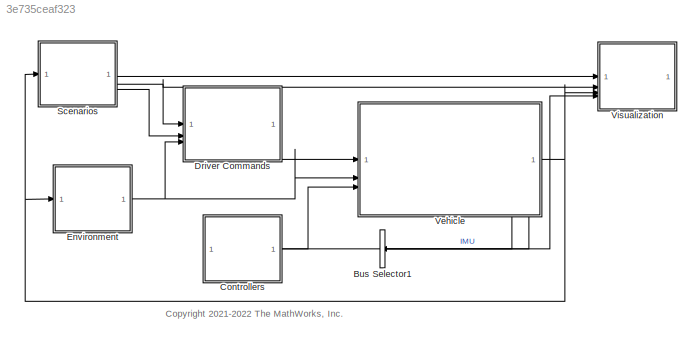
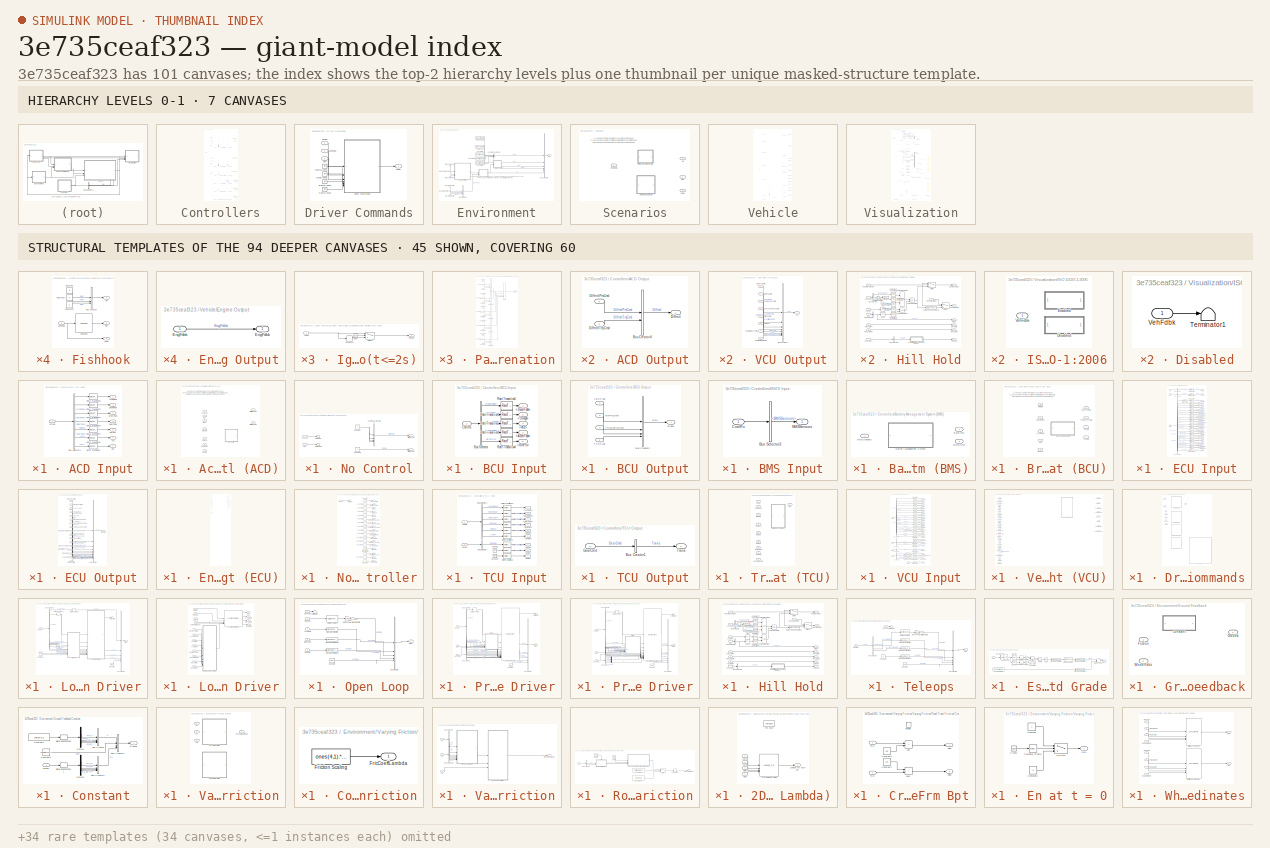
[diagram: thumbnail index - top-2 hierarchy levels (7 canvases) + 45 structural-template representatives of the remaining 94 canvases]
MODEL slx_3e735ceaf323
KIND model
CONFIG StartFcn = %tic
CONFIG StopFcn = %toc
BLOCK [BusSelector] Bus Selector1
  OutputAsBus = on
  OutputSignals = IMU.pqr,IMU.Acc
BLOCK [SubSystem] Controllers
  PortSchema = {"entries":[{"content":{"sides":[{"content":{"connectorIds":[]},"type":"ConnectorPlacement.EquallySpacedRectSide","uuid":"a925dd9c-6905-4c67-a62c-b22bb69d2bd6"},{"content":{"connectorIds":["Out1","In1"],"side":"RIGHT"},"type":"ConnectorPlacement.EquallySpacedRectSide","uuid":"9930ed3e-43a4-46d4-b9ee-7ed64fae32ef"},{"content":{"connectorIds":[],"side":"TOP"},"type":"ConnectorPlacement.EquallySpaced...<+241ch>
BLOCK [SubSystem] Controllers/ACD Input
BLOCK [Outport] Controllers/ACD Input/Acc
  Port = 6
BLOCK [Outport] Controllers/ACD Input/AccelFdbk
BLOCK [BusSelector] Controllers/ACD Input/Bus Selector3
  OutputSignals = Driver.AccelFdbk,Driver.DecelFdbk,Driver.SteerFdbk,Driver.GearFdbk,Wheels.Omega,IMU.Acc,IMU.pqr
BLOCK [Inport] Controllers/ACD Input/CntrlRx
BLOCK [Outport] Controllers/ACD Input/DecelFdbk
  Port = 2
BLOCK [Outport] Controllers/ACD Input/GearFdbk
  Port = 4
BLOCK [Outport] Controllers/ACD Input/Omega
  Port = 5
BLOCK [RateTransition] Controllers/ACD Input/Rate Transition1
  Deterministic = off
BLOCK [RateTransition] Controllers/ACD Input/Rate Transition2
  Deterministic = off
BLOCK [RateTransition] Controllers/ACD Input/Rate Transition3
  Deterministic = off
BLOCK [RateTransition] Controllers/ACD Input/Rate Transition4
  Deterministic = off
BLOCK [RateTransition] Controllers/ACD Input/Rate Transition5
  Deterministic = off
BLOCK [RateTransition] Controllers/ACD Input/Rate Transition6
  Deterministic = off
BLOCK [RateTransition] Controllers/ACD Input/Rate Transition7
  Deterministic = off
BLOCK [Outport] Controllers/ACD Input/SteerFdbk
  Port = 3
BLOCK [Outport] Controllers/ACD Input/pqr
  Port = 7
BLOCK [SubSystem] Controllers/ACD Output
BLOCK [BusCreator] Controllers/ACD Output/Bus Creator4
  DisplayOption = bar
  InheritFromInputs = on
  Inputs = 2
BLOCK [Outport] Controllers/ACD Output/Diffrntl
BLOCK [Inport] Controllers/ACD Output/DiffrntlPrsCmd
BLOCK [Inport] Controllers/ACD Output/DiffrntlTrqCmd
  Port = 2
BLOCK [SubSystem] Controllers/Active Differential Control (ACD)
  LabelModeActiveChoice = No Control
  Variant = on
  VariantControlMode = label
BLOCK [Inport] Controllers/Active Differential Control (ACD)/Accel
  PortDimensions = 1
BLOCK [Inport] Controllers/Active Differential Control (ACD)/BrkCmd
  Port = 2
  PortDimensions = 1
BLOCK [Outport] Controllers/Active Differential Control (ACD)/DiffrntlPrsCmd
  VectorParamsAs1DForOutWhenUnconnected = off
BLOCK [Outport] Controllers/Active Differential Control (ACD)/DiffrntlTrqCmd
  Port = 2
  VectorParamsAs1DForOutWhenUnconnected = off
BLOCK [Inport] Controllers/Active Differential Control (ACD)/GearFdbk
  Port = 4
BLOCK [SubSystem] Controllers/Active Differential Control (ACD)/No Control
  VariantControl = No Control
BLOCK [Constant] Controllers/Active Differential Control (ACD)/No Control/Constant
  SampleTime = 10/1000
  Value = 0
BLOCK [Constant] Controllers/Active Differential Control (ACD)/No Control/Constant1
  SampleTime = 10/1000
  Value = 0
BLOCK [Outport] Controllers/Active Differential Control (ACD)/No Control/DiffrntlPrsCmd
  VectorParamsAs1DForOutWhenUnconnected = off
BLOCK [Outport] Controllers/Active Differential Control (ACD)/No Control/DiffrntlTrqCmd
  Port = 2
  VectorParamsAs1DForOutWhenUnconnected = off
BLOCK [Inport] Controllers/Active Differential Control (ACD)/No Control/Steer
  Port = 2
BLOCK [Terminator] Controllers/Active Differential Control (ACD)/No Control/Terminator
BLOCK [Terminator] Controllers/Active Differential Control (ACD)/No Control/Terminator1
BLOCK [Concatenate] Controllers/Active Differential Control (ACD)/No Control/Vector Concatenate2
  NumInputs = 4
BLOCK [Inport] Controllers/Active Differential Control (ACD)/No Control/axayaz
BLOCK [Inport] Controllers/Active Differential Control (ACD)/Omega
  Port = 5
  PortDimensions = 4
  Unit = rad/s
BLOCK [Inport] Controllers/Active Differential Control (ACD)/Steer
  Port = 3
BLOCK [Inport] Controllers/Active Differential Control (ACD)/axayaz
  Port = 6
BLOCK [Inport] Controllers/Active Differential Control (ACD)/pqr
  Port = 7
BLOCK [SubSystem] Controllers/BCU Input
BLOCK [Outport] Controllers/BCU Input/<Acc>
  Port = 4
BLOCK [Outport] Controllers/BCU Input/<AccelFdbk>
  Port = 3
BLOCK [Outport] Controllers/BCU Input/<BrkPrs>
  Port = 5
BLOCK [Outport] Controllers/BCU Input/<DecelFdbk>
BLOCK [Outport] Controllers/BCU Input/<Omega>
  Port = 2
BLOCK [BusSelector] Controllers/BCU Input/Bus Selector
  OutputSignals = Driver.DecelFdbk,Wheels.Omega,Vehicle.xddot,Driver.AccelFdbk,Wheels.BrkPrs
BLOCK [Inport] Controllers/BCU Input/CntrlRx
BLOCK [RateTransition] Controllers/BCU Input/Rate Transition1
  Deterministic = off
BLOCK [RateTransition] Controllers/BCU Input/Rate Transition2
  Deterministic = off
BLOCK [RateTransition] Controllers/BCU Input/Rate Transition3
  Deterministic = off
BLOCK [RateTransition] Controllers/BCU Input/Rate Transition4
  Deterministic = off
BLOCK [RateTransition] Controllers/BCU Input/Rate Transition5
  Deterministic = off
BLOCK [SubSystem] Controllers/BCU Output
BLOCK [Inport] Controllers/BCU Output/ABSFlag
BLOCK [Outport] Controllers/BCU Output/Brake
BLOCK [Inport] Controllers/BCU Output/BrkPrsCmd
  Port = 2
BLOCK [BusCreator] Controllers/BCU Output/Bus Creator2
  DisplayOption = bar
  InheritFromInputs = on
  Inputs = 4
BLOCK [Inport] Controllers/BCU Output/TCSFlag
  Port = 4
BLOCK [Inport] Controllers/BCU Output/TrlrBrkPrsCmd
  Port = 3
BLOCK [SubSystem] Controllers/BMS Input
BLOCK [Outport] Controllers/BMS Input/BMSSensors
BLOCK [BusSelector] Controllers/BMS Input/Bus Selector3
  OutputSignals = Battery.BMSSensors
BLOCK [Inport] Controllers/BMS Input/CntrlRx
BLOCK [SubSystem] Controllers/BMS Output
BLOCK [Outport] Controllers/BMS Output/BMS
BLOCK [Inport] Controllers/BMS Output/BMSCmd
  Port = 2
BLOCK [Inport] Controllers/BMS Output/BMSInfo
BLOCK [BusCreator] Controllers/BMS Output/Bus Creator4
  DisplayOption = bar
  InheritFromInputs = on
  Inputs = 2
BLOCK [SubSystem] Controllers/Battery Management System (BMS)
  LabelModeActiveChoice = Battery Management System
  Variant = on
  VariantControlMode = label
BLOCK [Outport] Controllers/Battery Management System (BMS)/BMSCmd
  Port = 2
BLOCK [Outport] Controllers/Battery Management System (BMS)/BMSInfo
BLOCK [Inport] Controllers/Battery Management System (BMS)/BMSSensors
BLOCK [ModelReference] Controllers/Battery Management System (BMS)/Battery Management System
  ModelNameDialog = BMSController.slx
  ModelReferenceVersion = 6.0
  VariantControl = Battery Management System
BLOCK [SubSystem] Controllers/Brake Control Unit (BCU)
  LabelModeActiveChoice = Open Loop
  Variant = on
  VariantControlMode = label
BLOCK [Outport] Controllers/Brake Control Unit (BCU)/ABSFlag
  VectorParamsAs1DForOutWhenUnconnected = off
BLOCK [Inport] Controllers/Brake Control Unit (BCU)/Acc
  Port = 4
BLOCK [Inport] Controllers/Brake Control Unit (BCU)/AccelFdbk
  Port = 3
BLOCK [Inport] Controllers/Brake Control Unit (BCU)/BrkPrs
  Port = 5
BLOCK [Outport] Controllers/Brake Control Unit (BCU)/BrkPrsCmd
  Port = 2
  VectorParamsAs1DForOutWhenUnconnected = off
BLOCK [Inport] Controllers/Brake Control Unit (BCU)/DecelFdbk
BLOCK [Inport] Controllers/Brake Control Unit (BCU)/Omega
  Port = 2
BLOCK [ModelReference] Controllers/Brake Control Unit (BCU)/Open Loop Braking
  ModelNameDialog = OpenLoopBraking
  ModelReferenceVersion = 2.3
  VariantControl = Open Loop
BLOCK [Outport] Controllers/Brake Control Unit (BCU)/TCSFlag
  Port = 4
  VectorParamsAs1DForOutWhenUnconnected = off
BLOCK [Outport] Controllers/Brake Control Unit (BCU)/TrlrBrkPrsCmd
  Port = 3
  VectorParamsAs1DForOutWhenUnconnected = off
BLOCK [Outport] Controllers/Bus Element Out
BLOCK [Outport] Controllers/Bus Element Out1
BLOCK [Outport] Controllers/Bus Element Out2
BLOCK [Outport] Controllers/Bus Element Out3
BLOCK [Outport] Controllers/Bus Element Out4
BLOCK [Outport] Controllers/BusElementOut
BLOCK [Inport] Controllers/CntrlRx
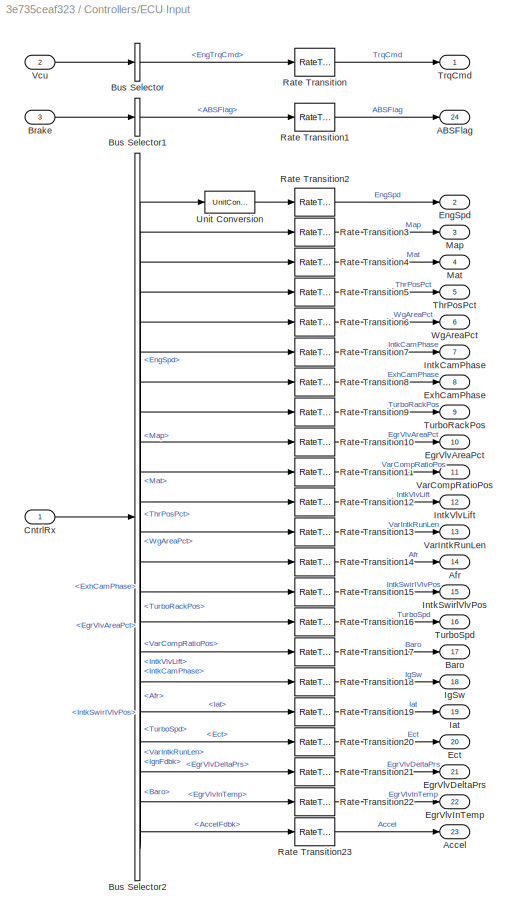
BLOCK [SubSystem] Controllers/ECU Input
BLOCK [Outport] Controllers/ECU Input/ABSFlag
  Port = 24
BLOCK [Outport] Controllers/ECU Input/Accel
  Port = 23
BLOCK [Outport] Controllers/ECU Input/Afr
  Port = 14
BLOCK [Outport] Controllers/ECU Input/Baro
  Port = 17
BLOCK [Inport] Controllers/ECU Input/Brake
  Port = 3
BLOCK [BusSelector] Controllers/ECU Input/Bus Selector
  OutputSignals = EngTrqCmd
BLOCK [BusSelector] Controllers/ECU Input/Bus Selector1
  OutputSignals = ABSFlag
BLOCK [BusSelector] Controllers/ECU Input/Bus Selector2
  OutputSignals = Trans.EngSpd,Engine.Map,Engine.Mat,Engine.ThrPosPct,Engine.WgAreaPct,Engine.IntkCamPhase,Engine.ExhCamPhase,Engine.TurboRackPos,Engine.EgrVlvAreaPct,Engine.VarCompRatioPos,Engine.IntkVlvLift,Engine.VarIntkRunLen,Engine.Afr,Engine.IntkSwirlVlvPos,Engine.TurboSpd,Env.Baro,Driver.IgnFdbk,Engine.Iat,Engine.Ect,Engine.EgrVlvDeltaPrs,Engine.EgrVlvInTemp,Driver.AccelFdbk
BLOCK [Inport] Controllers/ECU Input/CntrlRx
BLOCK [Outport] Controllers/ECU Input/Ect
  Port = 20
BLOCK [Outport] Controllers/ECU Input/EgrVlvAreaPct
  Port = 10
BLOCK [Outport] Controllers/ECU Input/EgrVlvDeltaPrs
  Port = 21
BLOCK [Outport] Controllers/ECU Input/EgrVlvInTemp
  Port = 22
BLOCK [Outport] Controllers/ECU Input/EngSpd
  Port = 2
BLOCK [Outport] Controllers/ECU Input/ExhCamPhase
  Port = 8
BLOCK [Outport] Controllers/ECU Input/Iat
  Port = 19
BLOCK [Outport] Controllers/ECU Input/IgSw
  Port = 18
BLOCK [Outport] Controllers/ECU Input/IntkCamPhase
  Port = 7
BLOCK [Outport] Controllers/ECU Input/IntkSwirlVlvPos
  Port = 15
BLOCK [Outport] Controllers/ECU Input/IntkVlvLift
  Port = 12
BLOCK [Outport] Controllers/ECU Input/Map
  Port = 3
BLOCK [Outport] Controllers/ECU Input/Mat
  Port = 4
BLOCK [RateTransition] Controllers/ECU Input/Rate Transition
  Deterministic = off
BLOCK [RateTransition] Controllers/ECU Input/Rate Transition1
  Deterministic = off
BLOCK [RateTransition] Controllers/ECU Input/Rate Transition10
  Deterministic = off
BLOCK [RateTransition] Controllers/ECU Input/Rate Transition11
  Deterministic = off
BLOCK [RateTransition] Controllers/ECU Input/Rate Transition12
  Deterministic = off
BLOCK [RateTransition] Controllers/ECU Input/Rate Transition13
  Deterministic = off
BLOCK [RateTransition] Controllers/ECU Input/Rate Transition14
  Deterministic = off
BLOCK [RateTransition] Controllers/ECU Input/Rate Transition15
  Deterministic = off
BLOCK [RateTransition] Controllers/ECU Input/Rate Transition16
  Deterministic = off
BLOCK [RateTransition] Controllers/ECU Input/Rate Transition17
  Deterministic = off
BLOCK [RateTransition] Controllers/ECU Input/Rate Transition18
  Deterministic = off
BLOCK [RateTransition] Controllers/ECU Input/Rate Transition19
  Deterministic = off
BLOCK [RateTransition] Controllers/ECU Input/Rate Transition2
  Deterministic = off
BLOCK [RateTransition] Controllers/ECU Input/Rate Transition20
  Deterministic = off
BLOCK [RateTransition] Controllers/ECU Input/Rate Transition21
  Deterministic = off
BLOCK [RateTransition] Controllers/ECU Input/Rate Transition22
  Deterministic = off
BLOCK [RateTransition] Controllers/ECU Input/Rate Transition23
  Deterministic = off
BLOCK [RateTransition] Controllers/ECU Input/Rate Transition3
  Deterministic = off
BLOCK [RateTransition] Controllers/ECU Input/Rate Transition4
  Deterministic = off
BLOCK [RateTransition] Controllers/ECU Input/Rate Transition5
  Deterministic = off
BLOCK [RateTransition] Controllers/ECU Input/Rate Transition6
  Deterministic = off
BLOCK [RateTransition] Controllers/ECU Input/Rate Transition7
  Deterministic = off
BLOCK [RateTransition] Controllers/ECU Input/Rate Transition8
  Deterministic = off
BLOCK [RateTransition] Controllers/ECU Input/Rate Transition9
  Deterministic = off
BLOCK [Outport] Controllers/ECU Input/ThrPosPct
  Port = 5
BLOCK [Outport] Controllers/ECU Input/TrqCmd
BLOCK [Outport] Controllers/ECU Input/TurboRackPos
  Port = 9
BLOCK [Outport] Controllers/ECU Input/TurboSpd
  Port = 16
BLOCK [UnitConversion] Controllers/ECU Input/Unit Conversion
BLOCK [Outport] Controllers/ECU Input/VarCompRatioPos
  Port = 11
BLOCK [Outport] Controllers/ECU Input/VarIntkRunLen
  Port = 13
BLOCK [Inport] Controllers/ECU Input/Vcu
  Port = 2
BLOCK [Outport] Controllers/ECU Input/WgAreaPct
  Port = 6
BLOCK [SubSystem] Controllers/ECU Output
BLOCK [BusCreator] Controllers/ECU Output/Bus Creator
  DisplayOption = bar
  InheritFromInputs = on
  Inputs = 17
BLOCK [Inport] Controllers/ECU Output/ClsdLpFuelMult
  Port = 13
BLOCK [Inport] Controllers/ECU Output/EgrVlvAreaPctCmd
  Port = 9
BLOCK [Outport] Controllers/ECU Output/Engine
BLOCK [Inport] Controllers/ECU Output/EstIntkPortFlw
  Port = 17
BLOCK [Inport] Controllers/ECU Output/ExhCamPhaseCmd
  Port = 7
BLOCK [Inport] Controllers/ECU Output/FuelMainSoi
  Port = 4
BLOCK [Inport] Controllers/ECU Output/InjPw
  Port = 3
BLOCK [Inport] Controllers/ECU Output/IntkCamPhaseCmd
  Port = 6
BLOCK [Inport] Controllers/ECU Output/IntkSwirlVlvPosCmd
  Port = 14
BLOCK [Inport] Controllers/ECU Output/IntkVlvLiftCmd
  Port = 11
BLOCK [Inport] Controllers/ECU Output/LoadCmd
  Port = 16
BLOCK [Inport] Controllers/ECU Output/SpkAdv
  Port = 5
BLOCK [Inport] Controllers/ECU Output/ThrPosPctCmd
BLOCK [Inport] Controllers/ECU Output/TrqCmdISC
  Port = 15
BLOCK [Inport] Controllers/ECU Output/TurboRackPosCmd
  Port = 8
BLOCK [Inport] Controllers/ECU Output/VarCompRatioPosCmd
  Port = 10
BLOCK [Inport] Controllers/ECU Output/VarIntkRunLenCmd
  Port = 12
BLOCK [Inport] Controllers/ECU Output/WgAreaPctCmd
  Port = 2
BLOCK [SubSystem] Controllers/Engine Control Unit (ECU)
  LabelModeActiveChoice = No Engine Controller
  Variant = on
  VariantControlMode = label
BLOCK [Inport] Controllers/Engine Control Unit (ECU)/ABSFlag
  Port = 24
BLOCK [Inport] Controllers/Engine Control Unit (ECU)/Accel
  Port = 23
BLOCK [Inport] Controllers/Engine Control Unit (ECU)/Afr
  Port = 14
BLOCK [Inport] Controllers/Engine Control Unit (ECU)/AmbPrs
  Port = 17
BLOCK [Outport] Controllers/Engine Control Unit (ECU)/ClsdLpFuelMult
  Port = 13
  VectorParamsAs1DForOutWhenUnconnected = off
BLOCK [Inport] Controllers/Engine Control Unit (ECU)/Ect
  Port = 20
BLOCK [Inport] Controllers/Engine Control Unit (ECU)/EgrVlvAreaPct
  Port = 10
BLOCK [Outport] Controllers/Engine Control Unit (ECU)/EgrVlvAreaPctCmd
  Port = 9
  VectorParamsAs1DForOutWhenUnconnected = off
BLOCK [Inport] Controllers/Engine Control Unit (ECU)/EgrVlvDeltaPrs
  NameLocation = left
  Port = 21
BLOCK [Inport] Controllers/Engine Control Unit (ECU)/EgrVlvInTemp
  Port = 22
BLOCK [Inport] Controllers/Engine Control Unit (ECU)/EngSpd
  Port = 2
BLOCK [Outport] Controllers/Engine Control Unit (ECU)/EstIntkPortFlw
  Port = 17
  VectorParamsAs1DForOutWhenUnconnected = off
BLOCK [Inport] Controllers/Engine Control Unit (ECU)/ExhCamPhase
  Port = 8
BLOCK [Outport] Controllers/Engine Control Unit (ECU)/ExhCamPhaseCmd
  Port = 7
  VectorParamsAs1DForOutWhenUnconnected = off
BLOCK [Outport] Controllers/Engine Control Unit (ECU)/FuelMainSoi
  Port = 4
  VectorParamsAs1DForOutWhenUnconnected = off
BLOCK [Inport] Controllers/Engine Control Unit (ECU)/Iat
  Port = 19
BLOCK [Inport] Controllers/Engine Control Unit (ECU)/IgSw
  Port = 18
BLOCK [Outport] Controllers/Engine Control Unit (ECU)/InjPw
  Port = 3
  VectorParamsAs1DForOutWhenUnconnected = off
BLOCK [Inport] Controllers/Engine Control Unit (ECU)/IntkCamPhase
  Port = 7
BLOCK [Outport] Controllers/Engine Control Unit (ECU)/IntkCamPhaseCmd
  Port = 6
  VectorParamsAs1DForOutWhenUnconnected = off
BLOCK [Inport] Controllers/Engine Control Unit (ECU)/IntkSwirlVlvPos
  Port = 15
BLOCK [Outport] Controllers/Engine Control Unit (ECU)/IntkSwirlVlvPosCmd
  Port = 14
  VectorParamsAs1DForOutWhenUnconnected = off
BLOCK [Inport] Controllers/Engine Control Unit (ECU)/IntkVlvLift
  Port = 12
BLOCK [Outport] Controllers/Engine Control Unit (ECU)/IntkVlvLiftCmd
  Port = 11
  VectorParamsAs1DForOutWhenUnconnected = off
BLOCK [Outport] Controllers/Engine Control Unit (ECU)/LoadCmd
  Port = 16
  VectorParamsAs1DForOutWhenUnconnected = off
BLOCK [Inport] Controllers/Engine Control Unit (ECU)/Map
  Port = 3
BLOCK [Inport] Controllers/Engine Control Unit (ECU)/Mat
  Port = 4
BLOCK [SubSystem] Controllers/Engine Control Unit (ECU)/No Engine Controller
  VariantControl = No Engine Controller
BLOCK [Outport] Controllers/Engine Control Unit (ECU)/No Engine Controller/ClsdLpFuelMult
  Port = 13
  SampleTime = 0.01
  VectorParamsAs1DForOutWhenUnconnected = off
BLOCK [Constant] Controllers/Engine Control Unit (ECU)/No Engine Controller/Constant
  SampleTime = 0.01
  Value = 0
BLOCK [Constant] Controllers/Engine Control Unit (ECU)/No Engine Controller/Constant1
  SampleTime = 0.01
  Value = 0
BLOCK [Constant] Controllers/Engine Control Unit (ECU)/No Engine Controller/Constant10
  SampleTime = 0.01
  Value = 0
BLOCK [Constant] Controllers/Engine Control Unit (ECU)/No Engine Controller/Constant11
  SampleTime = 0.01
  Value = 0
BLOCK [Constant] Controllers/Engine Control Unit (ECU)/No Engine Controller/Constant12
  SampleTime = 0.01
BLOCK [Constant] Controllers/Engine Control Unit (ECU)/No Engine Controller/Constant13
  SampleTime = 0.01
  Value = 0
BLOCK [Constant] Controllers/Engine Control Unit (ECU)/No Engine Controller/Constant14
  SampleTime = 0.01
  Value = 0
BLOCK [Constant] Controllers/Engine Control Unit (ECU)/No Engine Controller/Constant15
  SampleTime = 0.01
  Value = 0
BLOCK [Constant] Controllers/Engine Control Unit (ECU)/No Engine Controller/Constant16
  SampleTime = 0.01
  Value = 0
BLOCK [Constant] Controllers/Engine Control Unit (ECU)/No Engine Controller/Constant2
  SampleTime = 0.01
  Value = 0
BLOCK [Constant] Controllers/Engine Control Unit (ECU)/No Engine Controller/Constant3
  SampleTime = 0.01
  Value = 0
BLOCK [Constant] Controllers/Engine Control Unit (ECU)/No Engine Controller/Constant4
  SampleTime = 0.01
  Value = 0
BLOCK [Constant] Controllers/Engine Control Unit (ECU)/No Engine Controller/Constant5
  SampleTime = 0.01
  Value = 0
BLOCK [Constant] Controllers/Engine Control Unit (ECU)/No Engine Controller/Constant6
  SampleTime = 0.01
  Value = 0
BLOCK [Constant] Controllers/Engine Control Unit (ECU)/No Engine Controller/Constant7
  SampleTime = 0.01
  Value = 0
BLOCK [Constant] Controllers/Engine Control Unit (ECU)/No Engine Controller/Constant8
  SampleTime = 0.01
  Value = 0
BLOCK [Constant] Controllers/Engine Control Unit (ECU)/No Engine Controller/Constant9
  SampleTime = 0.01
  Value = 0
BLOCK [Outport] Controllers/Engine Control Unit (ECU)/No Engine Controller/EgrVlvAreaPctCmd
  Port = 9
  Unit = %
  VectorParamsAs1DForOutWhenUnconnected = off
BLOCK [Inport] Controllers/Engine Control Unit (ECU)/No Engine Controller/EngSpd
  Unit = rpm
BLOCK [Outport] Controllers/Engine Control Unit (ECU)/No Engine Controller/EstIntkPortFlw
  Port = 17
  VectorParamsAs1DForOutWhenUnconnected = off
BLOCK [Outport] Controllers/Engine Control Unit (ECU)/No Engine Controller/ExhCamPhaseCmd
  Port = 7
  VectorParamsAs1DForOutWhenUnconnected = off
BLOCK [Outport] Controllers/Engine Control Unit (ECU)/No Engine Controller/FuelMainSoi
  Port = 4
  Unit = deg
  VectorParamsAs1DForOutWhenUnconnected = off
BLOCK [Outport] Controllers/Engine Control Unit (ECU)/No Engine Controller/InjPw
  Port = 3
  SampleTime = 0.01
  VectorParamsAs1DForOutWhenUnconnected = off
BLOCK [Outport] Controllers/Engine Control Unit (ECU)/No Engine Controller/IntkCamPhaseCmd
  Port = 6
  VectorParamsAs1DForOutWhenUnconnected = off
BLOCK [Outport] Controllers/Engine Control Unit (ECU)/No Engine Controller/IntkSwirlVlvPosCmd
  Port = 14
  VectorParamsAs1DForOutWhenUnconnected = off
BLOCK [Outport] Controllers/Engine Control Unit (ECU)/No Engine Controller/IntkVlvLiftCmd
  Port = 11
  VectorParamsAs1DForOutWhenUnconnected = off
BLOCK [Outport] Controllers/Engine Control Unit (ECU)/No Engine Controller/LoadCmd
  Port = 16
  VectorParamsAs1DForOutWhenUnconnected = off
BLOCK [Outport] Controllers/Engine Control Unit (ECU)/No Engine Controller/SpkAdv
  Port = 5
  VectorParamsAs1DForOutWhenUnconnected = off
BLOCK [Terminator] Controllers/Engine Control Unit (ECU)/No Engine Controller/Terminator
BLOCK [Outport] Controllers/Engine Control Unit (ECU)/No Engine Controller/ThrPosPctCmd
  VectorParamsAs1DForOutWhenUnconnected = off
BLOCK [Outport] Controllers/Engine Control Unit (ECU)/No Engine Controller/TrqCmdISC
  Port = 15
  VectorParamsAs1DForOutWhenUnconnected = off
BLOCK [Outport] Controllers/Engine Control Unit (ECU)/No Engine Controller/TurboRackPosCmd
  Port = 8
  Unit = 1
  VectorParamsAs1DForOutWhenUnconnected = off
BLOCK [Outport] Controllers/Engine Control Unit (ECU)/No Engine Controller/VarCompRatioPosCmd
  Port = 10
  VectorParamsAs1DForOutWhenUnconnected = off
BLOCK [Outport] Controllers/Engine Control Unit (ECU)/No Engine Controller/VarIntkRunLenCmd
  Port = 12
  VectorParamsAs1DForOutWhenUnconnected = off
BLOCK [Outport] Controllers/Engine Control Unit (ECU)/No Engine Controller/WgAreaPctCmd
  Port = 2
  VectorParamsAs1DForOutWhenUnconnected = off
BLOCK [Outport] Controllers/Engine Control Unit (ECU)/SpkAdv
  Port = 5
  VectorParamsAs1DForOutWhenUnconnected = off
BLOCK [Inport] Controllers/Engine Control Unit (ECU)/ThrPosPct
  Port = 5
BLOCK [Outport] Controllers/Engine Control Unit (ECU)/ThrPosPctCmd
  VectorParamsAs1DForOutWhenUnconnected = off
BLOCK [Inport] Controllers/Engine Control Unit (ECU)/TrqCmd
BLOCK [Outport] Controllers/Engine Control Unit (ECU)/TrqCmdISC
  Port = 15
  VectorParamsAs1DForOutWhenUnconnected = off
BLOCK [Inport] Controllers/Engine Control Unit (ECU)/TurboRackPos
  Port = 9
BLOCK [Outport] Controllers/Engine Control Unit (ECU)/TurboRackPosCmd
  Port = 8
  VectorParamsAs1DForOutWhenUnconnected = off
BLOCK [Inport] Controllers/Engine Control Unit (ECU)/TurboSpd
  Port = 16
BLOCK [Inport] Controllers/Engine Control Unit (ECU)/VarCompRatioPos
  Port = 11
BLOCK [Outport] Controllers/Engine Control Unit (ECU)/VarCompRatioPosCmd
  Port = 10
  VectorParamsAs1DForOutWhenUnconnected = off
BLOCK [Inport] Controllers/Engine Control Unit (ECU)/VarIntkRunLen
  Port = 13
BLOCK [Outport] Controllers/Engine Control Unit (ECU)/VarIntkRunLenCmd
  Port = 12
  VectorParamsAs1DForOutWhenUnconnected = off
BLOCK [Inport] Controllers/Engine Control Unit (ECU)/WgAreaPct
  Port = 6
BLOCK [Outport] Controllers/Engine Control Unit (ECU)/WgAreaPctCmd
  Port = 2
  VectorParamsAs1DForOutWhenUnconnected = off
BLOCK [From] Controllers/From
  GotoTag = Diff
BLOCK [From] Controllers/From1
  GotoTag = Brake
BLOCK [From] Controllers/From2
  GotoTag = Vcu
BLOCK [From] Controllers/From3
  GotoTag = Brake
BLOCK [From] Controllers/From4
  GotoTag = Brake
BLOCK [From] Controllers/From5
  GotoTag = BMS
BLOCK [Goto] Controllers/Goto
  GotoTag = Diff
BLOCK [Goto] Controllers/Goto1
  GotoTag = Brake
BLOCK [Goto] Controllers/Goto2
  GotoTag = Vcu
BLOCK [Goto] Controllers/Goto3
  GotoTag = BMS
BLOCK [SubSystem] Controllers/TCU Input
BLOCK [Outport] Controllers/TCU Input/<AccFdbk>
BLOCK [Outport] Controllers/TCU Input/<DecelFdbk>
  Port = 2
BLOCK [Outport] Controllers/TCU Input/<EngSpd>
  Port = 4
BLOCK [Outport] Controllers/TCU Input/<GearFdbk>
  Port = 3
BLOCK [Outport] Controllers/TCU Input/<Omega>
  Port = 5
BLOCK [Outport] Controllers/TCU Input/<Vehicle>
  Port = 6
BLOCK [Outport] Controllers/TCU Input/ABSFlag
  Port = 7
BLOCK [Inport] Controllers/TCU Input/Brake
  Port = 2
BLOCK [BusSelector] Controllers/TCU Input/Bus Selector
  OutputSignals = ABSFlag
BLOCK [BusSelector] Controllers/TCU Input/Bus Selector1
  OutputSignals = Driver.AccelFdbk,Driver.DecelFdbk,Driver.GearFdbk,Trans.EngSpd,Wheels.Omega,Vehicle.xdot
BLOCK [Inport] Controllers/TCU Input/CntrlRx
BLOCK [Outport] Controllers/TCU Input/DnReq
  Port = 9
BLOCK [Ground] Controllers/TCU Input/Ground
BLOCK [Ground] Controllers/TCU Input/Ground1
BLOCK [RateTransition] Controllers/TCU Input/Rate Transition1
  Deterministic = off
BLOCK [RateTransition] Controllers/TCU Input/Rate Transition2
  Deterministic = off
BLOCK [RateTransition] Controllers/TCU Input/Rate Transition23
  Deterministic = off
BLOCK [RateTransition] Controllers/TCU Input/Rate Transition3
  Deterministic = off
BLOCK [RateTransition] Controllers/TCU Input/Rate Transition4
  Deterministic = off
BLOCK [RateTransition] Controllers/TCU Input/Rate Transition5
  Deterministic = off
BLOCK [RateTransition] Controllers/TCU Input/Rate Transition6
  Deterministic = off
BLOCK [RateTransition] Controllers/TCU Input/Rate Transition7
  Deterministic = off
BLOCK [RateTransition] Controllers/TCU Input/Rate Transition8
  Deterministic = off
BLOCK [Outport] Controllers/TCU Input/UpReq
  Port = 8
BLOCK [SubSystem] Controllers/TCU Output
BLOCK [BusCreator] Controllers/TCU Output/Bus Creator1
  DisplayOption = bar
  InheritFromInputs = on
  Inputs = 1
BLOCK [Inport] Controllers/TCU Output/GearCmd
BLOCK [Outport] Controllers/TCU Output/Trans
BLOCK [SubSystem] Controllers/Transmission Control Unit (TCU)
  LabelModeActiveChoice = Driver Pass Through
  Variant = on
  VariantControl = Variant1
  VariantControlMode = label
BLOCK [Outport] Controllers/Transmission Control Unit (TCU)/ Gear
  VectorParamsAs1DForOutWhenUnconnected = off
BLOCK [Inport] Controllers/Transmission Control Unit (TCU)/ABSFlag
  Port = 7
BLOCK [Inport] Controllers/Transmission Control Unit (TCU)/Accel
BLOCK [Inport] Controllers/Transmission Control Unit (TCU)/BrkCmd
  Port = 2
BLOCK [Inport] Controllers/Transmission Control Unit (TCU)/DownReq
  Port = 9
  Unit = rad/s
BLOCK [ModelReference] Controllers/Transmission Control Unit (TCU)/Driver Pass Through
  ModelNameDialog = DriverPassThrough.slx
  ModelReferenceVersion = 6.0
  VariantControl = Driver Pass Through
BLOCK [Inport] Controllers/Transmission Control Unit (TCU)/EngSpd
  Port = 4
BLOCK [Inport] Controllers/Transmission Control Unit (TCU)/GearReq
  Port = 3
BLOCK [Inport] Controllers/Transmission Control Unit (TCU)/Omega
  Port = 5
  Unit = rad/s
BLOCK [Inport] Controllers/Transmission Control Unit (TCU)/UpReq
  Port = 8
BLOCK [Inport] Controllers/Transmission Control Unit (TCU)/VehSpdFdbk
  Port = 6
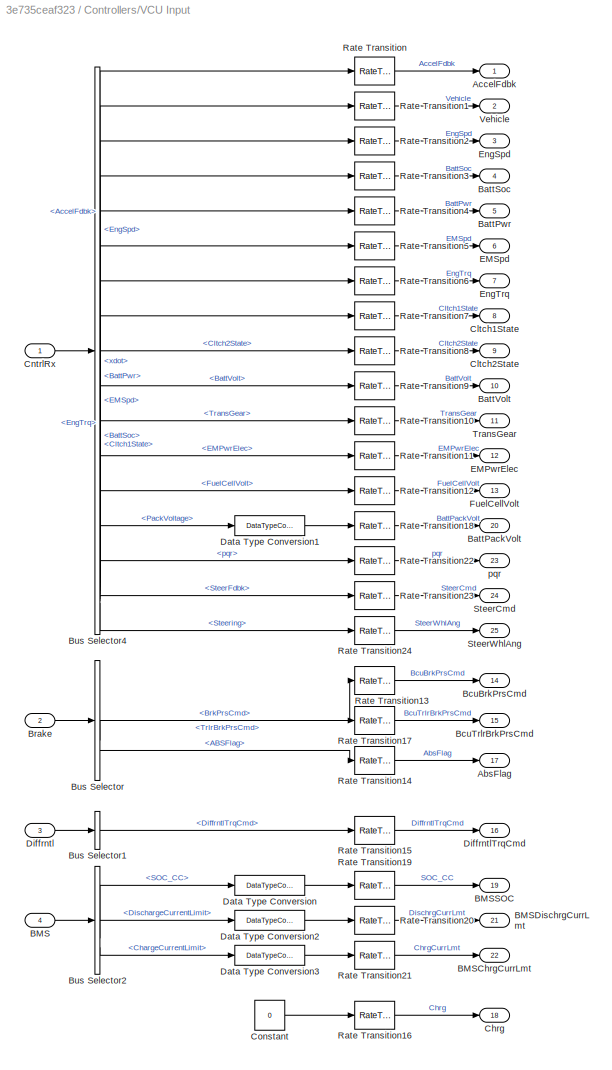
BLOCK [SubSystem] Controllers/VCU Input
BLOCK [Outport] Controllers/VCU Input/AbsFlag
  Port = 17
BLOCK [Outport] Controllers/VCU Input/AccelFdbk
BLOCK [Inport] Controllers/VCU Input/BMS
  Port = 4
BLOCK [Outport] Controllers/VCU Input/BMSChrgCurrLmt
  Port = 22
BLOCK [Outport] Controllers/VCU Input/BMSDischrgCurrLmt
  Port = 21
BLOCK [Outport] Controllers/VCU Input/BMSSOC
  Port = 19
BLOCK [Outport] Controllers/VCU Input/BattPackVolt
  Port = 20
BLOCK [Outport] Controllers/VCU Input/BattPwr
  Port = 5
BLOCK [Outport] Controllers/VCU Input/BattSoc
  Port = 4
BLOCK [Outport] Controllers/VCU Input/BattVolt
  Port = 10
BLOCK [Outport] Controllers/VCU Input/BcuBrkPrsCmd
  Port = 14
BLOCK [Outport] Controllers/VCU Input/BcuTrlrBrkPrsCmd
  Port = 15
BLOCK [Inport] Controllers/VCU Input/Brake
  Port = 2
BLOCK [BusSelector] Controllers/VCU Input/Bus Selector
  OutputSignals = BrkPrsCmd,TrlrBrkPrsCmd,ABSFlag
BLOCK [BusSelector] Controllers/VCU Input/Bus Selector1
  OutputSignals = DiffrntlTrqCmd
BLOCK [BusSelector] Controllers/VCU Input/Bus Selector2
  OutputSignals = BMSInfo.SOC.SOC_CC,BMSCmd.CurrentLimitsBus.DischargeCurrentLimit,BMSCmd.CurrentLimitsBus.ChargeCurrentLimit
BLOCK [BusSelector] Controllers/VCU Input/Bus Selector4
  OutputSignals = Driver.AccelFdbk,Vehicle.xdot,Trans.EngSpd,Battery.BattSoc,Battery.BattPwr,Trans.EMSpd,Engine.EngTrq,Trans.Cltch1State,Trans.Cltch2State,Battery.BattVolt,Trans.TransGear,EM.EMPwrElec,FuelCell.FuelCellVolt,Battery.BMSSensors.PackVoltage,IMU.pqr,Driver.SteerFdbk,Steering
BLOCK [Outport] Controllers/VCU Input/Chrg
  Port = 18
BLOCK [Outport] Controllers/VCU Input/Cltch1State
  Port = 8
BLOCK [Outport] Controllers/VCU Input/Cltch2State
  Port = 9
BLOCK [Inport] Controllers/VCU Input/CntrlRx
BLOCK [Constant] Controllers/VCU Input/Constant
  SampleTime = -1
  Value = 0
BLOCK [DataTypeConversion] Controllers/VCU Input/Data Type Conversion
  RndMeth = Floor
  SaturateOnIntegerOverflow = off
BLOCK [DataTypeConversion] Controllers/VCU Input/Data Type Conversion1
  RndMeth = Floor
  SaturateOnIntegerOverflow = off
BLOCK [DataTypeConversion] Controllers/VCU Input/Data Type Conversion2
  RndMeth = Floor
  SaturateOnIntegerOverflow = off
BLOCK [DataTypeConversion] Controllers/VCU Input/Data Type Conversion3
  RndMeth = Floor
  SaturateOnIntegerOverflow = off
BLOCK [Inport] Controllers/VCU Input/Diffrntl
  Port = 3
BLOCK [Outport] Controllers/VCU Input/DiffrntlTrqCmd
  Port = 16
BLOCK [Outport] Controllers/VCU Input/EMPwrElec
  Port = 12
BLOCK [Outport] Controllers/VCU Input/EMSpd
  Port = 6
BLOCK [Outport] Controllers/VCU Input/EngSpd
  Port = 3
BLOCK [Outport] Controllers/VCU Input/EngTrq
  Port = 7
BLOCK [Outport] Controllers/VCU Input/FuelCellVolt
  Port = 13
BLOCK [RateTransition] Controllers/VCU Input/Rate Transition
  Deterministic = off
BLOCK [RateTransition] Controllers/VCU Input/Rate Transition1
  Deterministic = off
BLOCK [RateTransition] Controllers/VCU Input/Rate Transition10
  Deterministic = off
BLOCK [RateTransition] Controllers/VCU Input/Rate Transition11
  Deterministic = off
BLOCK [RateTransition] Controllers/VCU Input/Rate Transition12
  Deterministic = off
BLOCK [RateTransition] Controllers/VCU Input/Rate Transition13
  Deterministic = off
BLOCK [RateTransition] Controllers/VCU Input/Rate Transition14
  Deterministic = off
BLOCK [RateTransition] Controllers/VCU Input/Rate Transition15
  Deterministic = off
BLOCK [RateTransition] Controllers/VCU Input/Rate Transition16
  Deterministic = off
BLOCK [RateTransition] Controllers/VCU Input/Rate Transition17
  Deterministic = off
BLOCK [RateTransition] Controllers/VCU Input/Rate Transition18
  Deterministic = off
BLOCK [RateTransition] Controllers/VCU Input/Rate Transition19
  Deterministic = off
BLOCK [RateTransition] Controllers/VCU Input/Rate Transition2
  Deterministic = off
BLOCK [RateTransition] Controllers/VCU Input/Rate Transition20
  Deterministic = off
BLOCK [RateTransition] Controllers/VCU Input/Rate Transition21
  Deterministic = off
BLOCK [RateTransition] Controllers/VCU Input/Rate Transition22
  Deterministic = off
BLOCK [RateTransition] Controllers/VCU Input/Rate Transition23
  Deterministic = off
BLOCK [RateTransition] Controllers/VCU Input/Rate Transition24
  Deterministic = off
BLOCK [RateTransition] Controllers/VCU Input/Rate Transition3
  Deterministic = off
BLOCK [RateTransition] Controllers/VCU Input/Rate Transition4
  Deterministic = off
BLOCK [RateTransition] Controllers/VCU Input/Rate Transition5
  Deterministic = off
BLOCK [RateTransition] Controllers/VCU Input/Rate Transition6
  Deterministic = off
BLOCK [RateTransition] Controllers/VCU Input/Rate Transition7
  Deterministic = off
BLOCK [RateTransition] Controllers/VCU Input/Rate Transition8
  Deterministic = off
BLOCK [RateTransition] Controllers/VCU Input/Rate Transition9
  Deterministic = off
BLOCK [Outport] Controllers/VCU Input/SteerCmd
  Port = 24
BLOCK [Outport] Controllers/VCU Input/SteerWhlAng
  Port = 25
BLOCK [Outport] Controllers/VCU Input/TransGear
  Port = 11
BLOCK [Outport] Controllers/VCU Input/Vehicle
  Port = 2
BLOCK [Outport] Controllers/VCU Input/pqr
  Port = 23
BLOCK [SubSystem] Controllers/VCU Output
BLOCK [BusCreator] Controllers/VCU Output/Bus Creator5
  DisplayOption = bar
  InheritFromInputs = on
  Inputs = 8
BLOCK [Inport] Controllers/VCU Output/Cltch1Cmd
  Port = 5
BLOCK [Inport] Controllers/VCU Output/EMTrqCmd
  Port = 2
BLOCK [Inport] Controllers/VCU Output/EngTrqCmd
BLOCK [Inport] Controllers/VCU Output/FuelCellCurrCmd
  Port = 7
BLOCK [Inport] Controllers/VCU Output/FuelCellTempCmd
  Port = 8
BLOCK [Inport] Controllers/VCU Output/Neutral
  Port = 6
BLOCK [Outport] Controllers/VCU Output/Vcu
BLOCK [Inport] Controllers/VCU Output/VcuBrkPrsCmd
  Port = 3
BLOCK [Inport] Controllers/VCU Output/VcuTrlrBrkPrsCmd
  Port = 4
BLOCK [SubSystem] Controllers/Vehicle Control Unit (VCU)
  LabelModeActiveChoice = EV 2EM
  Variant = on
  VariantControlMode = label
BLOCK [Inport] Controllers/Vehicle Control Unit (VCU)/AbsFlag
  Port = 17
BLOCK [Inport] Controllers/Vehicle Control Unit (VCU)/AccelPdl
BLOCK [Inport] Controllers/Vehicle Control Unit (VCU)/BMSChrgCurrLmt
  Port = 22
BLOCK [Inport] Controllers/Vehicle Control Unit (VCU)/BMSDischrgCurrLmt
  Port = 21
BLOCK [Inport] Controllers/Vehicle Control Unit (VCU)/BMSSOC
  Port = 19
BLOCK [Inport] Controllers/Vehicle Control Unit (VCU)/BattPackVolt
  Port = 20
BLOCK [Inport] Controllers/Vehicle Control Unit (VCU)/BattPwr
  Port = 5
BLOCK [Inport] Controllers/Vehicle Control Unit (VCU)/BattSoc
  Port = 4
BLOCK [Inport] Controllers/Vehicle Control Unit (VCU)/BattVolt
  Port = 10
BLOCK [Inport] Controllers/Vehicle Control Unit (VCU)/BcuBrkPrsCmd
  Port = 14
BLOCK [Inport] Controllers/Vehicle Control Unit (VCU)/BcuTrlrBrkPrsCmd
  Port = 15
BLOCK [Inport] Controllers/Vehicle Control Unit (VCU)/Chrg
  Port = 18
BLOCK [Outport] Controllers/Vehicle Control Unit (VCU)/Cltch1Cmd
  Port = 5
  VectorParamsAs1DForOutWhenUnconnected = off
BLOCK [Inport] Controllers/Vehicle Control Unit (VCU)/Cltch1State
  Port = 8
BLOCK [Inport] Controllers/Vehicle Control Unit (VCU)/Cltch2State
  Port = 9
BLOCK [Inport] Controllers/Vehicle Control Unit (VCU)/DiffrntlTrqCmd
  Port = 16
BLOCK [Inport] Controllers/Vehicle Control Unit (VCU)/EMPwrElec
  Port = 12
BLOCK [Inport] Controllers/Vehicle Control Unit (VCU)/EMSpd
  Port = 6
BLOCK [Outport] Controllers/Vehicle Control Unit (VCU)/EMTrqCmd
  Port = 2
  VectorParamsAs1DForOutWhenUnconnected = off
BLOCK [ModelReference] Controllers/Vehicle Control Unit (VCU)/EV 2EM
  ModelNameDialog = EvPowertrainController2EM.slx
  ModelReferenceVersion = 6.0
  VariantControl = EV 2EM
BLOCK [Inport] Controllers/Vehicle Control Unit (VCU)/EngSpdFdbk
  Port = 3
BLOCK [Outport] Controllers/Vehicle Control Unit (VCU)/EngTrqCmd
  VectorParamsAs1DForOutWhenUnconnected = off
BLOCK [Inport] Controllers/Vehicle Control Unit (VCU)/EngTrqOut
  Port = 7
BLOCK [Outport] Controllers/Vehicle Control Unit (VCU)/FuelCellCurrCmd
  Port = 7
  VectorParamsAs1DForOutWhenUnconnected = off
BLOCK [Outport] Controllers/Vehicle Control Unit (VCU)/FuelCellTempCmd
  Port = 8
  VectorParamsAs1DForOutWhenUnconnected = off
BLOCK [Inport] Controllers/Vehicle Control Unit (VCU)/FuelCellVolt
  Port = 13
BLOCK [Outport] Controllers/Vehicle Control Unit (VCU)/Neutral
  Port = 6
  VectorParamsAs1DForOutWhenUnconnected = off
BLOCK [Inport] Controllers/Vehicle Control Unit (VCU)/SteerCmd
  Port = 24
BLOCK [Inport] Controllers/Vehicle Control Unit (VCU)/SteerWhlAng
  Port = 25
BLOCK [Inport] Controllers/Vehicle Control Unit (VCU)/TransGear
  Port = 11
BLOCK [Outport] Controllers/Vehicle Control Unit (VCU)/VcuBrkPrsCmd
  Port = 3
  VectorParamsAs1DForOutWhenUnconnected = off
BLOCK [Outport] Controllers/Vehicle Control Unit (VCU)/VcuTrlrBrkPrsCmd
  Port = 4
  VectorParamsAs1DForOutWhenUnconnected = off
BLOCK [Inport] Controllers/Vehicle Control Unit (VCU)/VehSpdFdbk
  Port = 2
BLOCK [Inport] Controllers/Vehicle Control Unit (VCU)/pqr
  Port = 23
BLOCK [SubSystem] Driver Commands
  AttributesFormatString = %<driverType>
  VariantControl = 0
BLOCK [Ground] Driver Commands/AccelGround
BLOCK [Ground] Driver Commands/BrakeGround
BLOCK [Outport] Driver Commands/Driver
  VectorParamsAs1DForOutWhenUnconnected = off
BLOCK [SubSystem] Driver Commands/Driver Commands
  AllowZeroVariantControls = on
  Variant = on
  VariantControl = Variant1
BLOCK [Outport] Driver Commands/Driver Commands/ Driver
  VectorParamsAs1DForOutWhenUnconnected = off
BLOCK [Inport] Driver Commands/Driver Commands/AccelCmd
  Port = 5
BLOCK [Inport] Driver Commands/Driver Commands/BrakeCmd
  Port = 6
BLOCK [Inport] Driver Commands/Driver Commands/Env
  Port = 3
BLOCK [Inport] Driver Commands/Driver Commands/GearCmd
  Port = 7
BLOCK [SubSystem] Driver Commands/Driver Commands/Longitudinal Driver
  VariantControl = driverType==1
BLOCK [BusCreator] Driver Commands/Driver Commands/Longitudinal Driver/Bus Creator1
  DisplayOption = bar
  InheritFromInputs = on
  Inputs = 5
BLOCK [BusSelector] Driver Commands/Driver Commands/Longitudinal Driver/Bus Selector1
  OutputSignals = SteerOvrCmd,LngRef,EnblAccelOvr,AccelOvrCmd,AccelHld,AccelZero,EnblDecelCmd,DecelOvrCmd,DecelHld,DecelZero
BLOCK [Constant] Driver Commands/Driver Commands/Longitudinal Driver/Constant
  Value = false
BLOCK [Outport] Driver Commands/Driver Commands/Longitudinal Driver/Driver
  VectorParamsAs1DForOutWhenUnconnected = off
BLOCK [Inport] Driver Commands/Driver Commands/Longitudinal Driver/Env
  Port = 3
BLOCK [SubSystem] Driver Commands/Driver Commands/Longitudinal Driver/Hill Hold
BLOCK [Inport] Driver Commands/Driver Commands/Longitudinal Driver/Hill Hold/<DecelHld>
  Port = 4
BLOCK [Inport] Driver Commands/Driver Commands/Longitudinal Driver/Hill Hold/<DecelOvrCmd>
  Port = 3
BLOCK [Inport] Driver Commands/Driver Commands/Longitudinal Driver/Hill Hold/<DecelZero>
  Port = 5
BLOCK [Inport] Driver Commands/Driver Commands/Longitudinal Driver/Hill Hold/<EnblDecelCmd>
  Port = 2
BLOCK [Abs] Driver Commands/Driver Commands/Longitudinal Driver/Hill Hold/Abs
  SaturateOnIntegerOverflow = off
  ZeroCross = off
BLOCK [Abs] Driver Commands/Driver Commands/Longitudinal Driver/Hill Hold/Abs1
  SaturateOnIntegerOverflow = off
  ZeroCross = off
BLOCK [BusSelector] Driver Commands/Driver Commands/Longitudinal Driver/Hill Hold/Bus Selector
  OutputSignals = Engine.EngSpdOut,Body.BdyFrm.Cg.Vel.xdot,Battery.BattSoc
BLOCK [BusSelector] Driver Commands/Driver Commands/Longitudinal Driver/Hill Hold/Bus Selector1
  OutputSignals = Body.BdyFrm.Cg.Vel.xdot
BLOCK [BusSelector] Driver Commands/Driver Commands/Longitudinal Driver/Hill Hold/Bus Selector2
  OutputSignals = Grade
BLOCK [Reference] Driver Commands/Driver Commands/Longitudinal Driver/Hill Hold/Compare To Constant  REF=simulink/Logic and Bit
Operations/Compare
To Constant
  SourceBlock = simulink/Logic and Bit\nOperations/Compare\nTo Constant
  SourceType = Compare To Constant
BLOCK [Reference] Driver Commands/Driver Commands/Longitudinal Driver/Hill Hold/Compare To Constant1  REF=simulink/Logic and Bit
Operations/Compare
To Constant
  SourceBlock = simulink/Logic and Bit\nOperations/Compare\nTo Constant
  SourceType = Compare To Constant
BLOCK [Reference] Driver Commands/Driver Commands/Longitudinal Driver/Hill Hold/Compare To Constant2  REF=simulink/Logic and Bit
Operations/Compare
To Constant
  SourceBlock = simulink/Logic and Bit\nOperations/Compare\nTo Constant
  SourceType = Compare To Constant
BLOCK [Reference] Driver Commands/Driver Commands/Longitudinal Driver/Hill Hold/Compare To Constant3  REF=simulink/Logic and Bit
Operations/Compare
To Constant
  SourceBlock = simulink/Logic and Bit\nOperations/Compare\nTo Constant
  SourceType = Compare To Constant
BLOCK [Reference] Driver Commands/Driver Commands/Longitudinal Driver/Hill Hold/Compare To Constant4  REF=simulink/Logic and Bit
Operations/Compare
To Constant
  SourceBlock = simulink/Logic and Bit\nOperations/Compare\nTo Constant
  SourceType = Compare To Constant
BLOCK [DataTypeConversion] Driver Commands/Driver Commands/Longitudinal Driver/Hill Hold/Data Type Conversion1
  RndMeth = Floor
  SaturateOnIntegerOverflow = off
BLOCK [Outport] Driver Commands/Driver Commands/Longitudinal Driver/Hill Hold/DecelHld
  Port = 3
BLOCK [Outport] Driver Commands/Driver Commands/Longitudinal Driver/Hill Hold/DecelOvrCmd
  Port = 2
BLOCK [Outport] Driver Commands/Driver Commands/Longitudinal Driver/Hill Hold/DecelZero
  Port = 4
BLOCK [Outport] Driver Commands/Driver Commands/Longitudinal Driver/Hill Hold/EnblDecelOvr
BLOCK [Inport] Driver Commands/Driver Commands/Longitudinal Driver/Hill Hold/Env
  Port = 6
BLOCK [Outport] Driver Commands/Driver Commands/Longitudinal Driver/Hill Hold/Grade
  Port = 6
BLOCK [SubSystem] Driver Commands/Driver Commands/Longitudinal Driver/Hill Hold/Igore Initialization Transients (t<=2s)
BLOCK [Inport] Driver Commands/Driver Commands/Longitudinal Driver/Hill Hold/Igore Initialization Transients (t<=2s)/<xdot>
BLOCK [Clock] Driver Commands/Driver Commands/Longitudinal Driver/Hill Hold/Igore Initialization Transients (t<=2s)/Clock
BLOCK [DeadZone] Driver Commands/Driver Commands/Longitudinal Driver/Hill Hold/Igore Initialization Transients (t<=2s)/Dead Zone
  ZeroCross = off
BLOCK [Switch] Driver Commands/Driver Commands/Longitudinal Driver/Hill Hold/Igore Initialization Transients (t<=2s)/Switch2
  InputSameDT = off
  SaturateOnIntegerOverflow = off
  Threshold = 2
  ZeroCross = off
BLOCK [Outport] Driver Commands/Driver Commands/Longitudinal Driver/Hill Hold/Igore Initialization Transients (t<=2s)/VelFdbk
BLOCK [Inport] Driver Commands/Driver Commands/Longitudinal Driver/Hill Hold/LngRef
BLOCK [Logic] Driver Commands/Driver Commands/Longitudinal Driver/Hill Hold/Logical Operator
  AllPortsSameDT = off
  OutDataTypeStr = boolean
BLOCK [Logic] Driver Commands/Driver Commands/Longitudinal Driver/Hill Hold/Logical Operator1
  AllPortsSameDT = off
  Inputs = 3
  OutDataTypeStr = boolean
BLOCK [Logic] Driver Commands/Driver Commands/Longitudinal Driver/Hill Hold/Logical Operator2
  AllPortsSameDT = off
  Operator = OR
  OutDataTypeStr = boolean
BLOCK [SignalSpecification] Driver Commands/Driver Commands/Longitudinal Driver/Hill Hold/Signal Specification
  Unit = m/s
BLOCK [Switch] Driver Commands/Driver Commands/Longitudinal Driver/Hill Hold/Switch
  Criteria = u2 > Threshold
  InputSameDT = off
  SaturateOnIntegerOverflow = off
BLOCK [Switch] Driver Commands/Driver Commands/Longitudinal Driver/Hill Hold/Switch1
  Criteria = u2 > Threshold
  InputSameDT = off
  SaturateOnIntegerOverflow = off
BLOCK [UnitConversion] Driver Commands/Driver Commands/Longitudinal Driver/Hill Hold/Unit Conversion
BLOCK [Inport] Driver Commands/Driver Commands/Longitudinal Driver/Hill Hold/VehFdbk
  Port = 7
BLOCK [InportShadow] Driver Commands/Driver Commands/Longitudinal Driver/Hill Hold/VehFdbk1
  Port = 7
BLOCK [Outport] Driver Commands/Driver Commands/Longitudinal Driver/Hill Hold/VelFdbk
  Port = 5
BLOCK [SubSystem] Driver Commands/Driver Commands/Longitudinal Driver/Longitudinal Driver
  SystemSampleTime = .01
BLOCK [Outport] Driver Commands/Driver Commands/Longitudinal Driver/Longitudinal Driver/AccelCmd
  Port = 2
  VectorParamsAs1DForOutWhenUnconnected = off
BLOCK [Inport] Driver Commands/Driver Commands/Longitudinal Driver/Longitudinal Driver/AccelHld
  Port = 4
BLOCK [Inport] Driver Commands/Driver Commands/Longitudinal Driver/Longitudinal Driver/AccelOvrCmd
  Port = 3
BLOCK [Inport] Driver Commands/Driver Commands/Longitudinal Driver/Longitudinal Driver/AccelZero
  Port = 5
BLOCK [Outport] Driver Commands/Driver Commands/Longitudinal Driver/Longitudinal Driver/DecelCmd
  Port = 3
  VectorParamsAs1DForOutWhenUnconnected = off
BLOCK [Inport] Driver Commands/Driver Commands/Longitudinal Driver/Longitudinal Driver/DecelHld
  Port = 8
BLOCK [Inport] Driver Commands/Driver Commands/Longitudinal Driver/Longitudinal Driver/DecelOvrCmd
  Port = 7
BLOCK [Inport] Driver Commands/Driver Commands/Longitudinal Driver/Longitudinal Driver/DecelZero
  Port = 9
BLOCK [Inport] Driver Commands/Driver Commands/Longitudinal Driver/Longitudinal Driver/EnblAccelOvr
  Port = 2
BLOCK [Inport] Driver Commands/Driver Commands/Longitudinal Driver/Longitudinal Driver/EnblDecelOvr
  Port = 6
BLOCK [Ground] Driver Commands/Driver Commands/Longitudinal Driver/Longitudinal Driver/ExtGearGround
BLOCK [SubSystem] Driver Commands/Driver Commands/Longitudinal Driver/Longitudinal Driver/External Action Routing
BLOCK [Inport] Driver Commands/Driver Commands/Longitudinal Driver/Longitudinal Driver/External Action Routing/AccelHld
  OutDataTypeStr = boolean
  Port = 3
  PortDimensions = 1
  Unit = 1
BLOCK [Inport] Driver Commands/Driver Commands/Longitudinal Driver/Longitudinal Driver/External Action Routing/AccelOvrCmd
  OutDataTypeStr = double
  Port = 2
  PortDimensions = 1
  Unit = 1
BLOCK [Inport] Driver Commands/Driver Commands/Longitudinal Driver/Longitudinal Driver/External Action Routing/AccelZero
  OutDataTypeStr = boolean
  Port = 4
  PortDimensions = 1
  Unit = 1
BLOCK [BusCreator] Driver Commands/Driver Commands/Longitudinal Driver/Longitudinal Driver/External Action Routing/Bus Creator2
  DisplayOption = bar
  InheritFromInputs = on
  Inputs = 8
BLOCK [Inport] Driver Commands/Driver Commands/Longitudinal Driver/Longitudinal Driver/External Action Routing/DecelHld
  OutDataTypeStr = boolean
  Port = 7
  PortDimensions = 1
  Unit = 1
BLOCK [Inport] Driver Commands/Driver Commands/Longitudinal Driver/Longitudinal Driver/External Action Routing/DecelOvrCmd
  OutDataTypeStr = double
  Port = 6
  PortDimensions = 1
  Unit = 1
BLOCK [Inport] Driver Commands/Driver Commands/Longitudinal Driver/Longitudinal Driver/External Action Routing/DecelZero
  OutDataTypeStr = boolean
  Port = 8
  PortDimensions = 1
  Unit = 1
BLOCK [Inport] Driver Commands/Driver Commands/Longitudinal Driver/Longitudinal Driver/External Action Routing/EnblAccelOvr
  OutDataTypeStr = boolean
  PortDimensions = 1
  Unit = 1
BLOCK [Inport] Driver Commands/Driver Commands/Longitudinal Driver/Longitudinal Driver/External Action Routing/EnblDecelOvr
  OutDataTypeStr = boolean
  Port = 5
  PortDimensions = 1
  Unit = 1
BLOCK [Outport] Driver Commands/Driver Commands/Longitudinal Driver/Longitudinal Driver/External Action Routing/ExtActions
BLOCK [Outport] Driver Commands/Driver Commands/Longitudinal Driver/Longitudinal Driver/GearCmd
  Port = 4
BLOCK [Inport] Driver Commands/Driver Commands/Longitudinal Driver/Longitudinal Driver/Grade
  Port = 11
BLOCK [Outport] Driver Commands/Driver Commands/Longitudinal Driver/Longitudinal Driver/Info
  InitialOutput = 0
  VectorParamsAs1DForOutWhenUnconnected = off
BLOCK [Reference] Driver Commands/Driver Commands/Longitudinal Driver/Longitudinal Driver/Longitudinal Driver  REF=autolibsharedcommon/Longitudinal Driver
  LibrarySourceBlock = autolibshared/Longitudinal Driver/Longitudinal Driver
  SourceBlock = autolibsharedcommon/Longitudinal Driver
  SourceType = Longitudinal Driver Model
BLOCK [Inport] Driver Commands/Driver Commands/Longitudinal Driver/Longitudinal Driver/VelFdbk
  Port = 10
  Unit = m/s
BLOCK [Inport] Driver Commands/Driver Commands/Longitudinal Driver/Longitudinal Driver/VelRef
  Unit = m/s
BLOCK [Terminator] Driver Commands/Driver Commands/Longitudinal Driver/Terminator3
BLOCK [UnitConversion] Driver Commands/Driver Commands/Longitudinal Driver/Unit Conversion
BLOCK [UnitConversion] Driver Commands/Driver Commands/Longitudinal Driver/Unit Conversion1
BLOCK [Inport] Driver Commands/Driver Commands/Longitudinal Driver/VehFdbk
  Port = 2
BLOCK [Inport] Driver Commands/Driver Commands/Longitudinal Driver/VehRef
BLOCK [SubSystem] Driver Commands/Driver Commands/Open Loop
  VariantControl = driverType==4
BLOCK [Inport] Driver Commands/Driver Commands/Open Loop/AccelCmd
  Port = 3
BLOCK [Inport] Driver Commands/Driver Commands/Open Loop/BrakeCmd
  Port = 4
BLOCK [BusCreator] Driver Commands/Driver Commands/Open Loop/Bus Creator1
  DisplayOption = bar
  InheritFromInputs = on
  Inputs = 5
BLOCK [Constant] Driver Commands/Driver Commands/Open Loop/Constant
  Value = false
BLOCK [Outport] Driver Commands/Driver Commands/Open Loop/Driver
  VectorParamsAs1DForOutWhenUnconnected = off
BLOCK [Inport] Driver Commands/Driver Commands/Open Loop/GearCmd
  Port = 5
BLOCK [SignalSpecification] Driver Commands/Driver Commands/Open Loop/Signal Specification
  Unit = 1
BLOCK [SignalSpecification] Driver Commands/Driver Commands/Open Loop/Signal Specification1
  Unit = 1
BLOCK [SignalSpecification] Driver Commands/Driver Commands/Open Loop/Signal Specification2
  Unit = 1
BLOCK [Inport] Driver Commands/Driver Commands/Open Loop/SteerCmd
  Port = 2
BLOCK [Terminator] Driver Commands/Driver Commands/Open Loop/Terminator
BLOCK [UnitConversion] Driver Commands/Driver Commands/Open Loop/Unit Conversion
BLOCK [Inport] Driver Commands/Driver Commands/Open Loop/VehFdbk
BLOCK [Gain] Driver Commands/Driver Commands/Open Loop/Wheel Angle Limit * Steer Ratio
  Gain = 40*pi/180*18
  NameLocation = top
BLOCK [SubSystem] Driver Commands/Driver Commands/Predictive Driver
  VariantControl = driverType==2
BLOCK [BusCreator] Driver Commands/Driver Commands/Predictive Driver/Bus Creator1
  DisplayOption = bar
  InheritFromInputs = on
  Inputs = 5
BLOCK [BusSelector] Driver Commands/Driver Commands/Predictive Driver/Bus Selector
  OutputSignals = Body.InertFrm.Cg.Disp.Y,Body.BdyFrm.Cg.Vel.ydot,Body.InertFrm.Cg.Ang.psi,Body.BdyFrm.Cg.AngVel.r
BLOCK [BusSelector] Driver Commands/Driver Commands/Predictive Driver/Bus Selector1
  OutputSignals = LngRef,LtrlRef,EnblSteerCmd,SteerOvrCmd,SteerHld,SteerZero,EnblAccelOvr,AccelOvrCmd,AccelHld,AccelZero,EnblDecelCmd,DecelOvrCmd,DecelHld,DecelZero
BLOCK [Constant] Driver Commands/Driver Commands/Predictive Driver/Constant
  Value = false
BLOCK [Outport] Driver Commands/Driver Commands/Predictive Driver/Driver
  VectorParamsAs1DForOutWhenUnconnected = off
BLOCK [Inport] Driver Commands/Driver Commands/Predictive Driver/Env
  Port = 3
BLOCK [SubSystem] Driver Commands/Driver Commands/Predictive Driver/Hill Hold
BLOCK [Inport] Driver Commands/Driver Commands/Predictive Driver/Hill Hold/<DecelHld>
  Port = 4
BLOCK [Inport] Driver Commands/Driver Commands/Predictive Driver/Hill Hold/<DecelOvrCmd>
  Port = 3
BLOCK [Inport] Driver Commands/Driver Commands/Predictive Driver/Hill Hold/<DecelZero>
  Port = 5
BLOCK [Inport] Driver Commands/Driver Commands/Predictive Driver/Hill Hold/<EnblDecelCmd>
  Port = 2
BLOCK [Abs] Driver Commands/Driver Commands/Predictive Driver/Hill Hold/Abs
  SaturateOnIntegerOverflow = off
  ZeroCross = off
BLOCK [Abs] Driver Commands/Driver Commands/Predictive Driver/Hill Hold/Abs1
  SaturateOnIntegerOverflow = off
  ZeroCross = off
BLOCK [BusSelector] Driver Commands/Driver Commands/Predictive Driver/Hill Hold/Bus Selector
  OutputSignals = Engine.EngSpdOut,Body.BdyFrm.Cg.Vel.xdot,Battery.BattSoc
BLOCK [BusSelector] Driver Commands/Driver Commands/Predictive Driver/Hill Hold/Bus Selector1
  OutputSignals = Body.BdyFrm.Cg.Vel.xdot
BLOCK [BusSelector] Driver Commands/Driver Commands/Predictive Driver/Hill Hold/Bus Selector2
  OutputSignals = Grade
BLOCK [Reference] Driver Commands/Driver Commands/Predictive Driver/Hill Hold/Compare To Constant  REF=simulink/Logic and Bit
Operations/Compare
To Constant
  SourceBlock = simulink/Logic and Bit\nOperations/Compare\nTo Constant
  SourceType = Compare To Constant
BLOCK [Reference] Driver Commands/Driver Commands/Predictive Driver/Hill Hold/Compare To Constant1  REF=simulink/Logic and Bit
Operations/Compare
To Constant
  SourceBlock = simulink/Logic and Bit\nOperations/Compare\nTo Constant
  SourceType = Compare To Constant
BLOCK [Reference] Driver Commands/Driver Commands/Predictive Driver/Hill Hold/Compare To Constant2  REF=simulink/Logic and Bit
Operations/Compare
To Constant
  SourceBlock = simulink/Logic and Bit\nOperations/Compare\nTo Constant
  SourceType = Compare To Constant
BLOCK [Reference] Driver Commands/Driver Commands/Predictive Driver/Hill Hold/Compare To Constant3  REF=simulink/Logic and Bit
Operations/Compare
To Constant
  SourceBlock = simulink/Logic and Bit\nOperations/Compare\nTo Constant
  SourceType = Compare To Constant
BLOCK [Reference] Driver Commands/Driver Commands/Predictive Driver/Hill Hold/Compare To Constant4  REF=simulink/Logic and Bit
Operations/Compare
To Constant
  SourceBlock = simulink/Logic and Bit\nOperations/Compare\nTo Constant
  SourceType = Compare To Constant
BLOCK [DataTypeConversion] Driver Commands/Driver Commands/Predictive Driver/Hill Hold/Data Type Conversion1
  RndMeth = Floor
  SaturateOnIntegerOverflow = off
BLOCK [Outport] Driver Commands/Driver Commands/Predictive Driver/Hill Hold/DecelHld
  Port = 3
BLOCK [Outport] Driver Commands/Driver Commands/Predictive Driver/Hill Hold/DecelOvrCmd
  Port = 2
BLOCK [Outport] Driver Commands/Driver Commands/Predictive Driver/Hill Hold/DecelZero
  Port = 4
BLOCK [Outport] Driver Commands/Driver Commands/Predictive Driver/Hill Hold/EnblDecelOvr
BLOCK [Inport] Driver Commands/Driver Commands/Predictive Driver/Hill Hold/Env
  Port = 6
BLOCK [Outport] Driver Commands/Driver Commands/Predictive Driver/Hill Hold/Grade
  Port = 5
BLOCK [SubSystem] Driver Commands/Driver Commands/Predictive Driver/Hill Hold/Igore Initialization Transients (t<=2s)
BLOCK [Inport] Driver Commands/Driver Commands/Predictive Driver/Hill Hold/Igore Initialization Transients (t<=2s)/<xdot>
BLOCK [Clock] Driver Commands/Driver Commands/Predictive Driver/Hill Hold/Igore Initialization Transients (t<=2s)/Clock
BLOCK [DeadZone] Driver Commands/Driver Commands/Predictive Driver/Hill Hold/Igore Initialization Transients (t<=2s)/Dead Zone
  ZeroCross = off
BLOCK [Switch] Driver Commands/Driver Commands/Predictive Driver/Hill Hold/Igore Initialization Transients (t<=2s)/Switch2
  InputSameDT = off
  SaturateOnIntegerOverflow = off
  Threshold = 2
  ZeroCross = off
BLOCK [Outport] Driver Commands/Driver Commands/Predictive Driver/Hill Hold/Igore Initialization Transients (t<=2s)/VelFdbk
BLOCK [Inport] Driver Commands/Driver Commands/Predictive Driver/Hill Hold/LngRef
BLOCK [Logic] Driver Commands/Driver Commands/Predictive Driver/Hill Hold/Logical Operator
  AllPortsSameDT = off
  OutDataTypeStr = boolean
BLOCK [Logic] Driver Commands/Driver Commands/Predictive Driver/Hill Hold/Logical Operator1
  AllPortsSameDT = off
  Inputs = 3
  OutDataTypeStr = boolean
BLOCK [Logic] Driver Commands/Driver Commands/Predictive Driver/Hill Hold/Logical Operator2
  AllPortsSameDT = off
  Operator = OR
  OutDataTypeStr = boolean
BLOCK [SignalSpecification] Driver Commands/Driver Commands/Predictive Driver/Hill Hold/Signal Specification
  Unit = m/s
BLOCK [Switch] Driver Commands/Driver Commands/Predictive Driver/Hill Hold/Switch
  Criteria = u2 > Threshold
  InputSameDT = off
  SaturateOnIntegerOverflow = off
BLOCK [Switch] Driver Commands/Driver Commands/Predictive Driver/Hill Hold/Switch1
  Criteria = u2 > Threshold
  InputSameDT = off
  SaturateOnIntegerOverflow = off
BLOCK [UnitConversion] Driver Commands/Driver Commands/Predictive Driver/Hill Hold/Unit Conversion
BLOCK [Inport] Driver Commands/Driver Commands/Predictive Driver/Hill Hold/VehFdbk
  Port = 7
BLOCK [InportShadow] Driver Commands/Driver Commands/Predictive Driver/Hill Hold/VehFdbk1
  Port = 7
BLOCK [Outport] Driver Commands/Driver Commands/Predictive Driver/Hill Hold/VelFdbk
  Port = 6
BLOCK [Reference] Driver Commands/Driver Commands/Predictive Driver/Linear Predictive Driver  REF=vehdynlibdriver/Predictive Driver
  SourceBlock = vehdynlibdriver/Predictive Driver
  SourceType = Predictive Driver
BLOCK [Terminator] Driver Commands/Driver Commands/Predictive Driver/Terminator
BLOCK [UnitConversion] Driver Commands/Driver Commands/Predictive Driver/Unit Conversion
BLOCK [Inport] Driver Commands/Driver Commands/Predictive Driver/VehFdbk
  Port = 2
BLOCK [Inport] Driver Commands/Driver Commands/Predictive Driver/VehRef
BLOCK [SubSystem] Driver Commands/Driver Commands/Predictive Stanley Driver
  VariantControl = driverType==3
BLOCK [BusCreator] Driver Commands/Driver Commands/Predictive Stanley Driver/Bus Creator1
  DisplayOption = bar
  InheritFromInputs = on
  Inputs = 5
BLOCK [BusSelector] Driver Commands/Driver Commands/Predictive Stanley Driver/Bus Selector
  OutputSignals = Body.InertFrm.Cg.Disp.X,Body.InertFrm.Cg.Disp.Y,Body.InertFrm.Cg.Ang.psi,Body.BdyFrm.Cg.AngVel.r
BLOCK [BusSelector] Driver Commands/Driver Commands/Predictive Stanley Driver/Bus Selector1
  OutputSignals = LngRef,PoseRef,EnblSteerCmd,SteerOvrCmd,SteerHld,SteerZero,EnblAccelOvr,AccelOvrCmd,AccelHld,AccelZero,EnblDecelCmd,DecelOvrCmd,DecelHld,DecelZero,CurvRef
BLOCK [Constant] Driver Commands/Driver Commands/Predictive Stanley Driver/Constant
  Value = false
BLOCK [Outport] Driver Commands/Driver Commands/Predictive Stanley Driver/Driver
  VectorParamsAs1DForOutWhenUnconnected = off
BLOCK [Inport] Driver Commands/Driver Commands/Predictive Stanley Driver/Env
  Port = 3
BLOCK [SubSystem] Driver Commands/Driver Commands/Predictive Stanley Driver/Hill Hold
BLOCK [Inport] Driver Commands/Driver Commands/Predictive Stanley Driver/Hill Hold/<CurvRef>
  Port = 6
BLOCK [Inport] Driver Commands/Driver Commands/Predictive Stanley Driver/Hill Hold/<DecelHld>
  Port = 4
BLOCK [Inport] Driver Commands/Driver Commands/Predictive Stanley Driver/Hill Hold/<DecelOvrCmd>
  Port = 3
BLOCK [Inport] Driver Commands/Driver Commands/Predictive Stanley Driver/Hill Hold/<DecelZero>
  Port = 5
BLOCK [Inport] Driver Commands/Driver Commands/Predictive Stanley Driver/Hill Hold/<EnblDecelCmd>
  Port = 2
BLOCK [Abs] Driver Commands/Driver Commands/Predictive Stanley Driver/Hill Hold/Abs
  SaturateOnIntegerOverflow = off
  ZeroCross = off
BLOCK [Abs] Driver Commands/Driver Commands/Predictive Stanley Driver/Hill Hold/Abs1
  SaturateOnIntegerOverflow = off
  ZeroCross = off
BLOCK [BusSelector] Driver Commands/Driver Commands/Predictive Stanley Driver/Hill Hold/Bus Selector
  OutputSignals = Engine.EngSpdOut,Body.BdyFrm.Cg.Vel.xdot,Battery.BattSoc
BLOCK [BusSelector] Driver Commands/Driver Commands/Predictive Stanley Driver/Hill Hold/Bus Selector1
  OutputSignals = Body.BdyFrm.Cg.Vel.xdot
BLOCK [BusSelector] Driver Commands/Driver Commands/Predictive Stanley Driver/Hill Hold/Bus Selector2
  OutputSignals = Grade
BLOCK [Reference] Driver Commands/Driver Commands/Predictive Stanley Driver/Hill Hold/Compare To Constant  REF=simulink/Logic and Bit
Operations/Compare
To Constant
  SourceBlock = simulink/Logic and Bit\nOperations/Compare\nTo Constant
  SourceType = Compare To Constant
BLOCK [Reference] Driver Commands/Driver Commands/Predictive Stanley Driver/Hill Hold/Compare To Constant1  REF=simulink/Logic and Bit
Operations/Compare
To Constant
  SourceBlock = simulink/Logic and Bit\nOperations/Compare\nTo Constant
  SourceType = Compare To Constant
BLOCK [Reference] Driver Commands/Driver Commands/Predictive Stanley Driver/Hill Hold/Compare To Constant2  REF=simulink/Logic and Bit
Operations/Compare
To Constant
  SourceBlock = simulink/Logic and Bit\nOperations/Compare\nTo Constant
  SourceType = Compare To Constant
BLOCK [Reference] Driver Commands/Driver Commands/Predictive Stanley Driver/Hill Hold/Compare To Constant3  REF=simulink/Logic and Bit
Operations/Compare
To Constant
  SourceBlock = simulink/Logic and Bit\nOperations/Compare\nTo Constant
  SourceType = Compare To Constant
BLOCK [Reference] Driver Commands/Driver Commands/Predictive Stanley Driver/Hill Hold/Compare To Constant4  REF=simulink/Logic and Bit
Operations/Compare
To Constant
  SourceBlock = simulink/Logic and Bit\nOperations/Compare\nTo Constant
  SourceType = Compare To Constant
BLOCK [Outport] Driver Commands/Driver Commands/Predictive Stanley Driver/Hill Hold/CurvRef
  Port = 6
BLOCK [DataTypeConversion] Driver Commands/Driver Commands/Predictive Stanley Driver/Hill Hold/Data Type Conversion1
  RndMeth = Floor
  SaturateOnIntegerOverflow = off
BLOCK [Outport] Driver Commands/Driver Commands/Predictive Stanley Driver/Hill Hold/DecelHld
  Port = 3
BLOCK [Outport] Driver Commands/Driver Commands/Predictive Stanley Driver/Hill Hold/DecelOvrCmd
  Port = 2
BLOCK [Outport] Driver Commands/Driver Commands/Predictive Stanley Driver/Hill Hold/DecelZero
  Port = 4
BLOCK [Outport] Driver Commands/Driver Commands/Predictive Stanley Driver/Hill Hold/EnblDecelOvr
BLOCK [Inport] Driver Commands/Driver Commands/Predictive Stanley Driver/Hill Hold/Env
  Port = 7
BLOCK [Outport] Driver Commands/Driver Commands/Predictive Stanley Driver/Hill Hold/Grade
  Port = 5
BLOCK [SubSystem] Driver Commands/Driver Commands/Predictive Stanley Driver/Hill Hold/Igore Initialization Transients (t<=2s)
BLOCK [Inport] Driver Commands/Driver Commands/Predictive Stanley Driver/Hill Hold/Igore Initialization Transients (t<=2s)/<xdot>
BLOCK [Clock] Driver Commands/Driver Commands/Predictive Stanley Driver/Hill Hold/Igore Initialization Transients (t<=2s)/Clock
BLOCK [DeadZone] Driver Commands/Driver Commands/Predictive Stanley Driver/Hill Hold/Igore Initialization Transients (t<=2s)/Dead Zone
  ZeroCross = off
BLOCK [Switch] Driver Commands/Driver Commands/Predictive Stanley Driver/Hill Hold/Igore Initialization Transients (t<=2s)/Switch2
  InputSameDT = off
  SaturateOnIntegerOverflow = off
  Threshold = 2
  ZeroCross = off
BLOCK [Outport] Driver Commands/Driver Commands/Predictive Stanley Driver/Hill Hold/Igore Initialization Transients (t<=2s)/VelFdbk
BLOCK [Inport] Driver Commands/Driver Commands/Predictive Stanley Driver/Hill Hold/LngRef
BLOCK [Logic] Driver Commands/Driver Commands/Predictive Stanley Driver/Hill Hold/Logical Operator
  AllPortsSameDT = off
  OutDataTypeStr = boolean
BLOCK [Logic] Driver Commands/Driver Commands/Predictive Stanley Driver/Hill Hold/Logical Operator1
  AllPortsSameDT = off
  Inputs = 3
  OutDataTypeStr = boolean
BLOCK [Logic] Driver Commands/Driver Commands/Predictive Stanley Driver/Hill Hold/Logical Operator2
  AllPortsSameDT = off
  Operator = OR
  OutDataTypeStr = boolean
BLOCK [SignalSpecification] Driver Commands/Driver Commands/Predictive Stanley Driver/Hill Hold/Signal Specification
  Unit = m/s
BLOCK [Switch] Driver Commands/Driver Commands/Predictive Stanley Driver/Hill Hold/Switch
  Criteria = u2 > Threshold
  InputSameDT = off
  SaturateOnIntegerOverflow = off
BLOCK [Switch] Driver Commands/Driver Commands/Predictive Stanley Driver/Hill Hold/Switch1
  Criteria = u2 > Threshold
  InputSameDT = off
  SaturateOnIntegerOverflow = off
BLOCK [UnitConversion] Driver Commands/Driver Commands/Predictive Stanley Driver/Hill Hold/Unit Conversion
BLOCK [Inport] Driver Commands/Driver Commands/Predictive Stanley Driver/Hill Hold/VehFdbk
  Port = 8
BLOCK [InportShadow] Driver Commands/Driver Commands/Predictive Stanley Driver/Hill Hold/VehFdbk1
  Port = 8
BLOCK [Outport] Driver Commands/Driver Commands/Predictive Stanley Driver/Hill Hold/VelFdbk
  Port = 7
BLOCK [Reference] Driver Commands/Driver Commands/Predictive Stanley Driver/Linear Predictive Driver  REF=vehdynlibdriver/Predictive Driver
  SourceBlock = vehdynlibdriver/Predictive Driver
  SourceType = Predictive Driver
BLOCK [Mux] Driver Commands/Driver Commands/Predictive Stanley Driver/Mux
  DisplayOption = bar
  Inputs = 3
BLOCK [Terminator] Driver Commands/Driver Commands/Predictive Stanley Driver/Terminator
BLOCK [UnitConversion] Driver Commands/Driver Commands/Predictive Stanley Driver/Unit Conversion
BLOCK [Inport] Driver Commands/Driver Commands/Predictive Stanley Driver/VehFdbk
  Port = 2
BLOCK [Inport] Driver Commands/Driver Commands/Predictive Stanley Driver/VehRef
BLOCK [Inport] Driver Commands/Driver Commands/SteerCmd
  Port = 4
BLOCK [SubSystem] Driver Commands/Driver Commands/Teleops
  VariantControl = driverType==5
BLOCK [BusCreator] Driver Commands/Driver Commands/Teleops/Bus Creator1
  DisplayOption = bar
  InheritFromInputs = on
  Inputs = 5
BLOCK [BusSelector] Driver Commands/Driver Commands/Teleops/Bus Selector
  OutputSignals = SteerOvrCmd,AccelOvrCmd,DecelOvrCmd
BLOCK [Constant] Driver Commands/Driver Commands/Teleops/Constant
  Value = false
BLOCK [Constant] Driver Commands/Driver Commands/Teleops/Constant1
BLOCK [Outport] Driver Commands/Driver Commands/Teleops/Driver
  VectorParamsAs1DForOutWhenUnconnected = off
BLOCK [SignalSpecification] Driver Commands/Driver Commands/Teleops/Signal Specification
  Unit = 1
BLOCK [SignalSpecification] Driver Commands/Driver Commands/Teleops/Signal Specification1
  Unit = 1
BLOCK [SignalSpecification] Driver Commands/Driver Commands/Teleops/Signal Specification2
  Unit = 1
BLOCK [Terminator] Driver Commands/Driver Commands/Teleops/Terminator
BLOCK [UnitConversion] Driver Commands/Driver Commands/Teleops/Unit Conversion
BLOCK [Inport] Driver Commands/Driver Commands/Teleops/VehFdbk
BLOCK [Inport] Driver Commands/Driver Commands/Teleops/VehRef
  Port = 2
BLOCK [Gain] Driver Commands/Driver Commands/Teleops/Wheel Angle Limit * Steer Ratio
  Gain = 40*pi/180*18
  NameLocation = top
BLOCK [Inport] Driver Commands/Driver Commands/VehFdbk
  Port = 2
BLOCK [Inport] Driver Commands/Driver Commands/VehRef
BLOCK [Inport] Driver Commands/Env
  Port = 3
BLOCK [Ground] Driver Commands/GearGround
BLOCK [Ground] Driver Commands/SteerGround
BLOCK [Inport] Driver Commands/VehFdbk
  Port = 2
BLOCK [Inport] Driver Commands/VehRef
BLOCK [SubSystem] Environment
BLOCK [Constant] Environment/Baro_Pa
  SampleTime = 0
  Value = EnvAbsPrs
BLOCK [BusCreator] Environment/Bus Creator
  DisplayOption = bar
  InheritFromInputs = on
  Inputs = 3
BLOCK [BusCreator] Environment/Bus Creator1
  DisplayOption = bar
  InheritFromInputs = on
  Inputs = 5
BLOCK [Inport] Environment/BusElementIn
BLOCK [Inport] Environment/BusElementIn1
BLOCK [Inport] Environment/BusElementIn3
BLOCK [Constant] Environment/Constant3
  SampleTime = 0
  Value = EnvWindVelX
BLOCK [Constant] Environment/Constant4
  SampleTime = 0
  Value = EnvWindVelY
BLOCK [Constant] Environment/Constant5
  SampleTime = 0
  Value = EnvWindVelZ
BLOCK [Outport] Environment/Env
  VectorParamsAs1DForOutWhenUnconnected = off
BLOCK [SubSystem] Environment/Estimated Grade
BLOCK [Trigonometry] Environment/Estimated Grade/Atan
  Operator = atan
BLOCK [BusSelector] Environment/Estimated Grade/Bus Selector
  OutputAsBus = on
  OutputSignals = z
BLOCK [BusToVector] Environment/Estimated Grade/Bus to Vector
BLOCK [Constant] Environment/Estimated Grade/Constant Grade
  SampleTime = -1
  Value = EnvNominalGrade
BLOCK [Constant] Environment/Estimated Grade/Constant1
  SampleTime = -1
  Value = PlntVehDstCGFrntAxl+PlntVehDstCGRearAxl
BLOCK [Product] Environment/Estimated Grade/Divide
  Inputs = */
BLOCK [Gain] Environment/Estimated Grade/Gain
  Gain = .5
BLOCK [Gain] Environment/Estimated Grade/Gain1
  Gain = .5
BLOCK [Inport] Environment/Estimated Grade/Gnd
BLOCK [Outport] Environment/Estimated Grade/Grade
  PortDimensions = 1
BLOCK [ManualSwitch] Environment/Estimated Grade/Grade Source
  CurrentSetting = 0
BLOCK [Selector] Environment/Estimated Grade/Selector
  IndexOptions = Index vector (dialog)
  Indices = [1 2]
  InputPortWidth = 4
  OutputSizes = 1
BLOCK [Selector] Environment/Estimated Grade/Selector1
  IndexOptions = Index vector (dialog)
  Indices = [3 4]
  InputPortWidth = 4
  OutputSizes = 1
BLOCK [SignalSpecification] Environment/Estimated Grade/Signal Specification
  Unit = rad
BLOCK [SignalSpecification] Environment/Estimated Grade/Signal Specification1
  Unit = deg
BLOCK [SignalSpecification] Environment/Estimated Grade/Signal Specification2
  Unit = deg
BLOCK [Sum] Environment/Estimated Grade/Subtract
  IconShape = rectangular
  Inputs = +-
BLOCK [Sum] Environment/Estimated Grade/Sum of Elements
  IconShape = rectangular
  Inputs = +
BLOCK [Sum] Environment/Estimated Grade/Sum of Elements1
  IconShape = rectangular
  Inputs = +
BLOCK [UnitConversion] Environment/Estimated Grade/Unit Conversion
BLOCK [SubSystem] Environment/Ground Feedback
  LabelModeActiveChoice = 0
  Variant = on
  VariantControlMode = label
BLOCK [SubSystem] Environment/Ground Feedback/Constant
  VariantControl = 0
BLOCK [BusCreator] Environment/Ground Feedback/Constant/Bus Creator
  DisplayOption = bar
  InheritFromInputs = on
  Inputs = 4
BLOCK [BusCreator] Environment/Ground Feedback/Constant/Bus Creator2
  DisplayOption = bar
  InheritFromInputs = on
  Inputs = 4
BLOCK [BusCreator] Environment/Ground Feedback/Constant/Bus Creator3
  DisplayOption = bar
  InheritFromInputs = on
  Inputs = 3
BLOCK [Constant] Environment/Ground Feedback/Constant/Constant1
  Value = zeros(4,1)
BLOCK [Constant] Environment/Ground Feedback/Constant/Constant2
  SampleTime = -1
  Value = repmat(eye(3),1,1,4)
BLOCK [Demux] Environment/Ground Feedback/Constant/Demux
BLOCK [Demux] Environment/Ground Feedback/Constant/Demux1
BLOCK [Inport] Environment/Ground Feedback/Constant/Friction
BLOCK [Outport] Environment/Ground Feedback/Constant/Ground
  VectorParamsAs1DForOutWhenUnconnected = off
BLOCK [SignalSpecification] Environment/Ground Feedback/Constant/Signal Specification
  Unit = m
BLOCK [SignalSpecification] Environment/Ground Feedback/Constant/Signal Specification1
  Unit = 1
BLOCK [Inport] Environment/Ground Feedback/Friction
BLOCK [Outport] Environment/Ground Feedback/Ground
  VectorParamsAs1DForOutWhenUnconnected = off
BLOCK [Inport] Environment/Ground Feedback/WheelFdbk
  Port = 2
BLOCK [Inport] Environment/In Bus Element1
BLOCK [Inport] Environment/In Bus Element8
BLOCK [Inport] Environment/In Bus Element9
BLOCK [Constant] Environment/Temp_degK
  SampleTime = 0
  Value = EnvAirTemp
BLOCK [SubSystem] Environment/Varying Friction
  LabelModeActiveChoice = 0
  Variant = on
  VariantControl = Choice
  VariantControlMode = label
BLOCK [Inport] Environment/Varying Friction/Cg
  Port = 3
BLOCK [SubSystem] Environment/Varying Friction/Constant Friction
  VariantControl = 0
BLOCK [Outport] Environment/Varying Friction/Constant Friction/FricCoeffLambda
BLOCK [Constant] Environment/Varying Friction/Constant Friction/Friction Scaling
  SampleTime = 0
  Value = ones(4,1).*EnvNomFrictionScaling
BLOCK [Outport] Environment/Varying Friction/FricCoeffLambda
BLOCK [Inport] Environment/Varying Friction/In1
BLOCK [Inport] Environment/Varying Friction/In2
  Port = 2
BLOCK [SubSystem] Environment/Varying Friction/Varying Friction
  VariantControl = 1
BLOCK [BusSelector] Environment/Varying Friction/Varying Friction/Bus Selector
  OutputSignals = FrntAxl.Lft.Disp.X,FrntAxl.Rght.Disp.X,RearAxl.Lft.Disp.X,RearAxl.Rght.Disp.X
BLOCK [BusSelector] Environment/Varying Friction/Varying Friction/Bus Selector1
  OutputSignals = FrntAxl.Lft.Disp.Y,FrntAxl.Rght.Disp.Y,RearAxl.Lft.Disp.Y,RearAxl.Rght.Disp.Y
BLOCK [Inport] Environment/Varying Friction/Varying Friction/Cg
  Port = 3
BLOCK [Outport] Environment/Varying Friction/Varying Friction/FricCoeffLambda
BLOCK [Inport] Environment/Varying Friction/Varying Friction/In1
BLOCK [Inport] Environment/Varying Friction/Varying Friction/In2
  Port = 2
BLOCK [SubSystem] Environment/Varying Friction/Varying Friction/Road Track Friction
BLOCK [SubSystem] Environment/Varying Friction/Varying Friction/Road Track Friction/2D Lookup Tbl for Scaling Fctr (Lambda)
  TreatAsAtomicUnit = on
BLOCK [Lookup_n-D] Environment/Varying Friction/Varying Friction/Road Track Friction/2D Lookup Tbl for Scaling Fctr (Lambda)/2-D Lookup Table
  BreakpointsForDimension1 = xbr
  BreakpointsForDimension1Source = Input port
  BreakpointsForDimension2 = ybr
  BreakpointsForDimension2Source = Input port
  ExtrapMethod = Clip
  InputPortMap = u0,u1,p5,p7
  InternalRulePriority = Speed
  RndMeth = Simplest
  Table = mutable
BLOCK [ForEach] Environment/Varying Friction/Varying Friction/Road Track Friction/2D Lookup Tbl for Scaling Fctr (Lambda)/For Each
  DisableCoverage = on
BLOCK [Outport] Environment/Varying Friction/Varying Friction/Road Track Friction/2D Lookup Tbl for Scaling Fctr (Lambda)/Lambda for each whl
  ConcatenationDimension = 1
BLOCK [Inport] Environment/Varying Friction/Varying Friction/Road Track Friction/2D Lookup Tbl for Scaling Fctr (Lambda)/XBpt
  Port = 3
BLOCK [Inport] Environment/Varying Friction/Varying Friction/Road Track Friction/2D Lookup Tbl for Scaling Fctr (Lambda)/XWhl
  Partition = on
  PartitionDimension = 1
  PartitionOffset = 0
  PartitionWidth = 1
BLOCK [Inport] Environment/Varying Friction/Varying Friction/Road Track Friction/2D Lookup Tbl for Scaling Fctr (Lambda)/YBpt
  Port = 4
BLOCK [Inport] Environment/Varying Friction/Varying Friction/Road Track Friction/2D Lookup Tbl for Scaling Fctr (Lambda)/YWhl
  Partition = on
  PartitionDimension = 1
  PartitionOffset = 0
  PartitionWidth = 1
  Port = 2
BLOCK [BusSelector] Environment/Varying Friction/Varying Friction/Road Track Friction/Bus Selector
  OutputSignals = X,Y
BLOCK [Inport] Environment/Varying Friction/Varying Friction/Road Track Friction/Cg
  Port = 3
BLOCK [Constant] Environment/Varying Friction/Varying Friction/Road Track Friction/Cnst Lambda
  Value = ones(4,1).*lambda_g
BLOCK [Constant] Environment/Varying Friction/Varying Friction/Road Track Friction/Constant1
  Value = SplitLambdaTrck
BLOCK [SubSystem] Environment/Varying Friction/Varying Friction/Road Track Friction/Creating Inertial Frm Bpt
BLOCK [Sum] Environment/Varying Friction/Varying Friction/Road Track Friction/Creating Inertial Frm Bpt/Add
  IconShape = rectangular
BLOCK [Sum] Environment/Varying Friction/Varying Friction/Road Track Friction/Creating Inertial Frm Bpt/Add1
  IconShape = rectangular
BLOCK [Constant] Environment/Varying Friction/Varying Friction/Road Track Friction/Creating Inertial Frm Bpt/Constant1
  Value = ybr
BLOCK [Constant] Environment/Varying Friction/Varying Friction/Road Track Friction/Creating Inertial Frm Bpt/Constant3
  Value = xbr
BLOCK [EnablePort] Environment/Varying Friction/Varying Friction/Road Track Friction/Creating Inertial Frm Bpt/Enable
BLOCK [Outport] Environment/Varying Friction/Varying Friction/Road Track Friction/Creating Inertial Frm Bpt/XBpt
BLOCK [Inport] Environment/Varying Friction/Varying Friction/Road Track Friction/Creating Inertial Frm Bpt/XCg
BLOCK [Outport] Environment/Varying Friction/Varying Friction/Road Track Friction/Creating Inertial Frm Bpt/YBpt
  Port = 2
BLOCK [Inport] Environment/Varying Friction/Varying Friction/Road Track Friction/Creating Inertial Frm Bpt/YCg
  Port = 2
BLOCK [SubSystem] Environment/Varying Friction/Varying Friction/Road Track Friction/En at t = 0
BLOCK [Clock] Environment/Varying Friction/Varying Friction/Road Track Friction/En at t = 0/Clock1
BLOCK [Reference] Environment/Varying Friction/Varying Friction/Road Track Friction/En at t = 0/Compare To Zero  REF=simulink/Logic and Bit
Operations/Compare
To Zero
  SourceBlock = simulink/Logic and Bit\nOperations/Compare\nTo Zero
  SourceType = Compare To Zero
BLOCK [Constant] Environment/Varying Friction/Varying Friction/Road Track Friction/En at t = 0/Constant
BLOCK [Constant] Environment/Varying Friction/Varying Friction/Road Track Friction/En at t = 0/Constant2
  Value = 0
BLOCK [Outport] Environment/Varying Friction/Varying Friction/Road Track Friction/En at t = 0/Out1
BLOCK [Switch] Environment/Varying Friction/Varying Friction/Road Track Friction/En at t = 0/Switch1
  Criteria = u2 > Threshold
  InputSameDT = off
  SaturateOnIntegerOverflow = off
BLOCK [Outport] Environment/Varying Friction/Varying Friction/Road Track Friction/FricCoeffLambda
BLOCK [Memory] Environment/Varying Friction/Varying Friction/Road Track Friction/Lambda (t = 0) 
  InheritSampleTime = on
  InitialCondition = ones(4,1).*lambda_g
BLOCK [Switch] Environment/Varying Friction/Varying Friction/Road Track Friction/Switch
  Criteria = u2 > Threshold
  InputSameDT = off
  SaturateOnIntegerOverflow = off
BLOCK [Inport] Environment/Varying Friction/Varying Friction/Road Track Friction/XWhl
BLOCK [Inport] Environment/Varying Friction/Varying Friction/Road Track Friction/YWhl
  Port = 2
BLOCK [SubSystem] Environment/Varying Friction/Varying Friction/Wheel Coordinates
BLOCK [Inport] Environment/Varying Friction/Varying Friction/Wheel Coordinates/FrntAxlLftX
BLOCK [Inport] Environment/Varying Friction/Varying Friction/Wheel Coordinates/FrntAxlLftY
  Port = 5
BLOCK [Inport] Environment/Varying Friction/Varying Friction/Wheel Coordinates/FrntAxlRghtX
  Port = 2
BLOCK [Inport] Environment/Varying Friction/Varying Friction/Wheel Coordinates/FrntAxlRghtY
  Port = 6
BLOCK [Concatenate] Environment/Varying Friction/Varying Friction/Wheel Coordinates/Matrix Concatenate
  Mode = Multidimensional array
  NumInputs = 4
BLOCK [Concatenate] Environment/Varying Friction/Varying Friction/Wheel Coordinates/Matrix Concatenate1
  Mode = Multidimensional array
  NumInputs = 4
BLOCK [Inport] Environment/Varying Friction/Varying Friction/Wheel Coordinates/RearAxlLftX
  Port = 3
BLOCK [Inport] Environment/Varying Friction/Varying Friction/Wheel Coordinates/RearAxlLftY
  Port = 7
BLOCK [Inport] Environment/Varying Friction/Varying Friction/Wheel Coordinates/RearAxlRghtX
  Port = 4
BLOCK [Inport] Environment/Varying Friction/Varying Friction/Wheel Coordinates/RearAxlRghtY
  Port = 8
BLOCK [Outport] Environment/Varying Friction/Varying Friction/Wheel Coordinates/XWhl
BLOCK [Outport] Environment/Varying Friction/Varying Friction/Wheel Coordinates/YWhl
  Port = 2
BLOCK [Concatenate] Environment/Vector Concatenate
  NumInputs = 3
BLOCK [SubSystem] Scenarios
  LabelModeActiveChoice = Choice
  PropagateVariantConditions = on
  Variant = on
  VariantControlMode = label
BLOCK [Outport] Scenarios/Fdbk
  Port = 3
BLOCK [Outport] Scenarios/Ref
  Port = 2
BLOCK [SubSystem] Scenarios/Reference Generator
  AttributesFormatString = %<manType>
  Priority = 1
  VariantControl = Vehicle Dynamic Scenarios
BLOCK [Outport] Scenarios/Reference Generator/ Fdbk
  Port = 3
  VectorParamsAs1DForOutWhenUnconnected = off
BLOCK [Outport] Scenarios/Reference Generator/ Ref
  Port = 2
  VectorParamsAs1DForOutWhenUnconnected = off
BLOCK [Outport] Scenarios/Reference Generator/ Vis
  VectorParamsAs1DForOutWhenUnconnected = off
BLOCK [SubSystem] Scenarios/Reference Generator/3D Engine
  AttributesFormatString = %<SceneDesc>\n%<engine3D>
  LabelModeActiveChoice = Disabled
  Variant = on
  VariantControlMode = label
BLOCK [SubSystem] Scenarios/Reference Generator/3D Engine/3D Engine
  VariantControl = Enabled
BLOCK [SubSystem] Scenarios/Reference Generator/3D Engine/3D Engine Disabled
  VariantControl = Disabled
BLOCK [Terminator] Scenarios/Reference Generator/3D Engine/3D Engine Disabled/Terminator
BLOCK [Inport] Scenarios/Reference Generator/3D Engine/3D Engine Disabled/VehFdbk
BLOCK [Reference] Scenarios/Reference Generator/3D Engine/3D Engine/Brake  REF=simulink/Logic and Bit
Operations/Compare
To Constant
  NameLocation = top
  SourceBlock = simulink/Logic and Bit\nOperations/Compare\nTo Constant
  SourceType = Compare To Constant
BLOCK [BusSelector] Scenarios/Reference Generator/3D Engine/3D Engine/Bus Selector
  OutputSignals = Body.InertFrm.Geom.Disp.X,Body.InertFrm.Geom.Disp.Y,Body.InertFrm.Geom.Disp.Z,Body.InertFrm.Cg.Ang.phi,Body.InertFrm.Cg.Ang.theta,Body.InertFrm.Cg.Ang.psi
BLOCK [BusSelector] Scenarios/Reference Generator/3D Engine/3D Engine/Bus Selector2
  OutputSignals = Suspension.SuspWheel.dz,Wheels.Wheels.Omega,Suspension.SuspWheel.WhlAng,Driver.DecelFdbk,Driver.GearFdbk
BLOCK [Constant] Scenarios/Reference Generator/3D Engine/3D Engine/Constant2
  OutDataTypeStr = single
  Value = 0
BLOCK [DataTypeConversion] Scenarios/Reference Generator/3D Engine/3D Engine/Data Type Conversion1
  OutDataTypeStr = single
  RndMeth = Floor
  SaturateOnIntegerOverflow = off
BLOCK [DataTypeConversion] Scenarios/Reference Generator/3D Engine/3D Engine/Data Type Conversion10
  OutDataTypeStr = single
  RndMeth = Floor
  SaturateOnIntegerOverflow = off
BLOCK [DataTypeConversion] Scenarios/Reference Generator/3D Engine/3D Engine/Data Type Conversion12
  OutDataTypeStr = single
  RndMeth = Floor
  SaturateOnIntegerOverflow = off
BLOCK [DataTypeConversion] Scenarios/Reference Generator/3D Engine/3D Engine/Data Type Conversion2
  OutDataTypeStr = single
  RndMeth = Floor
  SaturateOnIntegerOverflow = off
BLOCK [DataTypeConversion] Scenarios/Reference Generator/3D Engine/3D Engine/Data Type Conversion4
  OutDataTypeStr = single
  RndMeth = Floor
  SaturateOnIntegerOverflow = off
BLOCK [DataTypeConversion] Scenarios/Reference Generator/3D Engine/3D Engine/Data Type Conversion5
  OutDataTypeStr = single
  RndMeth = Floor
  SaturateOnIntegerOverflow = off
BLOCK [DataTypeConversion] Scenarios/Reference Generator/3D Engine/3D Engine/Data Type Conversion6
  OutDataTypeStr = single
  RndMeth = Floor
  SaturateOnIntegerOverflow = off
BLOCK [DataTypeConversion] Scenarios/Reference Generator/3D Engine/3D Engine/Data Type Conversion7
  OutDataTypeStr = single
  RndMeth = Floor
  SaturateOnIntegerOverflow = off
BLOCK [DataTypeConversion] Scenarios/Reference Generator/3D Engine/3D Engine/Data Type Conversion8
  OutDataTypeStr = single
  RndMeth = Floor
  SaturateOnIntegerOverflow = off
BLOCK [DataTypeConversion] Scenarios/Reference Generator/3D Engine/3D Engine/Data Type Conversion9
  OutDataTypeStr = single
  RndMeth = Floor
  SaturateOnIntegerOverflow = off
BLOCK [Demux] Scenarios/Reference Generator/3D Engine/3D Engine/Demux
BLOCK [Demux] Scenarios/Reference Generator/3D Engine/3D Engine/Demux1
BLOCK [Demux] Scenarios/Reference Generator/3D Engine/3D Engine/Demux2
BLOCK [Demux] Scenarios/Reference Generator/3D Engine/3D Engine/Demux3
BLOCK [From] Scenarios/Reference Generator/3D Engine/3D Engine/From
  GotoTag = BrakeLight
BLOCK [From] Scenarios/Reference Generator/3D Engine/3D Engine/From1
  GotoTag = ReverseLight
BLOCK [Goto] Scenarios/Reference Generator/3D Engine/3D Engine/Goto
  GotoTag = BrakeLight
BLOCK [Goto] Scenarios/Reference Generator/3D Engine/3D Engine/Goto1
  GotoTag = ReverseLight
BLOCK [Constant] Scenarios/Reference Generator/3D Engine/3D Engine/Highbeam
  Value = false
BLOCK [Integrator] Scenarios/Reference Generator/3D Engine/3D Engine/Integrator
  WrapState = on
  WrappedStateLowerValue = 0
  WrappedStateUpperValue = 2*pi
  ZeroCross = off
BLOCK [Constant] Scenarios/Reference Generator/3D Engine/3D Engine/Left Signal
  Value = false
BLOCK [Constant] Scenarios/Reference Generator/3D Engine/3D Engine/Lowbeam
  Value = false
BLOCK [Mux] Scenarios/Reference Generator/3D Engine/3D Engine/Mux
  DisplayOption = bar
  Inputs = 6
BLOCK [SubSystem] Scenarios/Reference Generator/3D Engine/3D Engine/Part Rotation Concatenation
BLOCK [Concatenate] Scenarios/Reference Generator/3D Engine/3D Engine/Part Rotation Concatenation/AllParts
  Mode = Multidimensional array
  NumInputs = 5
BLOCK [Concatenate] Scenarios/Reference Generator/3D Engine/3D Engine/Part Rotation Concatenation/Body
  ConcatenateDimension = 2
  Mode = Multidimensional array
  NumInputs = 3
BLOCK [Inport] Scenarios/Reference Generator/3D Engine/3D Engine/Part Rotation Concatenation/Body Ptich
  Port = 2
BLOCK [Inport] Scenarios/Reference Generator/3D Engine/3D Engine/Part Rotation Concatenation/Body Roll
BLOCK [Inport] Scenarios/Reference Generator/3D Engine/3D Engine/Part Rotation Concatenation/Body Yaw
  Port = 3
BLOCK [Outport] Scenarios/Reference Generator/3D Engine/3D Engine/Part Rotation Concatenation/ConcatOut
  VectorParamsAs1DForOutWhenUnconnected = off
BLOCK [Concatenate] Scenarios/Reference Generator/3D Engine/3D Engine/Part Rotation Concatenation/WheelFrontLeft
  ConcatenateDimension = 2
  Mode = Multidimensional array
  NumInputs = 3
BLOCK [Inport] Scenarios/Reference Generator/3D Engine/3D Engine/Part Rotation Concatenation/WheelFrontLeft Pitch
  Port = 4
BLOCK [Inport] Scenarios/Reference Generator/3D Engine/3D Engine/Part Rotation Concatenation/WheelFrontLeft Roll
  Port = 8
BLOCK [Inport] Scenarios/Reference Generator/3D Engine/3D Engine/Part Rotation Concatenation/WheelFrontLeft Yaw
  Port = 12
BLOCK [Concatenate] Scenarios/Reference Generator/3D Engine/3D Engine/Part Rotation Concatenation/WheelFrontRight
  ConcatenateDimension = 2
  Mode = Multidimensional array
  NumInputs = 3
BLOCK [Inport] Scenarios/Reference Generator/3D Engine/3D Engine/Part Rotation Concatenation/WheelFrontRight Pitch
  Port = 5
BLOCK [Inport] Scenarios/Reference Generator/3D Engine/3D Engine/Part Rotation Concatenation/WheelFrontRight Roll
  Port = 9
BLOCK [Inport] Scenarios/Reference Generator/3D Engine/3D Engine/Part Rotation Concatenation/WheelFrontRight Yaw
  Port = 13
BLOCK [Concatenate] Scenarios/Reference Generator/3D Engine/3D Engine/Part Rotation Concatenation/WheelRearLeft
  ConcatenateDimension = 2
  Mode = Multidimensional array
  NumInputs = 3
BLOCK [Inport] Scenarios/Reference Generator/3D Engine/3D Engine/Part Rotation Concatenation/WheelRearLeft Pitch
  Port = 6
BLOCK [Inport] Scenarios/Reference Generator/3D Engine/3D Engine/Part Rotation Concatenation/WheelRearLeft Roll
  Port = 10
BLOCK [Inport] Scenarios/Reference Generator/3D Engine/3D Engine/Part Rotation Concatenation/WheelRearLeft Yaw
  Port = 14
BLOCK [Concatenate] Scenarios/Reference Generator/3D Engine/3D Engine/Part Rotation Concatenation/WheelRearRight
  ConcatenateDimension = 2
  Mode = Multidimensional array
  NumInputs = 3
BLOCK [Inport] Scenarios/Reference Generator/3D Engine/3D Engine/Part Rotation Concatenation/WheelRearRight Ptich
  Port = 7
BLOCK [Inport] Scenarios/Reference Generator/3D Engine/3D Engine/Part Rotation Concatenation/WheelRearRight Roll
  Port = 11
BLOCK [Inport] Scenarios/Reference Generator/3D Engine/3D Engine/Part Rotation Concatenation/WheelRearRight Yaw
  Port = 15
BLOCK [SubSystem] Scenarios/Reference Generator/3D Engine/3D Engine/Part Translation Concatenation
BLOCK [Concatenate] Scenarios/Reference Generator/3D Engine/3D Engine/Part Translation Concatenation/AllParts
  Mode = Multidimensional array
  NumInputs = 5
BLOCK [Concatenate] Scenarios/Reference Generator/3D Engine/3D Engine/Part Translation Concatenation/Body
  ConcatenateDimension = 2
  Mode = Multidimensional array
  NumInputs = 3
BLOCK [Inport] Scenarios/Reference Generator/3D Engine/3D Engine/Part Translation Concatenation/BodyX
BLOCK [Inport] Scenarios/Reference Generator/3D Engine/3D Engine/Part Translation Concatenation/BodyY
  Port = 2
BLOCK [Inport] Scenarios/Reference Generator/3D Engine/3D Engine/Part Translation Concatenation/BodyZ
  Port = 3
BLOCK [Outport] Scenarios/Reference Generator/3D Engine/3D Engine/Part Translation Concatenation/ConcatOut
  VectorParamsAs1DForOutWhenUnconnected = off
BLOCK [Concatenate] Scenarios/Reference Generator/3D Engine/3D Engine/Part Translation Concatenation/WheelFrontLeft
  ConcatenateDimension = 2
  Mode = Multidimensional array
  NumInputs = 3
BLOCK [Inport] Scenarios/Reference Generator/3D Engine/3D Engine/Part Translation Concatenation/WheelFrontLeftX
  Port = 4
BLOCK [Inport] Scenarios/Reference Generator/3D Engine/3D Engine/Part Translation Concatenation/WheelFrontLeftY
  Port = 8
BLOCK [Inport] Scenarios/Reference Generator/3D Engine/3D Engine/Part Translation Concatenation/WheelFrontLeftZ
  Port = 12
BLOCK [Concatenate] Scenarios/Reference Generator/3D Engine/3D Engine/Part Translation Concatenation/WheelFrontRight
  ConcatenateDimension = 2
  Mode = Multidimensional array
  NumInputs = 3
BLOCK [Inport] Scenarios/Reference Generator/3D Engine/3D Engine/Part Translation Concatenation/WheelFrontRightX
  Port = 5
BLOCK [Inport] Scenarios/Reference Generator/3D Engine/3D Engine/Part Translation Concatenation/WheelFrontRightY
  Port = 9
BLOCK [Inport] Scenarios/Reference Generator/3D Engine/3D Engine/Part Translation Concatenation/WheelFrontRightZ
  Port = 13
BLOCK [Concatenate] Scenarios/Reference Generator/3D Engine/3D Engine/Part Translation Concatenation/WheelRearLeft
  ConcatenateDimension = 2
  Mode = Multidimensional array
  NumInputs = 3
BLOCK [Inport] Scenarios/Reference Generator/3D Engine/3D Engine/Part Translation Concatenation/WheelRearLeftX
  Port = 6
BLOCK [Inport] Scenarios/Reference Generator/3D Engine/3D Engine/Part Translation Concatenation/WheelRearLeftY
  Port = 10
BLOCK [Inport] Scenarios/Reference Generator/3D Engine/3D Engine/Part Translation Concatenation/WheelRearLeftZ
  Port = 14
BLOCK [Concatenate] Scenarios/Reference Generator/3D Engine/3D Engine/Part Translation Concatenation/WheelRearRight
  ConcatenateDimension = 2
  Mode = Multidimensional array
  NumInputs = 3
BLOCK [Inport] Scenarios/Reference Generator/3D Engine/3D Engine/Part Translation Concatenation/WheelRearRightX
  Port = 7
BLOCK [Inport] Scenarios/Reference Generator/3D Engine/3D Engine/Part Translation Concatenation/WheelRearRightY
  Port = 11
BLOCK [Inport] Scenarios/Reference Generator/3D Engine/3D Engine/Part Translation Concatenation/WheelRearRightZ
  Port = 15
BLOCK [RateTransition] Scenarios/Reference Generator/3D Engine/3D Engine/Rate Transition
  OutPortSampleTime = dt3D
BLOCK [Reference] Scenarios/Reference Generator/3D Engine/3D Engine/Reverse  REF=simulink/Logic and Bit
Operations/Compare
To Constant
  SourceBlock = simulink/Logic and Bit\nOperations/Compare\nTo Constant
  SourceType = Compare To Constant
BLOCK [Constant] Scenarios/Reference Generator/3D Engine/3D Engine/Right Signal
  Value = false
BLOCK [SubSystem] Scenarios/Reference Generator/3D Engine/3D Engine/Scale
BLOCK [Constant] Scenarios/Reference Generator/3D Engine/3D Engine/Scale/Constant1
  OutDataTypeStr = single
BLOCK [Constant] Scenarios/Reference Generator/3D Engine/3D Engine/Scale/Constant10
  OutDataTypeStr = single
BLOCK [Constant] Scenarios/Reference Generator/3D Engine/3D Engine/Scale/Constant11
  OutDataTypeStr = single
BLOCK [Constant] Scenarios/Reference Generator/3D Engine/3D Engine/Scale/Constant12
  OutDataTypeStr = single
BLOCK [Constant] Scenarios/Reference Generator/3D Engine/3D Engine/Scale/Constant17
  OutDataTypeStr = single
BLOCK [Constant] Scenarios/Reference Generator/3D Engine/3D Engine/Scale/Constant2
  OutDataTypeStr = single
BLOCK [Constant] Scenarios/Reference Generator/3D Engine/3D Engine/Scale/Constant3
  OutDataTypeStr = single
BLOCK [Constant] Scenarios/Reference Generator/3D Engine/3D Engine/Scale/Constant32
  OutDataTypeStr = single
BLOCK [Constant] Scenarios/Reference Generator/3D Engine/3D Engine/Scale/Constant33
  OutDataTypeStr = single
BLOCK [Constant] Scenarios/Reference Generator/3D Engine/3D Engine/Scale/Constant4
  OutDataTypeStr = single
BLOCK [Constant] Scenarios/Reference Generator/3D Engine/3D Engine/Scale/Constant5
  OutDataTypeStr = single
BLOCK [Constant] Scenarios/Reference Generator/3D Engine/3D Engine/Scale/Constant6
  OutDataTypeStr = single
BLOCK [Constant] Scenarios/Reference Generator/3D Engine/3D Engine/Scale/Constant7
  OutDataTypeStr = single
BLOCK [Constant] Scenarios/Reference Generator/3D Engine/3D Engine/Scale/Constant8
  OutDataTypeStr = single
BLOCK [Constant] Scenarios/Reference Generator/3D Engine/3D Engine/Scale/Constant9
  OutDataTypeStr = single
BLOCK [SubSystem] Scenarios/Reference Generator/3D Engine/3D Engine/Scale/PartConcatenation
BLOCK [Concatenate] Scenarios/Reference Generator/3D Engine/3D Engine/Scale/PartConcatenation/AllParts
  Mode = Multidimensional array
  NumInputs = 5
BLOCK [Concatenate] Scenarios/Reference Generator/3D Engine/3D Engine/Scale/PartConcatenation/Body
  ConcatenateDimension = 2
  Mode = Multidimensional array
  NumInputs = 3
BLOCK [Inport] Scenarios/Reference Generator/3D Engine/3D Engine/Scale/PartConcatenation/BodyX
BLOCK [Inport] Scenarios/Reference Generator/3D Engine/3D Engine/Scale/PartConcatenation/BodyY
  Port = 2
BLOCK [Inport] Scenarios/Reference Generator/3D Engine/3D Engine/Scale/PartConcatenation/BodyZ
  Port = 3
BLOCK [Outport] Scenarios/Reference Generator/3D Engine/3D Engine/Scale/PartConcatenation/ConcatOut
  VectorParamsAs1DForOutWhenUnconnected = off
BLOCK [Concatenate] Scenarios/Reference Generator/3D Engine/3D Engine/Scale/PartConcatenation/WheelFrontLeft
  ConcatenateDimension = 2
  Mode = Multidimensional array
  NumInputs = 3
BLOCK [Inport] Scenarios/Reference Generator/3D Engine/3D Engine/Scale/PartConcatenation/WheelFrontLeftX
  Port = 4
BLOCK [Inport] Scenarios/Reference Generator/3D Engine/3D Engine/Scale/PartConcatenation/WheelFrontLeftY
  Port = 5
BLOCK [Inport] Scenarios/Reference Generator/3D Engine/3D Engine/Scale/PartConcatenation/WheelFrontLeftZ
  Port = 6
BLOCK [Concatenate] Scenarios/Reference Generator/3D Engine/3D Engine/Scale/PartConcatenation/WheelFrontRight
  ConcatenateDimension = 2
  Mode = Multidimensional array
  NumInputs = 3
BLOCK [Inport] Scenarios/Reference Generator/3D Engine/3D Engine/Scale/PartConcatenation/WheelFrontRightX
  Port = 7
BLOCK [Inport] Scenarios/Reference Generator/3D Engine/3D Engine/Scale/PartConcatenation/WheelFrontRightY
  Port = 8
BLOCK [Inport] Scenarios/Reference Generator/3D Engine/3D Engine/Scale/PartConcatenation/WheelFrontRightZ
  Port = 9
BLOCK [Concatenate] Scenarios/Reference Generator/3D Engine/3D Engine/Scale/PartConcatenation/WheelRearLeft
  ConcatenateDimension = 2
  Mode = Multidimensional array
  NumInputs = 3
BLOCK [Inport] Scenarios/Reference Generator/3D Engine/3D Engine/Scale/PartConcatenation/WheelRearLeftX
  Port = 10
BLOCK [Inport] Scenarios/Reference Generator/3D Engine/3D Engine/Scale/PartConcatenation/WheelRearLeftY
  Port = 11
BLOCK [Inport] Scenarios/Reference Generator/3D Engine/3D Engine/Scale/PartConcatenation/WheelRearLeftZ
  Port = 12
BLOCK [Concatenate] Scenarios/Reference Generator/3D Engine/3D Engine/Scale/PartConcatenation/WheelRearRight
  ConcatenateDimension = 2
  Mode = Multidimensional array
  NumInputs = 3
BLOCK [Inport] Scenarios/Reference Generator/3D Engine/3D Engine/Scale/PartConcatenation/WheelRearRightX
  Port = 13
BLOCK [Inport] Scenarios/Reference Generator/3D Engine/3D Engine/Scale/PartConcatenation/WheelRearRightY
  Port = 14
BLOCK [Inport] Scenarios/Reference Generator/3D Engine/3D Engine/Scale/PartConcatenation/WheelRearRightZ
  Port = 15
BLOCK [Outport] Scenarios/Reference Generator/3D Engine/3D Engine/Scale/ScaleOut
  VectorParamsAs1DForOutWhenUnconnected = off
BLOCK [Selector] Scenarios/Reference Generator/3D Engine/3D Engine/Selector
  IndexOptions = Index vector (dialog),Select all
  Indices = [3],1
  InputPortWidth = 3
  NumberOfDimensions = 2
  OutputSizes = 1,1
BLOCK [Selector] Scenarios/Reference Generator/3D Engine/3D Engine/Selector1
  IndexOptions = Index vector (dialog),Select all
  Indices = [1],1
  InputPortWidth = 3
  NumberOfDimensions = 2
  OutputSizes = 1,1
BLOCK [Reference] Scenarios/Reference Generator/3D Engine/3D Engine/Simulation 3D Scene Configuration  REF=sim3dlib/Simulation 3D Scene Configuration
  Priority = 0
  SourceBlock = sim3dlib/Simulation 3D Scene Configuration
  SourceType = Simulation 3D Scene Configuration
BLOCK [Reference] Scenarios/Reference Generator/3D Engine/3D Engine/Simulation 3D Vehicle  REF=sim3dautolib/Simulation 3D Vehicle
  Priority = -1
  SourceBlock = sim3dautolib/Simulation 3D Vehicle
  SourceType = Simulation 3D Vehicle
BLOCK [UnaryMinus] Scenarios/Reference Generator/3D Engine/3D Engine/Unary Minus
BLOCK [UnaryMinus] Scenarios/Reference Generator/3D Engine/3D Engine/Unary Minus1
BLOCK [Inport] Scenarios/Reference Generator/3D Engine/3D Engine/VehFdbk
BLOCK [Inport] Scenarios/Reference Generator/3D Engine/VehFdbk
BLOCK [SubSystem] Scenarios/Reference Generator/Reference Generator
  LabelModeActiveChoice = Increasing Steer
  Variant = on
  VariantControl = Variant1
  VariantControlMode = label
BLOCK [Outport] Scenarios/Reference Generator/Reference Generator/ Fdbk
  Port = 3
  VectorParamsAs1DForOutWhenUnconnected = off
BLOCK [Outport] Scenarios/Reference Generator/Reference Generator/ Ref
  Port = 2
  VectorParamsAs1DForOutWhenUnconnected = off
BLOCK [Outport] Scenarios/Reference Generator/Reference Generator/ Vis
  VectorParamsAs1DForOutWhenUnconnected = off
BLOCK [SubSystem] Scenarios/Reference Generator/Reference Generator/Braking
  VariantControl = Braking
BLOCK [Outport] Scenarios/Reference Generator/Reference Generator/Braking/ Fdbk
  Port = 3
BLOCK [Outport] Scenarios/Reference Generator/Reference Generator/Braking/ Ref
  Port = 2
BLOCK [Outport] Scenarios/Reference Generator/Reference Generator/Braking/ Vis
BLOCK [BusCreator] Scenarios/Reference Generator/Reference Generator/Braking/Bus Creator
  DisplayOption = bar
  InheritFromInputs = on
  Inputs = 3
BLOCK [BusCreator] Scenarios/Reference Generator/Reference Generator/Braking/Bus Creator1
  DisplayOption = bar
  InheritFromInputs = on
  Inputs = 14
BLOCK [Constant] Scenarios/Reference Generator/Reference Generator/Braking/Constant
  Value = 0
BLOCK [Constant] Scenarios/Reference Generator/Reference Generator/Braking/Constant1
  Value = false
BLOCK [Constant] Scenarios/Reference Generator/Reference Generator/Braking/Constant10
  Value = false
BLOCK [Constant] Scenarios/Reference Generator/Reference Generator/Braking/Constant11
  Value = false
BLOCK [Constant] Scenarios/Reference Generator/Reference Generator/Braking/Constant12
  Value = false
BLOCK [Constant] Scenarios/Reference Generator/Reference Generator/Braking/Constant2
  Value = 0
BLOCK [Constant] Scenarios/Reference Generator/Reference Generator/Braking/Constant3
  Value = 0
BLOCK [Constant] Scenarios/Reference Generator/Reference Generator/Braking/Constant4
  Value = false
BLOCK [Constant] Scenarios/Reference Generator/Reference Generator/Braking/Constant5
  Value = false
BLOCK [Constant] Scenarios/Reference Generator/Reference Generator/Braking/Constant6
  Value = false
BLOCK [Constant] Scenarios/Reference Generator/Reference Generator/Braking/Constant7
  Value = false
BLOCK [Constant] Scenarios/Reference Generator/Reference Generator/Braking/Constant8
  Value = 0
BLOCK [Constant] Scenarios/Reference Generator/Reference Generator/Braking/Constant9
  Value = false
BLOCK [Ground] Scenarios/Reference Generator/Reference Generator/Braking/Ground
BLOCK [Ground] Scenarios/Reference Generator/Reference Generator/Braking/Ground1
BLOCK [Ground] Scenarios/Reference Generator/Reference Generator/Braking/Ground2
BLOCK [SignalSpecification] Scenarios/Reference Generator/Reference Generator/Braking/Signal Specification
  Unit = rad
BLOCK [SignalSpecification] Scenarios/Reference Generator/Reference Generator/Braking/Signal Specification1
  Unit = one
BLOCK [SignalSpecification] Scenarios/Reference Generator/Reference Generator/Braking/Signal Specification2
  Unit = one
BLOCK [Reference] Scenarios/Reference Generator/Reference Generator/Braking/Straight Maneuver Reference Generator  REF=vehdynlibscenariocommon/Straight Maneuver Reference
Generator
  SourceBlock = vehdynlibscenariocommon/Straight Maneuver Reference\nGenerator
  SourceType = Straight Maneuver Source
BLOCK [Inport] Scenarios/Reference Generator/Reference Generator/Braking/VehFdbk 
BLOCK [Reference] Scenarios/Reference Generator/Reference Generator/Constant Radius  REF=vehdynlibscenariocommon/Constant Radius
  SourceBlock = vehdynlibscenariocommon/Constant Radius
BLOCK [SubSystem] Scenarios/Reference Generator/Reference Generator/Double Lane Change
  VariantControl = Double Lane Change
BLOCK [Outport] Scenarios/Reference Generator/Reference Generator/Double Lane Change/ Fdbk
  Port = 3
  VectorParamsAs1DForOutWhenUnconnected = off
BLOCK [Outport] Scenarios/Reference Generator/Reference Generator/Double Lane Change/ Ref
  Port = 2
  VectorParamsAs1DForOutWhenUnconnected = off
BLOCK [Outport] Scenarios/Reference Generator/Reference Generator/Double Lane Change/ Vis
  VectorParamsAs1DForOutWhenUnconnected = off
BLOCK [Reference] Scenarios/Reference Generator/Reference Generator/Double Lane Change/Double Lane Change  REF=vehdynlibscenariocommon/Lane Change Reference
Generator
  SourceBlock = vehdynlibscenariocommon/Lane Change Reference\nGenerator
  SourceType = Double Lane Change Source
BLOCK [Inport] Scenarios/Reference Generator/Reference Generator/Double Lane Change/VehFdbk 
BLOCK [SubSystem] Scenarios/Reference Generator/Reference Generator/Drive Cycle
  VariantControl = Drive Cycle
BLOCK [Outport] Scenarios/Reference Generator/Reference Generator/Drive Cycle/ Fdbk
  Port = 3
  VectorParamsAs1DForOutWhenUnconnected = off
BLOCK [Outport] Scenarios/Reference Generator/Reference Generator/Drive Cycle/ Ref
  Port = 2
  VectorParamsAs1DForOutWhenUnconnected = off
BLOCK [Outport] Scenarios/Reference Generator/Reference Generator/Drive Cycle/ Vis
  VectorParamsAs1DForOutWhenUnconnected = off
BLOCK [Reference] Scenarios/Reference Generator/Reference Generator/Drive Cycle/Angle Conversion  REF=aerolibconvert2/Angle Conversion
  SourceBlock = aerolibconvert2/Angle Conversion
  SourceType = Angle Conversion
BLOCK [BusCreator] Scenarios/Reference Generator/Reference Generator/Drive Cycle/Bus Creator
  DisplayOption = bar
  InheritFromInputs = on
  Inputs = 3
BLOCK [BusCreator] Scenarios/Reference Generator/Reference Generator/Drive Cycle/Bus Creator1
  DisplayOption = bar
  InheritFromInputs = on
  Inputs = 16
BLOCK [Constant] Scenarios/Reference Generator/Reference Generator/Drive Cycle/Constant1
  Value = true
BLOCK [Constant] Scenarios/Reference Generator/Reference Generator/Drive Cycle/Constant10
  Value = false
BLOCK [Constant] Scenarios/Reference Generator/Reference Generator/Drive Cycle/Constant11
  Value = false
BLOCK [Constant] Scenarios/Reference Generator/Reference Generator/Drive Cycle/Constant12
  Value = false
BLOCK [Constant] Scenarios/Reference Generator/Reference Generator/Drive Cycle/Constant13
  Value = 0
BLOCK [Constant] Scenarios/Reference Generator/Reference Generator/Drive Cycle/Constant14
  Value = 0
BLOCK [Constant] Scenarios/Reference Generator/Reference Generator/Drive Cycle/Constant15
  Value = 0
BLOCK [Constant] Scenarios/Reference Generator/Reference Generator/Drive Cycle/Constant16
  Value = zeros(1,3)
BLOCK [Constant] Scenarios/Reference Generator/Reference Generator/Drive Cycle/Constant17
  Value = 0
BLOCK [Constant] Scenarios/Reference Generator/Reference Generator/Drive Cycle/Constant2
  Value = 0
BLOCK [Constant] Scenarios/Reference Generator/Reference Generator/Drive Cycle/Constant3
  Value = false
BLOCK [Constant] Scenarios/Reference Generator/Reference Generator/Drive Cycle/Constant4
  Value = false
BLOCK [Constant] Scenarios/Reference Generator/Reference Generator/Drive Cycle/Constant5
  Value = false
BLOCK [Constant] Scenarios/Reference Generator/Reference Generator/Drive Cycle/Constant6
  Value = true
BLOCK [Constant] Scenarios/Reference Generator/Reference Generator/Drive Cycle/Constant7
  Value = false
BLOCK [Reference] Scenarios/Reference Generator/Reference Generator/Drive Cycle/Drive Cycle Source  REF=autolibshared/Drive Cycle Source
  AttributesFormatString = %<cycleVar> (%<tfinal>)
  SourceBlock = autolibshared/Drive Cycle Source
  SourceType = Drive Cycle Source
BLOCK [FromWorkspace] Scenarios/Reference Generator/Reference Generator/Drive Cycle/From Workspace
  OutputAfterFinalValue = Setting to zero
  SampleTime = -1
  VariableName = lateral_pos
BLOCK [FromWorkspace] Scenarios/Reference Generator/Reference Generator/Drive Cycle/From Workspace1
  OutputAfterFinalValue = Setting to zero
  SampleTime = 0.1
  VariableName = accelerator_pedal_position
BLOCK [FromWorkspace] Scenarios/Reference Generator/Reference Generator/Drive Cycle/From Workspace2
  OutputAfterFinalValue = Setting to zero
  SampleTime = -1
  VariableName = steering_wheel_angle
BLOCK [SignalSpecification] Scenarios/Reference Generator/Reference Generator/Drive Cycle/Signal Specification1
  Unit = %
BLOCK [SignalSpecification] Scenarios/Reference Generator/Reference Generator/Drive Cycle/Signal Specification2
  Unit = one
BLOCK [Inport] Scenarios/Reference Generator/Reference Generator/Drive Cycle/VehFdbk 
BLOCK [SubSystem] Scenarios/Reference Generator/Reference Generator/Fishhook
  VariantControl = Fishhook
BLOCK [Outport] Scenarios/Reference Generator/Reference Generator/Fishhook/ Fdbk
  Port = 3
  VectorParamsAs1DForOutWhenUnconnected = off
BLOCK [Outport] Scenarios/Reference Generator/Reference Generator/Fishhook/ Ref
  Port = 2
  VectorParamsAs1DForOutWhenUnconnected = off
BLOCK [Outport] Scenarios/Reference Generator/Reference Generator/Fishhook/ Vis
  VectorParamsAs1DForOutWhenUnconnected = off
BLOCK [BusCreator] Scenarios/Reference Generator/Reference Generator/Fishhook/Bus Creator
  DisplayOption = bar
  InheritFromInputs = on
  Inputs = 3
BLOCK [Constant] Scenarios/Reference Generator/Reference Generator/Fishhook/Constant
  Value = 0
BLOCK [Constant] Scenarios/Reference Generator/Reference Generator/Fishhook/Constant1
  Value = 0
BLOCK [Constant] Scenarios/Reference Generator/Reference Generator/Fishhook/Constant2
  Value = 0
BLOCK [Reference] Scenarios/Reference Generator/Reference Generator/Fishhook/Fishhook  REF=vehdynlibscenariocommon/Fishhook
  SourceBlock = vehdynlibscenariocommon/Fishhook
  SourceType = Sine With Dwell
BLOCK [Inport] Scenarios/Reference Generator/Reference Generator/Fishhook/VehFdbk 
BLOCK [SubSystem] Scenarios/Reference Generator/Reference Generator/Increasing Steer
  VariantControl = Increasing Steer
BLOCK [Outport] Scenarios/Reference Generator/Reference Generator/Increasing Steer/ Fdbk
  Port = 3
  VectorParamsAs1DForOutWhenUnconnected = off
BLOCK [Outport] Scenarios/Reference Generator/Reference Generator/Increasing Steer/ Ref
  Port = 2
  VectorParamsAs1DForOutWhenUnconnected = off
BLOCK [Outport] Scenarios/Reference Generator/Reference Generator/Increasing Steer/ Vis
  VectorParamsAs1DForOutWhenUnconnected = off
BLOCK [BusCreator] Scenarios/Reference Generator/Reference Generator/Increasing Steer/Bus Creator
  DisplayOption = bar
  InheritFromInputs = on
  Inputs = 3
BLOCK [Constant] Scenarios/Reference Generator/Reference Generator/Increasing Steer/Constant
  Value = 0
BLOCK [Constant] Scenarios/Reference Generator/Reference Generator/Increasing Steer/Constant1
  Value = 0
BLOCK [Constant] Scenarios/Reference Generator/Reference Generator/Increasing Steer/Constant2
  Value = 0
BLOCK [Reference] Scenarios/Reference Generator/Reference Generator/Increasing Steer/Increasing Steer  REF=vehdynlibscenariocommon/Slowly Increasing Steer
  SourceBlock = vehdynlibscenariocommon/Slowly Increasing Steer
  SourceType = Slowly Increasing Steer Maneuver
BLOCK [Inport] Scenarios/Reference Generator/Reference Generator/Increasing Steer/VehFdbk 
BLOCK [SubSystem] Scenarios/Reference Generator/Reference Generator/Sine with Dwell
  VariantControl = Sine with Dwell
BLOCK [Outport] Scenarios/Reference Generator/Reference Generator/Sine with Dwell/ Fdbk
  Port = 3
  VectorParamsAs1DForOutWhenUnconnected = off
BLOCK [Outport] Scenarios/Reference Generator/Reference Generator/Sine with Dwell/ Ref
  Port = 2
  VectorParamsAs1DForOutWhenUnconnected = off
BLOCK [Outport] Scenarios/Reference Generator/Reference Generator/Sine with Dwell/ Vis
  VectorParamsAs1DForOutWhenUnconnected = off
BLOCK [BusCreator] Scenarios/Reference Generator/Reference Generator/Sine with Dwell/Bus Creator
  DisplayOption = bar
  InheritFromInputs = on
  Inputs = 3
BLOCK [Constant] Scenarios/Reference Generator/Reference Generator/Sine with Dwell/Constant
  Value = 0
BLOCK [Constant] Scenarios/Reference Generator/Reference Generator/Sine with Dwell/Constant1
  Value = 0
BLOCK [Constant] Scenarios/Reference Generator/Reference Generator/Sine with Dwell/Constant2
  Value = 0
BLOCK [Reference] Scenarios/Reference Generator/Reference Generator/Sine with Dwell/Sine With Dwell  REF=vehdynlibscenariocommon/Sine With Dwell
  SourceBlock = vehdynlibscenariocommon/Sine With Dwell
  SourceType = Sine With Dwell
BLOCK [Inport] Scenarios/Reference Generator/Reference Generator/Sine with Dwell/VehFdbk 
BLOCK [SubSystem] Scenarios/Reference Generator/Reference Generator/Swept Sine
  VariantControl = Swept Sine
BLOCK [Outport] Scenarios/Reference Generator/Reference Generator/Swept Sine/ Fdbk
  Port = 3
  VectorParamsAs1DForOutWhenUnconnected = off
BLOCK [Outport] Scenarios/Reference Generator/Reference Generator/Swept Sine/ Ref
  Port = 2
  VectorParamsAs1DForOutWhenUnconnected = off
BLOCK [Outport] Scenarios/Reference Generator/Reference Generator/Swept Sine/ Vis
  VectorParamsAs1DForOutWhenUnconnected = off
BLOCK [BusCreator] Scenarios/Reference Generator/Reference Generator/Swept Sine/Bus Creator
  DisplayOption = bar
  InheritFromInputs = on
  Inputs = 3
BLOCK [Constant] Scenarios/Reference Generator/Reference Generator/Swept Sine/Constant
  Value = 0
BLOCK [Constant] Scenarios/Reference Generator/Reference Generator/Swept Sine/Constant1
  Value = 0
BLOCK [Constant] Scenarios/Reference Generator/Reference Generator/Swept Sine/Constant2
  Value = 0
BLOCK [Reference] Scenarios/Reference Generator/Reference Generator/Swept Sine/Swept Sine  REF=vehdynlibscenariocommon/Swept Sine Reference
Generator
  SourceBlock = vehdynlibscenariocommon/Swept Sine Reference\nGenerator
  SourceType = Swept Sine Steer
BLOCK [Inport] Scenarios/Reference Generator/Reference Generator/Swept Sine/VehFdbk 
BLOCK [Inport] Scenarios/Reference Generator/Reference Generator/VehFdbk 
BLOCK [Inport] Scenarios/Reference Generator/VehFdbk 
BLOCK [SubSystem] Scenarios/TeleopsScenario
  VariantControl = Choice
BLOCK [Outport] Scenarios/TeleopsScenario/ Fdbk
  Port = 3
  VectorParamsAs1DForOutWhenUnconnected = off
BLOCK [Outport] Scenarios/TeleopsScenario/ Ref
  Port = 2
  VectorParamsAs1DForOutWhenUnconnected = off
BLOCK [Outport] Scenarios/TeleopsScenario/ Vis
  VectorParamsAs1DForOutWhenUnconnected = off
BLOCK [BusCreator] Scenarios/TeleopsScenario/Bus Creator
  DisplayOption = bar
  InheritFromInputs = on
  Inputs = 3
BLOCK [BusCreator] Scenarios/TeleopsScenario/Bus Creator1
  DisplayOption = bar
  InheritFromInputs = on
  Inputs = 16
BLOCK [Constant] Scenarios/TeleopsScenario/Constant1
  Value = true
BLOCK [Constant] Scenarios/TeleopsScenario/Constant10
  Value = false
BLOCK [Constant] Scenarios/TeleopsScenario/Constant11
  Value = false
BLOCK [Constant] Scenarios/TeleopsScenario/Constant12
  Value = false
BLOCK [Constant] Scenarios/TeleopsScenario/Constant13
  Value = 0
BLOCK [Constant] Scenarios/TeleopsScenario/Constant14
  Value = 0
BLOCK [Constant] Scenarios/TeleopsScenario/Constant15
  Value = 0
BLOCK [Constant] Scenarios/TeleopsScenario/Constant16
  Value = zeros(1,3)
BLOCK [Constant] Scenarios/TeleopsScenario/Constant17
  Value = 0
BLOCK [Constant] Scenarios/TeleopsScenario/Constant2
  Value = 0
BLOCK [Constant] Scenarios/TeleopsScenario/Constant3
  Value = false
BLOCK [Constant] Scenarios/TeleopsScenario/Constant4
  Value = false
BLOCK [Constant] Scenarios/TeleopsScenario/Constant5
  Value = false
BLOCK [Constant] Scenarios/TeleopsScenario/Constant6
  Value = true
BLOCK [Constant] Scenarios/TeleopsScenario/Constant7
  Value = false
BLOCK [Reference] Scenarios/TeleopsScenario/Drive Cycle Source  REF=autolibshared/Drive Cycle Source
  AttributesFormatString = %<cycleVar> (%<tfinal>)
  SourceBlock = autolibshared/Drive Cycle Source
  SourceType = Drive Cycle Source
BLOCK [FromWorkspace] Scenarios/TeleopsScenario/From Workspace
  OutputAfterFinalValue = Setting to zero
  SampleTime = -1
  VariableName = latitude
BLOCK [FromWorkspace] Scenarios/TeleopsScenario/From Workspace1
  OutputAfterFinalValue = Setting to zero
  SampleTime = 0.1
  VariableName = accelerator_pedal_position
BLOCK [FromWorkspace] Scenarios/TeleopsScenario/From Workspace2
  OutputAfterFinalValue = Setting to zero
  SampleTime = -1
  VariableName = steering_wheel_angle
BLOCK [SignalSpecification] Scenarios/TeleopsScenario/Signal Specification1
  Unit = %
BLOCK [SignalSpecification] Scenarios/TeleopsScenario/Signal Specification2
  Unit = one
BLOCK [Inport] Scenarios/TeleopsScenario/VehFdbk 
BLOCK [Inport] Scenarios/VehFdbk
BLOCK [Outport] Scenarios/Vis
BLOCK [SubSystem] Vehicle
  PortSchema = {"entries":[{"content":{"sides":[{"content":{"connectorIds":["In1","In2","In3","Out2"]},"type":"ConnectorPlacement.EquallySpacedRectSide","uuid":"5a3b6452-81f2-4c00-bf1f-ccfcf792e289"},{"content":{"connectorIds":["Out1"],"side":"RIGHT"},"type":"ConnectorPlacement.EquallySpacedRectSide","uuid":"1578d241-3f7e-42c3-aed7-11454fa326bd"},{"content":{"connectorIds":[],"side":"TOP"},"type":"ConnectorPlace...<+259ch>
BLOCK [SubSystem] Vehicle/Chassis Input
BLOCK [Outport] Vehicle/Chassis Input/BrkPrsCmd
  Port = 7
  VectorParamsAs1DForOutWhenUnconnected = off
BLOCK [BusSelector] Vehicle/Chassis Input/Bus Selector1
  OutputSignals = Gnd.z.G_FL_z,Gnd.z.G_FR_z,Gnd.z.G_RL_z,Gnd.z.G_RR_z
BLOCK [BusSelector] Vehicle/Chassis Input/Bus Selector2
  OutputSignals = Wind
BLOCK [BusSelector] Vehicle/Chassis Input/Bus Selector3
  OutputSignals = Gnd.mu.mu_FL,Gnd.mu.mu_FR,Gnd.mu.mu_RL,Gnd.mu.mu_RR
BLOCK [BusSelector] Vehicle/Chassis Input/Bus Selector4
  OutputSignals = Grade
BLOCK [BusSelector] Vehicle/Chassis Input/Bus Selector5
  OutputSignals = SteerCmd
BLOCK [BusSelector] Vehicle/Chassis Input/Bus Selector6
  OutputSignals = Vcu.VcuBrkPrsCmd
BLOCK [BusSelector] Vehicle/Chassis Input/Bus Selector7
  OutputSignals = Gnd.DCM
BLOCK [Inport] Vehicle/Chassis Input/Cntrl
  Port = 3
BLOCK [Inport] Vehicle/Chassis Input/Driver
  Port = 2
BLOCK [Inport] Vehicle/Chassis Input/Env
BLOCK [FirstOrderHold] Vehicle/Chassis Input/First Order Hold1
  ErrorTolerance = inf
BLOCK [Outport] Vehicle/Chassis Input/Gnd
  Port = 2
  VectorParamsAs1DForOutWhenUnconnected = off
BLOCK [Outport] Vehicle/Chassis Input/GndDCM
  Port = 5
  VectorParamsAs1DForOutWhenUnconnected = off
BLOCK [Outport] Vehicle/Chassis Input/Grade
  Port = 4
  VectorParamsAs1DForOutWhenUnconnected = off
BLOCK [Outport] Vehicle/Chassis Input/Mu
  Port = 3
  VectorParamsAs1DForOutWhenUnconnected = off
BLOCK [Outport] Vehicle/Chassis Input/SteerCmd
  Port = 6
  VectorParamsAs1DForOutWhenUnconnected = off
BLOCK [Concatenate] Vehicle/Chassis Input/Vector Concatenate
  NumInputs = 4
BLOCK [Concatenate] Vehicle/Chassis Input/Vector Concatenate1
  NumInputs = 4
BLOCK [Outport] Vehicle/Chassis Input/Wind
  VectorParamsAs1DForOutWhenUnconnected = off
BLOCK [SubSystem] Vehicle/Chassis Output
BLOCK [Outport] Vehicle/Chassis Output/Out Bus Element1
  Port = 2
BLOCK [Outport] Vehicle/Chassis Output/Out Bus Element2
  Port = 3
BLOCK [Outport] Vehicle/Chassis Output/Out Bus Element3
  Port = 4
BLOCK [Outport] Vehicle/Chassis Output/Out Bus Element4
BLOCK [Inport] Vehicle/Chassis Output/Steering
  Port = 3
BLOCK [Inport] Vehicle/Chassis Output/Susp
  Port = 4
BLOCK [Inport] Vehicle/Chassis Output/Veh
BLOCK [Inport] Vehicle/Chassis Output/Wheels
  Port = 2
BLOCK [Inport] Vehicle/Cntrl
  Port = 3
BLOCK [Inport] Vehicle/Driver
BLOCK [SubSystem] Vehicle/Drivetrain Input
BLOCK [BusSelector] Vehicle/Drivetrain Input/Bus Selector3
  OutputSignals = Trans.GearCmd,Vcu.Cltch1Cmd,Diff.DiffrntlPrsCmd
BLOCK [Outport] Vehicle/Drivetrain Input/Cltch1Cmd
  Port = 2
  VectorParamsAs1DForOutWhenUnconnected = off
BLOCK [Inport] Vehicle/Drivetrain Input/Cntrl
BLOCK [Outport] Vehicle/Drivetrain Input/DiffrntlPrsCmd
  Port = 3
  VectorParamsAs1DForOutWhenUnconnected = off
BLOCK [FirstOrderHold] Vehicle/Drivetrain Input/First Order Hold1
  ErrorTolerance = inf
BLOCK [Outport] Vehicle/Drivetrain Input/GearCmd
  VectorParamsAs1DForOutWhenUnconnected = off
BLOCK [RateTransition] Vehicle/Drivetrain Input/Rate Transition
  InitialCondition = CtrlTcuInitGear
BLOCK [RateTransition] Vehicle/Drivetrain Input/Rate Transition1
  InitialCondition = CtrlVcuCltch1InitCmd
BLOCK [SubSystem] Vehicle/Drivetrain Output
BLOCK [Inport] Vehicle/Drivetrain Output/AxlTrq
BLOCK [BusCreator] Vehicle/Drivetrain Output/Bus Creator1
  DisplayOption = bar
  InheritFromInputs = on
  Inputs = 5
BLOCK [Outport] Vehicle/Drivetrain Output/Driveline
  VectorParamsAs1DForOutWhenUnconnected = off
BLOCK [Inport] Vehicle/Drivetrain Output/DriveshftSpd
  Port = 3
BLOCK [Inport] Vehicle/Drivetrain Output/EMSpd
  Port = 4
BLOCK [Inport] Vehicle/Drivetrain Output/EngSpd
  Port = 2
BLOCK [Inport] Vehicle/Drivetrain Output/TransInfo
  Port = 5
BLOCK [SubSystem] Vehicle/Electrical System Input
BLOCK [Outport] Vehicle/Electrical System Input/AmbTemp
  Port = 2
  VectorParamsAs1DForOutWhenUnconnected = off
BLOCK [Outport] Vehicle/Electrical System Input/BMS
  Port = 5
  VectorParamsAs1DForOutWhenUnconnected = off
BLOCK [BusSelector] Vehicle/Electrical System Input/Bus Selector
  OutputSignals = Temp
BLOCK [BusSelector] Vehicle/Electrical System Input/Bus Selector2
  OutputSignals = Vcu.EMTrqCmd,Vcu.FuelCellCurrCmd,Vcu.FuelCellTempCmd,BMS
BLOCK [Inport] Vehicle/Electrical System Input/Cntrl
BLOCK [Outport] Vehicle/Electrical System Input/EMTrqCmd
  VectorParamsAs1DForOutWhenUnconnected = off
BLOCK [Inport] Vehicle/Electrical System Input/Env
  Port = 2
BLOCK [FirstOrderHold] Vehicle/Electrical System Input/First Order Hold
  AllowContinuousInput = on
  ErrorTolerance = inf
BLOCK [FirstOrderHold] Vehicle/Electrical System Input/First Order Hold1
  AllowContinuousInput = on
  ErrorTolerance = inf
BLOCK [FirstOrderHold] Vehicle/Electrical System Input/First Order Hold2
  AllowContinuousInput = on
  ErrorTolerance = inf
BLOCK [Outport] Vehicle/Electrical System Input/FuelCellCurrCmd
  Port = 3
  VectorParamsAs1DForOutWhenUnconnected = off
BLOCK [Outport] Vehicle/Electrical System Input/FuelCellTempCmd
  Port = 4
  VectorParamsAs1DForOutWhenUnconnected = off
BLOCK [SubSystem] Vehicle/Electrical System Output
BLOCK [Inport] Vehicle/Electrical System Output/Battery
BLOCK [Inport] Vehicle/Electrical System Output/ElecMachine
  Port = 2
BLOCK [Inport] Vehicle/Electrical System Output/FuelCell
  Port = 3
BLOCK [Outport] Vehicle/Electrical System Output/Out Bus Element1
  Port = 2
BLOCK [Outport] Vehicle/Electrical System Output/Out Bus Element2
  Port = 3
BLOCK [Outport] Vehicle/Electrical System Output/Out Bus Element4
BLOCK [SubSystem] Vehicle/Engine Input
BLOCK [BusCreator] Vehicle/Engine Input/Bus Creator
  DisplayOption = bar
  InheritFromInputs = on
  Inputs = 17
BLOCK [BusSelector] Vehicle/Engine Input/Bus Selector
  OutputSignals = Engine.ThrPosPctCmd,Engine.WgAreaPctCmd,Engine.InjPw,Engine.FuelMainSoi,Engine.SpkAdv,Engine.IntkCamPhaseCmd,Engine.ExhCamPhaseCmd,Engine.TurboRackPosCmd,Engine.EgrVlvAreaPctCmd,Engine.VarCompRatioPosCmd,Engine.IntkVlvLiftCmd,Engine.VarIntkRunLenCmd,Engine.ClsdLpFuelMult,Engine.IntkSwirlVlvPosCmd,Engine.TrqCmd,Engine.LoadCmd,Engine.EstIntkPortFlw
BLOCK [Inport] Vehicle/Engine Input/Cntrl
BLOCK [Outport] Vehicle/Engine Input/Engine
BLOCK [FirstOrderHold] Vehicle/Engine Input/First Order Hold
  ErrorTolerance = inf
BLOCK [FirstOrderHold] Vehicle/Engine Input/First Order Hold1
  ErrorTolerance = inf
BLOCK [FirstOrderHold] Vehicle/Engine Input/First Order Hold10
  ErrorTolerance = inf
BLOCK [FirstOrderHold] Vehicle/Engine Input/First Order Hold11
  ErrorTolerance = inf
BLOCK [FirstOrderHold] Vehicle/Engine Input/First Order Hold12
  ErrorTolerance = inf
BLOCK [FirstOrderHold] Vehicle/Engine Input/First Order Hold13
  ErrorTolerance = inf
BLOCK [FirstOrderHold] Vehicle/Engine Input/First Order Hold14
  ErrorTolerance = inf
BLOCK [FirstOrderHold] Vehicle/Engine Input/First Order Hold15
  ErrorTolerance = inf
BLOCK [FirstOrderHold] Vehicle/Engine Input/First Order Hold16
  ErrorTolerance = inf
BLOCK [FirstOrderHold] Vehicle/Engine Input/First Order Hold2
  ErrorTolerance = inf
BLOCK [FirstOrderHold] Vehicle/Engine Input/First Order Hold3
  ErrorTolerance = inf
BLOCK [FirstOrderHold] Vehicle/Engine Input/First Order Hold4
  ErrorTolerance = inf
BLOCK [FirstOrderHold] Vehicle/Engine Input/First Order Hold5
  ErrorTolerance = inf
BLOCK [FirstOrderHold] Vehicle/Engine Input/First Order Hold6
  ErrorTolerance = inf
BLOCK [FirstOrderHold] Vehicle/Engine Input/First Order Hold7
  ErrorTolerance = inf
BLOCK [FirstOrderHold] Vehicle/Engine Input/First Order Hold8
  ErrorTolerance = inf
BLOCK [FirstOrderHold] Vehicle/Engine Input/First Order Hold9
  ErrorTolerance = inf
BLOCK [SubSystem] Vehicle/Engine Output
BLOCK [Outport] Vehicle/Engine Output/EngFdbk
  VectorParamsAs1DForOutWhenUnconnected = off
BLOCK [Inport] Vehicle/Engine Output/EngFdbk 
BLOCK [Inport] Vehicle/Env
  Port = 2
BLOCK [Outport] Vehicle/Out Bus Element1
BLOCK [Outport] Vehicle/Out Bus Element10
BLOCK [Outport] Vehicle/Out Bus Element11
BLOCK [Outport] Vehicle/Out Bus Element12
  Port = 2
BLOCK [Outport] Vehicle/Out Bus Element13
BLOCK [Outport] Vehicle/Out Bus Element2
BLOCK [Outport] Vehicle/Out Bus Element3
BLOCK [Outport] Vehicle/Out Bus Element4
BLOCK [Outport] Vehicle/Out Bus Element5
BLOCK [Outport] Vehicle/Out Bus Element6
BLOCK [Outport] Vehicle/Out Bus Element7
BLOCK [Outport] Vehicle/Out Bus Element8
BLOCK [Outport] Vehicle/Out Bus Element9
BLOCK [SubSystem] Vehicle/Pedal Cluster Input
BLOCK [Outport] Vehicle/Pedal Cluster Input/AccelCmd
  Port = 2
  VectorParamsAs1DForOutWhenUnconnected = off
BLOCK [BusSelector] Vehicle/Pedal Cluster Input/Bus Selector
  OutputSignals = SteerCmd,AccelCmd,DecelCmd,GearCmd,IgnSwtch
BLOCK [Outport] Vehicle/Pedal Cluster Input/DecelCmd
  Port = 3
  VectorParamsAs1DForOutWhenUnconnected = off
BLOCK [Inport] Vehicle/Pedal Cluster Input/Driver
BLOCK [Outport] Vehicle/Pedal Cluster Input/DrvrGearCmd
  Port = 4
  VectorParamsAs1DForOutWhenUnconnected = off
BLOCK [Outport] Vehicle/Pedal Cluster Input/IgnCmd
  Port = 5
  VectorParamsAs1DForOutWhenUnconnected = off
BLOCK [Outport] Vehicle/Pedal Cluster Input/SteerCmd
  VectorParamsAs1DForOutWhenUnconnected = off
BLOCK [SubSystem] Vehicle/Pedal Cluster Output
BLOCK [Inport] Vehicle/Pedal Cluster Output/Driver
BLOCK [Outport] Vehicle/Pedal Cluster Output/OperatorFdbk
BLOCK [SubSystem] Vehicle/Plant Models
  LabelModeActiveChoice = SimulinkModels
  Variant = on
  VariantControl = Choice
  VariantControlMode = label
BLOCK [Inport] Vehicle/Plant Models/AccelCmd
  Port = 11
BLOCK [Inport] Vehicle/Plant Models/AmbTemp
  Port = 6
BLOCK [Outport] Vehicle/Plant Models/AxlTrq
  Port = 2
BLOCK [Inport] Vehicle/Plant Models/BMS
  Port = 9
BLOCK [Outport] Vehicle/Plant Models/Battery
  Port = 7
BLOCK [Inport] Vehicle/Plant Models/BrkPrsCmd
  Port = 21
BLOCK [Inport] Vehicle/Plant Models/Cltch1Cmd
  Port = 3
BLOCK [Outport] Vehicle/Plant Models/Control
  Port = 17
BLOCK [Inport] Vehicle/Plant Models/DecelCmd
  Port = 12
BLOCK [Inport] Vehicle/Plant Models/DiffrntlPrsCmd
  Port = 4
BLOCK [Outport] Vehicle/Plant Models/Driver
  Port = 10
BLOCK [Outport] Vehicle/Plant Models/DriveshftSpd
  Port = 4
BLOCK [Inport] Vehicle/Plant Models/DrvrGearCmd
  Port = 13
BLOCK [Outport] Vehicle/Plant Models/EMSpd
  Port = 5
BLOCK [Inport] Vehicle/Plant Models/EMTrqCmd
  Port = 5
BLOCK [Outport] Vehicle/Plant Models/ElecMachine
  Port = 8
BLOCK [Inport] Vehicle/Plant Models/EngCmd
BLOCK [Outport] Vehicle/Plant Models/EngFdbk
BLOCK [Outport] Vehicle/Plant Models/EngSpd
  Port = 3
BLOCK [Inport] Vehicle/Plant Models/Env
  Port = 28
BLOCK [Inport] Vehicle/Plant Models/Friction
  Port = 17
BLOCK [Outport] Vehicle/Plant Models/FuelCell
  Port = 9
BLOCK [Inport] Vehicle/Plant Models/FuelCellCurrCmd
  Port = 7
BLOCK [Inport] Vehicle/Plant Models/FuelCellTempCmd
  Port = 8
BLOCK [Inport] Vehicle/Plant Models/GearCmd
  Port = 2
BLOCK [Inport] Vehicle/Plant Models/GndDCM
  Port = 19
BLOCK [Inport] Vehicle/Plant Models/Grade
  Port = 18
BLOCK [Inport] Vehicle/Plant Models/Ground
  Port = 16
BLOCK [Inport] Vehicle/Plant Models/IgnCmd
  Port = 14
BLOCK [SubSystem] Vehicle/Plant Models/Simulink Models
  ReferencedSubsystem = ConfiguredVirtualVehiclePlantModel
  VariantControl = SimulinkModels
BLOCK [Inport] Vehicle/Plant Models/SteerCmd
  Port = 10
BLOCK [Inport] Vehicle/Plant Models/SteerHWCmd
  Port = 20
BLOCK [Outport] Vehicle/Plant Models/Steering
  Port = 13
BLOCK [Outport] Vehicle/Plant Models/Susp
  Port = 14
BLOCK [Outport] Vehicle/Plant Models/TransInfo
  Port = 6
BLOCK [Inport] Vehicle/Plant Models/TrlrAxlTrq
  Port = 26
BLOCK [Inport] Vehicle/Plant Models/TrlrBrkPrs
  Port = 27
BLOCK [Inport] Vehicle/Plant Models/TrlrGround
  Port = 23
BLOCK [Inport] Vehicle/Plant Models/TrlrMu
  Port = 24
BLOCK [Inport] Vehicle/Plant Models/TrlrStrWhlAng
  Port = 25
BLOCK [Outport] Vehicle/Plant Models/TrlrVeh
  Port = 15
BLOCK [Outport] Vehicle/Plant Models/TrlrWheels
  Port = 16
BLOCK [Inport] Vehicle/Plant Models/TrlrWind
  Port = 22
BLOCK [Outport] Vehicle/Plant Models/Veh
  Port = 11
BLOCK [Outport] Vehicle/Plant Models/Wheels
  Port = 12
BLOCK [Inport] Vehicle/Plant Models/Wind
  Port = 15
BLOCK [SubSystem] Vehicle/Sensor Input
BLOCK [Outport] Vehicle/Sensor Input/Env
BLOCK [Inport] Vehicle/Sensor Input/EnvIn
BLOCK [SubSystem] Vehicle/Sensor Output
BLOCK [Outport] Vehicle/Sensor Output/CntrlFdbk
BLOCK [Inport] Vehicle/Sensor Output/Control
BLOCK [SubSystem] Vehicle/Trailer Input
BLOCK [BusSelector] Vehicle/Trailer Input/Bus Selector2
  OutputSignals = Wind
BLOCK [BusSelector] Vehicle/Trailer Input/Bus Selector4
  OutputSignals = Vcu.VcuTrlrBrkPrsCmd
BLOCK [Inport] Vehicle/Trailer Input/Cntrl
  Port = 2
BLOCK [Constant] Vehicle/Trailer Input/Constant1
  Value = zeros(2,1)
BLOCK [Constant] Vehicle/Trailer Input/Constant2
  Value = ones(2,1)
BLOCK [Constant] Vehicle/Trailer Input/Constant3
  Value = [0 0 0 0 0 0]
BLOCK [Constant] Vehicle/Trailer Input/Constant4
  Value = 0
BLOCK [Inport] Vehicle/Trailer Input/Env
BLOCK [SubSystem] Vehicle/Trailer Input/Ground Info Trailer
  Commented = on
  LabelModeActiveChoice = 0
  Variant = on
  VariantControl = Choice
  VariantControlMode = label
BLOCK [Inport] Vehicle/Trailer Input/Ground Info Trailer/Env
BLOCK [Outport] Vehicle/Trailer Input/Ground Info Trailer/Friction
  Port = 2
BLOCK [Outport] Vehicle/Trailer Input/Ground Info Trailer/Ground
BLOCK [SubSystem] Vehicle/Trailer Input/Ground Info Trailer/Ground Info 2 AxleTrailer
  VariantControl = 0
BLOCK [BusSelector] Vehicle/Trailer Input/Ground Info Trailer/Ground Info 2 AxleTrailer/Bus Selector1
  OutputSignals = TraGnd.z.G_FL_z,TraGnd.z.G_FR_z,TraGnd.z.G_RL_z,TraGnd.z.G_RR_z
BLOCK [BusSelector] Vehicle/Trailer Input/Ground Info Trailer/Ground Info 2 AxleTrailer/Bus Selector3
  OutputSignals = Gnd.mu.mu_FL,Gnd.mu.mu_FR,Gnd.mu.mu_RL,Gnd.mu.mu_RR
BLOCK [Inport] Vehicle/Trailer Input/Ground Info Trailer/Ground Info 2 AxleTrailer/Env
BLOCK [Outport] Vehicle/Trailer Input/Ground Info Trailer/Ground Info 2 AxleTrailer/Friction
  Port = 2
BLOCK [Outport] Vehicle/Trailer Input/Ground Info Trailer/Ground Info 2 AxleTrailer/Ground
BLOCK [Concatenate] Vehicle/Trailer Input/Ground Info Trailer/Ground Info 2 AxleTrailer/Vector Concatenate
  NumInputs = 4
BLOCK [Concatenate] Vehicle/Trailer Input/Ground Info Trailer/Ground Info 2 AxleTrailer/Vector Concatenate1
  NumInputs = 4
BLOCK [SubSystem] Vehicle/Trailer Input/Ground Info Trailer/Ground Info 3 AxleTrailer
  VariantControl = 1
BLOCK [BusSelector] Vehicle/Trailer Input/Ground Info Trailer/Ground Info 3 AxleTrailer/Bus Selector1
  OutputSignals = TraGnd.z.G_FL_z,TraGnd.z.G_FR_z,TraGnd.z.G_RL_z,TraGnd.z.G_RR_z,TraGnd.z.G_RL_z,TraGnd.z.G_RR_z
BLOCK [BusSelector] Vehicle/Trailer Input/Ground Info Trailer/Ground Info 3 AxleTrailer/Bus Selector3
  OutputSignals = TraGnd.mu.mu_FL,TraGnd.mu.mu_FR,TraGnd.mu.mu_RL,TraGnd.mu.mu_RR,TraGnd.mu.mu_RL,TraGnd.mu.mu_RR
BLOCK [Inport] Vehicle/Trailer Input/Ground Info Trailer/Ground Info 3 AxleTrailer/Env
BLOCK [Outport] Vehicle/Trailer Input/Ground Info Trailer/Ground Info 3 AxleTrailer/Friction
  Port = 2
BLOCK [Outport] Vehicle/Trailer Input/Ground Info Trailer/Ground Info 3 AxleTrailer/Ground
BLOCK [Concatenate] Vehicle/Trailer Input/Ground Info Trailer/Ground Info 3 AxleTrailer/Vector Concatenate
  NumInputs = 6
BLOCK [Concatenate] Vehicle/Trailer Input/Ground Info Trailer/Ground Info 3 AxleTrailer/Vector Concatenate1
  NumInputs = 6
BLOCK [Terminator] Vehicle/Trailer Input/Terminator1
BLOCK [Terminator] Vehicle/Trailer Input/Terminator2
BLOCK [Outport] Vehicle/Trailer Input/TrlrAxlTrq
  Port = 5
  VectorParamsAs1DForOutWhenUnconnected = off
BLOCK [Outport] Vehicle/Trailer Input/TrlrBrkPrs
  Port = 6
  VectorParamsAs1DForOutWhenUnconnected = off
BLOCK [Outport] Vehicle/Trailer Input/TrlrGnd
  Port = 2
  VectorParamsAs1DForOutWhenUnconnected = off
BLOCK [Outport] Vehicle/Trailer Input/TrlrMu
  Port = 3
  VectorParamsAs1DForOutWhenUnconnected = off
BLOCK [Outport] Vehicle/Trailer Input/TrlrStrWhlAng
  Port = 4
  VectorParamsAs1DForOutWhenUnconnected = off
BLOCK [Outport] Vehicle/Trailer Input/TrlrWind
  VectorParamsAs1DForOutWhenUnconnected = off
BLOCK [SubSystem] Vehicle/Trailer Output
BLOCK [Outport] Vehicle/Trailer Output/Out Bus Element1
  Port = 2
BLOCK [Outport] Vehicle/Trailer Output/Out Bus Element4
BLOCK [Inport] Vehicle/Trailer Output/Veh
BLOCK [Inport] Vehicle/Trailer Output/Wheels
  Port = 2
BLOCK [SubSystem] Visualization
BLOCK [Inport] Visualization/Bus Element In1
  Port = 4
BLOCK [Inport] Visualization/Bus Element In2
  Port = 3
BLOCK [BusSelector] Visualization/Bus Selector
  OutputSignals = Driveline.EngSpd,Body.BdyFrm.Cg.Vel.xdot,Wheels.Wheels.Omega,Body.BdyFrm.Cg.Acc.ay
BLOCK [BusSelector] Visualization/Bus Selector1
  OutputSignals = Body.BdyFrm.Cg.Vel.xdot,Driveline.EngSpd,Driveline.EMSpd,Engine.EngTrq,EM.EMTrq,Battery.BattCurr,Battery.BattSoc,Engine.Afr,Engine.FuelVolFlw,Battery.BattPwr,Engine.TPHC,Engine.TPCO,Engine.TPNOx,Engine.TPCO2
BLOCK [BusSelector] Visualization/Bus Selector2
  OutputSignals = Driver.AccelFdbk,Driver.DecelFdbk,Driver.SteerFdbk
BLOCK [BusSelector] Visualization/Bus Selector3
  OutputSignals = LngRef
BLOCK [SubSystem] Visualization/DataLogging
BLOCK [BusCreator] Visualization/DataLogging/Bus Creator
  DisplayOption = bar
  InheritFromInputs = on
  Inputs = 20
BLOCK [Inport] Visualization/DataLogging/Bus Element In2
  Port = 2
BLOCK [BusSelector] Visualization/DataLogging/Bus Selector
  OutputSignals = Battery.BattCurr,Battery.BattSoc,Battery.BattVolt,Body.BdyFrm.Cg.Acc.ax,Body.BdyFrm.Cg.Acc.ay,Body.BdyFrm.Cg.Acc.az,Body.BdyFrm.Cg.Vel.xdot,Driveline.EMSpd,Driver.AccelFdbk,Driver.DecelFdbk,Driver.GearFdbk,Driver.SteerFdbk,EM.EMTrq,Steering.Front.WhlAng.FL,Steering.Front.WhlAng.FR,Steering.Rear.WhlAng.RL,Steering.Rear.WhlAng.RR
BLOCK [BusSelector] Visualization/DataLogging/Bus Selector1
  OutputSignals = Driver.SteerFdbk,Driver.AccelFdbk,EM.EMTrq,EM.EMPwrElec,Battery.BattCurr,Battery.BattPwr,Steering.Rear.WhlAng.RL,Steering.Rear.WhlAng.RR,Driveline.EMSpd,Steering.Front.WhlAng.FL,Steering.Front.WhlAng.FR,Driveline.EMSpd,Driveline.DriveshftSpd,Driveline.EngSpd,Driver.SteerFdbk,Driver.AccelFdbk,Driver.DecelFdbk,Driver.DecelFdbk
BLOCK [BusSelector] Visualization/DataLogging/Bus Selector2
  OutputSignals = pqr,Acc
BLOCK [Terminator] Visualization/DataLogging/Terminator
BLOCK [Terminator] Visualization/DataLogging/Terminator1
BLOCK [Terminator] Visualization/DataLogging/Terminator10
BLOCK [Terminator] Visualization/DataLogging/Terminator11
BLOCK [Terminator] Visualization/DataLogging/Terminator12
BLOCK [Terminator] Visualization/DataLogging/Terminator13
BLOCK [Terminator] Visualization/DataLogging/Terminator14
BLOCK [Terminator] Visualization/DataLogging/Terminator15
BLOCK [Terminator] Visualization/DataLogging/Terminator16
BLOCK [Terminator] Visualization/DataLogging/Terminator2
BLOCK [Terminator] Visualization/DataLogging/Terminator3
BLOCK [Terminator] Visualization/DataLogging/Terminator4
BLOCK [Terminator] Visualization/DataLogging/Terminator5
BLOCK [Terminator] Visualization/DataLogging/Terminator6
BLOCK [Terminator] Visualization/DataLogging/Terminator7
BLOCK [Terminator] Visualization/DataLogging/Terminator8
BLOCK [Terminator] Visualization/DataLogging/Terminator9
BLOCK [ToWorkspace] Visualization/DataLogging/To Workspace
  Decimation = 10
  FixptAsFi = on
  MaxDataPoints = inf
  SampleTime = 0.1
  SaveFormat = Structure
  VariableName = custout
BLOCK [Inport] Visualization/DataLogging/VehFdbk
BLOCK [SubSystem] Visualization/Emission Calculations
BLOCK [Integrator] Visualization/Emission Calculations/Integrator
BLOCK [Integrator] Visualization/Emission Calculations/Integrator1
BLOCK [Integrator] Visualization/Emission Calculations/Integrator2
BLOCK [Integrator] Visualization/Emission Calculations/Integrator3
BLOCK [Integrator] Visualization/Emission Calculations/Integrator4
BLOCK [Gain] Visualization/Emission Calculations/Kg to g
  Gain = 1000
BLOCK [Gain] Visualization/Emission Calculations/Kg to g 
  Gain = 1000
BLOCK [Gain] Visualization/Emission Calculations/Kg to g  
  Gain = 1000
BLOCK [Gain] Visualization/Emission Calculations/Kg to g   
  Gain = 1000
BLOCK [Product] Visualization/Emission Calculations/L//100 Km Calc
  Inputs = /*
BLOCK [Product] Visualization/Emission Calculations/L//100 Km Calc1
  Inputs = /*
BLOCK [Product] Visualization/Emission Calculations/L//100 Km Calc2
  Inputs = /*
BLOCK [Product] Visualization/Emission Calculations/L//100 Km Calc3
  Inputs = /*
BLOCK [RateTransition] Visualization/Emission Calculations/Rate Transition
  Deterministic = off
BLOCK [RateTransition] Visualization/Emission Calculations/Rate Transition1
  Deterministic = off
BLOCK [RateTransition] Visualization/Emission Calculations/Rate Transition2
  Deterministic = off
BLOCK [RateTransition] Visualization/Emission Calculations/Rate Transition3
  Deterministic = off
BLOCK [Saturate] Visualization/Emission Calculations/Saturation
  LowerLimit = 0.2
  UpperLimit = Inf
  ZeroCross = off
BLOCK [Saturate] Visualization/Emission Calculations/Saturation1
  LowerLimit = 1
  UpperLimit = Inf
  ZeroCross = off
BLOCK [SignalSpecification] Visualization/Emission Calculations/Signal Specification5
  Unit = m/s
BLOCK [Outport] Visualization/Emission Calculations/TP CO Mass
  Port = 2
  VectorParamsAs1DForOutWhenUnconnected = off
BLOCK [Inport] Visualization/Emission Calculations/TP CO Mass Flow
  Port = 3
BLOCK [Outport] Visualization/Emission Calculations/TP CO2 Mass
  Port = 4
  VectorParamsAs1DForOutWhenUnconnected = off
BLOCK [Inport] Visualization/Emission Calculations/TP CO2 Mass Flow
  Port = 5
BLOCK [Outport] Visualization/Emission Calculations/TP HC Mass
  VectorParamsAs1DForOutWhenUnconnected = off
BLOCK [Inport] Visualization/Emission Calculations/TP HC Mass Flow
  Port = 2
BLOCK [Outport] Visualization/Emission Calculations/TP NOx Mass
  Port = 3
  VectorParamsAs1DForOutWhenUnconnected = off
BLOCK [Inport] Visualization/Emission Calculations/TP NOx Mass Flow
  Port = 4
BLOCK [UnitConversion] Visualization/Emission Calculations/Unit Conversion5
BLOCK [Inport] Visualization/Emission Calculations/VehSpd
BLOCK [Gain] Visualization/Emission Calculations/m to km
  Gain = 0.001
BLOCK [Gain] Visualization/Emission Calculations/m to mi
  Gain = 0.000621371
BLOCK [From] Visualization/From
  GotoTag = VehSpd
BLOCK [From] Visualization/From1
  GotoTag = VehSpd
BLOCK [Gain] Visualization/Gain
  Gain = PlntWhlLdRadius
BLOCK [Goto] Visualization/Goto
  GotoTag = VehSpd
BLOCK [SubSystem] Visualization/ISO 15037-1:2006
  AttributesFormatString = %<Measurement>
  LabelModeActiveChoice = 0
  StopFcn = switch get_param(gcb,'Measurement')\n    case 'Enabled'\n       p=slproject.getCurrentProject;\n       projectRoot=p.RootFolder;\n       SySFolder=fullfile(projectRoot, 'System');\n       Simulink.sdi.loadView([SySFolder filesep 'ISO15037_1_2006E.mldatx']);\n       Simulink.sdi.view;\nend
  Variant = on
  VariantControlMode = label
BLOCK [SubSystem] Visualization/ISO 15037-1:2006/Disabled
  VariantControl = 0
BLOCK [Terminator] Visualization/ISO 15037-1:2006/Disabled/Terminator1
BLOCK [Inport] Visualization/ISO 15037-1:2006/Disabled/VehFdbk
BLOCK [SubSystem] Visualization/ISO 15037-1:2006/Enabled
  VariantControl = 1
BLOCK [BusSelector] Visualization/ISO 15037-1:2006/Enabled/Bus Selector
  OutputSignals = Driver.SteerFdbk,Steering.StrWhlTrq,Body.BdyFrm.Cg.Vel.xdot,Body.BdyFrm.Cg.Vel.ydot,Body.BdyFrm.Cg.Ang.Beta,Body.BdyFrm.Cg.Acc.ax,Body.BdyFrm.Cg.Acc.ay,Body.BdyFrm.Cg.AngVel.r,Body.BdyFrm.Cg.AngVel.q,Body.BdyFrm.Cg.AngVel.p,Body.InertFrm.Cg.Ang.phi,Body.InertFrm.Cg.Ang.theta
BLOCK [SignalSpecification] Visualization/ISO 15037-1:2006/Enabled/Signal Specification
  Unit = deg
BLOCK [SignalSpecification] Visualization/ISO 15037-1:2006/Enabled/Signal Specification1
  Unit = N*m
BLOCK [SignalSpecification] Visualization/ISO 15037-1:2006/Enabled/Signal Specification10
  Unit = deg
BLOCK [SignalSpecification] Visualization/ISO 15037-1:2006/Enabled/Signal Specification11
  Unit = deg
BLOCK [SignalSpecification] Visualization/ISO 15037-1:2006/Enabled/Signal Specification2
  Unit = km/h
BLOCK [SignalSpecification] Visualization/ISO 15037-1:2006/Enabled/Signal Specification3
  Unit = m/s
BLOCK [SignalSpecification] Visualization/ISO 15037-1:2006/Enabled/Signal Specification4
  Unit = deg
BLOCK [SignalSpecification] Visualization/ISO 15037-1:2006/Enabled/Signal Specification5
  Unit = m/s^2
BLOCK [SignalSpecification] Visualization/ISO 15037-1:2006/Enabled/Signal Specification6
  Unit = m/s^2
BLOCK [SignalSpecification] Visualization/ISO 15037-1:2006/Enabled/Signal Specification7
  Unit = deg/s
BLOCK [SignalSpecification] Visualization/ISO 15037-1:2006/Enabled/Signal Specification8
  Unit = deg/s
BLOCK [SignalSpecification] Visualization/ISO 15037-1:2006/Enabled/Signal Specification9
  Unit = deg/s
BLOCK [Terminator] Visualization/ISO 15037-1:2006/Enabled/Terminator
BLOCK [Terminator] Visualization/ISO 15037-1:2006/Enabled/Terminator1
BLOCK [Terminator] Visualization/ISO 15037-1:2006/Enabled/Terminator10
BLOCK [Terminator] Visualization/ISO 15037-1:2006/Enabled/Terminator11
BLOCK [Terminator] Visualization/ISO 15037-1:2006/Enabled/Terminator2
BLOCK [Terminator] Visualization/ISO 15037-1:2006/Enabled/Terminator3
BLOCK [Terminator] Visualization/ISO 15037-1:2006/Enabled/Terminator4
BLOCK [Terminator] Visualization/ISO 15037-1:2006/Enabled/Terminator5
BLOCK [Terminator] Visualization/ISO 15037-1:2006/Enabled/Terminator6
BLOCK [Terminator] Visualization/ISO 15037-1:2006/Enabled/Terminator7
BLOCK [Terminator] Visualization/ISO 15037-1:2006/Enabled/Terminator8
BLOCK [Terminator] Visualization/ISO 15037-1:2006/Enabled/Terminator9
BLOCK [UnitConversion] Visualization/ISO 15037-1:2006/Enabled/Unit Conversion1
BLOCK [UnitConversion] Visualization/ISO 15037-1:2006/Enabled/Unit Conversion10
BLOCK [UnitConversion] Visualization/ISO 15037-1:2006/Enabled/Unit Conversion11
BLOCK [UnitConversion] Visualization/ISO 15037-1:2006/Enabled/Unit Conversion12
BLOCK [UnitConversion] Visualization/ISO 15037-1:2006/Enabled/Unit Conversion2
BLOCK [UnitConversion] Visualization/ISO 15037-1:2006/Enabled/Unit Conversion3
BLOCK [UnitConversion] Visualization/ISO 15037-1:2006/Enabled/Unit Conversion4
BLOCK [UnitConversion] Visualization/ISO 15037-1:2006/Enabled/Unit Conversion5
BLOCK [UnitConversion] Visualization/ISO 15037-1:2006/Enabled/Unit Conversion6
BLOCK [UnitConversion] Visualization/ISO 15037-1:2006/Enabled/Unit Conversion7
BLOCK [UnitConversion] Visualization/ISO 15037-1:2006/Enabled/Unit Conversion8
BLOCK [UnitConversion] Visualization/ISO 15037-1:2006/Enabled/Unit Conversion9
BLOCK [Inport] Visualization/ISO 15037-1:2006/Enabled/VehFdbk
BLOCK [Inport] Visualization/ISO 15037-1:2006/VehFdbk
BLOCK [Mux] Visualization/Mux
  DisplayOption = bar
  Inputs = 2
BLOCK [Mux] Visualization/Mux1
  DisplayOption = bar
  Inputs = 2
BLOCK [Mux] Visualization/Mux2
  DisplayOption = bar
  Inputs = 2
BLOCK [Mux] Visualization/Mux3
  DisplayOption = bar
  Inputs = 2
BLOCK [SubSystem] Visualization/Performance Calculations
BLOCK [Sum] Visualization/Performance Calculations/Add
  IconShape = rectangular
BLOCK [Inport] Visualization/Performance Calculations/BattPwr
  Port = 3
BLOCK [Product] Visualization/Performance Calculations/Divide
  Inputs = */
BLOCK [Product] Visualization/Performance Calculations/Divide1
  Inputs = */
BLOCK [Product] Visualization/Performance Calculations/Divide2
  Inputs = */
BLOCK [Inport] Visualization/Performance Calculations/FuelVolFlow
  Port = 2
BLOCK [Integrator] Visualization/Performance Calculations/Integrator
BLOCK [Integrator] Visualization/Performance Calculations/Integrator1
BLOCK [Product] Visualization/Performance Calculations/L//100 Km Calc
  Inputs = /*
BLOCK [Outport] Visualization/Performance Calculations/L//100Km
  Port = 2
  VectorParamsAs1DForOutWhenUnconnected = off
BLOCK [Product] Visualization/Performance Calculations/Product
BLOCK [RateTransition] Visualization/Performance Calculations/Rate Transition3
  Deterministic = off
BLOCK [Saturate] Visualization/Performance Calculations/Saturation
  LowerLimit = 0.001
  UpperLimit = Inf
  ZeroCross = off
BLOCK [Saturate] Visualization/Performance Calculations/Saturation1
  LowerLimit = 1e-3
  UpperLimit = Inf
  ZeroCross = off
BLOCK [SignalSpecification] Visualization/Performance Calculations/Signal Specification5
  Unit = m/s
BLOCK [Sqrt] Visualization/Performance Calculations/Sqrt
BLOCK [Constant] Visualization/Performance Calculations/US EPA kwh//USgal equivalent
  Value = 33.7
BLOCK [Outport] Visualization/Performance Calculations/US MPG
  VectorParamsAs1DForOutWhenUnconnected = off
BLOCK [Product] Visualization/Performance Calculations/US MPG Calc
  Inputs = */
BLOCK [UnitConversion] Visualization/Performance Calculations/Unit Conversion5
BLOCK [Inport] Visualization/Performance Calculations/VehSpd
BLOCK [Gain] Visualization/Performance Calculations/m to 100Km
  Gain = 1/1000/100
BLOCK [Gain] Visualization/Performance Calculations/m to mile
  Gain = 0.000621371
BLOCK [Gain] Visualization/Performance Calculations/m^3 per gal
  Gain = 0.00378541
BLOCK [Gain] Visualization/Performance Calculations/m^3 to L
  Gain = 1000
BLOCK [Gain] Visualization/Performance Calculations/m^3 to US Gal
  Gain = 264.172
BLOCK [Constant] Visualization/Performance Calculations/s per h
  Value = 3600
BLOCK [Constant] Visualization/Performance Calculations/w per kw
  Value = 1000
BLOCK [Scope] Visualization/Performance and FE Scope
  Floating = off
  NumInputPorts = 6
  ScopeSpecificationString = Simulink.scopes.TimeScopeBlockCfg('CurrentConfiguration', extmgr.ConfigurationSet(extmgr.Configuration('Core','General UI',true),extmgr.Configuration('Core','Source UI',true),extmgr.Configuration('Sources','WiredSimulink',true,'SampleTime','0.1','DataLoggingVariableName','ScopeData1'),extmgr.Configuration('Visuals','Time Domain',true,'SerializedDisplays',{struct('MinYLimReal','-7.0875','MaxYLimRea...<+5364ch>
BLOCK [RateTransition] Visualization/Rate Transition1
  Deterministic = off
BLOCK [RateTransition] Visualization/Rate Transition10
  Deterministic = off
BLOCK [RateTransition] Visualization/Rate Transition2
  Deterministic = off
BLOCK [RateTransition] Visualization/Rate Transition4
  Deterministic = off
BLOCK [RateTransition] Visualization/Rate Transition5
  Deterministic = off
BLOCK [RateTransition] Visualization/Rate Transition7
  Deterministic = off
BLOCK [RateTransition] Visualization/Rate Transition8
  Deterministic = off
BLOCK [Inport] Visualization/Ref
  Port = 2
BLOCK [SubSystem] Visualization/Scope Type
  LabelModeActiveChoice = 0
  Variant = on
  VariantControl = Variant1
  VariantControlMode = label
BLOCK [Outport] Visualization/Scope Type/ Ref
  VectorParamsAs1DForOutWhenUnconnected = off
BLOCK [SubSystem] Visualization/Scope Type/DLC
  VariantControl = 1
BLOCK [BusCreator] Visualization/Scope Type/DLC/Bus Creator
  DisplayOption = bar
  InheritFromInputs = on
  Inputs = 3
BLOCK [BusSelector] Visualization/Scope Type/DLC/Bus Selector3
  OutputSignals = Body.InertFrm.Cg.Disp.X,Body.InertFrm.Cg.Disp.Z
BLOCK [BusSelector] Visualization/Scope Type/DLC/Bus Selector4
  OutputSignals = LeftBnd,RightBnd,LtrlRef
BLOCK [Scope] Visualization/Scope Type/DLC/Lane Change
  Floating = off
  NumInputPorts = 1
  ScopeSpecificationString = Simulink.scopes.TimeScopeBlockCfg('CurrentConfiguration', extmgr.ConfigurationSet(extmgr.Configuration('Core','General UI',true,'FigureColor',[0.501960784313725 0.501960784313725 0.501960784313725]),extmgr.Configuration('Core','Source UI',true),extmgr.Configuration('Sources','WiredSimulink',true,'DataLoggingVariableName','ScopeData1','DataLoggingSaveFormat','Array','DataLoggingDecimation','1','Dat...<+3030ch>
BLOCK [Mux] Visualization/Scope Type/DLC/Mux1
  DisplayOption = bar
  Inputs = 3
BLOCK [RateTransition] Visualization/Scope Type/DLC/Rate Transition
  OutPortSampleTime = .1
BLOCK [RateTransition] Visualization/Scope Type/DLC/Rate Transition3
  OutPortSampleTime = .1
BLOCK [Outport] Visualization/Scope Type/DLC/Ref
  VectorParamsAs1DForOutWhenUnconnected = off
BLOCK [SignalConversion] Visualization/Scope Type/DLC/Signal Copy
  OverrideOpt = off
BLOCK [SignalConversion] Visualization/Scope Type/DLC/Signal Copy1
  OverrideOpt = off
BLOCK [SignalConversion] Visualization/Scope Type/DLC/Signal Copy2
  OverrideOpt = off
BLOCK [Inport] Visualization/Scope Type/DLC/VehFdbk
BLOCK [Inport] Visualization/Scope Type/DLC/Vis
  Port = 2
BLOCK [SubSystem] Visualization/Scope Type/None
  VariantControl = 0
BLOCK [BusSelector] Visualization/Scope Type/None/Bus Selector2
  OutputSignals = Driver.SteerFdbk
BLOCK [BusSelector] Visualization/Scope Type/None/Bus Selector9
  OutputSignals = Body.BdyFrm.Cg.AngVel.r
BLOCK [Outport] Visualization/Scope Type/None/Ref
  VectorParamsAs1DForOutWhenUnconnected = off
BLOCK [SignalSpecification] Visualization/Scope Type/None/Signal Specification1
  Unit = rad/s
BLOCK [SignalSpecification] Visualization/Scope Type/None/Signal Specification3
  Unit = deg/s
BLOCK [UnitConversion] Visualization/Scope Type/None/Unit Conversion4
BLOCK [Inport] Visualization/Scope Type/None/VehFdbk
BLOCK [Inport] Visualization/Scope Type/None/Vis
  Port = 2
BLOCK [Scope] Visualization/Scope Type/None/Yaw Rate and Steer
  Floating = off
  NumInputPorts = 2
  ScopeSpecificationString = Simulink.scopes.TimeScopeBlockCfg('CurrentConfiguration', extmgr.ConfigurationSet(extmgr.Configuration('Core','General UI',true),extmgr.Configuration('Core','Source UI',true),extmgr.Configuration('Sources','WiredSimulink',true,'DataLoggingVariableName','ScopeData1'),extmgr.Configuration('Visuals','Time Domain',true,'SerializedDisplays',{struct('MinYLimReal','-112.49987','MaxYLimReal','112.49996','...<+1461ch>
BLOCK [Inport] Visualization/Scope Type/VehFdbk 
BLOCK [Inport] Visualization/Scope Type/Vis 
  Port = 2
BLOCK [SubSystem] Visualization/Scope Type/XYZ
  VariantControl = 2
BLOCK [Outport] Visualization/Scope Type/XYZ/Ref
  VectorParamsAs1DForOutWhenUnconnected = off
BLOCK [Terminator] Visualization/Scope Type/XYZ/Terminator
BLOCK [Inport] Visualization/Scope Type/XYZ/VehFdbk
BLOCK [Inport] Visualization/Scope Type/XYZ/Vis
  Port = 2
BLOCK [SignalSpecification] Visualization/Signal Specification
  Unit = deg
BLOCK [SignalSpecification] Visualization/Signal Specification1
  Unit = mph
BLOCK [SignalSpecification] Visualization/Signal Specification2
  Unit = rpm
BLOCK [SignalSpecification] Visualization/Signal Specification3
  Unit = mph
BLOCK [SignalSpecification] Visualization/Signal Specification4
  Unit = rpm
BLOCK [SignalSpecification] Visualization/Signal Specification5
  Unit = rpm
BLOCK [SignalSpecification] Visualization/Signal Specification6
  Unit = mph
BLOCK [Scope] Visualization/Steer, Velocity, Lat Accel
  Floating = off
  NumInputPorts = 3
  ScopeSpecificationString = Simulink.scopes.TimeScopeBlockCfg('CurrentConfiguration', extmgr.ConfigurationSet(extmgr.Configuration('Core','General UI',true),extmgr.Configuration('Core','Source UI',true),extmgr.Configuration('Sources','WiredSimulink',true),extmgr.Configuration('Visuals','Time Domain',true,'SerializedDisplays',{struct('MinYLimReal','-4.93239','MaxYLimReal','44.39148','YLabelReal','','MinYLimMag','0.00000','Max...<+2713ch>
BLOCK [Scope] Visualization/TP Emissions Scope
  Commented = on
  Floating = off
  NumInputPorts = 4
  ScopeSpecificationString = Simulink.scopes.TimeScopeBlockCfg('CurrentConfiguration', extmgr.ConfigurationSet(extmgr.Configuration('Core','General UI',true),extmgr.Configuration('Core','Source UI',true),extmgr.Configuration('Sources','WiredSimulink',true,'DataLoggingVariableName','ScopeData2','SampleTime','0.1'),extmgr.Configuration('Visuals','Time Domain',true,'SerializedDisplays',{struct('MinYLimReal','-0.1021','MaxYLimRea...<+3443ch>
BLOCK [Terminator] Visualization/Terminator
BLOCK [Terminator] Visualization/Terminator1
BLOCK [Terminator] Visualization/Terminator2
BLOCK [Terminator] Visualization/Terminator3
BLOCK [Terminator] Visualization/Terminator4
BLOCK [Terminator] Visualization/Terminator5
BLOCK [UnitConversion] Visualization/Unit Conversion
BLOCK [UnitConversion] Visualization/Unit Conversion1
BLOCK [UnitConversion] Visualization/Unit Conversion2
BLOCK [UnitConversion] Visualization/Unit Conversion3
BLOCK [UnitConversion] Visualization/Unit Conversion4
BLOCK [UnitConversion] Visualization/Unit Conversion5
BLOCK [UnitConversion] Visualization/Unit Conversion6
BLOCK [SubSystem] Visualization/Vehicle XY Plotter
  LabelModeActiveChoice = 0
  Variant = on
  VariantControl = Variant1
  VariantControlMode = label
BLOCK [SubSystem] Visualization/Vehicle XY Plotter/Disabled
  VariantControl = 2
BLOCK [Inport] Visualization/Vehicle XY Plotter/Ref 
  Port = 2
BLOCK [Inport] Visualization/Vehicle XY Plotter/VehFdbk 
BLOCK [SubSystem] Visualization/Vehicle XY Plotter/XY View
  VariantControl = 0
BLOCK [SubSystem] Visualization/Vehicle XY Plotter/XY View Ref
  VariantControl = 1
BLOCK [Inport] Visualization/Vehicle XY Plotter/XY View Ref/Bus Element In1
  Port = 2
BLOCK [Inport] Visualization/Vehicle XY Plotter/XY View Ref/Bus Element In2
BLOCK [Inport] Visualization/Vehicle XY Plotter/XY View Ref/Bus Element In3
  Port = 2
BLOCK [BusSelector] Visualization/Vehicle XY Plotter/XY View Ref/Bus Selector1
  OutputAsBus = on
  OutputSignals = Body.InertFrm.Cg.Ang.phi,Body.InertFrm.Cg.Ang.theta,Body.InertFrm.Cg.Ang.psi
BLOCK [BusSelector] Visualization/Vehicle XY Plotter/XY View Ref/Bus Selector10
  OutputSignals = Wheels.Wheels.Fx,Wheels.Wheels.Fy
BLOCK [BusSelector] Visualization/Vehicle XY Plotter/XY View Ref/Bus Selector5
  OutputAsBus = on
  OutputSignals = Steering.Front.WhlAng.FL,Steering.Front.WhlAng.FR,Steering.Rear.WhlAng.RL,Steering.Rear.WhlAng.RR
BLOCK [BusSelector] Visualization/Vehicle XY Plotter/XY View Ref/Bus Selector6
  OutputAsBus = on
  OutputSignals = Body.InertFrm.Geom.Disp.X,Body.InertFrm.Geom.Disp.Y,Body.InertFrm.Geom.Disp.Z
BLOCK [BusSelector] Visualization/Vehicle XY Plotter/XY View Ref/Bus Selector7
  OutputAsBus = on
  OutputSignals = Body.InertFrm.Geom.Vel.Xdot,Body.InertFrm.Geom.Vel.Ydot,Body.InertFrm.Geom.Vel.Zdot
BLOCK [BusSelector] Visualization/Vehicle XY Plotter/XY View Ref/Bus Selector9
  OutputAsBus = on
  OutputSignals = Driveline.EngSpd,Driveline.TransInfo.TransInfo.Trans.TransGear
BLOCK [BusToVector] Visualization/Vehicle XY Plotter/XY View Ref/Bus to Vector
BLOCK [BusToVector] Visualization/Vehicle XY Plotter/XY View Ref/Bus to Vector1
BLOCK [BusToVector] Visualization/Vehicle XY Plotter/XY View Ref/Bus to Vector2
BLOCK [BusToVector] Visualization/Vehicle XY Plotter/XY View Ref/Bus to Vector3
BLOCK [Ground] Visualization/Vehicle XY Plotter/XY View Ref/Ground1
BLOCK [Mux] Visualization/Vehicle XY Plotter/XY View Ref/Mux
  DisplayOption = bar
  Inputs = 3
BLOCK [Reference] Visualization/Vehicle XY Plotter/XY View Ref/Vehicle XY Plotter  REF=vehdynlibviscommon/Vehicle XY Plot Configuration
  SourceBlock = vehdynlibviscommon/Vehicle XY Plot Configuration
  SourceType = Vehicle XY Plotter
BLOCK [Inport] Visualization/Vehicle XY Plotter/XY View/Bus Element In2
BLOCK [BusSelector] Visualization/Vehicle XY Plotter/XY View/Bus Selector1
  OutputAsBus = on
  OutputSignals = Body.InertFrm.Cg.Ang.phi,Body.InertFrm.Cg.Ang.theta,Body.InertFrm.Cg.Ang.psi
BLOCK [BusSelector] Visualization/Vehicle XY Plotter/XY View/Bus Selector10
  OutputSignals = Wheels.Wheels.Fx,Wheels.Wheels.Fy
BLOCK [BusSelector] Visualization/Vehicle XY Plotter/XY View/Bus Selector5
  OutputAsBus = on
  OutputSignals = Steering.Front.WhlAng.FL,Steering.Front.WhlAng.FR,Steering.Rear.WhlAng.RL,Steering.Rear.WhlAng.RR
BLOCK [BusSelector] Visualization/Vehicle XY Plotter/XY View/Bus Selector6
  OutputAsBus = on
  OutputSignals = Body.InertFrm.Geom.Disp.X,Body.InertFrm.Geom.Disp.Y,Body.InertFrm.Geom.Disp.Z
BLOCK [BusSelector] Visualization/Vehicle XY Plotter/XY View/Bus Selector7
  OutputAsBus = on
  OutputSignals = Body.InertFrm.Geom.Vel.Xdot,Body.InertFrm.Geom.Vel.Ydot,Body.InertFrm.Geom.Vel.Zdot
BLOCK [BusSelector] Visualization/Vehicle XY Plotter/XY View/Bus Selector9
  OutputAsBus = on
  OutputSignals = Driveline.EngSpd,Driveline.TransInfo.TransInfo.Trans.TransGear
BLOCK [BusToVector] Visualization/Vehicle XY Plotter/XY View/Bus to Vector
BLOCK [BusToVector] Visualization/Vehicle XY Plotter/XY View/Bus to Vector1
BLOCK [BusToVector] Visualization/Vehicle XY Plotter/XY View/Bus to Vector2
BLOCK [BusToVector] Visualization/Vehicle XY Plotter/XY View/Bus to Vector3
BLOCK [BusToVector] Visualization/Vehicle XY Plotter/XY View/Bus to Vector4
BLOCK [Reference] Visualization/Vehicle XY Plotter/XY View/Vehicle XY Plotter  REF=vehdynlibviscommon/Vehicle XY Plot Configuration
  SourceBlock = vehdynlibviscommon/Vehicle XY Plot Configuration
  SourceType = Vehicle XY Plotter
BLOCK [Inport] Visualization/Vis
ANNOTATION (root): <copyright redacted>
ANNOTATION Controllers/Active Differential Control (ACD): 1) Add Subsystem or Model blocks as valid variant choices. 2) You cannot connect blocks at this level. At simulation, connectivity is automatically determined, based on the active variant and port name matching.
ANNOTATION Controllers/Brake Control Unit (BCU): 1) Add Subsystem or Model blocks as valid variant choices. 2) You cannot connect blocks at this level. At simulation, connectivity is automatically determined, based on the active variant and port name matching.
ANNOTATION Environment: The Ground Feedback variant subsystem is automatically enabled/disabled according to the 3D Engine settings found in the Reference Generator. Manually overriding this variant may result in initialization errors.
ANNOTATION Scenarios: 1) Add Subsystem or Model blocks as valid variant choices. 2) You cannot connect blocks at this level. At simulation, connectivity is automatically determined, based on the active variant and port name matching.
ANNOTATION Scenarios/Reference Generator/3D Engine: 1) Add Subsystem or Model blocks as valid variant choices. 2) You cannot connect blocks at this level. At simulation, connectivity is automatically determined, based on the active variant and port name matching.
LINE Bus Selector1:1 -> Visualization:4
LINE Controllers/ACD Input/Bus Selector3:1 -> Controllers/ACD Input/Rate Transition5:1
LINE Controllers/ACD Input/Bus Selector3:2 -> Controllers/ACD Input/Rate Transition1:1
LINE Controllers/ACD Input/Bus Selector3:3 -> Controllers/ACD Input/Rate Transition2:1
LINE Controllers/ACD Input/Bus Selector3:4 -> Controllers/ACD Input/Rate Transition3:1
LINE Controllers/ACD Input/Bus Selector3:5 -> Controllers/ACD Input/Rate Transition4:1
LINE Controllers/ACD Input/Bus Selector3:6 -> Controllers/ACD Input/Rate Transition6:1
LINE Controllers/ACD Input/Bus Selector3:7 -> Controllers/ACD Input/Rate Transition7:1
LINE Controllers/ACD Input/CntrlRx:1 -> Controllers/ACD Input/Bus Selector3:1
LINE Controllers/ACD Input/Rate Transition1:1 -> Controllers/ACD Input/DecelFdbk:1
LINE Controllers/ACD Input/Rate Transition2:1 -> Controllers/ACD Input/SteerFdbk:1
LINE Controllers/ACD Input/Rate Transition3:1 -> Controllers/ACD Input/GearFdbk:1
LINE Controllers/ACD Input/Rate Transition4:1 -> Controllers/ACD Input/Omega:1
LINE Controllers/ACD Input/Rate Transition5:1 -> Controllers/ACD Input/AccelFdbk:1
LINE Controllers/ACD Input/Rate Transition6:1 -> Controllers/ACD Input/Acc:1
LINE Controllers/ACD Input/Rate Transition7:1 -> Controllers/ACD Input/pqr:1
LINE Controllers/ACD Input:1 -> Controllers/Active Differential Control (ACD):1
LINE Controllers/ACD Input:2 -> Controllers/Active Differential Control (ACD):2
LINE Controllers/ACD Input:3 -> Controllers/Active Differential Control (ACD):3
LINE Controllers/ACD Input:4 -> Controllers/Active Differential Control (ACD):4
LINE Controllers/ACD Input:5 -> Controllers/Active Differential Control (ACD):5
LINE Controllers/ACD Input:6 -> Controllers/Active Differential Control (ACD):6
LINE Controllers/ACD Input:7 -> Controllers/Active Differential Control (ACD):7
LINE Controllers/ACD Output/Bus Creator4:1 -> Controllers/ACD Output/Diffrntl:1
LINE Controllers/ACD Output/DiffrntlPrsCmd:1 -> Controllers/ACD Output/Bus Creator4:1
LINE Controllers/ACD Output/DiffrntlTrqCmd:1 -> Controllers/ACD Output/Bus Creator4:2
NET Controllers/ACD Output:1 -> Controllers/Bus Element Out4:1, Controllers/Goto:1
LINE Controllers/Active Differential Control (ACD)/No Control/Constant1:1 -> Controllers/Active Differential Control (ACD)/No Control/DiffrntlTrqCmd:1
NET Controllers/Active Differential Control (ACD)/No Control/Constant:1 -> Controllers/Active Differential Control (ACD)/No Control/Vector Concatenate2:1, Controllers/Active Differential Control (ACD)/No Control/Vector Concatenate2:2, Controllers/Active Differential Control (ACD)/No Control/Vector Concatenate2:3, Controllers/Active Differential Control (ACD)/No Control/Vector Concatenate2:4
LINE Controllers/Active Differential Control (ACD)/No Control/Steer:1 -> Controllers/Active Differential Control (ACD)/No Control/Terminator1:1
LINE Controllers/Active Differential Control (ACD)/No Control/Vector Concatenate2:1 -> Controllers/Active Differential Control (ACD)/No Control/DiffrntlPrsCmd:1
LINE Controllers/Active Differential Control (ACD)/No Control/axayaz:1 -> Controllers/Active Differential Control (ACD)/No Control/Terminator:1
LINE Controllers/Active Differential Control (ACD):1 -> Controllers/ACD Output:1
LINE Controllers/Active Differential Control (ACD):2 -> Controllers/ACD Output:2
LINE Controllers/BCU Input/Bus Selector:1 -> Controllers/BCU Input/Rate Transition5:1
LINE Controllers/BCU Input/Bus Selector:2 -> Controllers/BCU Input/Rate Transition1:1
LINE Controllers/BCU Input/Bus Selector:3 -> Controllers/BCU Input/Rate Transition2:1
LINE Controllers/BCU Input/Bus Selector:4 -> Controllers/BCU Input/Rate Transition3:1
LINE Controllers/BCU Input/Bus Selector:5 -> Controllers/BCU Input/Rate Transition4:1
LINE Controllers/BCU Input/CntrlRx:1 -> Controllers/BCU Input/Bus Selector:1
LINE Controllers/BCU Input/Rate Transition1:1 -> Controllers/BCU Input/<Omega>:1
LINE Controllers/BCU Input/Rate Transition2:1 -> Controllers/BCU Input/<Acc>:1
LINE Controllers/BCU Input/Rate Transition3:1 -> Controllers/BCU Input/<AccelFdbk>:1
LINE Controllers/BCU Input/Rate Transition4:1 -> Controllers/BCU Input/<BrkPrs>:1
LINE Controllers/BCU Input/Rate Transition5:1 -> Controllers/BCU Input/<DecelFdbk>:1
LINE Controllers/BCU Input:1 -> Controllers/Brake Control Unit (BCU):1
LINE Controllers/BCU Input:2 -> Controllers/Brake Control Unit (BCU):2
LINE Controllers/BCU Input:3 -> Controllers/Brake Control Unit (BCU):3
LINE Controllers/BCU Input:4 -> Controllers/Brake Control Unit (BCU):4
LINE Controllers/BCU Input:5 -> Controllers/Brake Control Unit (BCU):5
LINE Controllers/BCU Output/ABSFlag:1 -> Controllers/BCU Output/Bus Creator2:1
LINE Controllers/BCU Output/BrkPrsCmd:1 -> Controllers/BCU Output/Bus Creator2:2
LINE Controllers/BCU Output/Bus Creator2:1 -> Controllers/BCU Output/Brake:1
LINE Controllers/BCU Output/TCSFlag:1 -> Controllers/BCU Output/Bus Creator2:4
LINE Controllers/BCU Output/TrlrBrkPrsCmd:1 -> Controllers/BCU Output/Bus Creator2:3
NET Controllers/BCU Output:1 -> Controllers/Bus Element Out3:1, Controllers/Goto1:1
LINE Controllers/BMS Input/Bus Selector3:1 -> Controllers/BMS Input/BMSSensors:1
LINE Controllers/BMS Input/CntrlRx:1 -> Controllers/BMS Input/Bus Selector3:1
LINE Controllers/BMS Input:1 -> Controllers/Battery Management System (BMS):1
LINE Controllers/BMS Output/BMSCmd:1 -> Controllers/BMS Output/Bus Creator4:2
LINE Controllers/BMS Output/BMSInfo:1 -> Controllers/BMS Output/Bus Creator4:1
LINE Controllers/BMS Output/Bus Creator4:1 -> Controllers/BMS Output/BMS:1
NET Controllers/BMS Output:1 -> Controllers/BusElementOut:1, Controllers/Goto3:1
LINE Controllers/Battery Management System (BMS):1 -> Controllers/BMS Output:1
LINE Controllers/Battery Management System (BMS):2 -> Controllers/BMS Output:2
LINE Controllers/Brake Control Unit (BCU):1 -> Controllers/BCU Output:1
LINE Controllers/Brake Control Unit (BCU):2 -> Controllers/BCU Output:2
LINE Controllers/Brake Control Unit (BCU):3 -> Controllers/BCU Output:3
LINE Controllers/Brake Control Unit (BCU):4 -> Controllers/BCU Output:4
NET Controllers/CntrlRx:1 -> Controllers/ACD Input:1, Controllers/BCU Input:1, Controllers/BMS Input:1, Controllers/ECU Input:1, Controllers/TCU Input:1, Controllers/VCU Input:1
LINE Controllers/ECU Input/Brake:1 -> Controllers/ECU Input/Bus Selector1:1
LINE Controllers/ECU Input/Bus Selector1:1 -> Controllers/ECU Input/Rate Transition1:1
LINE Controllers/ECU Input/Bus Selector2:1 -> Controllers/ECU Input/Unit Conversion:1
LINE Controllers/ECU Input/Bus Selector2:10 -> Controllers/ECU Input/Rate Transition11:1
LINE Controllers/ECU Input/Bus Selector2:11 -> Controllers/ECU Input/Rate Transition12:1
LINE Controllers/ECU Input/Bus Selector2:12 -> Controllers/ECU Input/Rate Transition13:1
LINE Controllers/ECU Input/Bus Selector2:13 -> Controllers/ECU Input/Rate Transition14:1
LINE Controllers/ECU Input/Bus Selector2:14 -> Controllers/ECU Input/Rate Transition15:1
LINE Controllers/ECU Input/Bus Selector2:15 -> Controllers/ECU Input/Rate Transition16:1
LINE Controllers/ECU Input/Bus Selector2:16 -> Controllers/ECU Input/Rate Transition17:1
LINE Controllers/ECU Input/Bus Selector2:17 -> Controllers/ECU Input/Rate Transition18:1
LINE Controllers/ECU Input/Bus Selector2:18 -> Controllers/ECU Input/Rate Transition19:1
LINE Controllers/ECU Input/Bus Selector2:19 -> Controllers/ECU Input/Rate Transition20:1
LINE Controllers/ECU Input/Bus Selector2:2 -> Controllers/ECU Input/Rate Transition3:1
LINE Controllers/ECU Input/Bus Selector2:20 -> Controllers/ECU Input/Rate Transition21:1
LINE Controllers/ECU Input/Bus Selector2:21 -> Controllers/ECU Input/Rate Transition22:1
LINE Controllers/ECU Input/Bus Selector2:22 -> Controllers/ECU Input/Rate Transition23:1
LINE Controllers/ECU Input/Bus Selector2:3 -> Controllers/ECU Input/Rate Transition4:1
LINE Controllers/ECU Input/Bus Selector2:4 -> Controllers/ECU Input/Rate Transition5:1
LINE Controllers/ECU Input/Bus Selector2:5 -> Controllers/ECU Input/Rate Transition6:1
LINE Controllers/ECU Input/Bus Selector2:6 -> Controllers/ECU Input/Rate Transition7:1
LINE Controllers/ECU Input/Bus Selector2:7 -> Controllers/ECU Input/Rate Transition8:1
LINE Controllers/ECU Input/Bus Selector2:8 -> Controllers/ECU Input/Rate Transition9:1
LINE Controllers/ECU Input/Bus Selector2:9 -> Controllers/ECU Input/Rate Transition10:1
LINE Controllers/ECU Input/Bus Selector:1 -> Controllers/ECU Input/Rate Transition:1
LINE Controllers/ECU Input/CntrlRx:1 -> Controllers/ECU Input/Bus Selector2:1
LINE Controllers/ECU Input/Rate Transition10:1 -> Controllers/ECU Input/EgrVlvAreaPct:1
LINE Controllers/ECU Input/Rate Transition11:1 -> Controllers/ECU Input/VarCompRatioPos:1
LINE Controllers/ECU Input/Rate Transition12:1 -> Controllers/ECU Input/IntkVlvLift:1
LINE Controllers/ECU Input/Rate Transition13:1 -> Controllers/ECU Input/VarIntkRunLen:1
LINE Controllers/ECU Input/Rate Transition14:1 -> Controllers/ECU Input/Afr:1
LINE Controllers/ECU Input/Rate Transition15:1 -> Controllers/ECU Input/IntkSwirlVlvPos:1
LINE Controllers/ECU Input/Rate Transition16:1 -> Controllers/ECU Input/TurboSpd:1
LINE Controllers/ECU Input/Rate Transition17:1 -> Controllers/ECU Input/Baro:1
LINE Controllers/ECU Input/Rate Transition18:1 -> Controllers/ECU Input/IgSw:1
LINE Controllers/ECU Input/Rate Transition19:1 -> Controllers/ECU Input/Iat:1
LINE Controllers/ECU Input/Rate Transition1:1 -> Controllers/ECU Input/ABSFlag:1
LINE Controllers/ECU Input/Rate Transition20:1 -> Controllers/ECU Input/Ect:1
LINE Controllers/ECU Input/Rate Transition21:1 -> Controllers/ECU Input/EgrVlvDeltaPrs:1
LINE Controllers/ECU Input/Rate Transition22:1 -> Controllers/ECU Input/EgrVlvInTemp:1
LINE Controllers/ECU Input/Rate Transition23:1 -> Controllers/ECU Input/Accel:1
LINE Controllers/ECU Input/Rate Transition2:1 -> Controllers/ECU Input/EngSpd:1
LINE Controllers/ECU Input/Rate Transition3:1 -> Controllers/ECU Input/Map:1
LINE Controllers/ECU Input/Rate Transition4:1 -> Controllers/ECU Input/Mat:1
LINE Controllers/ECU Input/Rate Transition5:1 -> Controllers/ECU Input/ThrPosPct:1
LINE Controllers/ECU Input/Rate Transition6:1 -> Controllers/ECU Input/WgAreaPct:1
LINE Controllers/ECU Input/Rate Transition7:1 -> Controllers/ECU Input/IntkCamPhase:1
LINE Controllers/ECU Input/Rate Transition8:1 -> Controllers/ECU Input/ExhCamPhase:1
LINE Controllers/ECU Input/Rate Transition9:1 -> Controllers/ECU Input/TurboRackPos:1
LINE Controllers/ECU Input/Rate Transition:1 -> Controllers/ECU Input/TrqCmd:1
LINE Controllers/ECU Input/Unit Conversion:1 -> Controllers/ECU Input/Rate Transition2:1
LINE Controllers/ECU Input/Vcu:1 -> Controllers/ECU Input/Bus Selector:1
LINE Controllers/ECU Input:1 -> Controllers/Engine Control Unit (ECU):1
LINE Controllers/ECU Input:10 -> Controllers/Engine Control Unit (ECU):10
LINE Controllers/ECU Input:11 -> Controllers/Engine Control Unit (ECU):11
LINE Controllers/ECU Input:12 -> Controllers/Engine Control Unit (ECU):12
LINE Controllers/ECU Input:13 -> Controllers/Engine Control Unit (ECU):13
LINE Controllers/ECU Input:14 -> Controllers/Engine Control Unit (ECU):14
LINE Controllers/ECU Input:15 -> Controllers/Engine Control Unit (ECU):15
LINE Controllers/ECU Input:16 -> Controllers/Engine Control Unit (ECU):16
LINE Controllers/ECU Input:17 -> Controllers/Engine Control Unit (ECU):17
LINE Controllers/ECU Input:18 -> Controllers/Engine Control Unit (ECU):18
LINE Controllers/ECU Input:19 -> Controllers/Engine Control Unit (ECU):19
LINE Controllers/ECU Input:2 -> Controllers/Engine Control Unit (ECU):2
LINE Controllers/ECU Input:20 -> Controllers/Engine Control Unit (ECU):20
LINE Controllers/ECU Input:21 -> Controllers/Engine Control Unit (ECU):21
LINE Controllers/ECU Input:22 -> Controllers/Engine Control Unit (ECU):22
LINE Controllers/ECU Input:23 -> Controllers/Engine Control Unit (ECU):23
LINE Controllers/ECU Input:24 -> Controllers/Engine Control Unit (ECU):24
LINE Controllers/ECU Input:3 -> Controllers/Engine Control Unit (ECU):3
LINE Controllers/ECU Input:4 -> Controllers/Engine Control Unit (ECU):4
LINE Controllers/ECU Input:5 -> Controllers/Engine Control Unit (ECU):5
LINE Controllers/ECU Input:6 -> Controllers/Engine Control Unit (ECU):6
LINE Controllers/ECU Input:7 -> Controllers/Engine Control Unit (ECU):7
LINE Controllers/ECU Input:8 -> Controllers/Engine Control Unit (ECU):8
LINE Controllers/ECU Input:9 -> Controllers/Engine Control Unit (ECU):9
LINE Controllers/ECU Output/Bus Creator:1 -> Controllers/ECU Output/Engine:1
LINE Controllers/ECU Output/ClsdLpFuelMult:1 -> Controllers/ECU Output/Bus Creator:13
LINE Controllers/ECU Output/EgrVlvAreaPctCmd:1 -> Controllers/ECU Output/Bus Creator:9
LINE Controllers/ECU Output/EstIntkPortFlw:1 -> Controllers/ECU Output/Bus Creator:17
LINE Controllers/ECU Output/ExhCamPhaseCmd:1 -> Controllers/ECU Output/Bus Creator:7
LINE Controllers/ECU Output/FuelMainSoi:1 -> Controllers/ECU Output/Bus Creator:4
LINE Controllers/ECU Output/InjPw:1 -> Controllers/ECU Output/Bus Creator:3
LINE Controllers/ECU Output/IntkCamPhaseCmd:1 -> Controllers/ECU Output/Bus Creator:6
LINE Controllers/ECU Output/IntkSwirlVlvPosCmd:1 -> Controllers/ECU Output/Bus Creator:14
LINE Controllers/ECU Output/IntkVlvLiftCmd:1 -> Controllers/ECU Output/Bus Creator:11
LINE Controllers/ECU Output/LoadCmd:1 -> Controllers/ECU Output/Bus Creator:16
LINE Controllers/ECU Output/SpkAdv:1 -> Controllers/ECU Output/Bus Creator:5
LINE Controllers/ECU Output/ThrPosPctCmd:1 -> Controllers/ECU Output/Bus Creator:1
LINE Controllers/ECU Output/TrqCmdISC:1 -> Controllers/ECU Output/Bus Creator:15
LINE Controllers/ECU Output/TurboRackPosCmd:1 -> Controllers/ECU Output/Bus Creator:8
LINE Controllers/ECU Output/VarCompRatioPosCmd:1 -> Controllers/ECU Output/Bus Creator:10
LINE Controllers/ECU Output/VarIntkRunLenCmd:1 -> Controllers/ECU Output/Bus Creator:12
LINE Controllers/ECU Output/WgAreaPctCmd:1 -> Controllers/ECU Output/Bus Creator:2
LINE Controllers/ECU Output:1 -> Controllers/Bus Element Out1:1
LINE Controllers/Engine Control Unit (ECU)/No Engine Controller/Constant10:1 -> Controllers/Engine Control Unit (ECU)/No Engine Controller/IntkVlvLiftCmd:1
LINE Controllers/Engine Control Unit (ECU)/No Engine Controller/Constant11:1 -> Controllers/Engine Control Unit (ECU)/No Engine Controller/VarIntkRunLenCmd:1
LINE Controllers/Engine Control Unit (ECU)/No Engine Controller/Constant12:1 -> Controllers/Engine Control Unit (ECU)/No Engine Controller/ClsdLpFuelMult:1
LINE Controllers/Engine Control Unit (ECU)/No Engine Controller/Constant13:1 -> Controllers/Engine Control Unit (ECU)/No Engine Controller/IntkSwirlVlvPosCmd:1
LINE Controllers/Engine Control Unit (ECU)/No Engine Controller/Constant14:1 -> Controllers/Engine Control Unit (ECU)/No Engine Controller/LoadCmd:1
LINE Controllers/Engine Control Unit (ECU)/No Engine Controller/Constant15:1 -> Controllers/Engine Control Unit (ECU)/No Engine Controller/EstIntkPortFlw:1
LINE Controllers/Engine Control Unit (ECU)/No Engine Controller/Constant16:1 -> Controllers/Engine Control Unit (ECU)/No Engine Controller/TrqCmdISC:1
LINE Controllers/Engine Control Unit (ECU)/No Engine Controller/Constant1:1 -> Controllers/Engine Control Unit (ECU)/No Engine Controller/WgAreaPctCmd:1
LINE Controllers/Engine Control Unit (ECU)/No Engine Controller/Constant2:1 -> Controllers/Engine Control Unit (ECU)/No Engine Controller/InjPw:1
LINE Controllers/Engine Control Unit (ECU)/No Engine Controller/Constant3:1 -> Controllers/Engine Control Unit (ECU)/No Engine Controller/FuelMainSoi:1
LINE Controllers/Engine Control Unit (ECU)/No Engine Controller/Constant4:1 -> Controllers/Engine Control Unit (ECU)/No Engine Controller/SpkAdv:1
LINE Controllers/Engine Control Unit (ECU)/No Engine Controller/Constant5:1 -> Controllers/Engine Control Unit (ECU)/No Engine Controller/IntkCamPhaseCmd:1
LINE Controllers/Engine Control Unit (ECU)/No Engine Controller/Constant6:1 -> Controllers/Engine Control Unit (ECU)/No Engine Controller/ExhCamPhaseCmd:1
LINE Controllers/Engine Control Unit (ECU)/No Engine Controller/Constant7:1 -> Controllers/Engine Control Unit (ECU)/No Engine Controller/TurboRackPosCmd:1
LINE Controllers/Engine Control Unit (ECU)/No Engine Controller/Constant8:1 -> Controllers/Engine Control Unit (ECU)/No Engine Controller/EgrVlvAreaPctCmd:1
LINE Controllers/Engine Control Unit (ECU)/No Engine Controller/Constant9:1 -> Controllers/Engine Control Unit (ECU)/No Engine Controller/VarCompRatioPosCmd:1
LINE Controllers/Engine Control Unit (ECU)/No Engine Controller/Constant:1 -> Controllers/Engine Control Unit (ECU)/No Engine Controller/ThrPosPctCmd:1
LINE Controllers/Engine Control Unit (ECU)/No Engine Controller/EngSpd:1 -> Controllers/Engine Control Unit (ECU)/No Engine Controller/Terminator:1
LINE Controllers/Engine Control Unit (ECU):1 -> Controllers/ECU Output:1
LINE Controllers/Engine Control Unit (ECU):10 -> Controllers/ECU Output:10
LINE Controllers/Engine Control Unit (ECU):11 -> Controllers/ECU Output:11
LINE Controllers/Engine Control Unit (ECU):12 -> Controllers/ECU Output:12
LINE Controllers/Engine Control Unit (ECU):13 -> Controllers/ECU Output:13
LINE Controllers/Engine Control Unit (ECU):14 -> Controllers/ECU Output:14
LINE Controllers/Engine Control Unit (ECU):15 -> Controllers/ECU Output:15
LINE Controllers/Engine Control Unit (ECU):16 -> Controllers/ECU Output:16
LINE Controllers/Engine Control Unit (ECU):17 -> Controllers/ECU Output:17
LINE Controllers/Engine Control Unit (ECU):2 -> Controllers/ECU Output:2
LINE Controllers/Engine Control Unit (ECU):3 -> Controllers/ECU Output:3
LINE Controllers/Engine Control Unit (ECU):4 -> Controllers/ECU Output:4
LINE Controllers/Engine Control Unit (ECU):5 -> Controllers/ECU Output:5
LINE Controllers/Engine Control Unit (ECU):6 -> Controllers/ECU Output:6
LINE Controllers/Engine Control Unit (ECU):7 -> Controllers/ECU Output:7
LINE Controllers/Engine Control Unit (ECU):8 -> Controllers/ECU Output:8
LINE Controllers/Engine Control Unit (ECU):9 -> Controllers/ECU Output:9
LINE Controllers/From1:1 -> Controllers/VCU Input:2
LINE Controllers/From2:1 -> Controllers/ECU Input:2
LINE Controllers/From3:1 -> Controllers/TCU Input:2
LINE Controllers/From4:1 -> Controllers/ECU Input:3
LINE Controllers/From5:1 -> Controllers/VCU Input:4
LINE Controllers/From:1 -> Controllers/VCU Input:3
LINE Controllers/TCU Input/Brake:1 -> Controllers/TCU Input/Bus Selector:1
LINE Controllers/TCU Input/Bus Selector1:1 -> Controllers/TCU Input/Rate Transition23:1
LINE Controllers/TCU Input/Bus Selector1:2 -> Controllers/TCU Input/Rate Transition1:1
LINE Controllers/TCU Input/Bus Selector1:3 -> Controllers/TCU Input/Rate Transition2:1
LINE Controllers/TCU Input/Bus Selector1:4 -> Controllers/TCU Input/Rate Transition3:1
LINE Controllers/TCU Input/Bus Selector1:5 -> Controllers/TCU Input/Rate Transition4:1
LINE Controllers/TCU Input/Bus Selector1:6 -> Controllers/TCU Input/Rate Transition5:1
LINE Controllers/TCU Input/Bus Selector:1 -> Controllers/TCU Input/Rate Transition6:1
LINE Controllers/TCU Input/CntrlRx:1 -> Controllers/TCU Input/Bus Selector1:1
LINE Controllers/TCU Input/Ground1:1 -> Controllers/TCU Input/Rate Transition8:1
LINE Controllers/TCU Input/Ground:1 -> Controllers/TCU Input/Rate Transition7:1
LINE Controllers/TCU Input/Rate Transition1:1 -> Controllers/TCU Input/<DecelFdbk>:1
LINE Controllers/TCU Input/Rate Transition23:1 -> Controllers/TCU Input/<AccFdbk>:1
LINE Controllers/TCU Input/Rate Transition2:1 -> Controllers/TCU Input/<GearFdbk>:1
LINE Controllers/TCU Input/Rate Transition3:1 -> Controllers/TCU Input/<EngSpd>:1
LINE Controllers/TCU Input/Rate Transition4:1 -> Controllers/TCU Input/<Omega>:1
LINE Controllers/TCU Input/Rate Transition5:1 -> Controllers/TCU Input/<Vehicle>:1
LINE Controllers/TCU Input/Rate Transition6:1 -> Controllers/TCU Input/ABSFlag:1
LINE Controllers/TCU Input/Rate Transition7:1 -> Controllers/TCU Input/UpReq:1
LINE Controllers/TCU Input/Rate Transition8:1 -> Controllers/TCU Input/DnReq:1
LINE Controllers/TCU Input:1 -> Controllers/Transmission Control Unit (TCU):1
LINE Controllers/TCU Input:2 -> Controllers/Transmission Control Unit (TCU):2
LINE Controllers/TCU Input:3 -> Controllers/Transmission Control Unit (TCU):3
LINE Controllers/TCU Input:4 -> Controllers/Transmission Control Unit (TCU):4
LINE Controllers/TCU Input:5 -> Controllers/Transmission Control Unit (TCU):5
LINE Controllers/TCU Input:6 -> Controllers/Transmission Control Unit (TCU):6
LINE Controllers/TCU Input:7 -> Controllers/Transmission Control Unit (TCU):7
LINE Controllers/TCU Input:8 -> Controllers/Transmission Control Unit (TCU):8
LINE Controllers/TCU Input:9 -> Controllers/Transmission Control Unit (TCU):9
LINE Controllers/TCU Output/Bus Creator1:1 -> Controllers/TCU Output/Trans:1
LINE Controllers/TCU Output/GearCmd:1 -> Controllers/TCU Output/Bus Creator1:1
LINE Controllers/TCU Output:1 -> Controllers/Bus Element Out2:1
LINE Controllers/Transmission Control Unit (TCU):1 -> Controllers/TCU Output:1
LINE Controllers/VCU Input/BMS:1 -> Controllers/VCU Input/Bus Selector2:1
LINE Controllers/VCU Input/Brake:1 -> Controllers/VCU Input/Bus Selector:1
LINE Controllers/VCU Input/Bus Selector1:1 -> Controllers/VCU Input/Rate Transition15:1
LINE Controllers/VCU Input/Bus Selector2:1 -> Controllers/VCU Input/Data Type Conversion:1
LINE Controllers/VCU Input/Bus Selector2:2 -> Controllers/VCU Input/Data Type Conversion2:1
LINE Controllers/VCU Input/Bus Selector2:3 -> Controllers/VCU Input/Data Type Conversion3:1
LINE Controllers/VCU Input/Bus Selector4:1 -> Controllers/VCU Input/Rate Transition:1
LINE Controllers/VCU Input/Bus Selector4:10 -> Controllers/VCU Input/Rate Transition9:1
LINE Controllers/VCU Input/Bus Selector4:11 -> Controllers/VCU Input/Rate Transition10:1
LINE Controllers/VCU Input/Bus Selector4:12 -> Controllers/VCU Input/Rate Transition11:1
LINE Controllers/VCU Input/Bus Selector4:13 -> Controllers/VCU Input/Rate Transition12:1
LINE Controllers/VCU Input/Bus Selector4:14 -> Controllers/VCU Input/Data Type Conversion1:1
LINE Controllers/VCU Input/Bus Selector4:15 -> Controllers/VCU Input/Rate Transition22:1
LINE Controllers/VCU Input/Bus Selector4:16 -> Controllers/VCU Input/Rate Transition23:1
LINE Controllers/VCU Input/Bus Selector4:17 -> Controllers/VCU Input/Rate Transition24:1
LINE Controllers/VCU Input/Bus Selector4:2 -> Controllers/VCU Input/Rate Transition1:1
LINE Controllers/VCU Input/Bus Selector4:3 -> Controllers/VCU Input/Rate Transition2:1
LINE Controllers/VCU Input/Bus Selector4:4 -> Controllers/VCU Input/Rate Transition3:1
LINE Controllers/VCU Input/Bus Selector4:5 -> Controllers/VCU Input/Rate Transition4:1
LINE Controllers/VCU Input/Bus Selector4:6 -> Controllers/VCU Input/Rate Transition5:1
LINE Controllers/VCU Input/Bus Selector4:7 -> Controllers/VCU Input/Rate Transition6:1
LINE Controllers/VCU Input/Bus Selector4:8 -> Controllers/VCU Input/Rate Transition7:1
LINE Controllers/VCU Input/Bus Selector4:9 -> Controllers/VCU Input/Rate Transition8:1
LINE Controllers/VCU Input/Bus Selector:1 -> Controllers/VCU Input/Rate Transition13:1
LINE Controllers/VCU Input/Bus Selector:2 -> Controllers/VCU Input/Rate Transition17:1
LINE Controllers/VCU Input/Bus Selector:3 -> Controllers/VCU Input/Rate Transition14:1
LINE Controllers/VCU Input/CntrlRx:1 -> Controllers/VCU Input/Bus Selector4:1
LINE Controllers/VCU Input/Constant:1 -> Controllers/VCU Input/Rate Transition16:1
LINE Controllers/VCU Input/Data Type Conversion1:1 -> Controllers/VCU Input/Rate Transition18:1
LINE Controllers/VCU Input/Data Type Conversion2:1 -> Controllers/VCU Input/Rate Transition20:1
LINE Controllers/VCU Input/Data Type Conversion3:1 -> Controllers/VCU Input/Rate Transition21:1
LINE Controllers/VCU Input/Data Type Conversion:1 -> Controllers/VCU Input/Rate Transition19:1
LINE Controllers/VCU Input/Diffrntl:1 -> Controllers/VCU Input/Bus Selector1:1
LINE Controllers/VCU Input/Rate Transition10:1 -> Controllers/VCU Input/TransGear:1
LINE Controllers/VCU Input/Rate Transition11:1 -> Controllers/VCU Input/EMPwrElec:1
LINE Controllers/VCU Input/Rate Transition12:1 -> Controllers/VCU Input/FuelCellVolt:1
LINE Controllers/VCU Input/Rate Transition13:1 -> Controllers/VCU Input/BcuBrkPrsCmd:1
LINE Controllers/VCU Input/Rate Transition14:1 -> Controllers/VCU Input/AbsFlag:1
LINE Controllers/VCU Input/Rate Transition15:1 -> Controllers/VCU Input/DiffrntlTrqCmd:1
LINE Controllers/VCU Input/Rate Transition16:1 -> Controllers/VCU Input/Chrg:1
LINE Controllers/VCU Input/Rate Transition17:1 -> Controllers/VCU Input/BcuTrlrBrkPrsCmd:1
LINE Controllers/VCU Input/Rate Transition18:1 -> Controllers/VCU Input/BattPackVolt:1
LINE Controllers/VCU Input/Rate Transition19:1 -> Controllers/VCU Input/BMSSOC:1
LINE Controllers/VCU Input/Rate Transition1:1 -> Controllers/VCU Input/Vehicle:1
LINE Controllers/VCU Input/Rate Transition20:1 -> Controllers/VCU Input/BMSDischrgCurrLmt:1
LINE Controllers/VCU Input/Rate Transition21:1 -> Controllers/VCU Input/BMSChrgCurrLmt:1
LINE Controllers/VCU Input/Rate Transition22:1 -> Controllers/VCU Input/pqr:1
LINE Controllers/VCU Input/Rate Transition23:1 -> Controllers/VCU Input/SteerCmd:1
LINE Controllers/VCU Input/Rate Transition24:1 -> Controllers/VCU Input/SteerWhlAng:1
LINE Controllers/VCU Input/Rate Transition2:1 -> Controllers/VCU Input/EngSpd:1
LINE Controllers/VCU Input/Rate Transition3:1 -> Controllers/VCU Input/BattSoc:1
LINE Controllers/VCU Input/Rate Transition4:1 -> Controllers/VCU Input/BattPwr:1
LINE Controllers/VCU Input/Rate Transition5:1 -> Controllers/VCU Input/EMSpd:1
LINE Controllers/VCU Input/Rate Transition6:1 -> Controllers/VCU Input/EngTrq:1
LINE Controllers/VCU Input/Rate Transition7:1 -> Controllers/VCU Input/Cltch1State:1
LINE Controllers/VCU Input/Rate Transition8:1 -> Controllers/VCU Input/Cltch2State:1
LINE Controllers/VCU Input/Rate Transition9:1 -> Controllers/VCU Input/BattVolt:1
LINE Controllers/VCU Input/Rate Transition:1 -> Controllers/VCU Input/AccelFdbk:1
LINE Controllers/VCU Input:1 -> Controllers/Vehicle Control Unit (VCU):1
LINE Controllers/VCU Input:10 -> Controllers/Vehicle Control Unit (VCU):10
LINE Controllers/VCU Input:11 -> Controllers/Vehicle Control Unit (VCU):11
LINE Controllers/VCU Input:12 -> Controllers/Vehicle Control Unit (VCU):12
LINE Controllers/VCU Input:13 -> Controllers/Vehicle Control Unit (VCU):13
LINE Controllers/VCU Input:14 -> Controllers/Vehicle Control Unit (VCU):14
LINE Controllers/VCU Input:15 -> Controllers/Vehicle Control Unit (VCU):15
LINE Controllers/VCU Input:16 -> Controllers/Vehicle Control Unit (VCU):16
LINE Controllers/VCU Input:17 -> Controllers/Vehicle Control Unit (VCU):17
LINE Controllers/VCU Input:18 -> Controllers/Vehicle Control Unit (VCU):18
LINE Controllers/VCU Input:19 -> Controllers/Vehicle Control Unit (VCU):19
LINE Controllers/VCU Input:2 -> Controllers/Vehicle Control Unit (VCU):2
LINE Controllers/VCU Input:20 -> Controllers/Vehicle Control Unit (VCU):20
LINE Controllers/VCU Input:21 -> Controllers/Vehicle Control Unit (VCU):21
LINE Controllers/VCU Input:22 -> Controllers/Vehicle Control Unit (VCU):22
LINE Controllers/VCU Input:23 -> Controllers/Vehicle Control Unit (VCU):23
LINE Controllers/VCU Input:24 -> Controllers/Vehicle Control Unit (VCU):24
LINE Controllers/VCU Input:25 -> Controllers/Vehicle Control Unit (VCU):25
LINE Controllers/VCU Input:3 -> Controllers/Vehicle Control Unit (VCU):3
LINE Controllers/VCU Input:4 -> Controllers/Vehicle Control Unit (VCU):4
LINE Controllers/VCU Input:5 -> Controllers/Vehicle Control Unit (VCU):5
LINE Controllers/VCU Input:6 -> Controllers/Vehicle Control Unit (VCU):6
LINE Controllers/VCU Input:7 -> Controllers/Vehicle Control Unit (VCU):7
LINE Controllers/VCU Input:8 -> Controllers/Vehicle Control Unit (VCU):8
LINE Controllers/VCU Input:9 -> Controllers/Vehicle Control Unit (VCU):9
LINE Controllers/VCU Output/Bus Creator5:1 -> Controllers/VCU Output/Vcu:1
LINE Controllers/VCU Output/Cltch1Cmd:1 -> Controllers/VCU Output/Bus Creator5:5
LINE Controllers/VCU Output/EMTrqCmd:1 -> Controllers/VCU Output/Bus Creator5:2
LINE Controllers/VCU Output/EngTrqCmd:1 -> Controllers/VCU Output/Bus Creator5:1
LINE Controllers/VCU Output/FuelCellCurrCmd:1 -> Controllers/VCU Output/Bus Creator5:7
LINE Controllers/VCU Output/FuelCellTempCmd:1 -> Controllers/VCU Output/Bus Creator5:8
LINE Controllers/VCU Output/Neutral:1 -> Controllers/VCU Output/Bus Creator5:6
LINE Controllers/VCU Output/VcuBrkPrsCmd:1 -> Controllers/VCU Output/Bus Creator5:3
LINE Controllers/VCU Output/VcuTrlrBrkPrsCmd:1 -> Controllers/VCU Output/Bus Creator5:4
NET Controllers/VCU Output:1 -> Controllers/Bus Element Out:1, Controllers/Goto2:1
LINE Controllers/Vehicle Control Unit (VCU):1 -> Controllers/VCU Output:1
LINE Controllers/Vehicle Control Unit (VCU):2 -> Controllers/VCU Output:2
LINE Controllers/Vehicle Control Unit (VCU):3 -> Controllers/VCU Output:3
LINE Controllers/Vehicle Control Unit (VCU):4 -> Controllers/VCU Output:4
LINE Controllers/Vehicle Control Unit (VCU):5 -> Controllers/VCU Output:5
LINE Controllers/Vehicle Control Unit (VCU):6 -> Controllers/VCU Output:6
LINE Controllers/Vehicle Control Unit (VCU):7 -> Controllers/VCU Output:7
LINE Controllers/Vehicle Control Unit (VCU):8 -> Controllers/VCU Output:8
LINE Controllers:1 -> Vehicle:3
LINE Driver Commands/AccelGround:1 -> Driver Commands/Driver Commands:5
LINE Driver Commands/BrakeGround:1 -> Driver Commands/Driver Commands:6
LINE Driver Commands/Driver Commands/Longitudinal Driver/Bus Creator1:1 -> Driver Commands/Driver Commands/Longitudinal Driver/Driver:1
LINE Driver Commands/Driver Commands/Longitudinal Driver/Bus Selector1:1 -> Driver Commands/Driver Commands/Longitudinal Driver/Unit Conversion:1
LINE Driver Commands/Driver Commands/Longitudinal Driver/Bus Selector1:10 -> Driver Commands/Driver Commands/Longitudinal Driver/Hill Hold:5
LINE Driver Commands/Driver Commands/Longitudinal Driver/Bus Selector1:2 -> Driver Commands/Driver Commands/Longitudinal Driver/Unit Conversion1:1
LINE Driver Commands/Driver Commands/Longitudinal Driver/Bus Selector1:3 -> Driver Commands/Driver Commands/Longitudinal Driver/Longitudinal Driver:2
LINE Driver Commands/Driver Commands/Longitudinal Driver/Bus Selector1:4 -> Driver Commands/Driver Commands/Longitudinal Driver/Longitudinal Driver:3
LINE Driver Commands/Driver Commands/Longitudinal Driver/Bus Selector1:5 -> Driver Commands/Driver Commands/Longitudinal Driver/Longitudinal Driver:4
LINE Driver Commands/Driver Commands/Longitudinal Driver/Bus Selector1:6 -> Driver Commands/Driver Commands/Longitudinal Driver/Longitudinal Driver:5
LINE Driver Commands/Driver Commands/Longitudinal Driver/Bus Selector1:7 -> Driver Commands/Driver Commands/Longitudinal Driver/Hill Hold:2
LINE Driver Commands/Driver Commands/Longitudinal Driver/Bus Selector1:8 -> Driver Commands/Driver Commands/Longitudinal Driver/Hill Hold:3
LINE Driver Commands/Driver Commands/Longitudinal Driver/Bus Selector1:9 -> Driver Commands/Driver Commands/Longitudinal Driver/Hill Hold:4
LINE Driver Commands/Driver Commands/Longitudinal Driver/Constant:1 -> Driver Commands/Driver Commands/Longitudinal Driver/Bus Creator1:5
LINE Driver Commands/Driver Commands/Longitudinal Driver/Env:1 -> Driver Commands/Driver Commands/Longitudinal Driver/Hill Hold:6
LINE Driver Commands/Driver Commands/Longitudinal Driver/Hill Hold/<DecelHld>:1 -> Driver Commands/Driver Commands/Longitudinal Driver/Hill Hold/DecelHld:1
LINE Driver Commands/Driver Commands/Longitudinal Driver/Hill Hold/<DecelOvrCmd>:1 -> Driver Commands/Driver Commands/Longitudinal Driver/Hill Hold/Switch1:1
LINE Driver Commands/Driver Commands/Longitudinal Driver/Hill Hold/<DecelZero>:1 -> Driver Commands/Driver Commands/Longitudinal Driver/Hill Hold/DecelZero:1
NET Driver Commands/Driver Commands/Longitudinal Driver/Hill Hold/<EnblDecelCmd>:1 -> Driver Commands/Driver Commands/Longitudinal Driver/Hill Hold/Switch1:2, Driver Commands/Driver Commands/Longitudinal Driver/Hill Hold/Switch:1, Driver Commands/Driver Commands/Longitudinal Driver/Hill Hold/Switch:2
LINE Driver Commands/Driver Commands/Longitudinal Driver/Hill Hold/Abs1:1 -> Driver Commands/Driver Commands/Longitudinal Driver/Hill Hold/Compare To Constant1:1
LINE Driver Commands/Driver Commands/Longitudinal Driver/Hill Hold/Abs:1 -> Driver Commands/Driver Commands/Longitudinal Driver/Hill Hold/Compare To Constant:1
LINE Driver Commands/Driver Commands/Longitudinal Driver/Hill Hold/Bus Selector1:1 -> Driver Commands/Driver Commands/Longitudinal Driver/Hill Hold/Igore Initialization Transients (t<=2s):1
NET Driver Commands/Driver Commands/Longitudinal Driver/Hill Hold/Bus Selector2:1 -> Driver Commands/Driver Commands/Longitudinal Driver/Hill Hold/Abs1:1, Driver Commands/Driver Commands/Longitudinal Driver/Hill Hold/Grade:1
LINE Driver Commands/Driver Commands/Longitudinal Driver/Hill Hold/Bus Selector:1 -> Driver Commands/Driver Commands/Longitudinal Driver/Hill Hold/Compare To Constant2:1
LINE Driver Commands/Driver Commands/Longitudinal Driver/Hill Hold/Bus Selector:2 -> Driver Commands/Driver Commands/Longitudinal Driver/Hill Hold/Unit Conversion:1
LINE Driver Commands/Driver Commands/Longitudinal Driver/Hill Hold/Bus Selector:3 -> Driver Commands/Driver Commands/Longitudinal Driver/Hill Hold/Compare To Constant4:1
LINE Driver Commands/Driver Commands/Longitudinal Driver/Hill Hold/Compare To Constant1:1 -> Driver Commands/Driver Commands/Longitudinal Driver/Hill Hold/Logical Operator:2
LINE Driver Commands/Driver Commands/Longitudinal Driver/Hill Hold/Compare To Constant2:1 -> Driver Commands/Driver Commands/Longitudinal Driver/Hill Hold/Logical Operator1:1
LINE Driver Commands/Driver Commands/Longitudinal Driver/Hill Hold/Compare To Constant3:1 -> Driver Commands/Driver Commands/Longitudinal Driver/Hill Hold/Logical Operator1:2
LINE Driver Commands/Driver Commands/Longitudinal Driver/Hill Hold/Compare To Constant4:1 -> Driver Commands/Driver Commands/Longitudinal Driver/Hill Hold/Logical Operator1:3
LINE Driver Commands/Driver Commands/Longitudinal Driver/Hill Hold/Compare To Constant:1 -> Driver Commands/Driver Commands/Longitudinal Driver/Hill Hold/Logical Operator:1
LINE Driver Commands/Driver Commands/Longitudinal Driver/Hill Hold/Data Type Conversion1:1 -> Driver Commands/Driver Commands/Longitudinal Driver/Hill Hold/Switch1:3
LINE Driver Commands/Driver Commands/Longitudinal Driver/Hill Hold/Env:1 -> Driver Commands/Driver Commands/Longitudinal Driver/Hill Hold/Bus Selector2:1
NET Driver Commands/Driver Commands/Longitudinal Driver/Hill Hold/Igore Initialization Transients (t<=2s)/<xdot>:1 -> Driver Commands/Driver Commands/Longitudinal Driver/Hill Hold/Igore Initialization Transients (t<=2s)/Dead Zone:1, Driver Commands/Driver Commands/Longitudinal Driver/Hill Hold/Igore Initialization Transients (t<=2s)/Switch2:1
LINE Driver Commands/Driver Commands/Longitudinal Driver/Hill Hold/Igore Initialization Transients (t<=2s)/Clock:1 -> Driver Commands/Driver Commands/Longitudinal Driver/Hill Hold/Igore Initialization Transients (t<=2s)/Switch2:2
LINE Driver Commands/Driver Commands/Longitudinal Driver/Hill Hold/Igore Initialization Transients (t<=2s)/Dead Zone:1 -> Driver Commands/Driver Commands/Longitudinal Driver/Hill Hold/Igore Initialization Transients (t<=2s)/Switch2:3
LINE Driver Commands/Driver Commands/Longitudinal Driver/Hill Hold/Igore Initialization Transients (t<=2s)/Switch2:1 -> Driver Commands/Driver Commands/Longitudinal Driver/Hill Hold/Igore Initialization Transients (t<=2s)/VelFdbk:1
LINE Driver Commands/Driver Commands/Longitudinal Driver/Hill Hold/Igore Initialization Transients (t<=2s):1 -> Driver Commands/Driver Commands/Longitudinal Driver/Hill Hold/VelFdbk:1
LINE Driver Commands/Driver Commands/Longitudinal Driver/Hill Hold/LngRef:1 -> Driver Commands/Driver Commands/Longitudinal Driver/Hill Hold/Abs:1
LINE Driver Commands/Driver Commands/Longitudinal Driver/Hill Hold/Logical Operator1:1 -> Driver Commands/Driver Commands/Longitudinal Driver/Hill Hold/Logical Operator2:1
NET Driver Commands/Driver Commands/Longitudinal Driver/Hill Hold/Logical Operator2:1 -> Driver Commands/Driver Commands/Longitudinal Driver/Hill Hold/Data Type Conversion1:1, Driver Commands/Driver Commands/Longitudinal Driver/Hill Hold/Switch:3
LINE Driver Commands/Driver Commands/Longitudinal Driver/Hill Hold/Logical Operator:1 -> Driver Commands/Driver Commands/Longitudinal Driver/Hill Hold/Logical Operator2:2
LINE Driver Commands/Driver Commands/Longitudinal Driver/Hill Hold/Signal Specification:1 -> Driver Commands/Driver Commands/Longitudinal Driver/Hill Hold/Compare To Constant3:1
LINE Driver Commands/Driver Commands/Longitudinal Driver/Hill Hold/Switch1:1 -> Driver Commands/Driver Commands/Longitudinal Driver/Hill Hold/DecelOvrCmd:1
LINE Driver Commands/Driver Commands/Longitudinal Driver/Hill Hold/Switch:1 -> Driver Commands/Driver Commands/Longitudinal Driver/Hill Hold/EnblDecelOvr:1
LINE Driver Commands/Driver Commands/Longitudinal Driver/Hill Hold/Unit Conversion:1 -> Driver Commands/Driver Commands/Longitudinal Driver/Hill Hold/Signal Specification:1
LINE Driver Commands/Driver Commands/Longitudinal Driver/Hill Hold/VehFdbk1:1 -> Driver Commands/Driver Commands/Longitudinal Driver/Hill Hold/Bus Selector1:1
LINE Driver Commands/Driver Commands/Longitudinal Driver/Hill Hold/VehFdbk:1 -> Driver Commands/Driver Commands/Longitudinal Driver/Hill Hold/Bus Selector:1
LINE Driver Commands/Driver Commands/Longitudinal Driver/Hill Hold:1 -> Driver Commands/Driver Commands/Longitudinal Driver/Longitudinal Driver:6
LINE Driver Commands/Driver Commands/Longitudinal Driver/Hill Hold:2 -> Driver Commands/Driver Commands/Longitudinal Driver/Longitudinal Driver:7
LINE Driver Commands/Driver Commands/Longitudinal Driver/Hill Hold:3 -> Driver Commands/Driver Commands/Longitudinal Driver/Longitudinal Driver:8
LINE Driver Commands/Driver Commands/Longitudinal Driver/Hill Hold:4 -> Driver Commands/Driver Commands/Longitudinal Driver/Longitudinal Driver:9
LINE Driver Commands/Driver Commands/Longitudinal Driver/Hill Hold:5 -> Driver Commands/Driver Commands/Longitudinal Driver/Longitudinal Driver:10
LINE Driver Commands/Driver Commands/Longitudinal Driver/Hill Hold:6 -> Driver Commands/Driver Commands/Longitudinal Driver/Longitudinal Driver:11
LINE Driver Commands/Driver Commands/Longitudinal Driver/Longitudinal Driver:1 -> Driver Commands/Driver Commands/Longitudinal Driver/Terminator3:1
LINE Driver Commands/Driver Commands/Longitudinal Driver/Longitudinal Driver:2 -> Driver Commands/Driver Commands/Longitudinal Driver/Bus Creator1:2
LINE Driver Commands/Driver Commands/Longitudinal Driver/Longitudinal Driver:3 -> Driver Commands/Driver Commands/Longitudinal Driver/Bus Creator1:3
LINE Driver Commands/Driver Commands/Longitudinal Driver/Longitudinal Driver:4 -> Driver Commands/Driver Commands/Longitudinal Driver/Bus Creator1:4
NET Driver Commands/Driver Commands/Longitudinal Driver/Unit Conversion1:1 -> Driver Commands/Driver Commands/Longitudinal Driver/Hill Hold:1, Driver Commands/Driver Commands/Longitudinal Driver/Longitudinal Driver:1
LINE Driver Commands/Driver Commands/Longitudinal Driver/Unit Conversion:1 -> Driver Commands/Driver Commands/Longitudinal Driver/Bus Creator1:1
LINE Driver Commands/Driver Commands/Longitudinal Driver/VehFdbk:1 -> Driver Commands/Driver Commands/Longitudinal Driver/Hill Hold:7
LINE Driver Commands/Driver Commands/Longitudinal Driver/VehRef:1 -> Driver Commands/Driver Commands/Longitudinal Driver/Bus Selector1:1
LINE Driver Commands/Driver Commands/Open Loop/AccelCmd:1 -> Driver Commands/Driver Commands/Open Loop/Signal Specification:1
LINE Driver Commands/Driver Commands/Open Loop/BrakeCmd:1 -> Driver Commands/Driver Commands/Open Loop/Signal Specification1:1
LINE Driver Commands/Driver Commands/Open Loop/Bus Creator1:1 -> Driver Commands/Driver Commands/Open Loop/Driver:1
LINE Driver Commands/Driver Commands/Open Loop/Constant:1 -> Driver Commands/Driver Commands/Open Loop/Bus Creator1:5
LINE Driver Commands/Driver Commands/Open Loop/GearCmd:1 -> Driver Commands/Driver Commands/Open Loop/Signal Specification2:1
LINE Driver Commands/Driver Commands/Open Loop/Signal Specification1:1 -> Driver Commands/Driver Commands/Open Loop/Bus Creator1:3
LINE Driver Commands/Driver Commands/Open Loop/Signal Specification2:1 -> Driver Commands/Driver Commands/Open Loop/Bus Creator1:4
LINE Driver Commands/Driver Commands/Open Loop/Signal Specification:1 -> Driver Commands/Driver Commands/Open Loop/Bus Creator1:2
LINE Driver Commands/Driver Commands/Open Loop/SteerCmd:1 -> Driver Commands/Driver Commands/Open Loop/Unit Conversion:1
LINE Driver Commands/Driver Commands/Open Loop/Unit Conversion:1 -> Driver Commands/Driver Commands/Open Loop/Wheel Angle Limit * Steer Ratio:1
LINE Driver Commands/Driver Commands/Open Loop/VehFdbk:1 -> Driver Commands/Driver Commands/Open Loop/Terminator:1
LINE Driver Commands/Driver Commands/Open Loop/Wheel Angle Limit * Steer Ratio:1 -> Driver Commands/Driver Commands/Open Loop/Bus Creator1:1
LINE Driver Commands/Driver Commands/Predictive Driver/Bus Creator1:1 -> Driver Commands/Driver Commands/Predictive Driver/Driver:1
LINE Driver Commands/Driver Commands/Predictive Driver/Bus Selector1:1 -> Driver Commands/Driver Commands/Predictive Driver/Unit Conversion:1
LINE Driver Commands/Driver Commands/Predictive Driver/Bus Selector1:10 -> Driver Commands/Driver Commands/Predictive Driver/Linear Predictive Driver:10
LINE Driver Commands/Driver Commands/Predictive Driver/Bus Selector1:11 -> Driver Commands/Driver Commands/Predictive Driver/Hill Hold:2
LINE Driver Commands/Driver Commands/Predictive Driver/Bus Selector1:12 -> Driver Commands/Driver Commands/Predictive Driver/Hill Hold:3
LINE Driver Commands/Driver Commands/Predictive Driver/Bus Selector1:13 -> Driver Commands/Driver Commands/Predictive Driver/Hill Hold:4
LINE Driver Commands/Driver Commands/Predictive Driver/Bus Selector1:14 -> Driver Commands/Driver Commands/Predictive Driver/Hill Hold:5
LINE Driver Commands/Driver Commands/Predictive Driver/Bus Selector1:2 -> Driver Commands/Driver Commands/Predictive Driver/Linear Predictive Driver:2
LINE Driver Commands/Driver Commands/Predictive Driver/Bus Selector1:3 -> Driver Commands/Driver Commands/Predictive Driver/Linear Predictive Driver:3
LINE Driver Commands/Driver Commands/Predictive Driver/Bus Selector1:4 -> Driver Commands/Driver Commands/Predictive Driver/Linear Predictive Driver:4
LINE Driver Commands/Driver Commands/Predictive Driver/Bus Selector1:5 -> Driver Commands/Driver Commands/Predictive Driver/Linear Predictive Driver:5
LINE Driver Commands/Driver Commands/Predictive Driver/Bus Selector1:6 -> Driver Commands/Driver Commands/Predictive Driver/Linear Predictive Driver:6
LINE Driver Commands/Driver Commands/Predictive Driver/Bus Selector1:7 -> Driver Commands/Driver Commands/Predictive Driver/Linear Predictive Driver:7
LINE Driver Commands/Driver Commands/Predictive Driver/Bus Selector1:8 -> Driver Commands/Driver Commands/Predictive Driver/Linear Predictive Driver:8
LINE Driver Commands/Driver Commands/Predictive Driver/Bus Selector1:9 -> Driver Commands/Driver Commands/Predictive Driver/Linear Predictive Driver:9
LINE Driver Commands/Driver Commands/Predictive Driver/Bus Selector:1 -> Driver Commands/Driver Commands/Predictive Driver/Linear Predictive Driver:17
LINE Driver Commands/Driver Commands/Predictive Driver/Bus Selector:2 -> Driver Commands/Driver Commands/Predictive Driver/Linear Predictive Driver:18
LINE Driver Commands/Driver Commands/Predictive Driver/Bus Selector:3 -> Driver Commands/Driver Commands/Predictive Driver/Linear Predictive Driver:19
LINE Driver Commands/Driver Commands/Predictive Driver/Bus Selector:4 -> Driver Commands/Driver Commands/Predictive Driver/Linear Predictive Driver:20
LINE Driver Commands/Driver Commands/Predictive Driver/Constant:1 -> Driver Commands/Driver Commands/Predictive Driver/Bus Creator1:5
LINE Driver Commands/Driver Commands/Predictive Driver/Env:1 -> Driver Commands/Driver Commands/Predictive Driver/Hill Hold:6
LINE Driver Commands/Driver Commands/Predictive Driver/Hill Hold/<DecelHld>:1 -> Driver Commands/Driver Commands/Predictive Driver/Hill Hold/DecelHld:1
LINE Driver Commands/Driver Commands/Predictive Driver/Hill Hold/<DecelOvrCmd>:1 -> Driver Commands/Driver Commands/Predictive Driver/Hill Hold/Switch1:1
LINE Driver Commands/Driver Commands/Predictive Driver/Hill Hold/<DecelZero>:1 -> Driver Commands/Driver Commands/Predictive Driver/Hill Hold/DecelZero:1
NET Driver Commands/Driver Commands/Predictive Driver/Hill Hold/<EnblDecelCmd>:1 -> Driver Commands/Driver Commands/Predictive Driver/Hill Hold/Switch1:2, Driver Commands/Driver Commands/Predictive Driver/Hill Hold/Switch:1, Driver Commands/Driver Commands/Predictive Driver/Hill Hold/Switch:2
LINE Driver Commands/Driver Commands/Predictive Driver/Hill Hold/Abs1:1 -> Driver Commands/Driver Commands/Predictive Driver/Hill Hold/Compare To Constant1:1
LINE Driver Commands/Driver Commands/Predictive Driver/Hill Hold/Abs:1 -> Driver Commands/Driver Commands/Predictive Driver/Hill Hold/Compare To Constant:1
LINE Driver Commands/Driver Commands/Predictive Driver/Hill Hold/Bus Selector1:1 -> Driver Commands/Driver Commands/Predictive Driver/Hill Hold/Igore Initialization Transients (t<=2s):1
NET Driver Commands/Driver Commands/Predictive Driver/Hill Hold/Bus Selector2:1 -> Driver Commands/Driver Commands/Predictive Driver/Hill Hold/Abs1:1, Driver Commands/Driver Commands/Predictive Driver/Hill Hold/Grade:1
LINE Driver Commands/Driver Commands/Predictive Driver/Hill Hold/Bus Selector:1 -> Driver Commands/Driver Commands/Predictive Driver/Hill Hold/Compare To Constant2:1
LINE Driver Commands/Driver Commands/Predictive Driver/Hill Hold/Bus Selector:2 -> Driver Commands/Driver Commands/Predictive Driver/Hill Hold/Unit Conversion:1
LINE Driver Commands/Driver Commands/Predictive Driver/Hill Hold/Bus Selector:3 -> Driver Commands/Driver Commands/Predictive Driver/Hill Hold/Compare To Constant4:1
LINE Driver Commands/Driver Commands/Predictive Driver/Hill Hold/Compare To Constant1:1 -> Driver Commands/Driver Commands/Predictive Driver/Hill Hold/Logical Operator:2
LINE Driver Commands/Driver Commands/Predictive Driver/Hill Hold/Compare To Constant2:1 -> Driver Commands/Driver Commands/Predictive Driver/Hill Hold/Logical Operator1:1
LINE Driver Commands/Driver Commands/Predictive Driver/Hill Hold/Compare To Constant3:1 -> Driver Commands/Driver Commands/Predictive Driver/Hill Hold/Logical Operator1:2
LINE Driver Commands/Driver Commands/Predictive Driver/Hill Hold/Compare To Constant4:1 -> Driver Commands/Driver Commands/Predictive Driver/Hill Hold/Logical Operator1:3
LINE Driver Commands/Driver Commands/Predictive Driver/Hill Hold/Compare To Constant:1 -> Driver Commands/Driver Commands/Predictive Driver/Hill Hold/Logical Operator:1
LINE Driver Commands/Driver Commands/Predictive Driver/Hill Hold/Data Type Conversion1:1 -> Driver Commands/Driver Commands/Predictive Driver/Hill Hold/Switch1:3
LINE Driver Commands/Driver Commands/Predictive Driver/Hill Hold/Env:1 -> Driver Commands/Driver Commands/Predictive Driver/Hill Hold/Bus Selector2:1
NET Driver Commands/Driver Commands/Predictive Driver/Hill Hold/Igore Initialization Transients (t<=2s)/<xdot>:1 -> Driver Commands/Driver Commands/Predictive Driver/Hill Hold/Igore Initialization Transients (t<=2s)/Dead Zone:1, Driver Commands/Driver Commands/Predictive Driver/Hill Hold/Igore Initialization Transients (t<=2s)/Switch2:1
LINE Driver Commands/Driver Commands/Predictive Driver/Hill Hold/Igore Initialization Transients (t<=2s)/Clock:1 -> Driver Commands/Driver Commands/Predictive Driver/Hill Hold/Igore Initialization Transients (t<=2s)/Switch2:2
LINE Driver Commands/Driver Commands/Predictive Driver/Hill Hold/Igore Initialization Transients (t<=2s)/Dead Zone:1 -> Driver Commands/Driver Commands/Predictive Driver/Hill Hold/Igore Initialization Transients (t<=2s)/Switch2:3
LINE Driver Commands/Driver Commands/Predictive Driver/Hill Hold/Igore Initialization Transients (t<=2s)/Switch2:1 -> Driver Commands/Driver Commands/Predictive Driver/Hill Hold/Igore Initialization Transients (t<=2s)/VelFdbk:1
LINE Driver Commands/Driver Commands/Predictive Driver/Hill Hold/Igore Initialization Transients (t<=2s):1 -> Driver Commands/Driver Commands/Predictive Driver/Hill Hold/VelFdbk:1
LINE Driver Commands/Driver Commands/Predictive Driver/Hill Hold/LngRef:1 -> Driver Commands/Driver Commands/Predictive Driver/Hill Hold/Abs:1
LINE Driver Commands/Driver Commands/Predictive Driver/Hill Hold/Logical Operator1:1 -> Driver Commands/Driver Commands/Predictive Driver/Hill Hold/Logical Operator2:1
NET Driver Commands/Driver Commands/Predictive Driver/Hill Hold/Logical Operator2:1 -> Driver Commands/Driver Commands/Predictive Driver/Hill Hold/Data Type Conversion1:1, Driver Commands/Driver Commands/Predictive Driver/Hill Hold/Switch:3
LINE Driver Commands/Driver Commands/Predictive Driver/Hill Hold/Logical Operator:1 -> Driver Commands/Driver Commands/Predictive Driver/Hill Hold/Logical Operator2:2
LINE Driver Commands/Driver Commands/Predictive Driver/Hill Hold/Signal Specification:1 -> Driver Commands/Driver Commands/Predictive Driver/Hill Hold/Compare To Constant3:1
LINE Driver Commands/Driver Commands/Predictive Driver/Hill Hold/Switch1:1 -> Driver Commands/Driver Commands/Predictive Driver/Hill Hold/DecelOvrCmd:1
LINE Driver Commands/Driver Commands/Predictive Driver/Hill Hold/Switch:1 -> Driver Commands/Driver Commands/Predictive Driver/Hill Hold/EnblDecelOvr:1
LINE Driver Commands/Driver Commands/Predictive Driver/Hill Hold/Unit Conversion:1 -> Driver Commands/Driver Commands/Predictive Driver/Hill Hold/Signal Specification:1
LINE Driver Commands/Driver Commands/Predictive Driver/Hill Hold/VehFdbk1:1 -> Driver Commands/Driver Commands/Predictive Driver/Hill Hold/Bus Selector1:1
LINE Driver Commands/Driver Commands/Predictive Driver/Hill Hold/VehFdbk:1 -> Driver Commands/Driver Commands/Predictive Driver/Hill Hold/Bus Selector:1
LINE Driver Commands/Driver Commands/Predictive Driver/Hill Hold:1 -> Driver Commands/Driver Commands/Predictive Driver/Linear Predictive Driver:11
LINE Driver Commands/Driver Commands/Predictive Driver/Hill Hold:2 -> Driver Commands/Driver Commands/Predictive Driver/Linear Predictive Driver:12
LINE Driver Commands/Driver Commands/Predictive Driver/Hill Hold:3 -> Driver Commands/Driver Commands/Predictive Driver/Linear Predictive Driver:13
LINE Driver Commands/Driver Commands/Predictive Driver/Hill Hold:4 -> Driver Commands/Driver Commands/Predictive Driver/Linear Predictive Driver:14
LINE Driver Commands/Driver Commands/Predictive Driver/Hill Hold:5 -> Driver Commands/Driver Commands/Predictive Driver/Linear Predictive Driver:15
LINE Driver Commands/Driver Commands/Predictive Driver/Hill Hold:6 -> Driver Commands/Driver Commands/Predictive Driver/Linear Predictive Driver:16
LINE Driver Commands/Driver Commands/Predictive Driver/Linear Predictive Driver:1 -> Driver Commands/Driver Commands/Predictive Driver/Terminator:1
LINE Driver Commands/Driver Commands/Predictive Driver/Linear Predictive Driver:2 -> Driver Commands/Driver Commands/Predictive Driver/Bus Creator1:1
LINE Driver Commands/Driver Commands/Predictive Driver/Linear Predictive Driver:3 -> Driver Commands/Driver Commands/Predictive Driver/Bus Creator1:2
LINE Driver Commands/Driver Commands/Predictive Driver/Linear Predictive Driver:4 -> Driver Commands/Driver Commands/Predictive Driver/Bus Creator1:3
LINE Driver Commands/Driver Commands/Predictive Driver/Linear Predictive Driver:5 -> Driver Commands/Driver Commands/Predictive Driver/Bus Creator1:4
NET Driver Commands/Driver Commands/Predictive Driver/Unit Conversion:1 -> Driver Commands/Driver Commands/Predictive Driver/Hill Hold:1, Driver Commands/Driver Commands/Predictive Driver/Linear Predictive Driver:1
NET Driver Commands/Driver Commands/Predictive Driver/VehFdbk:1 -> Driver Commands/Driver Commands/Predictive Driver/Bus Selector:1, Driver Commands/Driver Commands/Predictive Driver/Hill Hold:7
LINE Driver Commands/Driver Commands/Predictive Driver/VehRef:1 -> Driver Commands/Driver Commands/Predictive Driver/Bus Selector1:1
LINE Driver Commands/Driver Commands/Predictive Stanley Driver/Bus Creator1:1 -> Driver Commands/Driver Commands/Predictive Stanley Driver/Driver:1
LINE Driver Commands/Driver Commands/Predictive Stanley Driver/Bus Selector1:1 -> Driver Commands/Driver Commands/Predictive Stanley Driver/Unit Conversion:1
LINE Driver Commands/Driver Commands/Predictive Stanley Driver/Bus Selector1:10 -> Driver Commands/Driver Commands/Predictive Stanley Driver/Linear Predictive Driver:10
LINE Driver Commands/Driver Commands/Predictive Stanley Driver/Bus Selector1:11 -> Driver Commands/Driver Commands/Predictive Stanley Driver/Hill Hold:2
LINE Driver Commands/Driver Commands/Predictive Stanley Driver/Bus Selector1:12 -> Driver Commands/Driver Commands/Predictive Stanley Driver/Hill Hold:3
LINE Driver Commands/Driver Commands/Predictive Stanley Driver/Bus Selector1:13 -> Driver Commands/Driver Commands/Predictive Stanley Driver/Hill Hold:4
LINE Driver Commands/Driver Commands/Predictive Stanley Driver/Bus Selector1:14 -> Driver Commands/Driver Commands/Predictive Stanley Driver/Hill Hold:5
LINE Driver Commands/Driver Commands/Predictive Stanley Driver/Bus Selector1:15 -> Driver Commands/Driver Commands/Predictive Stanley Driver/Hill Hold:6
LINE Driver Commands/Driver Commands/Predictive Stanley Driver/Bus Selector1:2 -> Driver Commands/Driver Commands/Predictive Stanley Driver/Linear Predictive Driver:2
LINE Driver Commands/Driver Commands/Predictive Stanley Driver/Bus Selector1:3 -> Driver Commands/Driver Commands/Predictive Stanley Driver/Linear Predictive Driver:3
LINE Driver Commands/Driver Commands/Predictive Stanley Driver/Bus Selector1:4 -> Driver Commands/Driver Commands/Predictive Stanley Driver/Linear Predictive Driver:4
LINE Driver Commands/Driver Commands/Predictive Stanley Driver/Bus Selector1:5 -> Driver Commands/Driver Commands/Predictive Stanley Driver/Linear Predictive Driver:5
LINE Driver Commands/Driver Commands/Predictive Stanley Driver/Bus Selector1:6 -> Driver Commands/Driver Commands/Predictive Stanley Driver/Linear Predictive Driver:6
LINE Driver Commands/Driver Commands/Predictive Stanley Driver/Bus Selector1:7 -> Driver Commands/Driver Commands/Predictive Stanley Driver/Linear Predictive Driver:7
LINE Driver Commands/Driver Commands/Predictive Stanley Driver/Bus Selector1:8 -> Driver Commands/Driver Commands/Predictive Stanley Driver/Linear Predictive Driver:8
LINE Driver Commands/Driver Commands/Predictive Stanley Driver/Bus Selector1:9 -> Driver Commands/Driver Commands/Predictive Stanley Driver/Linear Predictive Driver:9
LINE Driver Commands/Driver Commands/Predictive Stanley Driver/Bus Selector:1 -> Driver Commands/Driver Commands/Predictive Stanley Driver/Mux:1
LINE Driver Commands/Driver Commands/Predictive Stanley Driver/Bus Selector:2 -> Driver Commands/Driver Commands/Predictive Stanley Driver/Mux:2
LINE Driver Commands/Driver Commands/Predictive Stanley Driver/Bus Selector:3 -> Driver Commands/Driver Commands/Predictive Stanley Driver/Mux:3
LINE Driver Commands/Driver Commands/Predictive Stanley Driver/Bus Selector:4 -> Driver Commands/Driver Commands/Predictive Stanley Driver/Linear Predictive Driver:19
LINE Driver Commands/Driver Commands/Predictive Stanley Driver/Constant:1 -> Driver Commands/Driver Commands/Predictive Stanley Driver/Bus Creator1:5
LINE Driver Commands/Driver Commands/Predictive Stanley Driver/Env:1 -> Driver Commands/Driver Commands/Predictive Stanley Driver/Hill Hold:7
LINE Driver Commands/Driver Commands/Predictive Stanley Driver/Hill Hold/<CurvRef>:1 -> Driver Commands/Driver Commands/Predictive Stanley Driver/Hill Hold/CurvRef:1
LINE Driver Commands/Driver Commands/Predictive Stanley Driver/Hill Hold/<DecelHld>:1 -> Driver Commands/Driver Commands/Predictive Stanley Driver/Hill Hold/DecelHld:1
LINE Driver Commands/Driver Commands/Predictive Stanley Driver/Hill Hold/<DecelOvrCmd>:1 -> Driver Commands/Driver Commands/Predictive Stanley Driver/Hill Hold/Switch1:1
LINE Driver Commands/Driver Commands/Predictive Stanley Driver/Hill Hold/<DecelZero>:1 -> Driver Commands/Driver Commands/Predictive Stanley Driver/Hill Hold/DecelZero:1
NET Driver Commands/Driver Commands/Predictive Stanley Driver/Hill Hold/<EnblDecelCmd>:1 -> Driver Commands/Driver Commands/Predictive Stanley Driver/Hill Hold/Switch1:2, Driver Commands/Driver Commands/Predictive Stanley Driver/Hill Hold/Switch:1, Driver Commands/Driver Commands/Predictive Stanley Driver/Hill Hold/Switch:2
LINE Driver Commands/Driver Commands/Predictive Stanley Driver/Hill Hold/Abs1:1 -> Driver Commands/Driver Commands/Predictive Stanley Driver/Hill Hold/Compare To Constant1:1
LINE Driver Commands/Driver Commands/Predictive Stanley Driver/Hill Hold/Abs:1 -> Driver Commands/Driver Commands/Predictive Stanley Driver/Hill Hold/Compare To Constant:1
LINE Driver Commands/Driver Commands/Predictive Stanley Driver/Hill Hold/Bus Selector1:1 -> Driver Commands/Driver Commands/Predictive Stanley Driver/Hill Hold/Igore Initialization Transients (t<=2s):1
NET Driver Commands/Driver Commands/Predictive Stanley Driver/Hill Hold/Bus Selector2:1 -> Driver Commands/Driver Commands/Predictive Stanley Driver/Hill Hold/Abs1:1, Driver Commands/Driver Commands/Predictive Stanley Driver/Hill Hold/Grade:1
LINE Driver Commands/Driver Commands/Predictive Stanley Driver/Hill Hold/Bus Selector:1 -> Driver Commands/Driver Commands/Predictive Stanley Driver/Hill Hold/Compare To Constant2:1
LINE Driver Commands/Driver Commands/Predictive Stanley Driver/Hill Hold/Bus Selector:2 -> Driver Commands/Driver Commands/Predictive Stanley Driver/Hill Hold/Unit Conversion:1
LINE Driver Commands/Driver Commands/Predictive Stanley Driver/Hill Hold/Bus Selector:3 -> Driver Commands/Driver Commands/Predictive Stanley Driver/Hill Hold/Compare To Constant4:1
LINE Driver Commands/Driver Commands/Predictive Stanley Driver/Hill Hold/Compare To Constant1:1 -> Driver Commands/Driver Commands/Predictive Stanley Driver/Hill Hold/Logical Operator:2
LINE Driver Commands/Driver Commands/Predictive Stanley Driver/Hill Hold/Compare To Constant2:1 -> Driver Commands/Driver Commands/Predictive Stanley Driver/Hill Hold/Logical Operator1:1
LINE Driver Commands/Driver Commands/Predictive Stanley Driver/Hill Hold/Compare To Constant3:1 -> Driver Commands/Driver Commands/Predictive Stanley Driver/Hill Hold/Logical Operator1:2
LINE Driver Commands/Driver Commands/Predictive Stanley Driver/Hill Hold/Compare To Constant4:1 -> Driver Commands/Driver Commands/Predictive Stanley Driver/Hill Hold/Logical Operator1:3
LINE Driver Commands/Driver Commands/Predictive Stanley Driver/Hill Hold/Compare To Constant:1 -> Driver Commands/Driver Commands/Predictive Stanley Driver/Hill Hold/Logical Operator:1
LINE Driver Commands/Driver Commands/Predictive Stanley Driver/Hill Hold/Data Type Conversion1:1 -> Driver Commands/Driver Commands/Predictive Stanley Driver/Hill Hold/Switch1:3
LINE Driver Commands/Driver Commands/Predictive Stanley Driver/Hill Hold/Env:1 -> Driver Commands/Driver Commands/Predictive Stanley Driver/Hill Hold/Bus Selector2:1
NET Driver Commands/Driver Commands/Predictive Stanley Driver/Hill Hold/Igore Initialization Transients (t<=2s)/<xdot>:1 -> Driver Commands/Driver Commands/Predictive Stanley Driver/Hill Hold/Igore Initialization Transients (t<=2s)/Dead Zone:1, Driver Commands/Driver Commands/Predictive Stanley Driver/Hill Hold/Igore Initialization Transients (t<=2s)/Switch2:1
LINE Driver Commands/Driver Commands/Predictive Stanley Driver/Hill Hold/Igore Initialization Transients (t<=2s)/Clock:1 -> Driver Commands/Driver Commands/Predictive Stanley Driver/Hill Hold/Igore Initialization Transients (t<=2s)/Switch2:2
LINE Driver Commands/Driver Commands/Predictive Stanley Driver/Hill Hold/Igore Initialization Transients (t<=2s)/Dead Zone:1 -> Driver Commands/Driver Commands/Predictive Stanley Driver/Hill Hold/Igore Initialization Transients (t<=2s)/Switch2:3
LINE Driver Commands/Driver Commands/Predictive Stanley Driver/Hill Hold/Igore Initialization Transients (t<=2s)/Switch2:1 -> Driver Commands/Driver Commands/Predictive Stanley Driver/Hill Hold/Igore Initialization Transients (t<=2s)/VelFdbk:1
LINE Driver Commands/Driver Commands/Predictive Stanley Driver/Hill Hold/Igore Initialization Transients (t<=2s):1 -> Driver Commands/Driver Commands/Predictive Stanley Driver/Hill Hold/VelFdbk:1
LINE Driver Commands/Driver Commands/Predictive Stanley Driver/Hill Hold/LngRef:1 -> Driver Commands/Driver Commands/Predictive Stanley Driver/Hill Hold/Abs:1
LINE Driver Commands/Driver Commands/Predictive Stanley Driver/Hill Hold/Logical Operator1:1 -> Driver Commands/Driver Commands/Predictive Stanley Driver/Hill Hold/Logical Operator2:1
NET Driver Commands/Driver Commands/Predictive Stanley Driver/Hill Hold/Logical Operator2:1 -> Driver Commands/Driver Commands/Predictive Stanley Driver/Hill Hold/Data Type Conversion1:1, Driver Commands/Driver Commands/Predictive Stanley Driver/Hill Hold/Switch:3
LINE Driver Commands/Driver Commands/Predictive Stanley Driver/Hill Hold/Logical Operator:1 -> Driver Commands/Driver Commands/Predictive Stanley Driver/Hill Hold/Logical Operator2:2
LINE Driver Commands/Driver Commands/Predictive Stanley Driver/Hill Hold/Signal Specification:1 -> Driver Commands/Driver Commands/Predictive Stanley Driver/Hill Hold/Compare To Constant3:1
LINE Driver Commands/Driver Commands/Predictive Stanley Driver/Hill Hold/Switch1:1 -> Driver Commands/Driver Commands/Predictive Stanley Driver/Hill Hold/DecelOvrCmd:1
LINE Driver Commands/Driver Commands/Predictive Stanley Driver/Hill Hold/Switch:1 -> Driver Commands/Driver Commands/Predictive Stanley Driver/Hill Hold/EnblDecelOvr:1
LINE Driver Commands/Driver Commands/Predictive Stanley Driver/Hill Hold/Unit Conversion:1 -> Driver Commands/Driver Commands/Predictive Stanley Driver/Hill Hold/Signal Specification:1
LINE Driver Commands/Driver Commands/Predictive Stanley Driver/Hill Hold/VehFdbk1:1 -> Driver Commands/Driver Commands/Predictive Stanley Driver/Hill Hold/Bus Selector1:1
LINE Driver Commands/Driver Commands/Predictive Stanley Driver/Hill Hold/VehFdbk:1 -> Driver Commands/Driver Commands/Predictive Stanley Driver/Hill Hold/Bus Selector:1
LINE Driver Commands/Driver Commands/Predictive Stanley Driver/Hill Hold:1 -> Driver Commands/Driver Commands/Predictive Stanley Driver/Linear Predictive Driver:11
LINE Driver Commands/Driver Commands/Predictive Stanley Driver/Hill Hold:2 -> Driver Commands/Driver Commands/Predictive Stanley Driver/Linear Predictive Driver:12
LINE Driver Commands/Driver Commands/Predictive Stanley Driver/Hill Hold:3 -> Driver Commands/Driver Commands/Predictive Stanley Driver/Linear Predictive Driver:13
LINE Driver Commands/Driver Commands/Predictive Stanley Driver/Hill Hold:4 -> Driver Commands/Driver Commands/Predictive Stanley Driver/Linear Predictive Driver:14
LINE Driver Commands/Driver Commands/Predictive Stanley Driver/Hill Hold:5 -> Driver Commands/Driver Commands/Predictive Stanley Driver/Linear Predictive Driver:15
LINE Driver Commands/Driver Commands/Predictive Stanley Driver/Hill Hold:6 -> Driver Commands/Driver Commands/Predictive Stanley Driver/Linear Predictive Driver:16
LINE Driver Commands/Driver Commands/Predictive Stanley Driver/Hill Hold:7 -> Driver Commands/Driver Commands/Predictive Stanley Driver/Linear Predictive Driver:17
LINE Driver Commands/Driver Commands/Predictive Stanley Driver/Linear Predictive Driver:1 -> Driver Commands/Driver Commands/Predictive Stanley Driver/Terminator:1
LINE Driver Commands/Driver Commands/Predictive Stanley Driver/Linear Predictive Driver:2 -> Driver Commands/Driver Commands/Predictive Stanley Driver/Bus Creator1:1
LINE Driver Commands/Driver Commands/Predictive Stanley Driver/Linear Predictive Driver:3 -> Driver Commands/Driver Commands/Predictive Stanley Driver/Bus Creator1:2
LINE Driver Commands/Driver Commands/Predictive Stanley Driver/Linear Predictive Driver:4 -> Driver Commands/Driver Commands/Predictive Stanley Driver/Bus Creator1:3
LINE Driver Commands/Driver Commands/Predictive Stanley Driver/Linear Predictive Driver:5 -> Driver Commands/Driver Commands/Predictive Stanley Driver/Bus Creator1:4
LINE Driver Commands/Driver Commands/Predictive Stanley Driver/Mux:1 -> Driver Commands/Driver Commands/Predictive Stanley Driver/Linear Predictive Driver:18
NET Driver Commands/Driver Commands/Predictive Stanley Driver/Unit Conversion:1 -> Driver Commands/Driver Commands/Predictive Stanley Driver/Hill Hold:1, Driver Commands/Driver Commands/Predictive Stanley Driver/Linear Predictive Driver:1
NET Driver Commands/Driver Commands/Predictive Stanley Driver/VehFdbk:1 -> Driver Commands/Driver Commands/Predictive Stanley Driver/Bus Selector:1, Driver Commands/Driver Commands/Predictive Stanley Driver/Hill Hold:8
LINE Driver Commands/Driver Commands/Predictive Stanley Driver/VehRef:1 -> Driver Commands/Driver Commands/Predictive Stanley Driver/Bus Selector1:1
LINE Driver Commands/Driver Commands/Teleops/Bus Creator1:1 -> Driver Commands/Driver Commands/Teleops/Driver:1
LINE Driver Commands/Driver Commands/Teleops/Bus Selector:1 -> Driver Commands/Driver Commands/Teleops/Unit Conversion:1
LINE Driver Commands/Driver Commands/Teleops/Bus Selector:2 -> Driver Commands/Driver Commands/Teleops/Signal Specification:1
LINE Driver Commands/Driver Commands/Teleops/Bus Selector:3 -> Driver Commands/Driver Commands/Teleops/Signal Specification1:1
LINE Driver Commands/Driver Commands/Teleops/Constant1:1 -> Driver Commands/Driver Commands/Teleops/Signal Specification2:1
LINE Driver Commands/Driver Commands/Teleops/Constant:1 -> Driver Commands/Driver Commands/Teleops/Bus Creator1:5
LINE Driver Commands/Driver Commands/Teleops/Signal Specification1:1 -> Driver Commands/Driver Commands/Teleops/Bus Creator1:3
LINE Driver Commands/Driver Commands/Teleops/Signal Specification2:1 -> Driver Commands/Driver Commands/Teleops/Bus Creator1:4
LINE Driver Commands/Driver Commands/Teleops/Signal Specification:1 -> Driver Commands/Driver Commands/Teleops/Bus Creator1:2
LINE Driver Commands/Driver Commands/Teleops/Unit Conversion:1 -> Driver Commands/Driver Commands/Teleops/Wheel Angle Limit * Steer Ratio:1
LINE Driver Commands/Driver Commands/Teleops/VehFdbk:1 -> Driver Commands/Driver Commands/Teleops/Terminator:1
LINE Driver Commands/Driver Commands/Teleops/VehRef:1 -> Driver Commands/Driver Commands/Teleops/Bus Selector:1
LINE Driver Commands/Driver Commands/Teleops/Wheel Angle Limit * Steer Ratio:1 -> Driver Commands/Driver Commands/Teleops/Bus Creator1:1
LINE Driver Commands/Driver Commands:1 -> Driver Commands/Driver:1
LINE Driver Commands/Env:1 -> Driver Commands/Driver Commands:3
LINE Driver Commands/GearGround:1 -> Driver Commands/Driver Commands:7
LINE Driver Commands/SteerGround:1 -> Driver Commands/Driver Commands:4
LINE Driver Commands/VehFdbk:1 -> Driver Commands/Driver Commands:2
LINE Driver Commands/VehRef:1 -> Driver Commands/Driver Commands:1
LINE Driver Commands:1 -> Vehicle:1
LINE Environment/Baro_Pa:1 -> Environment/Bus Creator1:2
LINE Environment/Bus Creator1:1 -> Environment/Env:1
LINE Environment/Bus Creator:1 -> Environment/Ground Feedback:2
LINE Environment/BusElementIn1:1 -> Environment/Bus Creator:2
LINE Environment/BusElementIn3:1 -> Environment/Bus Creator:1
LINE Environment/BusElementIn:1 -> Environment/Bus Creator:3
LINE Environment/Constant3:1 -> Environment/Vector Concatenate:1
LINE Environment/Constant4:1 -> Environment/Vector Concatenate:2
LINE Environment/Constant5:1 -> Environment/Vector Concatenate:3
LINE Environment/Estimated Grade/Atan:1 -> Environment/Estimated Grade/Signal Specification:1
LINE Environment/Estimated Grade/Bus Selector:1 -> Environment/Estimated Grade/Bus to Vector:1
NET Environment/Estimated Grade/Bus to Vector:1 -> Environment/Estimated Grade/Selector1:1, Environment/Estimated Grade/Selector:1
LINE Environment/Estimated Grade/Constant Grade:1 -> Environment/Estimated Grade/Signal Specification2:1
LINE Environment/Estimated Grade/Constant1:1 -> Environment/Estimated Grade/Divide:2
LINE Environment/Estimated Grade/Divide:1 -> Environment/Estimated Grade/Atan:1
LINE Environment/Estimated Grade/Gain1:1 -> Environment/Estimated Grade/Subtract:2
LINE Environment/Estimated Grade/Gain:1 -> Environment/Estimated Grade/Subtract:1
LINE Environment/Estimated Grade/Gnd:1 -> Environment/Estimated Grade/Bus Selector:1
LINE Environment/Estimated Grade/Grade Source:1 -> Environment/Estimated Grade/Grade:1
LINE Environment/Estimated Grade/Selector1:1 -> Environment/Estimated Grade/Sum of Elements1:1
LINE Environment/Estimated Grade/Selector:1 -> Environment/Estimated Grade/Sum of Elements:1
LINE Environment/Estimated Grade/Signal Specification1:1 -> Environment/Estimated Grade/Grade Source:1
LINE Environment/Estimated Grade/Signal Specification2:1 -> Environment/Estimated Grade/Grade Source:2
LINE Environment/Estimated Grade/Signal Specification:1 -> Environment/Estimated Grade/Unit Conversion:1
LINE Environment/Estimated Grade/Subtract:1 -> Environment/Estimated Grade/Divide:1
LINE Environment/Estimated Grade/Sum of Elements1:1 -> Environment/Estimated Grade/Gain1:1
LINE Environment/Estimated Grade/Sum of Elements:1 -> Environment/Estimated Grade/Gain:1
LINE Environment/Estimated Grade/Unit Conversion:1 -> Environment/Estimated Grade/Signal Specification1:1
LINE Environment/Estimated Grade:1 -> Environment/Bus Creator1:4
LINE Environment/Ground Feedback/Constant/Bus Creator2:1 -> Environment/Ground Feedback/Constant/Bus Creator3:3
LINE Environment/Ground Feedback/Constant/Bus Creator3:1 -> Environment/Ground Feedback/Constant/Ground:1
LINE Environment/Ground Feedback/Constant/Bus Creator:1 -> Environment/Ground Feedback/Constant/Bus Creator3:1
LINE Environment/Ground Feedback/Constant/Constant1:1 -> Environment/Ground Feedback/Constant/Signal Specification:1
LINE Environment/Ground Feedback/Constant/Constant2:1 -> Environment/Ground Feedback/Constant/Bus Creator3:2
LINE Environment/Ground Feedback/Constant/Demux1:1 -> Environment/Ground Feedback/Constant/Bus Creator2:1
LINE Environment/Ground Feedback/Constant/Demux1:2 -> Environment/Ground Feedback/Constant/Bus Creator2:2
LINE Environment/Ground Feedback/Constant/Demux1:3 -> Environment/Ground Feedback/Constant/Bus Creator2:3
LINE Environment/Ground Feedback/Constant/Demux1:4 -> Environment/Ground Feedback/Constant/Bus Creator2:4
LINE Environment/Ground Feedback/Constant/Demux:1 -> Environment/Ground Feedback/Constant/Bus Creator:1
LINE Environment/Ground Feedback/Constant/Demux:2 -> Environment/Ground Feedback/Constant/Bus Creator:2
LINE Environment/Ground Feedback/Constant/Demux:3 -> Environment/Ground Feedback/Constant/Bus Creator:3
LINE Environment/Ground Feedback/Constant/Demux:4 -> Environment/Ground Feedback/Constant/Bus Creator:4
LINE Environment/Ground Feedback/Constant/Friction:1 -> Environment/Ground Feedback/Constant/Signal Specification1:1
LINE Environment/Ground Feedback/Constant/Signal Specification1:1 -> Environment/Ground Feedback/Constant/Demux1:1
LINE Environment/Ground Feedback/Constant/Signal Specification:1 -> Environment/Ground Feedback/Constant/Demux:1
NET Environment/Ground Feedback:1 -> Environment/Bus Creator1:5, Environment/Estimated Grade:1
LINE Environment/In Bus Element1:1 -> Environment/Varying Friction:3
LINE Environment/In Bus Element8:1 -> Environment/Varying Friction:1
LINE Environment/In Bus Element9:1 -> Environment/Varying Friction:2
LINE Environment/Temp_degK:1 -> Environment/Bus Creator1:1
LINE Environment/Varying Friction/Constant Friction/Friction Scaling:1 -> Environment/Varying Friction/Constant Friction/FricCoeffLambda:1
LINE Environment/Varying Friction/Varying Friction/Bus Selector1:1 -> Environment/Varying Friction/Varying Friction/Wheel Coordinates:5
LINE Environment/Varying Friction/Varying Friction/Bus Selector1:2 -> Environment/Varying Friction/Varying Friction/Wheel Coordinates:6
LINE Environment/Varying Friction/Varying Friction/Bus Selector1:3 -> Environment/Varying Friction/Varying Friction/Wheel Coordinates:7
LINE Environment/Varying Friction/Varying Friction/Bus Selector1:4 -> Environment/Varying Friction/Varying Friction/Wheel Coordinates:8
LINE Environment/Varying Friction/Varying Friction/Bus Selector:1 -> Environment/Varying Friction/Varying Friction/Wheel Coordinates:1
LINE Environment/Varying Friction/Varying Friction/Bus Selector:2 -> Environment/Varying Friction/Varying Friction/Wheel Coordinates:2
LINE Environment/Varying Friction/Varying Friction/Bus Selector:3 -> Environment/Varying Friction/Varying Friction/Wheel Coordinates:3
LINE Environment/Varying Friction/Varying Friction/Bus Selector:4 -> Environment/Varying Friction/Varying Friction/Wheel Coordinates:4
LINE Environment/Varying Friction/Varying Friction/Cg:1 -> Environment/Varying Friction/Varying Friction/Road Track Friction:3
LINE Environment/Varying Friction/Varying Friction/In1:1 -> Environment/Varying Friction/Varying Friction/Bus Selector:1
LINE Environment/Varying Friction/Varying Friction/In2:1 -> Environment/Varying Friction/Varying Friction/Bus Selector1:1
LINE Environment/Varying Friction/Varying Friction/Road Track Friction/2D Lookup Tbl for Scaling Fctr (Lambda)/2-D Lookup Table:1 -> Environment/Varying Friction/Varying Friction/Road Track Friction/2D Lookup Tbl for Scaling Fctr (Lambda)/Lambda for each whl:1
LINE Environment/Varying Friction/Varying Friction/Road Track Friction/2D Lookup Tbl for Scaling Fctr (Lambda)/XBpt:1 -> Environment/Varying Friction/Varying Friction/Road Track Friction/2D Lookup Tbl for Scaling Fctr (Lambda)/2-D Lookup Table:3
LINE Environment/Varying Friction/Varying Friction/Road Track Friction/2D Lookup Tbl for Scaling Fctr (Lambda)/XWhl:1 -> Environment/Varying Friction/Varying Friction/Road Track Friction/2D Lookup Tbl for Scaling Fctr (Lambda)/2-D Lookup Table:1
LINE Environment/Varying Friction/Varying Friction/Road Track Friction/2D Lookup Tbl for Scaling Fctr (Lambda)/YBpt:1 -> Environment/Varying Friction/Varying Friction/Road Track Friction/2D Lookup Tbl for Scaling Fctr (Lambda)/2-D Lookup Table:4
LINE Environment/Varying Friction/Varying Friction/Road Track Friction/2D Lookup Tbl for Scaling Fctr (Lambda)/YWhl:1 -> Environment/Varying Friction/Varying Friction/Road Track Friction/2D Lookup Tbl for Scaling Fctr (Lambda)/2-D Lookup Table:2
LINE Environment/Varying Friction/Varying Friction/Road Track Friction/2D Lookup Tbl for Scaling Fctr (Lambda):1 -> Environment/Varying Friction/Varying Friction/Road Track Friction/Switch:1
LINE Environment/Varying Friction/Varying Friction/Road Track Friction/Bus Selector:1 -> Environment/Varying Friction/Varying Friction/Road Track Friction/Creating Inertial Frm Bpt:1
LINE Environment/Varying Friction/Varying Friction/Road Track Friction/Bus Selector:2 -> Environment/Varying Friction/Varying Friction/Road Track Friction/Creating Inertial Frm Bpt:2
LINE Environment/Varying Friction/Varying Friction/Road Track Friction/Cg:1 -> Environment/Varying Friction/Varying Friction/Road Track Friction/Bus Selector:1
LINE Environment/Varying Friction/Varying Friction/Road Track Friction/Cnst Lambda:1 -> Environment/Varying Friction/Varying Friction/Road Track Friction/Switch:3
LINE Environment/Varying Friction/Varying Friction/Road Track Friction/Constant1:1 -> Environment/Varying Friction/Varying Friction/Road Track Friction/Switch:2
LINE Environment/Varying Friction/Varying Friction/Road Track Friction/Creating Inertial Frm Bpt/Add1:1 -> Environment/Varying Friction/Varying Friction/Road Track Friction/Creating Inertial Frm Bpt/YBpt:1
LINE Environment/Varying Friction/Varying Friction/Road Track Friction/Creating Inertial Frm Bpt/Add:1 -> Environment/Varying Friction/Varying Friction/Road Track Friction/Creating Inertial Frm Bpt/XBpt:1
LINE Environment/Varying Friction/Varying Friction/Road Track Friction/Creating Inertial Frm Bpt/Constant1:1 -> Environment/Varying Friction/Varying Friction/Road Track Friction/Creating Inertial Frm Bpt/Add1:1
LINE Environment/Varying Friction/Varying Friction/Road Track Friction/Creating Inertial Frm Bpt/Constant3:1 -> Environment/Varying Friction/Varying Friction/Road Track Friction/Creating Inertial Frm Bpt/Add:2
LINE Environment/Varying Friction/Varying Friction/Road Track Friction/Creating Inertial Frm Bpt/XCg:1 -> Environment/Varying Friction/Varying Friction/Road Track Friction/Creating Inertial Frm Bpt/Add:1
LINE Environment/Varying Friction/Varying Friction/Road Track Friction/Creating Inertial Frm Bpt/YCg:1 -> Environment/Varying Friction/Varying Friction/Road Track Friction/Creating Inertial Frm Bpt/Add1:2
LINE Environment/Varying Friction/Varying Friction/Road Track Friction/Creating Inertial Frm Bpt:1 -> Environment/Varying Friction/Varying Friction/Road Track Friction/2D Lookup Tbl for Scaling Fctr (Lambda):3
LINE Environment/Varying Friction/Varying Friction/Road Track Friction/Creating Inertial Frm Bpt:2 -> Environment/Varying Friction/Varying Friction/Road Track Friction/2D Lookup Tbl for Scaling Fctr (Lambda):4
LINE Environment/Varying Friction/Varying Friction/Road Track Friction/En at t = 0/Clock1:1 -> Environment/Varying Friction/Varying Friction/Road Track Friction/En at t = 0/Compare To Zero:1
LINE Environment/Varying Friction/Varying Friction/Road Track Friction/En at t = 0/Compare To Zero:1 -> Environment/Varying Friction/Varying Friction/Road Track Friction/En at t = 0/Switch1:2
LINE Environment/Varying Friction/Varying Friction/Road Track Friction/En at t = 0/Constant2:1 -> Environment/Varying Friction/Varying Friction/Road Track Friction/En at t = 0/Switch1:3
LINE Environment/Varying Friction/Varying Friction/Road Track Friction/En at t = 0/Constant:1 -> Environment/Varying Friction/Varying Friction/Road Track Friction/En at t = 0/Switch1:1
LINE Environment/Varying Friction/Varying Friction/Road Track Friction/En at t = 0/Switch1:1 -> Environment/Varying Friction/Varying Friction/Road Track Friction/En at t = 0/Out1:1
LINE Environment/Varying Friction/Varying Friction/Road Track Friction/En at t = 0:1 -> Environment/Varying Friction/Varying Friction/Road Track Friction/Creating Inertial Frm Bpt:enable
LINE Environment/Varying Friction/Varying Friction/Road Track Friction/Lambda (t = 0) :1 -> Environment/Varying Friction/Varying Friction/Road Track Friction/FricCoeffLambda:1
LINE Environment/Varying Friction/Varying Friction/Road Track Friction/Switch:1 -> Environment/Varying Friction/Varying Friction/Road Track Friction/Lambda (t = 0) :1
LINE Environment/Varying Friction/Varying Friction/Road Track Friction/XWhl:1 -> Environment/Varying Friction/Varying Friction/Road Track Friction/2D Lookup Tbl for Scaling Fctr (Lambda):1
LINE Environment/Varying Friction/Varying Friction/Road Track Friction/YWhl:1 -> Environment/Varying Friction/Varying Friction/Road Track Friction/2D Lookup Tbl for Scaling Fctr (Lambda):2
LINE Environment/Varying Friction/Varying Friction/Road Track Friction:1 -> Environment/Varying Friction/Varying Friction/FricCoeffLambda:1
LINE Environment/Varying Friction/Varying Friction/Wheel Coordinates/FrntAxlLftX:1 -> Environment/Varying Friction/Varying Friction/Wheel Coordinates/Matrix Concatenate:1
LINE Environment/Varying Friction/Varying Friction/Wheel Coordinates/FrntAxlLftY:1 -> Environment/Varying Friction/Varying Friction/Wheel Coordinates/Matrix Concatenate1:1
LINE Environment/Varying Friction/Varying Friction/Wheel Coordinates/FrntAxlRghtX:1 -> Environment/Varying Friction/Varying Friction/Wheel Coordinates/Matrix Concatenate:2
LINE Environment/Varying Friction/Varying Friction/Wheel Coordinates/FrntAxlRghtY:1 -> Environment/Varying Friction/Varying Friction/Wheel Coordinates/Matrix Concatenate1:2
LINE Environment/Varying Friction/Varying Friction/Wheel Coordinates/Matrix Concatenate1:1 -> Environment/Varying Friction/Varying Friction/Wheel Coordinates/YWhl:1
LINE Environment/Varying Friction/Varying Friction/Wheel Coordinates/Matrix Concatenate:1 -> Environment/Varying Friction/Varying Friction/Wheel Coordinates/XWhl:1
LINE Environment/Varying Friction/Varying Friction/Wheel Coordinates/RearAxlLftX:1 -> Environment/Varying Friction/Varying Friction/Wheel Coordinates/Matrix Concatenate:3
LINE Environment/Varying Friction/Varying Friction/Wheel Coordinates/RearAxlLftY:1 -> Environment/Varying Friction/Varying Friction/Wheel Coordinates/Matrix Concatenate1:3
LINE Environment/Varying Friction/Varying Friction/Wheel Coordinates/RearAxlRghtX:1 -> Environment/Varying Friction/Varying Friction/Wheel Coordinates/Matrix Concatenate:4
LINE Environment/Varying Friction/Varying Friction/Wheel Coordinates/RearAxlRghtY:1 -> Environment/Varying Friction/Varying Friction/Wheel Coordinates/Matrix Concatenate1:4
LINE Environment/Varying Friction/Varying Friction/Wheel Coordinates:1 -> Environment/Varying Friction/Varying Friction/Road Track Friction:1
LINE Environment/Varying Friction/Varying Friction/Wheel Coordinates:2 -> Environment/Varying Friction/Varying Friction/Road Track Friction:2
LINE Environment/Varying Friction:1 -> Environment/Ground Feedback:1
LINE Environment/Vector Concatenate:1 -> Environment/Bus Creator1:3
NET Environment:1 -> Driver Commands:3, Vehicle:2
LINE Scenarios/Reference Generator/3D Engine/3D Engine Disabled/VehFdbk:1 -> Scenarios/Reference Generator/3D Engine/3D Engine Disabled/Terminator:1
LINE Scenarios/Reference Generator/3D Engine/3D Engine/Brake:1 -> Scenarios/Reference Generator/3D Engine/3D Engine/Goto:1
LINE Scenarios/Reference Generator/3D Engine/3D Engine/Bus Selector2:1 -> Scenarios/Reference Generator/3D Engine/3D Engine/Data Type Conversion12:1
LINE Scenarios/Reference Generator/3D Engine/3D Engine/Bus Selector2:2 -> Scenarios/Reference Generator/3D Engine/3D Engine/Integrator:1
NET Scenarios/Reference Generator/3D Engine/3D Engine/Bus Selector2:3 -> Scenarios/Reference Generator/3D Engine/3D Engine/Selector1:1, Scenarios/Reference Generator/3D Engine/3D Engine/Selector:1
LINE Scenarios/Reference Generator/3D Engine/3D Engine/Bus Selector2:4 -> Scenarios/Reference Generator/3D Engine/3D Engine/Brake:1
LINE Scenarios/Reference Generator/3D Engine/3D Engine/Bus Selector2:5 -> Scenarios/Reference Generator/3D Engine/3D Engine/Reverse:1
LINE Scenarios/Reference Generator/3D Engine/3D Engine/Bus Selector:1 -> Scenarios/Reference Generator/3D Engine/3D Engine/Data Type Conversion4:1
LINE Scenarios/Reference Generator/3D Engine/3D Engine/Bus Selector:2 -> Scenarios/Reference Generator/3D Engine/3D Engine/Data Type Conversion5:1
LINE Scenarios/Reference Generator/3D Engine/3D Engine/Bus Selector:3 -> Scenarios/Reference Generator/3D Engine/3D Engine/Data Type Conversion6:1
LINE Scenarios/Reference Generator/3D Engine/3D Engine/Bus Selector:4 -> Scenarios/Reference Generator/3D Engine/3D Engine/Data Type Conversion7:1
LINE Scenarios/Reference Generator/3D Engine/3D Engine/Bus Selector:5 -> Scenarios/Reference Generator/3D Engine/3D Engine/Data Type Conversion8:1
LINE Scenarios/Reference Generator/3D Engine/3D Engine/Bus Selector:6 -> Scenarios/Reference Generator/3D Engine/3D Engine/Data Type Conversion10:1
NET Scenarios/Reference Generator/3D Engine/3D Engine/Constant2:1 -> Scenarios/Reference Generator/3D Engine/3D Engine/Part Translation Concatenation:10, Scenarios/Reference Generator/3D Engine/3D Engine/Part Translation Concatenation:11, Scenarios/Reference Generator/3D Engine/3D Engine/Part Translation Concatenation:4, Scenarios/Reference Generator/3D Engine/3D Engine/Part Translation Concatenation:5, Scenarios/Reference Generator/3D Engine/3D Engine/Part Translation Concatenation:6, Scenarios/Reference Generator/3D Engine/3D Engine/Part Translation Concatenation:7, Scenarios/Reference Generator/3D Engine/3D Engine/Part Translation Concatenation:8, Scenarios/Reference Generator/3D Engine/3D Engine/Part Translation Concatenation:9
LINE Scenarios/Reference Generator/3D Engine/3D Engine/Data Type Conversion10:1 -> Scenarios/Reference Generator/3D Engine/3D Engine/Part Rotation Concatenation:3
LINE Scenarios/Reference Generator/3D Engine/3D Engine/Data Type Conversion12:1 -> Scenarios/Reference Generator/3D Engine/3D Engine/Unary Minus1:1
LINE Scenarios/Reference Generator/3D Engine/3D Engine/Data Type Conversion1:1 -> Scenarios/Reference Generator/3D Engine/3D Engine/Unary Minus:1
LINE Scenarios/Reference Generator/3D Engine/3D Engine/Data Type Conversion2:1 -> Scenarios/Reference Generator/3D Engine/3D Engine/Demux2:1
LINE Scenarios/Reference Generator/3D Engine/3D Engine/Data Type Conversion4:1 -> Scenarios/Reference Generator/3D Engine/3D Engine/Part Translation Concatenation:1
LINE Scenarios/Reference Generator/3D Engine/3D Engine/Data Type Conversion5:1 -> Scenarios/Reference Generator/3D Engine/3D Engine/Part Translation Concatenation:2
LINE Scenarios/Reference Generator/3D Engine/3D Engine/Data Type Conversion6:1 -> Scenarios/Reference Generator/3D Engine/3D Engine/Part Translation Concatenation:3
LINE Scenarios/Reference Generator/3D Engine/3D Engine/Data Type Conversion7:1 -> Scenarios/Reference Generator/3D Engine/3D Engine/Part Rotation Concatenation:1
LINE Scenarios/Reference Generator/3D Engine/3D Engine/Data Type Conversion8:1 -> Scenarios/Reference Generator/3D Engine/3D Engine/Part Rotation Concatenation:2
LINE Scenarios/Reference Generator/3D Engine/3D Engine/Data Type Conversion9:1 -> Scenarios/Reference Generator/3D Engine/3D Engine/Demux1:1
LINE Scenarios/Reference Generator/3D Engine/3D Engine/Demux1:1 -> Scenarios/Reference Generator/3D Engine/3D Engine/Part Rotation Concatenation:12
LINE Scenarios/Reference Generator/3D Engine/3D Engine/Demux1:2 -> Scenarios/Reference Generator/3D Engine/3D Engine/Part Rotation Concatenation:13
LINE Scenarios/Reference Generator/3D Engine/3D Engine/Demux1:3 -> Scenarios/Reference Generator/3D Engine/3D Engine/Part Rotation Concatenation:14
LINE Scenarios/Reference Generator/3D Engine/3D Engine/Demux1:4 -> Scenarios/Reference Generator/3D Engine/3D Engine/Part Rotation Concatenation:15
LINE Scenarios/Reference Generator/3D Engine/3D Engine/Demux2:1 -> Scenarios/Reference Generator/3D Engine/3D Engine/Part Rotation Concatenation:8
LINE Scenarios/Reference Generator/3D Engine/3D Engine/Demux2:2 -> Scenarios/Reference Generator/3D Engine/3D Engine/Part Rotation Concatenation:9
LINE Scenarios/Reference Generator/3D Engine/3D Engine/Demux2:3 -> Scenarios/Reference Generator/3D Engine/3D Engine/Part Rotation Concatenation:10
LINE Scenarios/Reference Generator/3D Engine/3D Engine/Demux2:4 -> Scenarios/Reference Generator/3D Engine/3D Engine/Part Rotation Concatenation:11
LINE Scenarios/Reference Generator/3D Engine/3D Engine/Demux3:1 -> Scenarios/Reference Generator/3D Engine/3D Engine/Part Translation Concatenation:12
LINE Scenarios/Reference Generator/3D Engine/3D Engine/Demux3:2 -> Scenarios/Reference Generator/3D Engine/3D Engine/Part Translation Concatenation:13
LINE Scenarios/Reference Generator/3D Engine/3D Engine/Demux3:3 -> Scenarios/Reference Generator/3D Engine/3D Engine/Part Translation Concatenation:14
LINE Scenarios/Reference Generator/3D Engine/3D Engine/Demux3:4 -> Scenarios/Reference Generator/3D Engine/3D Engine/Part Translation Concatenation:15
LINE Scenarios/Reference Generator/3D Engine/3D Engine/Demux:1 -> Scenarios/Reference Generator/3D Engine/3D Engine/Part Rotation Concatenation:4
LINE Scenarios/Reference Generator/3D Engine/3D Engine/Demux:2 -> Scenarios/Reference Generator/3D Engine/3D Engine/Part Rotation Concatenation:5
LINE Scenarios/Reference Generator/3D Engine/3D Engine/Demux:3 -> Scenarios/Reference Generator/3D Engine/3D Engine/Part Rotation Concatenation:6
LINE Scenarios/Reference Generator/3D Engine/3D Engine/Demux:4 -> Scenarios/Reference Generator/3D Engine/3D Engine/Part Rotation Concatenation:7
LINE Scenarios/Reference Generator/3D Engine/3D Engine/From1:1 -> Scenarios/Reference Generator/3D Engine/3D Engine/Mux:4
LINE Scenarios/Reference Generator/3D Engine/3D Engine/From:1 -> Scenarios/Reference Generator/3D Engine/3D Engine/Mux:3
LINE Scenarios/Reference Generator/3D Engine/3D Engine/Highbeam:1 -> Scenarios/Reference Generator/3D Engine/3D Engine/Mux:1
LINE Scenarios/Reference Generator/3D Engine/3D Engine/Integrator:1 -> Scenarios/Reference Generator/3D Engine/3D Engine/Data Type Conversion1:1
LINE Scenarios/Reference Generator/3D Engine/3D Engine/Left Signal:1 -> Scenarios/Reference Generator/3D Engine/3D Engine/Mux:5
LINE Scenarios/Reference Generator/3D Engine/3D Engine/Lowbeam:1 -> Scenarios/Reference Generator/3D Engine/3D Engine/Mux:2
LINE Scenarios/Reference Generator/3D Engine/3D Engine/Mux:1 -> Scenarios/Reference Generator/3D Engine/3D Engine/Simulation 3D Vehicle:4
LINE Scenarios/Reference Generator/3D Engine/3D Engine/Part Rotation Concatenation/AllParts:1 -> Scenarios/Reference Generator/3D Engine/3D Engine/Part Rotation Concatenation/ConcatOut:1
LINE Scenarios/Reference Generator/3D Engine/3D Engine/Part Rotation Concatenation/Body Ptich:1 -> Scenarios/Reference Generator/3D Engine/3D Engine/Part Rotation Concatenation/Body:2
LINE Scenarios/Reference Generator/3D Engine/3D Engine/Part Rotation Concatenation/Body Roll:1 -> Scenarios/Reference Generator/3D Engine/3D Engine/Part Rotation Concatenation/Body:1
LINE Scenarios/Reference Generator/3D Engine/3D Engine/Part Rotation Concatenation/Body Yaw:1 -> Scenarios/Reference Generator/3D Engine/3D Engine/Part Rotation Concatenation/Body:3
LINE Scenarios/Reference Generator/3D Engine/3D Engine/Part Rotation Concatenation/Body:1 -> Scenarios/Reference Generator/3D Engine/3D Engine/Part Rotation Concatenation/AllParts:1
LINE Scenarios/Reference Generator/3D Engine/3D Engine/Part Rotation Concatenation/WheelFrontLeft Pitch:1 -> Scenarios/Reference Generator/3D Engine/3D Engine/Part Rotation Concatenation/WheelFrontLeft:2
LINE Scenarios/Reference Generator/3D Engine/3D Engine/Part Rotation Concatenation/WheelFrontLeft Roll:1 -> Scenarios/Reference Generator/3D Engine/3D Engine/Part Rotation Concatenation/WheelFrontLeft:1
LINE Scenarios/Reference Generator/3D Engine/3D Engine/Part Rotation Concatenation/WheelFrontLeft Yaw:1 -> Scenarios/Reference Generator/3D Engine/3D Engine/Part Rotation Concatenation/WheelFrontLeft:3
LINE Scenarios/Reference Generator/3D Engine/3D Engine/Part Rotation Concatenation/WheelFrontLeft:1 -> Scenarios/Reference Generator/3D Engine/3D Engine/Part Rotation Concatenation/AllParts:2
LINE Scenarios/Reference Generator/3D Engine/3D Engine/Part Rotation Concatenation/WheelFrontRight Pitch:1 -> Scenarios/Reference Generator/3D Engine/3D Engine/Part Rotation Concatenation/WheelFrontRight:2
LINE Scenarios/Reference Generator/3D Engine/3D Engine/Part Rotation Concatenation/WheelFrontRight Roll:1 -> Scenarios/Reference Generator/3D Engine/3D Engine/Part Rotation Concatenation/WheelFrontRight:1
LINE Scenarios/Reference Generator/3D Engine/3D Engine/Part Rotation Concatenation/WheelFrontRight Yaw:1 -> Scenarios/Reference Generator/3D Engine/3D Engine/Part Rotation Concatenation/WheelFrontRight:3
LINE Scenarios/Reference Generator/3D Engine/3D Engine/Part Rotation Concatenation/WheelFrontRight:1 -> Scenarios/Reference Generator/3D Engine/3D Engine/Part Rotation Concatenation/AllParts:3
LINE Scenarios/Reference Generator/3D Engine/3D Engine/Part Rotation Concatenation/WheelRearLeft Pitch:1 -> Scenarios/Reference Generator/3D Engine/3D Engine/Part Rotation Concatenation/WheelRearLeft:2
LINE Scenarios/Reference Generator/3D Engine/3D Engine/Part Rotation Concatenation/WheelRearLeft Roll:1 -> Scenarios/Reference Generator/3D Engine/3D Engine/Part Rotation Concatenation/WheelRearLeft:1
LINE Scenarios/Reference Generator/3D Engine/3D Engine/Part Rotation Concatenation/WheelRearLeft Yaw:1 -> Scenarios/Reference Generator/3D Engine/3D Engine/Part Rotation Concatenation/WheelRearLeft:3
LINE Scenarios/Reference Generator/3D Engine/3D Engine/Part Rotation Concatenation/WheelRearLeft:1 -> Scenarios/Reference Generator/3D Engine/3D Engine/Part Rotation Concatenation/AllParts:4
LINE Scenarios/Reference Generator/3D Engine/3D Engine/Part Rotation Concatenation/WheelRearRight Ptich:1 -> Scenarios/Reference Generator/3D Engine/3D Engine/Part Rotation Concatenation/WheelRearRight:2
LINE Scenarios/Reference Generator/3D Engine/3D Engine/Part Rotation Concatenation/WheelRearRight Roll:1 -> Scenarios/Reference Generator/3D Engine/3D Engine/Part Rotation Concatenation/WheelRearRight:1
LINE Scenarios/Reference Generator/3D Engine/3D Engine/Part Rotation Concatenation/WheelRearRight Yaw:1 -> Scenarios/Reference Generator/3D Engine/3D Engine/Part Rotation Concatenation/WheelRearRight:3
LINE Scenarios/Reference Generator/3D Engine/3D Engine/Part Rotation Concatenation/WheelRearRight:1 -> Scenarios/Reference Generator/3D Engine/3D Engine/Part Rotation Concatenation/AllParts:5
LINE Scenarios/Reference Generator/3D Engine/3D Engine/Part Rotation Concatenation:1 -> Scenarios/Reference Generator/3D Engine/3D Engine/Simulation 3D Vehicle:2
LINE Scenarios/Reference Generator/3D Engine/3D Engine/Part Translation Concatenation/AllParts:1 -> Scenarios/Reference Generator/3D Engine/3D Engine/Part Translation Concatenation/ConcatOut:1
LINE Scenarios/Reference Generator/3D Engine/3D Engine/Part Translation Concatenation/Body:1 -> Scenarios/Reference Generator/3D Engine/3D Engine/Part Translation Concatenation/AllParts:1
LINE Scenarios/Reference Generator/3D Engine/3D Engine/Part Translation Concatenation/BodyX:1 -> Scenarios/Reference Generator/3D Engine/3D Engine/Part Translation Concatenation/Body:1
LINE Scenarios/Reference Generator/3D Engine/3D Engine/Part Translation Concatenation/BodyY:1 -> Scenarios/Reference Generator/3D Engine/3D Engine/Part Translation Concatenation/Body:2
LINE Scenarios/Reference Generator/3D Engine/3D Engine/Part Translation Concatenation/BodyZ:1 -> Scenarios/Reference Generator/3D Engine/3D Engine/Part Translation Concatenation/Body:3
LINE Scenarios/Reference Generator/3D Engine/3D Engine/Part Translation Concatenation/WheelFrontLeft:1 -> Scenarios/Reference Generator/3D Engine/3D Engine/Part Translation Concatenation/AllParts:2
LINE Scenarios/Reference Generator/3D Engine/3D Engine/Part Translation Concatenation/WheelFrontLeftX:1 -> Scenarios/Reference Generator/3D Engine/3D Engine/Part Translation Concatenation/WheelFrontLeft:1
LINE Scenarios/Reference Generator/3D Engine/3D Engine/Part Translation Concatenation/WheelFrontLeftY:1 -> Scenarios/Reference Generator/3D Engine/3D Engine/Part Translation Concatenation/WheelFrontLeft:2
LINE Scenarios/Reference Generator/3D Engine/3D Engine/Part Translation Concatenation/WheelFrontLeftZ:1 -> Scenarios/Reference Generator/3D Engine/3D Engine/Part Translation Concatenation/WheelFrontLeft:3
LINE Scenarios/Reference Generator/3D Engine/3D Engine/Part Translation Concatenation/WheelFrontRight:1 -> Scenarios/Reference Generator/3D Engine/3D Engine/Part Translation Concatenation/AllParts:3
LINE Scenarios/Reference Generator/3D Engine/3D Engine/Part Translation Concatenation/WheelFrontRightX:1 -> Scenarios/Reference Generator/3D Engine/3D Engine/Part Translation Concatenation/WheelFrontRight:1
LINE Scenarios/Reference Generator/3D Engine/3D Engine/Part Translation Concatenation/WheelFrontRightY:1 -> Scenarios/Reference Generator/3D Engine/3D Engine/Part Translation Concatenation/WheelFrontRight:2
LINE Scenarios/Reference Generator/3D Engine/3D Engine/Part Translation Concatenation/WheelFrontRightZ:1 -> Scenarios/Reference Generator/3D Engine/3D Engine/Part Translation Concatenation/WheelFrontRight:3
LINE Scenarios/Reference Generator/3D Engine/3D Engine/Part Translation Concatenation/WheelRearLeft:1 -> Scenarios/Reference Generator/3D Engine/3D Engine/Part Translation Concatenation/AllParts:4
LINE Scenarios/Reference Generator/3D Engine/3D Engine/Part Translation Concatenation/WheelRearLeftX:1 -> Scenarios/Reference Generator/3D Engine/3D Engine/Part Translation Concatenation/WheelRearLeft:1
LINE Scenarios/Reference Generator/3D Engine/3D Engine/Part Translation Concatenation/WheelRearLeftY:1 -> Scenarios/Reference Generator/3D Engine/3D Engine/Part Translation Concatenation/WheelRearLeft:2
LINE Scenarios/Reference Generator/3D Engine/3D Engine/Part Translation Concatenation/WheelRearLeftZ:1 -> Scenarios/Reference Generator/3D Engine/3D Engine/Part Translation Concatenation/WheelRearLeft:3
LINE Scenarios/Reference Generator/3D Engine/3D Engine/Part Translation Concatenation/WheelRearRight:1 -> Scenarios/Reference Generator/3D Engine/3D Engine/Part Translation Concatenation/AllParts:5
LINE Scenarios/Reference Generator/3D Engine/3D Engine/Part Translation Concatenation/WheelRearRightX:1 -> Scenarios/Reference Generator/3D Engine/3D Engine/Part Translation Concatenation/WheelRearRight:1
LINE Scenarios/Reference Generator/3D Engine/3D Engine/Part Translation Concatenation/WheelRearRightY:1 -> Scenarios/Reference Generator/3D Engine/3D Engine/Part Translation Concatenation/WheelRearRight:2
LINE Scenarios/Reference Generator/3D Engine/3D Engine/Part Translation Concatenation/WheelRearRightZ:1 -> Scenarios/Reference Generator/3D Engine/3D Engine/Part Translation Concatenation/WheelRearRight:3
LINE Scenarios/Reference Generator/3D Engine/3D Engine/Part Translation Concatenation:1 -> Scenarios/Reference Generator/3D Engine/3D Engine/Simulation 3D Vehicle:1
NET Scenarios/Reference Generator/3D Engine/3D Engine/Rate Transition:1 -> Scenarios/Reference Generator/3D Engine/3D Engine/Bus Selector2:1, Scenarios/Reference Generator/3D Engine/3D Engine/Bus Selector:1
LINE Scenarios/Reference Generator/3D Engine/3D Engine/Reverse:1 -> Scenarios/Reference Generator/3D Engine/3D Engine/Goto1:1
LINE Scenarios/Reference Generator/3D Engine/3D Engine/Right Signal:1 -> Scenarios/Reference Generator/3D Engine/3D Engine/Mux:6
LINE Scenarios/Reference Generator/3D Engine/3D Engine/Scale/Constant10:1 -> Scenarios/Reference Generator/3D Engine/3D Engine/Scale/PartConcatenation:15
LINE Scenarios/Reference Generator/3D Engine/3D Engine/Scale/Constant11:1 -> Scenarios/Reference Generator/3D Engine/3D Engine/Scale/PartConcatenation:13
LINE Scenarios/Reference Generator/3D Engine/3D Engine/Scale/Constant12:1 -> Scenarios/Reference Generator/3D Engine/3D Engine/Scale/PartConcatenation:1
LINE Scenarios/Reference Generator/3D Engine/3D Engine/Scale/Constant17:1 -> Scenarios/Reference Generator/3D Engine/3D Engine/Scale/PartConcatenation:2
LINE Scenarios/Reference Generator/3D Engine/3D Engine/Scale/Constant1:1 -> Scenarios/Reference Generator/3D Engine/3D Engine/Scale/PartConcatenation:5
LINE Scenarios/Reference Generator/3D Engine/3D Engine/Scale/Constant2:1 -> Scenarios/Reference Generator/3D Engine/3D Engine/Scale/PartConcatenation:6
LINE Scenarios/Reference Generator/3D Engine/3D Engine/Scale/Constant32:1 -> Scenarios/Reference Generator/3D Engine/3D Engine/Scale/PartConcatenation:3
LINE Scenarios/Reference Generator/3D Engine/3D Engine/Scale/Constant33:1 -> Scenarios/Reference Generator/3D Engine/3D Engine/Scale/PartConcatenation:4
LINE Scenarios/Reference Generator/3D Engine/3D Engine/Scale/Constant3:1 -> Scenarios/Reference Generator/3D Engine/3D Engine/Scale/PartConcatenation:8
LINE Scenarios/Reference Generator/3D Engine/3D Engine/Scale/Constant4:1 -> Scenarios/Reference Generator/3D Engine/3D Engine/Scale/PartConcatenation:9
LINE Scenarios/Reference Generator/3D Engine/3D Engine/Scale/Constant5:1 -> Scenarios/Reference Generator/3D Engine/3D Engine/Scale/PartConcatenation:7
LINE Scenarios/Reference Generator/3D Engine/3D Engine/Scale/Constant6:1 -> Scenarios/Reference Generator/3D Engine/3D Engine/Scale/PartConcatenation:11
LINE Scenarios/Reference Generator/3D Engine/3D Engine/Scale/Constant7:1 -> Scenarios/Reference Generator/3D Engine/3D Engine/Scale/PartConcatenation:12
LINE Scenarios/Reference Generator/3D Engine/3D Engine/Scale/Constant8:1 -> Scenarios/Reference Generator/3D Engine/3D Engine/Scale/PartConcatenation:10
LINE Scenarios/Reference Generator/3D Engine/3D Engine/Scale/Constant9:1 -> Scenarios/Reference Generator/3D Engine/3D Engine/Scale/PartConcatenation:14
LINE Scenarios/Reference Generator/3D Engine/3D Engine/Scale/PartConcatenation/AllParts:1 -> Scenarios/Reference Generator/3D Engine/3D Engine/Scale/PartConcatenation/ConcatOut:1
LINE Scenarios/Reference Generator/3D Engine/3D Engine/Scale/PartConcatenation/Body:1 -> Scenarios/Reference Generator/3D Engine/3D Engine/Scale/PartConcatenation/AllParts:1
LINE Scenarios/Reference Generator/3D Engine/3D Engine/Scale/PartConcatenation/BodyX:1 -> Scenarios/Reference Generator/3D Engine/3D Engine/Scale/PartConcatenation/Body:1
LINE Scenarios/Reference Generator/3D Engine/3D Engine/Scale/PartConcatenation/BodyY:1 -> Scenarios/Reference Generator/3D Engine/3D Engine/Scale/PartConcatenation/Body:2
LINE Scenarios/Reference Generator/3D Engine/3D Engine/Scale/PartConcatenation/BodyZ:1 -> Scenarios/Reference Generator/3D Engine/3D Engine/Scale/PartConcatenation/Body:3
LINE Scenarios/Reference Generator/3D Engine/3D Engine/Scale/PartConcatenation/WheelFrontLeft:1 -> Scenarios/Reference Generator/3D Engine/3D Engine/Scale/PartConcatenation/AllParts:2
LINE Scenarios/Reference Generator/3D Engine/3D Engine/Scale/PartConcatenation/WheelFrontLeftX:1 -> Scenarios/Reference Generator/3D Engine/3D Engine/Scale/PartConcatenation/WheelFrontLeft:1
LINE Scenarios/Reference Generator/3D Engine/3D Engine/Scale/PartConcatenation/WheelFrontLeftY:1 -> Scenarios/Reference Generator/3D Engine/3D Engine/Scale/PartConcatenation/WheelFrontLeft:2
LINE Scenarios/Reference Generator/3D Engine/3D Engine/Scale/PartConcatenation/WheelFrontLeftZ:1 -> Scenarios/Reference Generator/3D Engine/3D Engine/Scale/PartConcatenation/WheelFrontLeft:3
LINE Scenarios/Reference Generator/3D Engine/3D Engine/Scale/PartConcatenation/WheelFrontRight:1 -> Scenarios/Reference Generator/3D Engine/3D Engine/Scale/PartConcatenation/AllParts:3
LINE Scenarios/Reference Generator/3D Engine/3D Engine/Scale/PartConcatenation/WheelFrontRightX:1 -> Scenarios/Reference Generator/3D Engine/3D Engine/Scale/PartConcatenation/WheelFrontRight:1
LINE Scenarios/Reference Generator/3D Engine/3D Engine/Scale/PartConcatenation/WheelFrontRightY:1 -> Scenarios/Reference Generator/3D Engine/3D Engine/Scale/PartConcatenation/WheelFrontRight:2
LINE Scenarios/Reference Generator/3D Engine/3D Engine/Scale/PartConcatenation/WheelFrontRightZ:1 -> Scenarios/Reference Generator/3D Engine/3D Engine/Scale/PartConcatenation/WheelFrontRight:3
LINE Scenarios/Reference Generator/3D Engine/3D Engine/Scale/PartConcatenation/WheelRearLeft:1 -> Scenarios/Reference Generator/3D Engine/3D Engine/Scale/PartConcatenation/AllParts:4
LINE Scenarios/Reference Generator/3D Engine/3D Engine/Scale/PartConcatenation/WheelRearLeftX:1 -> Scenarios/Reference Generator/3D Engine/3D Engine/Scale/PartConcatenation/WheelRearLeft:1
LINE Scenarios/Reference Generator/3D Engine/3D Engine/Scale/PartConcatenation/WheelRearLeftY:1 -> Scenarios/Reference Generator/3D Engine/3D Engine/Scale/PartConcatenation/WheelRearLeft:2
LINE Scenarios/Reference Generator/3D Engine/3D Engine/Scale/PartConcatenation/WheelRearLeftZ:1 -> Scenarios/Reference Generator/3D Engine/3D Engine/Scale/PartConcatenation/WheelRearLeft:3
LINE Scenarios/Reference Generator/3D Engine/3D Engine/Scale/PartConcatenation/WheelRearRight:1 -> Scenarios/Reference Generator/3D Engine/3D Engine/Scale/PartConcatenation/AllParts:5
LINE Scenarios/Reference Generator/3D Engine/3D Engine/Scale/PartConcatenation/WheelRearRightX:1 -> Scenarios/Reference Generator/3D Engine/3D Engine/Scale/PartConcatenation/WheelRearRight:1
LINE Scenarios/Reference Generator/3D Engine/3D Engine/Scale/PartConcatenation/WheelRearRightY:1 -> Scenarios/Reference Generator/3D Engine/3D Engine/Scale/PartConcatenation/WheelRearRight:2
LINE Scenarios/Reference Generator/3D Engine/3D Engine/Scale/PartConcatenation/WheelRearRightZ:1 -> Scenarios/Reference Generator/3D Engine/3D Engine/Scale/PartConcatenation/WheelRearRight:3
LINE Scenarios/Reference Generator/3D Engine/3D Engine/Scale/PartConcatenation:1 -> Scenarios/Reference Generator/3D Engine/3D Engine/Scale/ScaleOut:1
LINE Scenarios/Reference Generator/3D Engine/3D Engine/Scale:1 -> Scenarios/Reference Generator/3D Engine/3D Engine/Simulation 3D Vehicle:3
LINE Scenarios/Reference Generator/3D Engine/3D Engine/Selector1:1 -> Scenarios/Reference Generator/3D Engine/3D Engine/Data Type Conversion2:1
LINE Scenarios/Reference Generator/3D Engine/3D Engine/Selector:1 -> Scenarios/Reference Generator/3D Engine/3D Engine/Data Type Conversion9:1
LINE Scenarios/Reference Generator/3D Engine/3D Engine/Unary Minus1:1 -> Scenarios/Reference Generator/3D Engine/3D Engine/Demux3:1
LINE Scenarios/Reference Generator/3D Engine/3D Engine/Unary Minus:1 -> Scenarios/Reference Generator/3D Engine/3D Engine/Demux:1
LINE Scenarios/Reference Generator/3D Engine/3D Engine/VehFdbk:1 -> Scenarios/Reference Generator/3D Engine/3D Engine/Rate Transition:1
LINE Scenarios/Reference Generator/Reference Generator/Braking/Bus Creator1:1 -> Scenarios/Reference Generator/Reference Generator/Braking/ Ref:1
LINE Scenarios/Reference Generator/Reference Generator/Braking/Bus Creator:1 -> Scenarios/Reference Generator/Reference Generator/Braking/ Vis:1
LINE Scenarios/Reference Generator/Reference Generator/Braking/Constant10:1 -> Scenarios/Reference Generator/Reference Generator/Braking/Bus Creator1:11
LINE Scenarios/Reference Generator/Reference Generator/Braking/Constant11:1 -> Scenarios/Reference Generator/Reference Generator/Braking/Bus Creator1:13
LINE Scenarios/Reference Generator/Reference Generator/Braking/Constant12:1 -> Scenarios/Reference Generator/Reference Generator/Braking/Bus Creator1:14
LINE Scenarios/Reference Generator/Reference Generator/Braking/Constant1:1 -> Scenarios/Reference Generator/Reference Generator/Braking/Bus Creator1:3
LINE Scenarios/Reference Generator/Reference Generator/Braking/Constant2:1 -> Scenarios/Reference Generator/Reference Generator/Braking/Signal Specification2:1
LINE Scenarios/Reference Generator/Reference Generator/Braking/Constant3:1 -> Scenarios/Reference Generator/Reference Generator/Braking/Signal Specification:1
LINE Scenarios/Reference Generator/Reference Generator/Braking/Constant4:1 -> Scenarios/Reference Generator/Reference Generator/Braking/Bus Creator1:5
LINE Scenarios/Reference Generator/Reference Generator/Braking/Constant5:1 -> Scenarios/Reference Generator/Reference Generator/Braking/Bus Creator1:6
LINE Scenarios/Reference Generator/Reference Generator/Braking/Constant6:1 -> Scenarios/Reference Generator/Reference Generator/Braking/Bus Creator1:7
LINE Scenarios/Reference Generator/Reference Generator/Braking/Constant7:1 -> Scenarios/Reference Generator/Reference Generator/Braking/Bus Creator1:9
LINE Scenarios/Reference Generator/Reference Generator/Braking/Constant8:1 -> Scenarios/Reference Generator/Reference Generator/Braking/Signal Specification1:1
LINE Scenarios/Reference Generator/Reference Generator/Braking/Constant9:1 -> Scenarios/Reference Generator/Reference Generator/Braking/Bus Creator1:10
LINE Scenarios/Reference Generator/Reference Generator/Braking/Constant:1 -> Scenarios/Reference Generator/Reference Generator/Braking/Bus Creator1:2
LINE Scenarios/Reference Generator/Reference Generator/Braking/Ground1:1 -> Scenarios/Reference Generator/Reference Generator/Braking/Bus Creator:2
LINE Scenarios/Reference Generator/Reference Generator/Braking/Ground2:1 -> Scenarios/Reference Generator/Reference Generator/Braking/Bus Creator:3
LINE Scenarios/Reference Generator/Reference Generator/Braking/Ground:1 -> Scenarios/Reference Generator/Reference Generator/Braking/Bus Creator:1
LINE Scenarios/Reference Generator/Reference Generator/Braking/Signal Specification1:1 -> Scenarios/Reference Generator/Reference Generator/Braking/Bus Creator1:8
LINE Scenarios/Reference Generator/Reference Generator/Braking/Signal Specification2:1 -> Scenarios/Reference Generator/Reference Generator/Braking/Bus Creator1:12
LINE Scenarios/Reference Generator/Reference Generator/Braking/Signal Specification:1 -> Scenarios/Reference Generator/Reference Generator/Braking/Bus Creator1:4
LINE Scenarios/Reference Generator/Reference Generator/Braking/Straight Maneuver Reference Generator:1 -> Scenarios/Reference Generator/Reference Generator/Braking/Bus Creator1:1
NET Scenarios/Reference Generator/Reference Generator/Braking/VehFdbk :1 -> Scenarios/Reference Generator/Reference Generator/Braking/ Fdbk:1, Scenarios/Reference Generator/Reference Generator/Braking/Straight Maneuver Reference Generator:1
LINE Scenarios/Reference Generator/Reference Generator/Double Lane Change/Double Lane Change:1 -> Scenarios/Reference Generator/Reference Generator/Double Lane Change/ Vis:1
LINE Scenarios/Reference Generator/Reference Generator/Double Lane Change/Double Lane Change:2 -> Scenarios/Reference Generator/Reference Generator/Double Lane Change/ Ref:1
NET Scenarios/Reference Generator/Reference Generator/Double Lane Change/VehFdbk :1 -> Scenarios/Reference Generator/Reference Generator/Double Lane Change/ Fdbk:1, Scenarios/Reference Generator/Reference Generator/Double Lane Change/Double Lane Change:1
LINE Scenarios/Reference Generator/Reference Generator/Drive Cycle/Angle Conversion:1 -> Scenarios/Reference Generator/Reference Generator/Drive Cycle/Bus Creator1:6
LINE Scenarios/Reference Generator/Reference Generator/Drive Cycle/Bus Creator1:1 -> Scenarios/Reference Generator/Reference Generator/Drive Cycle/ Ref:1
LINE Scenarios/Reference Generator/Reference Generator/Drive Cycle/Bus Creator:1 -> Scenarios/Reference Generator/Reference Generator/Drive Cycle/ Vis:1
LINE Scenarios/Reference Generator/Reference Generator/Drive Cycle/Constant10:1 -> Scenarios/Reference Generator/Reference Generator/Drive Cycle/Bus Creator1:13
LINE Scenarios/Reference Generator/Reference Generator/Drive Cycle/Constant11:1 -> Scenarios/Reference Generator/Reference Generator/Drive Cycle/Bus Creator1:15
LINE Scenarios/Reference Generator/Reference Generator/Drive Cycle/Constant12:1 -> Scenarios/Reference Generator/Reference Generator/Drive Cycle/Bus Creator1:16
LINE Scenarios/Reference Generator/Reference Generator/Drive Cycle/Constant13:1 -> Scenarios/Reference Generator/Reference Generator/Drive Cycle/Bus Creator:1
LINE Scenarios/Reference Generator/Reference Generator/Drive Cycle/Constant14:1 -> Scenarios/Reference Generator/Reference Generator/Drive Cycle/Bus Creator:2
LINE Scenarios/Reference Generator/Reference Generator/Drive Cycle/Constant15:1 -> Scenarios/Reference Generator/Reference Generator/Drive Cycle/Bus Creator:3
LINE Scenarios/Reference Generator/Reference Generator/Drive Cycle/Constant16:1 -> Scenarios/Reference Generator/Reference Generator/Drive Cycle/Bus Creator1:3
LINE Scenarios/Reference Generator/Reference Generator/Drive Cycle/Constant17:1 -> Scenarios/Reference Generator/Reference Generator/Drive Cycle/Bus Creator1:4
LINE Scenarios/Reference Generator/Reference Generator/Drive Cycle/Constant1:1 -> Scenarios/Reference Generator/Reference Generator/Drive Cycle/Bus Creator1:5
LINE Scenarios/Reference Generator/Reference Generator/Drive Cycle/Constant2:1 -> Scenarios/Reference Generator/Reference Generator/Drive Cycle/Signal Specification2:1
LINE Scenarios/Reference Generator/Reference Generator/Drive Cycle/Constant3:1 -> Scenarios/Reference Generator/Reference Generator/Drive Cycle/Bus Creator1:12
LINE Scenarios/Reference Generator/Reference Generator/Drive Cycle/Constant4:1 -> Scenarios/Reference Generator/Reference Generator/Drive Cycle/Bus Creator1:7
LINE Scenarios/Reference Generator/Reference Generator/Drive Cycle/Constant5:1 -> Scenarios/Reference Generator/Reference Generator/Drive Cycle/Bus Creator1:8
LINE Scenarios/Reference Generator/Reference Generator/Drive Cycle/Constant6:1 -> Scenarios/Reference Generator/Reference Generator/Drive Cycle/Bus Creator1:9
LINE Scenarios/Reference Generator/Reference Generator/Drive Cycle/Constant7:1 -> Scenarios/Reference Generator/Reference Generator/Drive Cycle/Bus Creator1:11
LINE Scenarios/Reference Generator/Reference Generator/Drive Cycle/Drive Cycle Source:1 -> Scenarios/Reference Generator/Reference Generator/Drive Cycle/Bus Creator1:1
LINE Scenarios/Reference Generator/Reference Generator/Drive Cycle/From Workspace1:1 -> Scenarios/Reference Generator/Reference Generator/Drive Cycle/Signal Specification1:1
LINE Scenarios/Reference Generator/Reference Generator/Drive Cycle/From Workspace2:1 -> Scenarios/Reference Generator/Reference Generator/Drive Cycle/Angle Conversion:1
LINE Scenarios/Reference Generator/Reference Generator/Drive Cycle/From Workspace:1 -> Scenarios/Reference Generator/Reference Generator/Drive Cycle/Bus Creator1:2
LINE Scenarios/Reference Generator/Reference Generator/Drive Cycle/Signal Specification1:1 -> Scenarios/Reference Generator/Reference Generator/Drive Cycle/Bus Creator1:10
LINE Scenarios/Reference Generator/Reference Generator/Drive Cycle/Signal Specification2:1 -> Scenarios/Reference Generator/Reference Generator/Drive Cycle/Bus Creator1:14
LINE Scenarios/Reference Generator/Reference Generator/Drive Cycle/VehFdbk :1 -> Scenarios/Reference Generator/Reference Generator/Drive Cycle/ Fdbk:1
LINE Scenarios/Reference Generator/Reference Generator/Fishhook/Bus Creator:1 -> Scenarios/Reference Generator/Reference Generator/Fishhook/ Vis:1
LINE Scenarios/Reference Generator/Reference Generator/Fishhook/Constant1:1 -> Scenarios/Reference Generator/Reference Generator/Fishhook/Bus Creator:2
LINE Scenarios/Reference Generator/Reference Generator/Fishhook/Constant2:1 -> Scenarios/Reference Generator/Reference Generator/Fishhook/Bus Creator:3
LINE Scenarios/Reference Generator/Reference Generator/Fishhook/Constant:1 -> Scenarios/Reference Generator/Reference Generator/Fishhook/Bus Creator:1
LINE Scenarios/Reference Generator/Reference Generator/Fishhook/Fishhook:1 -> Scenarios/Reference Generator/Reference Generator/Fishhook/ Ref:1
NET Scenarios/Reference Generator/Reference Generator/Fishhook/VehFdbk :1 -> Scenarios/Reference Generator/Reference Generator/Fishhook/ Fdbk:1, Scenarios/Reference Generator/Reference Generator/Fishhook/Fishhook:1
LINE Scenarios/Reference Generator/Reference Generator/Increasing Steer/Bus Creator:1 -> Scenarios/Reference Generator/Reference Generator/Increasing Steer/ Vis:1
LINE Scenarios/Reference Generator/Reference Generator/Increasing Steer/Constant1:1 -> Scenarios/Reference Generator/Reference Generator/Increasing Steer/Bus Creator:2
LINE Scenarios/Reference Generator/Reference Generator/Increasing Steer/Constant2:1 -> Scenarios/Reference Generator/Reference Generator/Increasing Steer/Bus Creator:3
LINE Scenarios/Reference Generator/Reference Generator/Increasing Steer/Constant:1 -> Scenarios/Reference Generator/Reference Generator/Increasing Steer/Bus Creator:1
LINE Scenarios/Reference Generator/Reference Generator/Increasing Steer/Increasing Steer:1 -> Scenarios/Reference Generator/Reference Generator/Increasing Steer/ Ref:1
NET Scenarios/Reference Generator/Reference Generator/Increasing Steer/VehFdbk :1 -> Scenarios/Reference Generator/Reference Generator/Increasing Steer/ Fdbk:1, Scenarios/Reference Generator/Reference Generator/Increasing Steer/Increasing Steer:1
LINE Scenarios/Reference Generator/Reference Generator/Sine with Dwell/Bus Creator:1 -> Scenarios/Reference Generator/Reference Generator/Sine with Dwell/ Vis:1
LINE Scenarios/Reference Generator/Reference Generator/Sine with Dwell/Constant1:1 -> Scenarios/Reference Generator/Reference Generator/Sine with Dwell/Bus Creator:2
LINE Scenarios/Reference Generator/Reference Generator/Sine with Dwell/Constant2:1 -> Scenarios/Reference Generator/Reference Generator/Sine with Dwell/Bus Creator:3
LINE Scenarios/Reference Generator/Reference Generator/Sine with Dwell/Constant:1 -> Scenarios/Reference Generator/Reference Generator/Sine with Dwell/Bus Creator:1
LINE Scenarios/Reference Generator/Reference Generator/Sine with Dwell/Sine With Dwell:1 -> Scenarios/Reference Generator/Reference Generator/Sine with Dwell/ Ref:1
NET Scenarios/Reference Generator/Reference Generator/Sine with Dwell/VehFdbk :1 -> Scenarios/Reference Generator/Reference Generator/Sine with Dwell/ Fdbk:1, Scenarios/Reference Generator/Reference Generator/Sine with Dwell/Sine With Dwell:1
LINE Scenarios/Reference Generator/Reference Generator/Swept Sine/Bus Creator:1 -> Scenarios/Reference Generator/Reference Generator/Swept Sine/ Vis:1
LINE Scenarios/Reference Generator/Reference Generator/Swept Sine/Constant1:1 -> Scenarios/Reference Generator/Reference Generator/Swept Sine/Bus Creator:2
LINE Scenarios/Reference Generator/Reference Generator/Swept Sine/Constant2:1 -> Scenarios/Reference Generator/Reference Generator/Swept Sine/Bus Creator:3
LINE Scenarios/Reference Generator/Reference Generator/Swept Sine/Constant:1 -> Scenarios/Reference Generator/Reference Generator/Swept Sine/Bus Creator:1
LINE Scenarios/Reference Generator/Reference Generator/Swept Sine/Swept Sine:1 -> Scenarios/Reference Generator/Reference Generator/Swept Sine/ Ref:1
NET Scenarios/Reference Generator/Reference Generator/Swept Sine/VehFdbk :1 -> Scenarios/Reference Generator/Reference Generator/Swept Sine/ Fdbk:1, Scenarios/Reference Generator/Reference Generator/Swept Sine/Swept Sine:1
LINE Scenarios/Reference Generator/Reference Generator:1 -> Scenarios/Reference Generator/ Vis:1
LINE Scenarios/Reference Generator/Reference Generator:2 -> Scenarios/Reference Generator/ Ref:1
LINE Scenarios/Reference Generator/Reference Generator:3 -> Scenarios/Reference Generator/ Fdbk:1
NET Scenarios/Reference Generator/VehFdbk :1 -> Scenarios/Reference Generator/3D Engine:1, Scenarios/Reference Generator/Reference Generator:1
LINE Scenarios/TeleopsScenario/Bus Creator1:1 -> Scenarios/TeleopsScenario/ Ref:1
LINE Scenarios/TeleopsScenario/Bus Creator:1 -> Scenarios/TeleopsScenario/ Vis:1
LINE Scenarios/TeleopsScenario/Constant10:1 -> Scenarios/TeleopsScenario/Bus Creator1:13
LINE Scenarios/TeleopsScenario/Constant11:1 -> Scenarios/TeleopsScenario/Bus Creator1:15
LINE Scenarios/TeleopsScenario/Constant12:1 -> Scenarios/TeleopsScenario/Bus Creator1:16
LINE Scenarios/TeleopsScenario/Constant13:1 -> Scenarios/TeleopsScenario/Bus Creator:1
LINE Scenarios/TeleopsScenario/Constant14:1 -> Scenarios/TeleopsScenario/Bus Creator:2
LINE Scenarios/TeleopsScenario/Constant15:1 -> Scenarios/TeleopsScenario/Bus Creator:3
LINE Scenarios/TeleopsScenario/Constant16:1 -> Scenarios/TeleopsScenario/Bus Creator1:3
LINE Scenarios/TeleopsScenario/Constant17:1 -> Scenarios/TeleopsScenario/Bus Creator1:4
LINE Scenarios/TeleopsScenario/Constant1:1 -> Scenarios/TeleopsScenario/Bus Creator1:5
LINE Scenarios/TeleopsScenario/Constant2:1 -> Scenarios/TeleopsScenario/Signal Specification2:1
LINE Scenarios/TeleopsScenario/Constant3:1 -> Scenarios/TeleopsScenario/Bus Creator1:12
LINE Scenarios/TeleopsScenario/Constant4:1 -> Scenarios/TeleopsScenario/Bus Creator1:7
LINE Scenarios/TeleopsScenario/Constant5:1 -> Scenarios/TeleopsScenario/Bus Creator1:8
LINE Scenarios/TeleopsScenario/Constant6:1 -> Scenarios/TeleopsScenario/Bus Creator1:9
LINE Scenarios/TeleopsScenario/Constant7:1 -> Scenarios/TeleopsScenario/Bus Creator1:11
LINE Scenarios/TeleopsScenario/Drive Cycle Source:1 -> Scenarios/TeleopsScenario/Bus Creator1:1
LINE Scenarios/TeleopsScenario/From Workspace1:1 -> Scenarios/TeleopsScenario/Signal Specification1:1
LINE Scenarios/TeleopsScenario/From Workspace2:1 -> Scenarios/TeleopsScenario/Bus Creator1:6
LINE Scenarios/TeleopsScenario/From Workspace:1 -> Scenarios/TeleopsScenario/Bus Creator1:2
LINE Scenarios/TeleopsScenario/Signal Specification1:1 -> Scenarios/TeleopsScenario/Bus Creator1:10
LINE Scenarios/TeleopsScenario/Signal Specification2:1 -> Scenarios/TeleopsScenario/Bus Creator1:14
LINE Scenarios/TeleopsScenario/VehFdbk :1 -> Scenarios/TeleopsScenario/ Fdbk:1
LINE Scenarios:1 -> Visualization:1
NET Scenarios:2 -> Driver Commands:1, Visualization:2
LINE Scenarios:3 -> Driver Commands:2
LINE Vehicle/Chassis Input/Bus Selector1:1 -> Vehicle/Chassis Input/Vector Concatenate1:1
LINE Vehicle/Chassis Input/Bus Selector1:2 -> Vehicle/Chassis Input/Vector Concatenate1:2
LINE Vehicle/Chassis Input/Bus Selector1:3 -> Vehicle/Chassis Input/Vector Concatenate1:3
LINE Vehicle/Chassis Input/Bus Selector1:4 -> Vehicle/Chassis Input/Vector Concatenate1:4
LINE Vehicle/Chassis Input/Bus Selector2:1 -> Vehicle/Chassis Input/Wind:1
LINE Vehicle/Chassis Input/Bus Selector3:1 -> Vehicle/Chassis Input/Vector Concatenate:1
LINE Vehicle/Chassis Input/Bus Selector3:2 -> Vehicle/Chassis Input/Vector Concatenate:2
LINE Vehicle/Chassis Input/Bus Selector3:3 -> Vehicle/Chassis Input/Vector Concatenate:3
LINE Vehicle/Chassis Input/Bus Selector3:4 -> Vehicle/Chassis Input/Vector Concatenate:4
LINE Vehicle/Chassis Input/Bus Selector4:1 -> Vehicle/Chassis Input/Grade:1
LINE Vehicle/Chassis Input/Bus Selector5:1 -> Vehicle/Chassis Input/SteerCmd:1
LINE Vehicle/Chassis Input/Bus Selector6:1 -> Vehicle/Chassis Input/First Order Hold1:1
LINE Vehicle/Chassis Input/Bus Selector7:1 -> Vehicle/Chassis Input/GndDCM:1
LINE Vehicle/Chassis Input/Cntrl:1 -> Vehicle/Chassis Input/Bus Selector6:1
LINE Vehicle/Chassis Input/Driver:1 -> Vehicle/Chassis Input/Bus Selector5:1
NET Vehicle/Chassis Input/Env:1 -> Vehicle/Chassis Input/Bus Selector1:1, Vehicle/Chassis Input/Bus Selector2:1, Vehicle/Chassis Input/Bus Selector3:1, Vehicle/Chassis Input/Bus Selector4:1, Vehicle/Chassis Input/Bus Selector7:1
LINE Vehicle/Chassis Input/First Order Hold1:1 -> Vehicle/Chassis Input/BrkPrsCmd:1
LINE Vehicle/Chassis Input/Vector Concatenate1:1 -> Vehicle/Chassis Input/Gnd:1
LINE Vehicle/Chassis Input/Vector Concatenate:1 -> Vehicle/Chassis Input/Mu:1
LINE Vehicle/Chassis Input:1 -> Vehicle/Plant Models:15
LINE Vehicle/Chassis Input:2 -> Vehicle/Plant Models:16
LINE Vehicle/Chassis Input:3 -> Vehicle/Plant Models:17
LINE Vehicle/Chassis Input:4 -> Vehicle/Plant Models:18
LINE Vehicle/Chassis Input:5 -> Vehicle/Plant Models:19
LINE Vehicle/Chassis Input:6 -> Vehicle/Plant Models:20
LINE Vehicle/Chassis Input:7 -> Vehicle/Plant Models:21
LINE Vehicle/Chassis Output/Steering:1 -> Vehicle/Chassis Output/Out Bus Element2:1
LINE Vehicle/Chassis Output/Susp:1 -> Vehicle/Chassis Output/Out Bus Element3:1
LINE Vehicle/Chassis Output/Veh:1 -> Vehicle/Chassis Output/Out Bus Element4:1
LINE Vehicle/Chassis Output/Wheels:1 -> Vehicle/Chassis Output/Out Bus Element1:1
LINE Vehicle/Chassis Output:1 -> Vehicle/Out Bus Element4:1
LINE Vehicle/Chassis Output:2 -> Vehicle/Out Bus Element5:1
LINE Vehicle/Chassis Output:3 -> Vehicle/Out Bus Element2:1
LINE Vehicle/Chassis Output:4 -> Vehicle/Out Bus Element13:1
NET Vehicle/Cntrl:1 -> Vehicle/Chassis Input:3, Vehicle/Drivetrain Input:1, Vehicle/Electrical System Input:1, Vehicle/Engine Input:1, Vehicle/Trailer Input:2
NET Vehicle/Driver:1 -> Vehicle/Chassis Input:2, Vehicle/Pedal Cluster Input:1
LINE Vehicle/Drivetrain Input/Bus Selector3:1 -> Vehicle/Drivetrain Input/Rate Transition:1
LINE Vehicle/Drivetrain Input/Bus Selector3:2 -> Vehicle/Drivetrain Input/Rate Transition1:1
LINE Vehicle/Drivetrain Input/Bus Selector3:3 -> Vehicle/Drivetrain Input/First Order Hold1:1
LINE Vehicle/Drivetrain Input/Cntrl:1 -> Vehicle/Drivetrain Input/Bus Selector3:1
LINE Vehicle/Drivetrain Input/First Order Hold1:1 -> Vehicle/Drivetrain Input/DiffrntlPrsCmd:1
LINE Vehicle/Drivetrain Input/Rate Transition1:1 -> Vehicle/Drivetrain Input/Cltch1Cmd:1
LINE Vehicle/Drivetrain Input/Rate Transition:1 -> Vehicle/Drivetrain Input/GearCmd:1
LINE Vehicle/Drivetrain Input:1 -> Vehicle/Plant Models:2
LINE Vehicle/Drivetrain Input:2 -> Vehicle/Plant Models:3
LINE Vehicle/Drivetrain Input:3 -> Vehicle/Plant Models:4
LINE Vehicle/Drivetrain Output/AxlTrq:1 -> Vehicle/Drivetrain Output/Bus Creator1:1
LINE Vehicle/Drivetrain Output/Bus Creator1:1 -> Vehicle/Drivetrain Output/Driveline:1
LINE Vehicle/Drivetrain Output/DriveshftSpd:1 -> Vehicle/Drivetrain Output/Bus Creator1:3
LINE Vehicle/Drivetrain Output/EMSpd:1 -> Vehicle/Drivetrain Output/Bus Creator1:4
LINE Vehicle/Drivetrain Output/EngSpd:1 -> Vehicle/Drivetrain Output/Bus Creator1:2
LINE Vehicle/Drivetrain Output/TransInfo:1 -> Vehicle/Drivetrain Output/Bus Creator1:5
LINE Vehicle/Drivetrain Output:1 -> Vehicle/Out Bus Element1:1
LINE Vehicle/Electrical System Input/Bus Selector2:1 -> Vehicle/Electrical System Input/First Order Hold:1
LINE Vehicle/Electrical System Input/Bus Selector2:2 -> Vehicle/Electrical System Input/First Order Hold1:1
LINE Vehicle/Electrical System Input/Bus Selector2:3 -> Vehicle/Electrical System Input/First Order Hold2:1
LINE Vehicle/Electrical System Input/Bus Selector2:4 -> Vehicle/Electrical System Input/BMS:1
LINE Vehicle/Electrical System Input/Bus Selector:1 -> Vehicle/Electrical System Input/AmbTemp:1
LINE Vehicle/Electrical System Input/Cntrl:1 -> Vehicle/Electrical System Input/Bus Selector2:1
LINE Vehicle/Electrical System Input/Env:1 -> Vehicle/Electrical System Input/Bus Selector:1
LINE Vehicle/Electrical System Input/First Order Hold1:1 -> Vehicle/Electrical System Input/FuelCellCurrCmd:1
LINE Vehicle/Electrical System Input/First Order Hold2:1 -> Vehicle/Electrical System Input/FuelCellTempCmd:1
LINE Vehicle/Electrical System Input/First Order Hold:1 -> Vehicle/Electrical System Input/EMTrqCmd:1
LINE Vehicle/Electrical System Input:1 -> Vehicle/Plant Models:5
LINE Vehicle/Electrical System Input:2 -> Vehicle/Plant Models:6
LINE Vehicle/Electrical System Input:3 -> Vehicle/Plant Models:7
LINE Vehicle/Electrical System Input:4 -> Vehicle/Plant Models:8
LINE Vehicle/Electrical System Input:5 -> Vehicle/Plant Models:9
LINE Vehicle/Electrical System Output/Battery:1 -> Vehicle/Electrical System Output/Out Bus Element4:1
LINE Vehicle/Electrical System Output/ElecMachine:1 -> Vehicle/Electrical System Output/Out Bus Element1:1
LINE Vehicle/Electrical System Output/FuelCell:1 -> Vehicle/Electrical System Output/Out Bus Element2:1
LINE Vehicle/Electrical System Output:1 -> Vehicle/Out Bus Element6:1
LINE Vehicle/Electrical System Output:2 -> Vehicle/Out Bus Element7:1
LINE Vehicle/Electrical System Output:3 -> Vehicle/Out Bus Element8:1
LINE Vehicle/Engine Input/Bus Creator:1 -> Vehicle/Engine Input/Engine:1
LINE Vehicle/Engine Input/Bus Selector:1 -> Vehicle/Engine Input/First Order Hold5:1
LINE Vehicle/Engine Input/Bus Selector:10 -> Vehicle/Engine Input/First Order Hold11:1
LINE Vehicle/Engine Input/Bus Selector:11 -> Vehicle/Engine Input/First Order Hold12:1
LINE Vehicle/Engine Input/Bus Selector:12 -> Vehicle/Engine Input/First Order Hold13:1
LINE Vehicle/Engine Input/Bus Selector:13 -> Vehicle/Engine Input/First Order Hold:1
LINE Vehicle/Engine Input/Bus Selector:14 -> Vehicle/Engine Input/First Order Hold14:1
LINE Vehicle/Engine Input/Bus Selector:15 -> Vehicle/Engine Input/First Order Hold2:1
LINE Vehicle/Engine Input/Bus Selector:16 -> Vehicle/Engine Input/First Order Hold15:1
LINE Vehicle/Engine Input/Bus Selector:17 -> Vehicle/Engine Input/First Order Hold16:1
LINE Vehicle/Engine Input/Bus Selector:2 -> Vehicle/Engine Input/First Order Hold6:1
LINE Vehicle/Engine Input/Bus Selector:3 -> Vehicle/Engine Input/First Order Hold1:1
LINE Vehicle/Engine Input/Bus Selector:4 -> Vehicle/Engine Input/First Order Hold3:1
LINE Vehicle/Engine Input/Bus Selector:5 -> Vehicle/Engine Input/First Order Hold4:1
LINE Vehicle/Engine Input/Bus Selector:6 -> Vehicle/Engine Input/First Order Hold7:1
LINE Vehicle/Engine Input/Bus Selector:7 -> Vehicle/Engine Input/First Order Hold8:1
LINE Vehicle/Engine Input/Bus Selector:8 -> Vehicle/Engine Input/First Order Hold9:1
LINE Vehicle/Engine Input/Bus Selector:9 -> Vehicle/Engine Input/First Order Hold10:1
LINE Vehicle/Engine Input/Cntrl:1 -> Vehicle/Engine Input/Bus Selector:1
LINE Vehicle/Engine Input/First Order Hold10:1 -> Vehicle/Engine Input/Bus Creator:9
LINE Vehicle/Engine Input/First Order Hold11:1 -> Vehicle/Engine Input/Bus Creator:10
LINE Vehicle/Engine Input/First Order Hold12:1 -> Vehicle/Engine Input/Bus Creator:11
LINE Vehicle/Engine Input/First Order Hold13:1 -> Vehicle/Engine Input/Bus Creator:12
LINE Vehicle/Engine Input/First Order Hold14:1 -> Vehicle/Engine Input/Bus Creator:14
LINE Vehicle/Engine Input/First Order Hold15:1 -> Vehicle/Engine Input/Bus Creator:16
LINE Vehicle/Engine Input/First Order Hold16:1 -> Vehicle/Engine Input/Bus Creator:17
LINE Vehicle/Engine Input/First Order Hold1:1 -> Vehicle/Engine Input/Bus Creator:3
LINE Vehicle/Engine Input/First Order Hold2:1 -> Vehicle/Engine Input/Bus Creator:15
LINE Vehicle/Engine Input/First Order Hold3:1 -> Vehicle/Engine Input/Bus Creator:4
LINE Vehicle/Engine Input/First Order Hold4:1 -> Vehicle/Engine Input/Bus Creator:5
LINE Vehicle/Engine Input/First Order Hold5:1 -> Vehicle/Engine Input/Bus Creator:1
LINE Vehicle/Engine Input/First Order Hold6:1 -> Vehicle/Engine Input/Bus Creator:2
LINE Vehicle/Engine Input/First Order Hold7:1 -> Vehicle/Engine Input/Bus Creator:6
LINE Vehicle/Engine Input/First Order Hold8:1 -> Vehicle/Engine Input/Bus Creator:7
LINE Vehicle/Engine Input/First Order Hold9:1 -> Vehicle/Engine Input/Bus Creator:8
LINE Vehicle/Engine Input/First Order Hold:1 -> Vehicle/Engine Input/Bus Creator:13
LINE Vehicle/Engine Input:1 -> Vehicle/Plant Models:1
LINE Vehicle/Engine Output/EngFdbk :1 -> Vehicle/Engine Output/EngFdbk:1
LINE Vehicle/Engine Output:1 -> Vehicle/Out Bus Element11:1
NET Vehicle/Env:1 -> Vehicle/Chassis Input:1, Vehicle/Electrical System Input:2, Vehicle/Sensor Input:1, Vehicle/Trailer Input:1
LINE Vehicle/Pedal Cluster Input/Bus Selector:1 -> Vehicle/Pedal Cluster Input/SteerCmd:1
LINE Vehicle/Pedal Cluster Input/Bus Selector:2 -> Vehicle/Pedal Cluster Input/AccelCmd:1
LINE Vehicle/Pedal Cluster Input/Bus Selector:3 -> Vehicle/Pedal Cluster Input/DecelCmd:1
LINE Vehicle/Pedal Cluster Input/Bus Selector:4 -> Vehicle/Pedal Cluster Input/DrvrGearCmd:1
LINE Vehicle/Pedal Cluster Input/Bus Selector:5 -> Vehicle/Pedal Cluster Input/IgnCmd:1
LINE Vehicle/Pedal Cluster Input/Driver:1 -> Vehicle/Pedal Cluster Input/Bus Selector:1
LINE Vehicle/Pedal Cluster Input:1 -> Vehicle/Plant Models:10
LINE Vehicle/Pedal Cluster Input:2 -> Vehicle/Plant Models:11
LINE Vehicle/Pedal Cluster Input:3 -> Vehicle/Plant Models:12
LINE Vehicle/Pedal Cluster Input:4 -> Vehicle/Plant Models:13
LINE Vehicle/Pedal Cluster Input:5 -> Vehicle/Plant Models:14
LINE Vehicle/Pedal Cluster Output/Driver:1 -> Vehicle/Pedal Cluster Output/OperatorFdbk:1
LINE Vehicle/Pedal Cluster Output:1 -> Vehicle/Out Bus Element3:1
LINE Vehicle/Plant Models:1 -> Vehicle/Engine Output:1
LINE Vehicle/Plant Models:10 -> Vehicle/Pedal Cluster Output:1
LINE Vehicle/Plant Models:11 -> Vehicle/Chassis Output:1
LINE Vehicle/Plant Models:12 -> Vehicle/Chassis Output:2
LINE Vehicle/Plant Models:13 -> Vehicle/Chassis Output:3
LINE Vehicle/Plant Models:14 -> Vehicle/Chassis Output:4
LINE Vehicle/Plant Models:15 -> Vehicle/Trailer Output:1
LINE Vehicle/Plant Models:16 -> Vehicle/Trailer Output:2
LINE Vehicle/Plant Models:17 -> Vehicle/Sensor Output:1
LINE Vehicle/Plant Models:2 -> Vehicle/Drivetrain Output:1
LINE Vehicle/Plant Models:3 -> Vehicle/Drivetrain Output:2
LINE Vehicle/Plant Models:4 -> Vehicle/Drivetrain Output:3
LINE Vehicle/Plant Models:5 -> Vehicle/Drivetrain Output:4
LINE Vehicle/Plant Models:6 -> Vehicle/Drivetrain Output:5
LINE Vehicle/Plant Models:7 -> Vehicle/Electrical System Output:1
LINE Vehicle/Plant Models:8 -> Vehicle/Electrical System Output:2
LINE Vehicle/Plant Models:9 -> Vehicle/Electrical System Output:3
LINE Vehicle/Sensor Input/EnvIn:1 -> Vehicle/Sensor Input/Env:1
LINE Vehicle/Sensor Input:1 -> Vehicle/Plant Models:28
LINE Vehicle/Sensor Output/Control:1 -> Vehicle/Sensor Output/CntrlFdbk:1
LINE Vehicle/Sensor Output:1 -> Vehicle/Out Bus Element12:1
LINE Vehicle/Trailer Input/Bus Selector2:1 -> Vehicle/Trailer Input/TrlrWind:1
LINE Vehicle/Trailer Input/Bus Selector4:1 -> Vehicle/Trailer Input/TrlrBrkPrs:1
LINE Vehicle/Trailer Input/Cntrl:1 -> Vehicle/Trailer Input/Bus Selector4:1
LINE Vehicle/Trailer Input/Constant1:1 -> Vehicle/Trailer Input/TrlrGnd:1
LINE Vehicle/Trailer Input/Constant2:1 -> Vehicle/Trailer Input/TrlrMu:1
LINE Vehicle/Trailer Input/Constant3:1 -> Vehicle/Trailer Input/TrlrStrWhlAng:1
LINE Vehicle/Trailer Input/Constant4:1 -> Vehicle/Trailer Input/TrlrAxlTrq:1
NET Vehicle/Trailer Input/Env:1 -> Vehicle/Trailer Input/Bus Selector2:1, Vehicle/Trailer Input/Ground Info Trailer:1
LINE Vehicle/Trailer Input/Ground Info Trailer/Ground Info 2 AxleTrailer/Bus Selector1:1 -> Vehicle/Trailer Input/Ground Info Trailer/Ground Info 2 AxleTrailer/Vector Concatenate1:1
LINE Vehicle/Trailer Input/Ground Info Trailer/Ground Info 2 AxleTrailer/Bus Selector1:2 -> Vehicle/Trailer Input/Ground Info Trailer/Ground Info 2 AxleTrailer/Vector Concatenate1:2
LINE Vehicle/Trailer Input/Ground Info Trailer/Ground Info 2 AxleTrailer/Bus Selector1:3 -> Vehicle/Trailer Input/Ground Info Trailer/Ground Info 2 AxleTrailer/Vector Concatenate1:3
LINE Vehicle/Trailer Input/Ground Info Trailer/Ground Info 2 AxleTrailer/Bus Selector1:4 -> Vehicle/Trailer Input/Ground Info Trailer/Ground Info 2 AxleTrailer/Vector Concatenate1:4
LINE Vehicle/Trailer Input/Ground Info Trailer/Ground Info 2 AxleTrailer/Bus Selector3:1 -> Vehicle/Trailer Input/Ground Info Trailer/Ground Info 2 AxleTrailer/Vector Concatenate:1
LINE Vehicle/Trailer Input/Ground Info Trailer/Ground Info 2 AxleTrailer/Bus Selector3:2 -> Vehicle/Trailer Input/Ground Info Trailer/Ground Info 2 AxleTrailer/Vector Concatenate:2
LINE Vehicle/Trailer Input/Ground Info Trailer/Ground Info 2 AxleTrailer/Bus Selector3:3 -> Vehicle/Trailer Input/Ground Info Trailer/Ground Info 2 AxleTrailer/Vector Concatenate:3
LINE Vehicle/Trailer Input/Ground Info Trailer/Ground Info 2 AxleTrailer/Bus Selector3:4 -> Vehicle/Trailer Input/Ground Info Trailer/Ground Info 2 AxleTrailer/Vector Concatenate:4
NET Vehicle/Trailer Input/Ground Info Trailer/Ground Info 2 AxleTrailer/Env:1 -> Vehicle/Trailer Input/Ground Info Trailer/Ground Info 2 AxleTrailer/Bus Selector1:1, Vehicle/Trailer Input/Ground Info Trailer/Ground Info 2 AxleTrailer/Bus Selector3:1
LINE Vehicle/Trailer Input/Ground Info Trailer/Ground Info 2 AxleTrailer/Vector Concatenate1:1 -> Vehicle/Trailer Input/Ground Info Trailer/Ground Info 2 AxleTrailer/Ground:1
LINE Vehicle/Trailer Input/Ground Info Trailer/Ground Info 2 AxleTrailer/Vector Concatenate:1 -> Vehicle/Trailer Input/Ground Info Trailer/Ground Info 2 AxleTrailer/Friction:1
LINE Vehicle/Trailer Input/Ground Info Trailer/Ground Info 3 AxleTrailer/Bus Selector1:1 -> Vehicle/Trailer Input/Ground Info Trailer/Ground Info 3 AxleTrailer/Vector Concatenate1:1
LINE Vehicle/Trailer Input/Ground Info Trailer/Ground Info 3 AxleTrailer/Bus Selector1:2 -> Vehicle/Trailer Input/Ground Info Trailer/Ground Info 3 AxleTrailer/Vector Concatenate1:2
LINE Vehicle/Trailer Input/Ground Info Trailer/Ground Info 3 AxleTrailer/Bus Selector1:3 -> Vehicle/Trailer Input/Ground Info Trailer/Ground Info 3 AxleTrailer/Vector Concatenate1:3
LINE Vehicle/Trailer Input/Ground Info Trailer/Ground Info 3 AxleTrailer/Bus Selector1:4 -> Vehicle/Trailer Input/Ground Info Trailer/Ground Info 3 AxleTrailer/Vector Concatenate1:4
LINE Vehicle/Trailer Input/Ground Info Trailer/Ground Info 3 AxleTrailer/Bus Selector1:5 -> Vehicle/Trailer Input/Ground Info Trailer/Ground Info 3 AxleTrailer/Vector Concatenate1:5
LINE Vehicle/Trailer Input/Ground Info Trailer/Ground Info 3 AxleTrailer/Bus Selector1:6 -> Vehicle/Trailer Input/Ground Info Trailer/Ground Info 3 AxleTrailer/Vector Concatenate1:6
LINE Vehicle/Trailer Input/Ground Info Trailer/Ground Info 3 AxleTrailer/Bus Selector3:1 -> Vehicle/Trailer Input/Ground Info Trailer/Ground Info 3 AxleTrailer/Vector Concatenate:1
LINE Vehicle/Trailer Input/Ground Info Trailer/Ground Info 3 AxleTrailer/Bus Selector3:2 -> Vehicle/Trailer Input/Ground Info Trailer/Ground Info 3 AxleTrailer/Vector Concatenate:2
LINE Vehicle/Trailer Input/Ground Info Trailer/Ground Info 3 AxleTrailer/Bus Selector3:3 -> Vehicle/Trailer Input/Ground Info Trailer/Ground Info 3 AxleTrailer/Vector Concatenate:3
LINE Vehicle/Trailer Input/Ground Info Trailer/Ground Info 3 AxleTrailer/Bus Selector3:4 -> Vehicle/Trailer Input/Ground Info Trailer/Ground Info 3 AxleTrailer/Vector Concatenate:4
LINE Vehicle/Trailer Input/Ground Info Trailer/Ground Info 3 AxleTrailer/Bus Selector3:5 -> Vehicle/Trailer Input/Ground Info Trailer/Ground Info 3 AxleTrailer/Vector Concatenate:5
LINE Vehicle/Trailer Input/Ground Info Trailer/Ground Info 3 AxleTrailer/Bus Selector3:6 -> Vehicle/Trailer Input/Ground Info Trailer/Ground Info 3 AxleTrailer/Vector Concatenate:6
NET Vehicle/Trailer Input/Ground Info Trailer/Ground Info 3 AxleTrailer/Env:1 -> Vehicle/Trailer Input/Ground Info Trailer/Ground Info 3 AxleTrailer/Bus Selector1:1, Vehicle/Trailer Input/Ground Info Trailer/Ground Info 3 AxleTrailer/Bus Selector3:1
LINE Vehicle/Trailer Input/Ground Info Trailer/Ground Info 3 AxleTrailer/Vector Concatenate1:1 -> Vehicle/Trailer Input/Ground Info Trailer/Ground Info 3 AxleTrailer/Ground:1
LINE Vehicle/Trailer Input/Ground Info Trailer/Ground Info 3 AxleTrailer/Vector Concatenate:1 -> Vehicle/Trailer Input/Ground Info Trailer/Ground Info 3 AxleTrailer/Friction:1
LINE Vehicle/Trailer Input/Ground Info Trailer:1 -> Vehicle/Trailer Input/Terminator1:1
LINE Vehicle/Trailer Input/Ground Info Trailer:2 -> Vehicle/Trailer Input/Terminator2:1
LINE Vehicle/Trailer Input:1 -> Vehicle/Plant Models:22
LINE Vehicle/Trailer Input:2 -> Vehicle/Plant Models:23
LINE Vehicle/Trailer Input:3 -> Vehicle/Plant Models:24
LINE Vehicle/Trailer Input:4 -> Vehicle/Plant Models:25
LINE Vehicle/Trailer Input:5 -> Vehicle/Plant Models:26
LINE Vehicle/Trailer Input:6 -> Vehicle/Plant Models:27
LINE Vehicle/Trailer Output/Veh:1 -> Vehicle/Trailer Output/Out Bus Element4:1
LINE Vehicle/Trailer Output/Wheels:1 -> Vehicle/Trailer Output/Out Bus Element1:1
LINE Vehicle/Trailer Output:1 -> Vehicle/Out Bus Element9:1
LINE Vehicle/Trailer Output:2 -> Vehicle/Out Bus Element10:1
NET Vehicle:1 -> Environment:1, Scenarios:1, Visualization:3
NET Vehicle:2 -> Bus Selector1:1, Controllers:1
LINE Visualization/Bus Element In1:1 -> Visualization/DataLogging:2
NET Visualization/Bus Element In2:1 -> Visualization/Bus Selector1:1, Visualization/Bus Selector2:1, Visualization/Bus Selector:1, Visualization/DataLogging:1, Visualization/ISO 15037-1:2006:1, Visualization/Scope Type:1, Visualization/Vehicle XY Plotter:1
LINE Visualization/Bus Selector1:1 -> Visualization/Unit Conversion6:1
LINE Visualization/Bus Selector1:10 -> Visualization/Performance Calculations:3
LINE Visualization/Bus Selector1:11 -> Visualization/Emission Calculations:2
LINE Visualization/Bus Selector1:12 -> Visualization/Emission Calculations:3
LINE Visualization/Bus Selector1:13 -> Visualization/Emission Calculations:4
LINE Visualization/Bus Selector1:14 -> Visualization/Emission Calculations:5
LINE Visualization/Bus Selector1:2 -> Visualization/Unit Conversion4:1
LINE Visualization/Bus Selector1:3 -> Visualization/Unit Conversion5:1
LINE Visualization/Bus Selector1:4 -> Visualization/Rate Transition7:1
LINE Visualization/Bus Selector1:5 -> Visualization/Rate Transition8:1
LINE Visualization/Bus Selector1:6 -> Visualization/Rate Transition10:1
LINE Visualization/Bus Selector1:7 -> Visualization/Rate Transition1:1
LINE Visualization/Bus Selector1:8 -> Visualization/Terminator5:1
LINE Visualization/Bus Selector1:9 -> Visualization/Performance Calculations:2
LINE Visualization/Bus Selector2:1 -> Visualization/Terminator1:1
LINE Visualization/Bus Selector2:2 -> Visualization/Terminator2:1
LINE Visualization/Bus Selector2:3 -> Visualization/Unit Conversion2:1
LINE Visualization/Bus Selector3:1 -> Visualization/Unit Conversion:1
LINE Visualization/Bus Selector:1 -> Visualization/Unit Conversion3:1
NET Visualization/Bus Selector:2 -> Visualization/Mux3:1, Visualization/Unit Conversion1:1
LINE Visualization/Bus Selector:3 -> Visualization/Gain:1
LINE Visualization/Bus Selector:4 -> Visualization/Steer, Velocity, Lat Accel:3
LINE Visualization/DataLogging/Bus Creator:1 -> Visualization/DataLogging/To Workspace:1
LINE Visualization/DataLogging/Bus Element In2:1 -> Visualization/DataLogging/Bus Selector2:1
LINE Visualization/DataLogging/Bus Selector1:1 -> Visualization/DataLogging/Bus Creator:3
LINE Visualization/DataLogging/Bus Selector1:10 -> Visualization/DataLogging/Bus Creator:12
LINE Visualization/DataLogging/Bus Selector1:11 -> Visualization/DataLogging/Bus Creator:13
LINE Visualization/DataLogging/Bus Selector1:12 -> Visualization/DataLogging/Bus Creator:14
LINE Visualization/DataLogging/Bus Selector1:13 -> Visualization/DataLogging/Bus Creator:15
LINE Visualization/DataLogging/Bus Selector1:14 -> Visualization/DataLogging/Bus Creator:16
LINE Visualization/DataLogging/Bus Selector1:15 -> Visualization/DataLogging/Bus Creator:17
LINE Visualization/DataLogging/Bus Selector1:16 -> Visualization/DataLogging/Bus Creator:18
LINE Visualization/DataLogging/Bus Selector1:17 -> Visualization/DataLogging/Bus Creator:19
LINE Visualization/DataLogging/Bus Selector1:18 -> Visualization/DataLogging/Bus Creator:20
LINE Visualization/DataLogging/Bus Selector1:2 -> Visualization/DataLogging/Bus Creator:4
LINE Visualization/DataLogging/Bus Selector1:3 -> Visualization/DataLogging/Bus Creator:5
LINE Visualization/DataLogging/Bus Selector1:4 -> Visualization/DataLogging/Bus Creator:6
LINE Visualization/DataLogging/Bus Selector1:5 -> Visualization/DataLogging/Bus Creator:7
LINE Visualization/DataLogging/Bus Selector1:6 -> Visualization/DataLogging/Bus Creator:8
LINE Visualization/DataLogging/Bus Selector1:7 -> Visualization/DataLogging/Bus Creator:9
LINE Visualization/DataLogging/Bus Selector1:8 -> Visualization/DataLogging/Bus Creator:10
LINE Visualization/DataLogging/Bus Selector1:9 -> Visualization/DataLogging/Bus Creator:11
LINE Visualization/DataLogging/Bus Selector2:1 -> Visualization/DataLogging/Bus Creator:1
LINE Visualization/DataLogging/Bus Selector2:2 -> Visualization/DataLogging/Bus Creator:2
LINE Visualization/DataLogging/Bus Selector:1 -> Visualization/DataLogging/Terminator:1
LINE Visualization/DataLogging/Bus Selector:10 -> Visualization/DataLogging/Terminator9:1
LINE Visualization/DataLogging/Bus Selector:11 -> Visualization/DataLogging/Terminator10:1
LINE Visualization/DataLogging/Bus Selector:12 -> Visualization/DataLogging/Terminator11:1
LINE Visualization/DataLogging/Bus Selector:13 -> Visualization/DataLogging/Terminator12:1
LINE Visualization/DataLogging/Bus Selector:14 -> Visualization/DataLogging/Terminator13:1
LINE Visualization/DataLogging/Bus Selector:15 -> Visualization/DataLogging/Terminator14:1
LINE Visualization/DataLogging/Bus Selector:16 -> Visualization/DataLogging/Terminator15:1
LINE Visualization/DataLogging/Bus Selector:17 -> Visualization/DataLogging/Terminator16:1
LINE Visualization/DataLogging/Bus Selector:2 -> Visualization/DataLogging/Terminator1:1
LINE Visualization/DataLogging/Bus Selector:3 -> Visualization/DataLogging/Terminator2:1
LINE Visualization/DataLogging/Bus Selector:4 -> Visualization/DataLogging/Terminator3:1
LINE Visualization/DataLogging/Bus Selector:5 -> Visualization/DataLogging/Terminator4:1
LINE Visualization/DataLogging/Bus Selector:6 -> Visualization/DataLogging/Terminator5:1
LINE Visualization/DataLogging/Bus Selector:7 -> Visualization/DataLogging/Terminator6:1
LINE Visualization/DataLogging/Bus Selector:8 -> Visualization/DataLogging/Terminator7:1
LINE Visualization/DataLogging/Bus Selector:9 -> Visualization/DataLogging/Terminator8:1
NET Visualization/DataLogging/VehFdbk:1 -> Visualization/DataLogging/Bus Selector1:1, Visualization/DataLogging/Bus Selector:1
LINE Visualization/Emission Calculations/Integrator1:1 -> Visualization/Emission Calculations/Kg to g:1
LINE Visualization/Emission Calculations/Integrator2:1 -> Visualization/Emission Calculations/Kg to g :1
LINE Visualization/Emission Calculations/Integrator3:1 -> Visualization/Emission Calculations/Kg to g  :1
LINE Visualization/Emission Calculations/Integrator4:1 -> Visualization/Emission Calculations/Kg to g   :1
NET Visualization/Emission Calculations/Integrator:1 -> Visualization/Emission Calculations/m to km:1, Visualization/Emission Calculations/m to mi:1
LINE Visualization/Emission Calculations/Kg to g   :1 -> Visualization/Emission Calculations/L//100 Km Calc3:2
LINE Visualization/Emission Calculations/Kg to g  :1 -> Visualization/Emission Calculations/L//100 Km Calc2:2
LINE Visualization/Emission Calculations/Kg to g :1 -> Visualization/Emission Calculations/L//100 Km Calc1:2
LINE Visualization/Emission Calculations/Kg to g:1 -> Visualization/Emission Calculations/L//100 Km Calc:2
LINE Visualization/Emission Calculations/L//100 Km Calc1:1 -> Visualization/Emission Calculations/Rate Transition1:1
LINE Visualization/Emission Calculations/L//100 Km Calc2:1 -> Visualization/Emission Calculations/Rate Transition2:1
LINE Visualization/Emission Calculations/L//100 Km Calc3:1 -> Visualization/Emission Calculations/Rate Transition3:1
LINE Visualization/Emission Calculations/L//100 Km Calc:1 -> Visualization/Emission Calculations/Rate Transition:1
LINE Visualization/Emission Calculations/Rate Transition1:1 -> Visualization/Emission Calculations/TP CO Mass:1
LINE Visualization/Emission Calculations/Rate Transition2:1 -> Visualization/Emission Calculations/TP NOx Mass:1
LINE Visualization/Emission Calculations/Rate Transition3:1 -> Visualization/Emission Calculations/TP CO2 Mass:1
LINE Visualization/Emission Calculations/Rate Transition:1 -> Visualization/Emission Calculations/TP HC Mass:1
LINE Visualization/Emission Calculations/Saturation1:1 -> Visualization/Emission Calculations/L//100 Km Calc3:1
NET Visualization/Emission Calculations/Saturation:1 -> Visualization/Emission Calculations/L//100 Km Calc1:1, Visualization/Emission Calculations/L//100 Km Calc2:1, Visualization/Emission Calculations/L//100 Km Calc:1
LINE Visualization/Emission Calculations/Signal Specification5:1 -> Visualization/Emission Calculations/Integrator:1
LINE Visualization/Emission Calculations/TP CO Mass Flow:1 -> Visualization/Emission Calculations/Integrator2:1
LINE Visualization/Emission Calculations/TP CO2 Mass Flow:1 -> Visualization/Emission Calculations/Integrator4:1
LINE Visualization/Emission Calculations/TP HC Mass Flow:1 -> Visualization/Emission Calculations/Integrator1:1
LINE Visualization/Emission Calculations/TP NOx Mass Flow:1 -> Visualization/Emission Calculations/Integrator3:1
LINE Visualization/Emission Calculations/Unit Conversion5:1 -> Visualization/Emission Calculations/Signal Specification5:1
LINE Visualization/Emission Calculations/VehSpd:1 -> Visualization/Emission Calculations/Unit Conversion5:1
LINE Visualization/Emission Calculations/m to km:1 -> Visualization/Emission Calculations/Saturation1:1
LINE Visualization/Emission Calculations/m to mi:1 -> Visualization/Emission Calculations/Saturation:1
LINE Visualization/Emission Calculations:1 -> Visualization/TP Emissions Scope:1
LINE Visualization/Emission Calculations:2 -> Visualization/TP Emissions Scope:2
LINE Visualization/Emission Calculations:3 -> Visualization/TP Emissions Scope:3
LINE Visualization/Emission Calculations:4 -> Visualization/TP Emissions Scope:4
LINE Visualization/From1:1 -> Visualization/Emission Calculations:1
LINE Visualization/From:1 -> Visualization/Performance Calculations:1
LINE Visualization/Gain:1 -> Visualization/Mux3:2
LINE Visualization/ISO 15037-1:2006/Disabled/VehFdbk:1 -> Visualization/ISO 15037-1:2006/Disabled/Terminator1:1
LINE Visualization/ISO 15037-1:2006/Enabled/Bus Selector:1 -> Visualization/ISO 15037-1:2006/Enabled/Unit Conversion2:1
LINE Visualization/ISO 15037-1:2006/Enabled/Bus Selector:10 -> Visualization/ISO 15037-1:2006/Enabled/Unit Conversion10:1
LINE Visualization/ISO 15037-1:2006/Enabled/Bus Selector:11 -> Visualization/ISO 15037-1:2006/Enabled/Unit Conversion11:1
LINE Visualization/ISO 15037-1:2006/Enabled/Bus Selector:12 -> Visualization/ISO 15037-1:2006/Enabled/Unit Conversion12:1
LINE Visualization/ISO 15037-1:2006/Enabled/Bus Selector:2 -> Visualization/ISO 15037-1:2006/Enabled/Unit Conversion1:1
LINE Visualization/ISO 15037-1:2006/Enabled/Bus Selector:3 -> Visualization/ISO 15037-1:2006/Enabled/Unit Conversion3:1
LINE Visualization/ISO 15037-1:2006/Enabled/Bus Selector:4 -> Visualization/ISO 15037-1:2006/Enabled/Unit Conversion4:1
LINE Visualization/ISO 15037-1:2006/Enabled/Bus Selector:5 -> Visualization/ISO 15037-1:2006/Enabled/Unit Conversion5:1
LINE Visualization/ISO 15037-1:2006/Enabled/Bus Selector:6 -> Visualization/ISO 15037-1:2006/Enabled/Unit Conversion6:1
LINE Visualization/ISO 15037-1:2006/Enabled/Bus Selector:7 -> Visualization/ISO 15037-1:2006/Enabled/Unit Conversion7:1
LINE Visualization/ISO 15037-1:2006/Enabled/Bus Selector:8 -> Visualization/ISO 15037-1:2006/Enabled/Unit Conversion8:1
LINE Visualization/ISO 15037-1:2006/Enabled/Bus Selector:9 -> Visualization/ISO 15037-1:2006/Enabled/Unit Conversion9:1
LINE Visualization/ISO 15037-1:2006/Enabled/Signal Specification10:1 -> Visualization/ISO 15037-1:2006/Enabled/Terminator10:1
LINE Visualization/ISO 15037-1:2006/Enabled/Signal Specification11:1 -> Visualization/ISO 15037-1:2006/Enabled/Terminator11:1
LINE Visualization/ISO 15037-1:2006/Enabled/Signal Specification1:1 -> Visualization/ISO 15037-1:2006/Enabled/Terminator1:1
LINE Visualization/ISO 15037-1:2006/Enabled/Signal Specification2:1 -> Visualization/ISO 15037-1:2006/Enabled/Terminator2:1
LINE Visualization/ISO 15037-1:2006/Enabled/Signal Specification3:1 -> Visualization/ISO 15037-1:2006/Enabled/Terminator3:1
LINE Visualization/ISO 15037-1:2006/Enabled/Signal Specification4:1 -> Visualization/ISO 15037-1:2006/Enabled/Terminator4:1
LINE Visualization/ISO 15037-1:2006/Enabled/Signal Specification5:1 -> Visualization/ISO 15037-1:2006/Enabled/Terminator5:1
LINE Visualization/ISO 15037-1:2006/Enabled/Signal Specification6:1 -> Visualization/ISO 15037-1:2006/Enabled/Terminator6:1
LINE Visualization/ISO 15037-1:2006/Enabled/Signal Specification7:1 -> Visualization/ISO 15037-1:2006/Enabled/Terminator7:1
LINE Visualization/ISO 15037-1:2006/Enabled/Signal Specification8:1 -> Visualization/ISO 15037-1:2006/Enabled/Terminator8:1
LINE Visualization/ISO 15037-1:2006/Enabled/Signal Specification9:1 -> Visualization/ISO 15037-1:2006/Enabled/Terminator9:1
LINE Visualization/ISO 15037-1:2006/Enabled/Signal Specification:1 -> Visualization/ISO 15037-1:2006/Enabled/Terminator:1
LINE Visualization/ISO 15037-1:2006/Enabled/Unit Conversion10:1 -> Visualization/ISO 15037-1:2006/Enabled/Signal Specification9:1
LINE Visualization/ISO 15037-1:2006/Enabled/Unit Conversion11:1 -> Visualization/ISO 15037-1:2006/Enabled/Signal Specification10:1
LINE Visualization/ISO 15037-1:2006/Enabled/Unit Conversion12:1 -> Visualization/ISO 15037-1:2006/Enabled/Signal Specification11:1
LINE Visualization/ISO 15037-1:2006/Enabled/Unit Conversion1:1 -> Visualization/ISO 15037-1:2006/Enabled/Signal Specification1:1
LINE Visualization/ISO 15037-1:2006/Enabled/Unit Conversion2:1 -> Visualization/ISO 15037-1:2006/Enabled/Signal Specification:1
LINE Visualization/ISO 15037-1:2006/Enabled/Unit Conversion3:1 -> Visualization/ISO 15037-1:2006/Enabled/Signal Specification2:1
LINE Visualization/ISO 15037-1:2006/Enabled/Unit Conversion4:1 -> Visualization/ISO 15037-1:2006/Enabled/Signal Specification3:1
LINE Visualization/ISO 15037-1:2006/Enabled/Unit Conversion5:1 -> Visualization/ISO 15037-1:2006/Enabled/Signal Specification4:1
LINE Visualization/ISO 15037-1:2006/Enabled/Unit Conversion6:1 -> Visualization/ISO 15037-1:2006/Enabled/Signal Specification5:1
LINE Visualization/ISO 15037-1:2006/Enabled/Unit Conversion7:1 -> Visualization/ISO 15037-1:2006/Enabled/Signal Specification6:1
LINE Visualization/ISO 15037-1:2006/Enabled/Unit Conversion8:1 -> Visualization/ISO 15037-1:2006/Enabled/Signal Specification7:1
LINE Visualization/ISO 15037-1:2006/Enabled/Unit Conversion9:1 -> Visualization/ISO 15037-1:2006/Enabled/Signal Specification8:1
LINE Visualization/ISO 15037-1:2006/Enabled/VehFdbk:1 -> Visualization/ISO 15037-1:2006/Enabled/Bus Selector:1
LINE Visualization/Mux1:1 -> Visualization/Performance and FE Scope:2
LINE Visualization/Mux2:1 -> Visualization/Performance and FE Scope:3
LINE Visualization/Mux3:1 -> Visualization/Steer, Velocity, Lat Accel:2
LINE Visualization/Mux:1 -> Visualization/Rate Transition4:1
LINE Visualization/Performance Calculations/Add:1 -> Visualization/Performance Calculations/Integrator1:1
LINE Visualization/Performance Calculations/BattPwr:1 -> Visualization/Performance Calculations/Divide:1
LINE Visualization/Performance Calculations/Divide1:1 -> Visualization/Performance Calculations/m^3 per gal:1
LINE Visualization/Performance Calculations/Divide2:1 -> Visualization/Performance Calculations/Divide1:1
LINE Visualization/Performance Calculations/Divide:1 -> Visualization/Performance Calculations/Divide2:1
LINE Visualization/Performance Calculations/FuelVolFlow:1 -> Visualization/Performance Calculations/Add:1
NET Visualization/Performance Calculations/Integrator1:1 -> Visualization/Performance Calculations/m^3 to L:1, Visualization/Performance Calculations/m^3 to US Gal:1
NET Visualization/Performance Calculations/Integrator:1 -> Visualization/Performance Calculations/m to 100Km:1, Visualization/Performance Calculations/m to mile:1
LINE Visualization/Performance Calculations/L//100 Km Calc:1 -> Visualization/Performance Calculations/L//100Km:1
LINE Visualization/Performance Calculations/Product:1 -> Visualization/Performance Calculations/Sqrt:1
LINE Visualization/Performance Calculations/Rate Transition3:1 -> Visualization/Performance Calculations/US MPG:1
LINE Visualization/Performance Calculations/Saturation1:1 -> Visualization/Performance Calculations/US MPG Calc:2
LINE Visualization/Performance Calculations/Saturation:1 -> Visualization/Performance Calculations/L//100 Km Calc:1
NET Visualization/Performance Calculations/Signal Specification5:1 -> Visualization/Performance Calculations/Product:1, Visualization/Performance Calculations/Product:2
LINE Visualization/Performance Calculations/Sqrt:1 -> Visualization/Performance Calculations/Integrator:1
LINE Visualization/Performance Calculations/US EPA kwh//USgal equivalent:1 -> Visualization/Performance Calculations/Divide2:2
LINE Visualization/Performance Calculations/US MPG Calc:1 -> Visualization/Performance Calculations/Rate Transition3:1
LINE Visualization/Performance Calculations/Unit Conversion5:1 -> Visualization/Performance Calculations/Signal Specification5:1
LINE Visualization/Performance Calculations/VehSpd:1 -> Visualization/Performance Calculations/Unit Conversion5:1
LINE Visualization/Performance Calculations/m to 100Km:1 -> Visualization/Performance Calculations/Saturation:1
LINE Visualization/Performance Calculations/m to mile:1 -> Visualization/Performance Calculations/US MPG Calc:1
LINE Visualization/Performance Calculations/m^3 per gal:1 -> Visualization/Performance Calculations/Add:2
LINE Visualization/Performance Calculations/m^3 to L:1 -> Visualization/Performance Calculations/L//100 Km Calc:2
LINE Visualization/Performance Calculations/m^3 to US Gal:1 -> Visualization/Performance Calculations/Saturation1:1
LINE Visualization/Performance Calculations/s per h:1 -> Visualization/Performance Calculations/Divide1:2
LINE Visualization/Performance Calculations/w per kw:1 -> Visualization/Performance Calculations/Divide:2
LINE Visualization/Performance Calculations:1 -> Visualization/Performance and FE Scope:6
LINE Visualization/Performance Calculations:2 -> Visualization/Terminator4:1
LINE Visualization/Rate Transition10:1 -> Visualization/Performance and FE Scope:4
LINE Visualization/Rate Transition1:1 -> Visualization/Performance and FE Scope:5
LINE Visualization/Rate Transition2:1 -> Visualization/Mux1:1
LINE Visualization/Rate Transition4:1 -> Visualization/Performance and FE Scope:1
LINE Visualization/Rate Transition5:1 -> Visualization/Mux1:2
LINE Visualization/Rate Transition7:1 -> Visualization/Mux2:1
LINE Visualization/Rate Transition8:1 -> Visualization/Mux2:2
LINE Visualization/Ref:1 -> Visualization/Bus Selector3:1
LINE Visualization/Scope Type/DLC/Bus Creator:1 -> Visualization/Scope Type/DLC/Ref:1
LINE Visualization/Scope Type/DLC/Bus Selector3:1 -> Visualization/Scope Type/DLC/Signal Copy1:1
LINE Visualization/Scope Type/DLC/Bus Selector3:2 -> Visualization/Scope Type/DLC/Signal Copy2:1
LINE Visualization/Scope Type/DLC/Bus Selector4:1 -> Visualization/Scope Type/DLC/Rate Transition:1
LINE Visualization/Scope Type/DLC/Bus Selector4:2 -> Visualization/Scope Type/DLC/Rate Transition3:1
NET Visualization/Scope Type/DLC/Bus Selector4:3 -> Visualization/Scope Type/DLC/Mux1:3, Visualization/Scope Type/DLC/Signal Copy:1
LINE Visualization/Scope Type/DLC/Mux1:1 -> Visualization/Scope Type/DLC/Lane Change:1
LINE Visualization/Scope Type/DLC/Rate Transition3:1 -> Visualization/Scope Type/DLC/Mux1:2
LINE Visualization/Scope Type/DLC/Rate Transition:1 -> Visualization/Scope Type/DLC/Mux1:1
LINE Visualization/Scope Type/DLC/Signal Copy1:1 -> Visualization/Scope Type/DLC/Bus Creator:1
LINE Visualization/Scope Type/DLC/Signal Copy2:1 -> Visualization/Scope Type/DLC/Bus Creator:3
LINE Visualization/Scope Type/DLC/Signal Copy:1 -> Visualization/Scope Type/DLC/Bus Creator:2
LINE Visualization/Scope Type/DLC/VehFdbk:1 -> Visualization/Scope Type/DLC/Bus Selector3:1
LINE Visualization/Scope Type/DLC/Vis:1 -> Visualization/Scope Type/DLC/Bus Selector4:1
LINE Visualization/Scope Type/None/Bus Selector2:1 -> Visualization/Scope Type/None/Yaw Rate and Steer:2
LINE Visualization/Scope Type/None/Bus Selector9:1 -> Visualization/Scope Type/None/Signal Specification1:1
LINE Visualization/Scope Type/None/Signal Specification1:1 -> Visualization/Scope Type/None/Unit Conversion4:1
LINE Visualization/Scope Type/None/Signal Specification3:1 -> Visualization/Scope Type/None/Yaw Rate and Steer:1
LINE Visualization/Scope Type/None/Unit Conversion4:1 -> Visualization/Scope Type/None/Signal Specification3:1
NET Visualization/Scope Type/None/VehFdbk:1 -> Visualization/Scope Type/None/Bus Selector2:1, Visualization/Scope Type/None/Bus Selector9:1
LINE Visualization/Scope Type/None/Vis:1 -> Visualization/Scope Type/None/Ref:1
LINE Visualization/Scope Type/XYZ/VehFdbk:1 -> Visualization/Scope Type/XYZ/Terminator:1
LINE Visualization/Scope Type/XYZ/Vis:1 -> Visualization/Scope Type/XYZ/Ref:1
LINE Visualization/Scope Type:1 -> Visualization/Vehicle XY Plotter:2
LINE Visualization/Signal Specification1:1 -> Visualization/Terminator:1
LINE Visualization/Signal Specification2:1 -> Visualization/Terminator3:1
LINE Visualization/Signal Specification3:1 -> Visualization/Mux:1
LINE Visualization/Signal Specification4:1 -> Visualization/Rate Transition2:1
LINE Visualization/Signal Specification5:1 -> Visualization/Rate Transition5:1
NET Visualization/Signal Specification6:1 -> Visualization/Goto:1, Visualization/Mux:2
LINE Visualization/Signal Specification:1 -> Visualization/Steer, Velocity, Lat Accel:1
LINE Visualization/Unit Conversion1:1 -> Visualization/Signal Specification1:1
LINE Visualization/Unit Conversion2:1 -> Visualization/Signal Specification:1
LINE Visualization/Unit Conversion3:1 -> Visualization/Signal Specification2:1
LINE Visualization/Unit Conversion4:1 -> Visualization/Signal Specification4:1
LINE Visualization/Unit Conversion5:1 -> Visualization/Signal Specification5:1
LINE Visualization/Unit Conversion6:1 -> Visualization/Signal Specification6:1
LINE Visualization/Unit Conversion:1 -> Visualization/Signal Specification3:1
LINE Visualization/Vehicle XY Plotter/XY View Ref/Bus Element In1:1 -> Visualization/Vehicle XY Plotter/XY View Ref/Mux:2
NET Visualization/Vehicle XY Plotter/XY View Ref/Bus Element In2:1 -> Visualization/Vehicle XY Plotter/XY View Ref/Bus Selector10:1, Visualization/Vehicle XY Plotter/XY View Ref/Bus Selector1:1, Visualization/Vehicle XY Plotter/XY View Ref/Bus Selector5:1, Visualization/Vehicle XY Plotter/XY View Ref/Bus Selector6:1, Visualization/Vehicle XY Plotter/XY View Ref/Bus Selector7:1, Visualization/Vehicle XY Plotter/XY View Ref/Bus Selector9:1
LINE Visualization/Vehicle XY Plotter/XY View Ref/Bus Element In3:1 -> Visualization/Vehicle XY Plotter/XY View Ref/Mux:1
LINE Visualization/Vehicle XY Plotter/XY View Ref/Bus Selector10:1 -> Visualization/Vehicle XY Plotter/XY View Ref/Vehicle XY Plotter:7
LINE Visualization/Vehicle XY Plotter/XY View Ref/Bus Selector10:2 -> Visualization/Vehicle XY Plotter/XY View Ref/Vehicle XY Plotter:8
LINE Visualization/Vehicle XY Plotter/XY View Ref/Bus Selector1:1 -> Visualization/Vehicle XY Plotter/XY View Ref/Bus to Vector2:1
LINE Visualization/Vehicle XY Plotter/XY View Ref/Bus Selector5:1 -> Visualization/Vehicle XY Plotter/XY View Ref/Vehicle XY Plotter:4
LINE Visualization/Vehicle XY Plotter/XY View Ref/Bus Selector6:1 -> Visualization/Vehicle XY Plotter/XY View Ref/Bus to Vector:1
LINE Visualization/Vehicle XY Plotter/XY View Ref/Bus Selector7:1 -> Visualization/Vehicle XY Plotter/XY View Ref/Bus to Vector1:1
LINE Visualization/Vehicle XY Plotter/XY View Ref/Bus Selector9:1 -> Visualization/Vehicle XY Plotter/XY View Ref/Bus to Vector3:1
LINE Visualization/Vehicle XY Plotter/XY View Ref/Bus to Vector1:1 -> Visualization/Vehicle XY Plotter/XY View Ref/Vehicle XY Plotter:3
LINE Visualization/Vehicle XY Plotter/XY View Ref/Bus to Vector2:1 -> Visualization/Vehicle XY Plotter/XY View Ref/Vehicle XY Plotter:2
LINE Visualization/Vehicle XY Plotter/XY View Ref/Bus to Vector3:1 -> Visualization/Vehicle XY Plotter/XY View Ref/Vehicle XY Plotter:6
LINE Visualization/Vehicle XY Plotter/XY View Ref/Bus to Vector:1 -> Visualization/Vehicle XY Plotter/XY View Ref/Vehicle XY Plotter:1
LINE Visualization/Vehicle XY Plotter/XY View Ref/Ground1:1 -> Visualization/Vehicle XY Plotter/XY View Ref/Mux:3
LINE Visualization/Vehicle XY Plotter/XY View Ref/Mux:1 -> Visualization/Vehicle XY Plotter/XY View Ref/Vehicle XY Plotter:5
NET Visualization/Vehicle XY Plotter/XY View/Bus Element In2:1 -> Visualization/Vehicle XY Plotter/XY View/Bus Selector10:1, Visualization/Vehicle XY Plotter/XY View/Bus Selector1:1, Visualization/Vehicle XY Plotter/XY View/Bus Selector5:1, Visualization/Vehicle XY Plotter/XY View/Bus Selector6:1, Visualization/Vehicle XY Plotter/XY View/Bus Selector7:1, Visualization/Vehicle XY Plotter/XY View/Bus Selector9:1
LINE Visualization/Vehicle XY Plotter/XY View/Bus Selector10:1 -> Visualization/Vehicle XY Plotter/XY View/Vehicle XY Plotter:6
LINE Visualization/Vehicle XY Plotter/XY View/Bus Selector10:2 -> Visualization/Vehicle XY Plotter/XY View/Vehicle XY Plotter:7
LINE Visualization/Vehicle XY Plotter/XY View/Bus Selector1:1 -> Visualization/Vehicle XY Plotter/XY View/Bus to Vector2:1
LINE Visualization/Vehicle XY Plotter/XY View/Bus Selector5:1 -> Visualization/Vehicle XY Plotter/XY View/Bus to Vector4:1
LINE Visualization/Vehicle XY Plotter/XY View/Bus Selector6:1 -> Visualization/Vehicle XY Plotter/XY View/Bus to Vector:1
LINE Visualization/Vehicle XY Plotter/XY View/Bus Selector7:1 -> Visualization/Vehicle XY Plotter/XY View/Bus to Vector1:1
LINE Visualization/Vehicle XY Plotter/XY View/Bus Selector9:1 -> Visualization/Vehicle XY Plotter/XY View/Bus to Vector3:1
LINE Visualization/Vehicle XY Plotter/XY View/Bus to Vector1:1 -> Visualization/Vehicle XY Plotter/XY View/Vehicle XY Plotter:3
LINE Visualization/Vehicle XY Plotter/XY View/Bus to Vector2:1 -> Visualization/Vehicle XY Plotter/XY View/Vehicle XY Plotter:2
LINE Visualization/Vehicle XY Plotter/XY View/Bus to Vector3:1 -> Visualization/Vehicle XY Plotter/XY View/Vehicle XY Plotter:5
LINE Visualization/Vehicle XY Plotter/XY View/Bus to Vector4:1 -> Visualization/Vehicle XY Plotter/XY View/Vehicle XY Plotter:4
LINE Visualization/Vehicle XY Plotter/XY View/Bus to Vector:1 -> Visualization/Vehicle XY Plotter/XY View/Vehicle XY Plotter:1
LINE Visualization/Vis:1 -> Visualization/Scope Type:2
note: NET lines group one-source signal fan-out (src -> all destinations, sorted); 1:1 wires keep LINE
